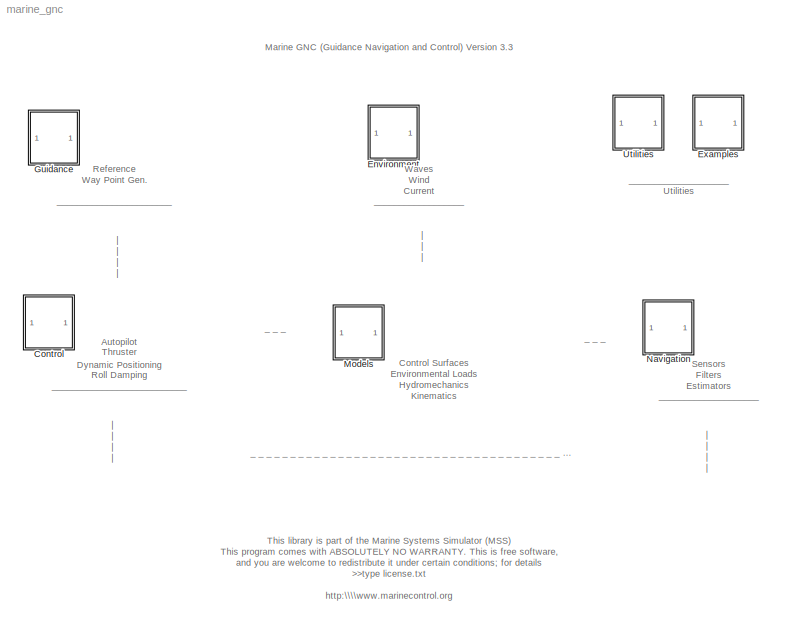
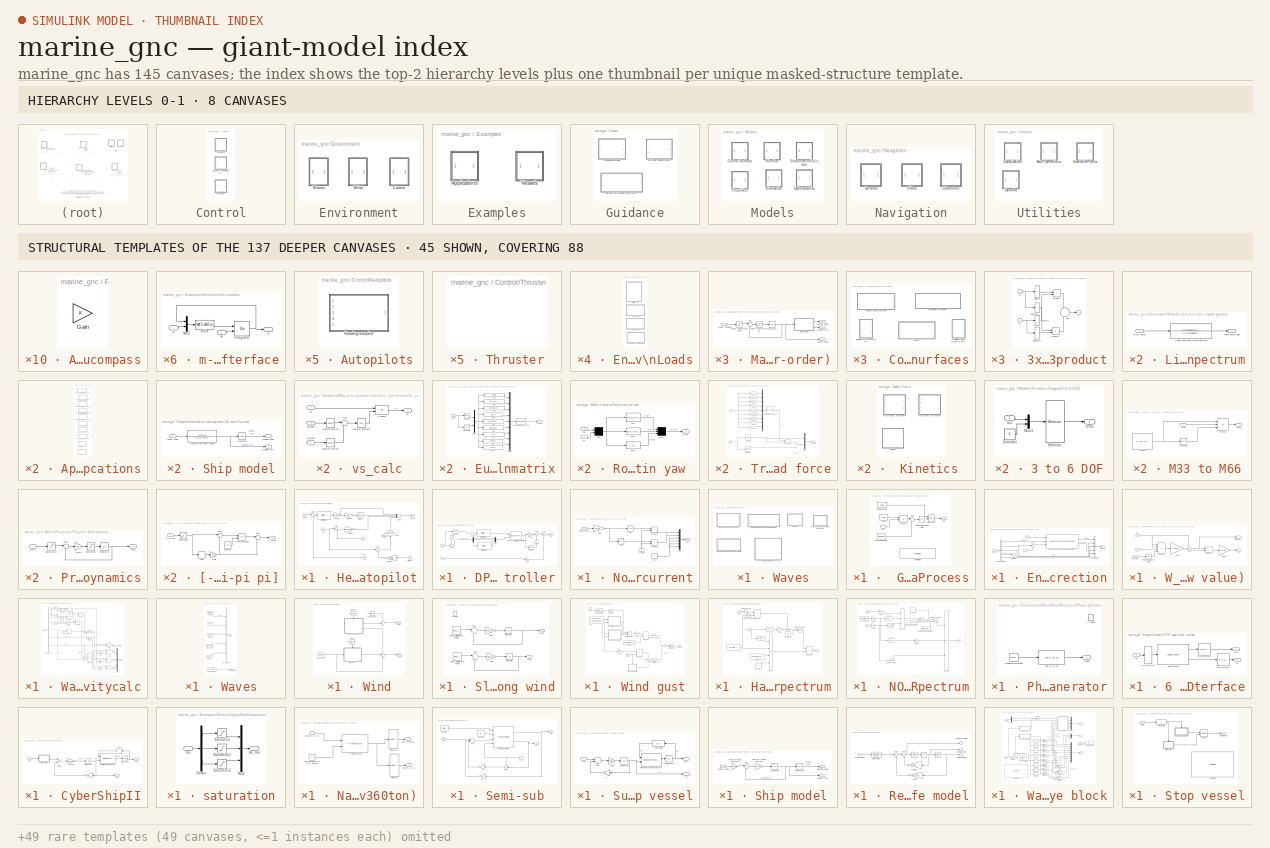
[diagram: thumbnail index - top-2 hierarchy levels (8 canvases) + 45 structural-template representatives of the remaining 137 canvases]
MODEL marine_gnc
KIND library
BLOCK [SubSystem] Control
  FunctionWithSeparateData = off
  MaskHideContents = off
  MinAlgLoopOccurrences = off
  Opaque = off
  Ports = []
  PropExecContextOutsideSubsystem = off
  RTWSystemCode = Auto
  RequestExecContextInheritance = off
  SID = 1
BLOCK [SubSystem] Control/Autopilots
  FunctionWithSeparateData = off
  MaskHideContents = off
  MinAlgLoopOccurrences = off
  Opaque = off
  Ports = []
  PropExecContextOutsideSubsystem = off
  RTWSystemCode = Auto
  RequestExecContextInheritance = off
  SID = 2
BLOCK [SubSystem] Control/Autopilots/Heading autopilot
  FunctionWithSeparateData = off
  MaskCallbackString = ||||
  MaskDescription = PID Autopilot with reference feedforward.
  MaskDisplay = disp('PID\\n tracking\\n controller')\n
  MaskEnableString = on,on,on,on,on
  MaskHelp = INPUTS: (1)  desired position, (2) desired velocity, (3) desired acceleration, (4) heading angle, (5) heading rate: OUTPUTS: (1) rudder angle
  MaskHideContents = off
  MaskIconFrame = on
  MaskIconOpaque = off
  MaskIconRotate = none
  MaskIconUnits = autoscale
  MaskPortRotate = default
  MaskPromptString = Nomoto Time Constant: T|Nomoto gain: K|Proportional Gain: Kp|Derivative Time: Td|Integral Time: Ti
  MaskStyleString = edit,edit,edit,edit,edit
  MaskToolTipString = on,on,on,on,on
  MaskTunableValueString = on,on,on,on,on
  MaskType = Course Autopilot
  MaskValueString = 1|1|1|0|0
  MaskVariables = T_nomoto=@1;K_nomoto=@2;Kp=@3;Td=@4;Ti=@5;
  MaskVisibilityString = on,on,on,on,on
  MinAlgLoopOccurrences = off
  Opaque = off
  Ports = [5, 1]
  PropExecContextOutsideSubsystem = off
  RTWSystemCode = Auto
  RequestExecContextInheritance = off
  SID = 3
BLOCK [Gain] Control/Autopilots/Heading autopilot/D-action
  Gain = Kp*Td
  OutDataType = sfix(16)
  OutScaling = 2^0
  ParameterDataType = sfix(16)
  ParameterScaling = 2^0
  SID = 9
BLOCK [Gain] Control/Autopilots/Heading autopilot/D-action1
  Gain = T_nomoto
  OutDataType = sfix(16)
  OutScaling = 2^0
  ParameterDataType = sfix(16)
  ParameterScaling = 2^0
  SID = 10
BLOCK [Gain] Control/Autopilots/Heading autopilot/D-action2
  Gain = 1/K_nomoto
  OutDataType = sfix(16)
  OutScaling = 2^0
  ParameterDataType = sfix(16)
  ParameterScaling = 2^0
  SID = 11
BLOCK [Gain] Control/Autopilots/Heading autopilot/I-action  \n
  Gain = 1/Ti
  OutDataType = sfix(16)
  OutScaling = 2^0
  ParameterDataType = sfix(16)
  ParameterScaling = 2^0
  SID = 12
BLOCK [TransferFcn] Control/Autopilots/Heading autopilot/Integral
  Denominator = [1 0]
  SID = 13
BLOCK [Gain] Control/Autopilots/Heading autopilot/P-action
  Gain = Kp
  OutDataType = sfix(16)
  OutScaling = 2^0
  ParameterDataType = sfix(16)
  ParameterScaling = 2^0
  SID = 14
BLOCK [Sum] Control/Autopilots/Heading autopilot/Sum1
  Inputs = ++++
  OutDataType = sfix(16)
  OutScaling = 2^0
  Ports = [4, 1]
  SID = 15
BLOCK [Sum] Control/Autopilots/Heading autopilot/Sum2
  IconShape = round
  Inputs = |+-
  OutDataType = sfix(16)
  OutScaling = 2^0
  Ports = [2, 1]
  SID = 16
BLOCK [Sum] Control/Autopilots/Heading autopilot/Sum3
  IconShape = round
  Inputs = |+-
  OutDataType = sfix(16)
  OutScaling = 2^0
  Ports = [2, 1]
  SID = 17
BLOCK [Sum] Control/Autopilots/Heading autopilot/Sum4
  IconShape = round
  Inputs = |++
  OutDataType = sfix(16)
  OutScaling = 2^0
  Ports = [2, 1]
  SID = 18
BLOCK [Reference] Control/Autopilots/Heading autopilot/[-inf inf] to [-pi pi]  REF=marine_gnc/Utilities/Math Operations/[-inf inf] to [-pi pi]  (lib defined in mdl_10d96c221ba8, mdl_45f1105420c6)
  Ports = [1, 1]
  SID = 19
  ShowPortLabels = on
  SourceBlock = marine_gnc/Utilities/Math Operations/[-inf inf] to [-pi pi]
  SourceType = [-inf inf] to [-pi pi]
BLOCK [Inport] Control/Autopilots/Heading autopilot/d//dt(r_d)
  IconDisplay = Port number
  OutDataType = sfix(16)
  OutScaling = 2^0
  Port = 3
  SID = 6
BLOCK [Inport] Control/Autopilots/Heading autopilot/psi
  IconDisplay = Port number
  OutDataType = sfix(16)
  OutScaling = 2^0
  Port = 4
  SID = 7
BLOCK [Inport] Control/Autopilots/Heading autopilot/psi_d
  IconDisplay = Port number
  OutDataType = sfix(16)
  OutScaling = 2^0
  SID = 4
BLOCK [Inport] Control/Autopilots/Heading autopilot/r
  IconDisplay = Port number
  OutDataType = sfix(16)
  OutScaling = 2^0
  Port = 5
  SID = 8
BLOCK [Inport] Control/Autopilots/Heading autopilot/r_d
  IconDisplay = Port number
  OutDataType = sfix(16)
  OutScaling = 2^0
  Port = 2
  SID = 5
BLOCK [Outport] Control/Autopilots/Heading autopilot/tau_N
  IconDisplay = Port number
  InitialOutput = 0
  OutDataType = sfix(16)
  OutScaling = 2^0
  SID = 20
BLOCK [SubSystem] Control/Dynamic \nPositioning 
  FunctionWithSeparateData = off
  MaskHideContents = off
  MinAlgLoopOccurrences = off
  Opaque = off
  Ports = []
  PropExecContextOutsideSubsystem = off
  RTWSystemCode = Auto
  RequestExecContextInheritance = off
  SID = 21
BLOCK [SubSystem] Control/Dynamic \nPositioning /DP controller
  FunctionWithSeparateData = off
  MaskCallbackString = ||
  MaskDescription = Nonlinear PID controller for Set-Point Reulation in Surge, Sway and Yaw
  MaskDisplay = disp('Nonlinear PID\\n set-point controller')
  MaskEnableString = on,on,on
  MaskHelp = The nonlinear  PID controller uses the rotation matrix in yaw for proper scaling of the surge, sway and yaw gains as a function of the yaw angle. \nINPUTS: (1) eta_ref, (2) eta, (3) nu. OUPUTS: (1) tau.
  MaskHideContents = off
  MaskIconFrame = on
  MaskIconOpaque = off
  MaskIconRotate = none
  MaskIconUnits = autoscale
  MaskPortRotate = default
  MaskPromptString = Proportional Gain Matrix: Kp|Derivative Gain Matrix: Kd|Integral Gain Matrix: Ki
  MaskStyleString = edit,edit,edit
  MaskToolTipString = on,on,on
  MaskTunableValueString = on,on,on
  MaskType = Nonlinear DP Controller
  MaskValueString = diag([1 1 1])|diag([1 1 1])|diag([1 1 1])
  MaskVariables = Kp=@1;Kd=@2;Ki=@3;
  MaskVisibilityString = on,on,on
  MinAlgLoopOccurrences = off
  Opaque = off
  Ports = [3, 1]
  PropExecContextOutsideSubsystem = off
  RTWSystemCode = Auto
  RequestExecContextInheritance = off
  SID = 22
BLOCK [Demux] Control/Dynamic \nPositioning /DP controller/Demux
  DisplayOption = bar
  Outputs = 3
  Ports = [1, 3]
  SID = 26
BLOCK [Integrator] Control/Dynamic \nPositioning /DP controller/Integrator
  Ports = [1, 1]
  SID = 27
BLOCK [Gain] Control/Dynamic \nPositioning /DP controller/Kd
  Gain = Kd
  Multiplication = Matrix(K*u)
  OutDataType = sfix(16)
  OutScaling = 2^0
  ParameterDataType = sfix(16)
  ParameterScaling = 2^0
  SID = 28
BLOCK [Gain] Control/Dynamic \nPositioning /DP controller/Ki
  Gain = Ki
  Multiplication = Matrix(K*u)
  OutDataType = sfix(16)
  OutScaling = 2^0
  ParameterDataType = sfix(16)
  ParameterScaling = 2^0
  SID = 29
BLOCK [Gain] Control/Dynamic \nPositioning /DP controller/Kp
  Gain = Kp
  Multiplication = Matrix(K*u)
  OutDataType = sfix(16)
  OutScaling = 2^0
  ParameterDataType = sfix(16)
  ParameterScaling = 2^0
  SID = 30
BLOCK [Mux] Control/Dynamic \nPositioning /DP controller/Mux
  DisplayOption = bar
  Inputs = 3
  Ports = [3, 1]
  SID = 31
BLOCK [Sum] Control/Dynamic \nPositioning /DP controller/Sum1
  IconShape = round
  Inputs = |+-
  OutDataType = sfix(16)
  OutScaling = 2^0
  Ports = [2, 1]
  SID = 32
BLOCK [Sum] Control/Dynamic \nPositioning /DP controller/Sum2
  IconShape = round
  Inputs = +-|
  OutDataType = sfix(16)
  OutScaling = 2^0
  Ports = [2, 1]
  SID = 33
BLOCK [Sum] Control/Dynamic \nPositioning /DP controller/Sum3
  IconShape = round
  Inputs = |++
  OutDataType = sfix(16)
  OutScaling = 2^0
  Ports = [2, 1]
  SID = 34
BLOCK [Reference] Control/Dynamic \nPositioning /DP controller/Transposed rotation\n matrix in yaw1  REF=marine_gnc/Models/ Kinematics/Transposed rotation\n matrix in yaw  (lib defined in mdl_10d96c221ba8, mdl_45f1105420c6)
  Ports = [2, 1]
  SID = 35
  ShowPortLabels = on
  SourceBlock = marine_gnc/Models/ Kinematics/Transposed rotation\n matrix in yaw
  SourceType = Unknown
BLOCK [Reference] Control/Dynamic \nPositioning /DP controller/[-inf inf] to [-pi pi]  REF=marine_gnc/Utilities/Math Operations/[-inf inf] to [-pi pi]  (lib defined in mdl_10d96c221ba8, mdl_45f1105420c6)
  Ports = [1, 1]
  SID = 36
  ShowPortLabels = on
  SourceBlock = marine_gnc/Utilities/Math Operations/[-inf inf] to [-pi pi]
  SourceType = [-inf inf] to [-pi pi]
BLOCK [Reference] Control/Dynamic \nPositioning /DP controller/[-inf inf] to [-pi pi]1  REF=marine_gnc/Utilities/Math Operations/[-inf inf] to [-pi pi]  (lib defined in mdl_10d96c221ba8, mdl_45f1105420c6)
  Ports = [1, 1]
  SID = 37
  ShowPortLabels = on
  SourceBlock = marine_gnc/Utilities/Math Operations/[-inf inf] to [-pi pi]
  SourceType = [-inf inf] to [-pi pi]
BLOCK [Inport] Control/Dynamic \nPositioning /DP controller/eta
  IconDisplay = Port number
  OutDataType = sfix(16)
  OutScaling = 2^0
  Port = 2
  SID = 24
BLOCK [Inport] Control/Dynamic \nPositioning /DP controller/eta_ref
  IconDisplay = Port number
  OutDataType = sfix(16)
  OutScaling = 2^0
  SID = 23
BLOCK [Inport] Control/Dynamic \nPositioning /DP controller/nu
  IconDisplay = Port number
  OutDataType = sfix(16)
  OutScaling = 2^0
  Port = 3
  SID = 25
BLOCK [Outport] Control/Dynamic \nPositioning /DP controller/tau
  IconDisplay = Port number
  InitialOutput = 0
  OutDataType = sfix(16)
  OutScaling = 2^0
  SID = 39
BLOCK [Fcn] Control/Dynamic \nPositioning /DP controller/yaw angle
  Expr = u(3)
  SID = 38
BLOCK [SubSystem] Control/Thruster
  FunctionWithSeparateData = off
  MaskHideContents = off
  MinAlgLoopOccurrences = off
  Opaque = off
  Ports = []
  PropExecContextOutsideSubsystem = off
  RTWSystemCode = Auto
  RequestExecContextInheritance = off
  SID = 40
BLOCK [SubSystem] Environment
  FunctionWithSeparateData = off
  MaskHideContents = off
  MinAlgLoopOccurrences = off
  Opaque = off
  Ports = []
  PropExecContextOutsideSubsystem = off
  RTWSystemCode = Auto
  RequestExecContextInheritance = off
  SID = 41
BLOCK [SubSystem] Environment/Current
  FunctionWithSeparateData = off
  MaskHideContents = off
  MinAlgLoopOccurrences = off
  Opaque = off
  Ports = []
  PropExecContextOutsideSubsystem = off
  RTWSystemCode = Auto
  RequestExecContextInheritance = off
  SID = 42
BLOCK [SubSystem] Environment/Current/North-East current
  FunctionWithSeparateData = off
  MaskHideContents = off
  MinAlgLoopOccurrences = off
  Opaque = off
  Ports = [2, 1]
  PropExecContextOutsideSubsystem = off
  RTWSystemCode = Auto
  RequestExecContextInheritance = off
  SID = 43
BLOCK [Gain] Environment/Current/North-East current/Gain
  Gain = pi/180
  OutDataType = sfix(16)
  OutDataTypeMode = Inherit via internal rule
  OutDataTypeStr = Inherit: Inherit via internal rule
  OutScaling = 2^0
  ParamDataTypeStr = Inherit: Inherit via internal rule
  ParameterDataType = sfix(16)
  ParameterDataTypeMode = Inherit via internal rule
  ParameterScaling = 2^0
  SID = 46
  SaturateOnIntegerOverflow = off
BLOCK [Mux] Environment/Current/North-East current/Mux
  DisplayOption = bar
  Inputs = 6
  Ports = [6, 1]
  SID = 47
BLOCK [Product] Environment/Current/North-East current/Product
  InputSameDT = off
  OutDataType = sfix(16)
  OutDataTypeMode = Inherit via internal rule
  OutDataTypeStr = Inherit: Inherit via internal rule
  OutScaling = 2^0
  Ports = [2, 1]
  SID = 48
  SaturateOnIntegerOverflow = off
BLOCK [Product] Environment/Current/North-East current/Product1
  InputSameDT = off
  OutDataType = sfix(16)
  OutDataTypeMode = Inherit via internal rule
  OutDataTypeStr = Inherit: Inherit via internal rule
  OutScaling = 2^0
  Ports = [2, 1]
  SID = 49
  SaturateOnIntegerOverflow = off
BLOCK [Inport] Environment/Current/North-East current/V_c (m//s)
  IconDisplay = Port number
  OutDataType = sfix(16)
  OutScaling = 2^0
  Port = 2
  SID = 45
BLOCK [Inport] Environment/Current/North-East current/beta_c (deg)
  IconDisplay = Port number
  OutDataType = sfix(16)
  OutScaling = 2^0
  SID = 44
BLOCK [Trigonometry] Environment/Current/North-East current/cos
  Operator = cos
  Ports = [1, 1]
  SID = 50
BLOCK [Outport] Environment/Current/North-East current/nu_c
  IconDisplay = Port number
  OutDataType = sfix(16)
  OutScaling = 2^0
  SID = 53
BLOCK [Trigonometry] Environment/Current/North-East current/sin
  Ports = [1, 1]
  SID = 51
BLOCK [Constant] Environment/Current/North-East current/zero
  OutDataType = sfix(16)
  OutScaling = 2^0
  SID = 52
  Value = 0
BLOCK [SubSystem] Environment/Waves
  FunctionWithSeparateData = off
  MaskHideContents = off
  MinAlgLoopOccurrences = off
  Opaque = off
  Ports = []
  PropExecContextOutsideSubsystem = off
  RTWSystemCode = Auto
  RequestExecContextInheritance = off
  SID = 54
BLOCK [SubSystem] Environment/Waves/ Gaussian Random Process
  AncestorBlock = dcmv/Environmental\nDisturbances/Fourier representation of \na Gaussian Random Process
  FunctionWithSeparateData = off
  MaskCallbackString = ||
  MaskDescription = y = Sum_i  Ai *cos(w_i*t+ Phi_i)\nInput:\n t --Simulation time from a clock block\nOutput:\n y--Realization of the random process y(t) (time series)\nDependency: None\n\nCopyright (C), NTNU  2004 \nAuthor: Tristan Perez \n
  MaskDisplay = \nplot([-ones(1,17)\n	0.6333\n     -1.5315\n   -0.5146\n    0.5573\n    1.2590\n    1.8899\n    1.5451\n   -0.1055\n   -1.0617\n   -1.3645\n   -1.3826\n   -1.2742\n    0.3850\n    1.0225\n    1.1108\n    1.1270\n    0.3762\n   -0.6570\n   -1.1216\n   -0.2885\n    0.9176\n    0.7826\n   -0.3229\n   -1.2406\n   -0.9331\n   -0.2407\n    0.4134\n    0.8612\n    0.3025\n    0.2761\n    0.3856\n    0.36...<+377ch>
  MaskEnableString = on,on,on
  MaskHelp = web(['file:///' which('Help_Gaussian_Random_Process.htm')]);\n
  MaskHideContents = off
  MaskIconFrame = on
  MaskIconOpaque = on
  MaskIconRotate = none
  MaskIconUnits = autoscale
  MaskPortRotate = default
  MaskPromptString = Vector of Amplitudes [A1;A2;...]:|Vector of frequencies [W1;W2;...]  [rad/sec]:|Vector of random phases [P1;P2;...]  [rad]:
  MaskStyleString = edit,edit,edit
  MaskToolTipString = on,on,on
  MaskTunableValueString = on,on,on
  MaskType = Gaussian Random Process as a Sum of Sinusoids
  MaskValueString = ||
  MaskVariables = areg=@1;freq=@2;phases=@3;
  MaskVisibilityString = on,on,on
  MinAlgLoopOccurrences = off
  Opaque = off
  Ports = [1, 1]
  PropExecContextOutsideSubsystem = off
  RTWSystemCode = Auto
  RequestExecContextInheritance = off
  SID = 55
BLOCK [Constant] Environment/Waves/ Gaussian Random Process/Amp Reg Comp. 
  OutDataType = sfix(16)
  OutScaling = 2^0
  SID = 2
  Value = areg
  VectorParams1D = off
BLOCK [Reference] Environment/Waves/ Gaussian Random Process/Dot Product  REF=simulink/Math\nOperations/Dot Product
  DoSatur = off
  InputSameDT = on
  LockScale = off
  OutDataType = sfix(16)
  OutScaling = 2^-10
  OutputDataTypeScalingMode = Inherit via internal rule
  Ports = [2, 1]
  RndMeth = Floor
  SID = 3
  SourceBlock = simulink/Math\nOperations/Dot Product
  SourceType = Dot Product
BLOCK [Constant] Environment/Waves/ Gaussian Random Process/Freq1
  OutDataType = sfix(16)
  OutScaling = 2^0
  SID = 4
  Value = freq
  VectorParams1D = off
BLOCK [Inport] Environment/Waves/ Gaussian Random Process/In1
  IconDisplay = Port number
  OutDataType = sfix(16)
  OutScaling = 2^0
  SID = 1
BLOCK [Reference] Environment/Waves/ Gaussian Random Process/Model Info1  REF=simulink/Model-Wide\nUtilities/Model Info
  BlockCM = none
  DisplayStringWithTags = Fourier Representation of a Gaussian Random Process\n(C) <copyright redacted>\n
  Frame = on
  HorizontalTextAlignment = Center
  InitialBlockCM = None
  LeftAlignmentValue = 0.5
  MaskDisplayString = Fourier Representation of a Gaussian Random Process\\n(C) <copyright redacted>\n
  Ports = []
  SID = 5
  ShowPortLabels = on
  SourceBlock = simulink/Model-Wide\nUtilities/Model Info
  SourceBlockDiagram = marine_gnc
  SourceType = CMBlock
  TagMaxNumber = 20
BLOCK [Outport] Environment/Waves/ Gaussian Random Process/Out
  IconDisplay = Port number
  OutDataType = sfix(16)
  OutScaling = 2^0
  SID = 10
BLOCK [Product] Environment/Waves/ Gaussian Random Process/Product
  InputSameDT = off
  OutDataType = sfix(16)
  OutScaling = 2^0
  Ports = [2, 1]
  RndMeth = Floor
  SID = 6
BLOCK [Constant] Environment/Waves/ Gaussian Random Process/Random Phases1
  OutDataType = sfix(16)
  OutScaling = 2^0
  SID = 7
  Value = phases
  VectorParams1D = off
BLOCK [Sum] Environment/Waves/ Gaussian Random Process/Sum
  IconShape = round
  InputSameDT = off
  Inputs = |++
  OutDataType = sfix(16)
  OutDataTypeMode = Inherit via internal rule
  OutDataTypeStr = Inherit: Inherit via internal rule
  OutScaling = 2^0
  Ports = [2, 1]
  SID = 8
BLOCK [Trigonometry] Environment/Waves/ Gaussian Random Process/Trigonometric\nFunction
  Operator = cos
  Ports = [1, 1]
  SID = 9
BLOCK [SubSystem] Environment/Waves/Encounter frequency\ncorrection
  FunctionWithSeparateData = off
  MaskDescription = This block transforms the frequencies and wave numbers in the Waves bus generated by the MSS Waves block to encounter frequencies and encounter wave numbers using the transformation:\n\nOmega_e = Omega - U*Omega^2*cos(Psi_r)/g \n\nwhere U is the vessel forward speed, Psi_r is the angle of the waves relative to the vessel.\n\nInputs:\nWaves - Bus of harmonic wave components generated by the MSS Wav...<+423ch>
  MaskHideContents = off
  MaskIconFrame = on
  MaskIconOpaque = on
  MaskIconRotate = none
  MaskIconUnits = autoscale
  MaskPortRotate = default
  MaskType = Encounter frequency correction
  MinAlgLoopOccurrences = off
  Opaque = off
  Ports = [3, 1]
  PropExecContextOutsideSubsystem = off
  RTWSystemCode = Auto
  RequestExecContextInheritance = off
  SID = 56
BLOCK [BusCreator] Environment/Waves/Encounter frequency\ncorrection/Bus\nCreator
  DisplayOption = bar
  Inputs = 5
  Ports = [5, 1]
  SID = 60
BLOCK [BusSelector] Environment/Waves/Encounter frequency\ncorrection/Bus\nSelector
  OutputSignals = Omega,Psi,Zeta_a,Wavenum,Phase
  Ports = [1, 5]
  SID = 61
BLOCK [Inport] Environment/Waves/Encounter frequency\ncorrection/Psi
  IconDisplay = Port number
  OutDataType = sfix(16)
  OutScaling = 2^0
  Port = 3
  SID = 59
BLOCK [Sum] Environment/Waves/Encounter frequency\ncorrection/Sum
  IconShape = round
  InputSameDT = off
  Inputs = |+-
  OutDataType = sfix(16)
  OutDataTypeMode = Inherit via internal rule
  OutDataTypeStr = Inherit: Inherit via internal rule
  OutScaling = 2^0
  Ports = [2, 1]
  SID = 62
  SaturateOnIntegerOverflow = off
BLOCK [Terminator] Environment/Waves/Encounter frequency\ncorrection/Terminator
  SID = 63
BLOCK [Inport] Environment/Waves/Encounter frequency\ncorrection/U
  IconDisplay = Port number
  OutDataType = sfix(16)
  OutScaling = 2^0
  Port = 2
  SID = 58
BLOCK [Reference] Environment/Waves/Encounter frequency\ncorrection/W_wave 2 W_enc\n(no absolute value)  REF=marine_gnc/Environment/Waves/W_wave 2 W_enc\n(no absolute value)  (lib defined in mdl_10d96c221ba8, mdl_45f1105420c6)
  Ports = [3, 2]
  SID = 64
  ShowPortLabels = on
  SourceBlock = marine_gnc/Environment/Waves/W_wave 2 W_enc\n(no absolute value)
  SourceType = Wave frequency to Encounter Frequency
BLOCK [Inport] Environment/Waves/Encounter frequency\ncorrection/Waves
  IconDisplay = Port number
  OutDataType = sfix(16)
  OutScaling = 2^0
  SID = 57
BLOCK [Outport] Environment/Waves/Encounter frequency\ncorrection/Waves 
  IconDisplay = Port number
  OutDataType = sfix(16)
  OutScaling = 2^0
  SID = 65
BLOCK [SubSystem] Environment/Waves/Linear 2nd-order \nwave spectrum
  FunctionWithSeparateData = off
  MaskCallbackString = ||
  MaskDisplay = plot(w,4*w_0*sigma^2.*w.^2./((w_0^2-w.^2).^2+4*(lambda*w_0.*w).^2))\nport_label('input', 1, 'w')\nport_label('output', 1, 'y')\n
  MaskEnableString = on,on,on
  MaskHideContents = off
  MaskIconFrame = on
  MaskIconOpaque = on
  MaskIconRotate = none
  MaskIconUnits = autoscale
  MaskInitialization = w = 0.01:0.1:3*w_0;
  MaskPortRotate = default
  MaskPromptString = Wave spectrum gain: sigma  (m)|Wave spectrum peak frequency: w_0  (rad/s)|Rrelative damping ratio: lambda
  MaskStyleString = edit,edit,edit
  MaskToolTipString = on,on,on
  MaskTunableValueString = on,on,on
  MaskValueString = 1|1|0.1
  MaskVariables = sigma=@1;w_0=@2;lambda=@3;
  MaskVisibilityString = on,on,on
  MinAlgLoopOccurrences = off
  Opaque = off
  Ports = [1, 1]
  PropExecContextOutsideSubsystem = off
  RTWSystemCode = Auto
  RequestExecContextInheritance = off
  SID = 66
BLOCK [TransferFcn] Environment/Waves/Linear 2nd-order \nwave spectrum/Linear 2nd-order wave spectrum
  Denominator = [1 2*lambda*w_0  w_0^2]
  Numerator = [2*lambda*w_0*sigma 0]
  SID = 68
BLOCK [Outport] Environment/Waves/Linear 2nd-order \nwave spectrum/wave amplitude
  IconDisplay = Port number
  OutDataType = sfix(16)
  OutScaling = 2^0
  SID = 69
BLOCK [Inport] Environment/Waves/Linear 2nd-order \nwave spectrum/white noise
  IconDisplay = Port number
  OutDataType = sfix(16)
  OutScaling = 2^0
  SID = 67
BLOCK [SubSystem] Environment/Waves/W_wave 2 W_enc\n(no absolute value)
  FunctionWithSeparateData = off
  MaskDescription = This block implements the transformation:   \n\nWe = W -U W^2 cos(Enc Aang) /g \n\nInputs:\nU---forward speed of the reference frame (m/sec) (sually the speed of the vessel)\nW--vector of wave frequencies (rad/sec)\nEnc. Angle-- (rad) convention: 0-following seas; pi/2-port beam seas; pi-head seas\n\nOutputs:\nWe--vector of encounter frequencies (rad/sec).\nKe-- vector of encounter wave numbers (K...<+89ch>
  MaskHelp = \n<p>This block implements the transformation: <br>\n<br>\nWe = W -U W^2 cos(Enc Ang) /g <br>\n<br>\nInputs:<br>\nU---forward speed of the reference frame (m/sec) (Usually the speed of the \nvessel)<br>\nW--vector of wave frequencies (rad/sec)<br>\nEnc. Angle-- (rad) convention: 0-following seas; pi/2-port beam seas; pi-head \nseas<br>\n<br>\nOutputs:<br>\nWe--vector of encounter frequencies (rad/...<+150ch>
  MaskHideContents = off
  MaskIconFrame = on
  MaskIconOpaque = on
  MaskIconRotate = none
  MaskIconUnits = autoscale
  MaskPortRotate = default
  MaskType = Wave frequency to Encounter Frequency
  MinAlgLoopOccurrences = off
  Opaque = off
  Ports = [3, 2]
  PropExecContextOutsideSubsystem = off
  RTWSystemCode = Auto
  RequestExecContextInheritance = off
  SID = 70
BLOCK [Inport] Environment/Waves/W_wave 2 W_enc\n(no absolute value)/Enc. Angle 
  IconDisplay = Port number
  OutDataType = sfix(16)
  OutScaling = 2^0
  Port = 3
  SID = 73
BLOCK [Gain] Environment/Waves/W_wave 2 W_enc\n(no absolute value)/Gain1
  Gain = 1/9.81
  OutDataType = sfix(16)
  OutDataTypeMode = Inherit via internal rule
  OutDataTypeStr = Inherit: Inherit via internal rule
  OutScaling = 2^0
  ParamDataTypeStr = Inherit: Inherit via internal rule
  ParameterDataType = sfix(16)
  ParameterDataTypeMode = Inherit via internal rule
  ParameterScaling = 2^0
  SID = 74
  SaturateOnIntegerOverflow = off
BLOCK [Gain] Environment/Waves/W_wave 2 W_enc\n(no absolute value)/Gain2
  Gain = 1/9.81
  OutDataType = sfix(16)
  OutDataTypeMode = Inherit via internal rule
  OutDataTypeStr = Inherit: Inherit via internal rule
  OutScaling = 2^0
  ParamDataTypeStr = Inherit: Inherit via internal rule
  ParameterDataType = sfix(16)
  ParameterDataTypeMode = Inherit via internal rule
  ParameterScaling = 2^0
  SID = 75
  SaturateOnIntegerOverflow = off
BLOCK [Outport] Environment/Waves/W_wave 2 W_enc\n(no absolute value)/Ke
  IconDisplay = Port number
  OutDataType = sfix(16)
  OutScaling = 2^0
  Port = 2
  SID = 81
BLOCK [Product] Environment/Waves/W_wave 2 W_enc\n(no absolute value)/Product4
  InputSameDT = off
  Inputs = 4
  OutDataType = sfix(16)
  OutScaling = 2^0
  Ports = [4, 1]
  RndMeth = Floor
  SID = 76
BLOCK [Product] Environment/Waves/W_wave 2 W_enc\n(no absolute value)/Product5
  InputSameDT = off
  OutDataType = sfix(16)
  OutScaling = 2^0
  Ports = [2, 1]
  RndMeth = Floor
  SID = 77
BLOCK [Sum] Environment/Waves/W_wave 2 W_enc\n(no absolute value)/Sum3
  IconShape = round
  InputSameDT = off
  Inputs = +-|
  OutDataType = sfix(16)
  OutDataTypeMode = Inherit via internal rule
  OutDataTypeStr = Inherit: Inherit via internal rule
  OutScaling = 2^0
  Ports = [2, 1]
  SID = 78
BLOCK [Trigonometry] Environment/Waves/W_wave 2 W_enc\n(no absolute value)/Trigonometric\nFunction
  Operator = cos
  Ports = [1, 1]
  SID = 79
BLOCK [Inport] Environment/Waves/W_wave 2 W_enc\n(no absolute value)/U
  IconDisplay = Port number
  OutDataType = sfix(16)
  OutScaling = 2^0
  SID = 71
BLOCK [Inport] Environment/Waves/W_wave 2 W_enc\n(no absolute value)/W 
  IconDisplay = Port number
  OutDataType = sfix(16)
  OutScaling = 2^0
  Port = 2
  SID = 72
BLOCK [Outport] Environment/Waves/W_wave 2 W_enc\n(no absolute value)/We (rad//sec)
  IconDisplay = Port number
  OutDataType = sfix(16)
  OutScaling = 2^0
  SID = 80
BLOCK [SubSystem] Environment/Waves/Wave velocitycalc
  FunctionWithSeparateData = off
  MaskDescription = Caclulates the wave-induced water velocity in NED coordinates and surface elevation Zeta at the point [x y z] in NED. The Waves bus generated by the Waves module is needed as input.
  MaskHideContents = off
  MaskIconFrame = on
  MaskIconOpaque = on
  MaskIconRotate = none
  MaskIconUnits = autoscale
  MaskPortRotate = default
  MaskType = Wave velocitycalc
  MinAlgLoopOccurrences = off
  Opaque = off
  Ports = [2, 2]
  PropExecContextOutsideSubsystem = off
  RTWSystemCode = Auto
  RequestExecContextInheritance = off
  SID = 82
BLOCK [BusSelector] Environment/Waves/Wave velocitycalc/Bus\nSelector
  OutputSignals = Psi,Wavenum,Omega,Phase,Zeta_a
  Ports = [1, 5]
  SID = 85
BLOCK [Clock] Environment/Waves/Wave velocitycalc/Clock
  Decimation = 10
  SID = 86
BLOCK [Gain] Environment/Waves/Wave velocitycalc/Gain
  Gain = -1
  OutDataType = sfix(16)
  OutScaling = 2^0
  ParameterDataType = sfix(16)
  ParameterScaling = 2^0
  SID = 87
BLOCK [Gain] Environment/Waves/Wave velocitycalc/Gain1
  Gain = -1
  OutDataType = sfix(16)
  OutScaling = 2^0
  ParameterDataType = sfix(16)
  ParameterScaling = 2^0
  SID = 88
BLOCK [Mux] Environment/Waves/Wave velocitycalc/Mux
  DisplayOption = bar
  Inputs = 3
  Ports = [3, 1]
  SID = 89
BLOCK [Product] Environment/Waves/Wave velocitycalc/Product1
  InputSameDT = off
  Inputs = **
  OutDataType = sfix(16)
  OutScaling = 2^0
  Ports = [2, 1]
  RndMeth = Floor
  SID = 90
BLOCK [Product] Environment/Waves/Wave velocitycalc/Product2
  InputSameDT = off
  Inputs = **
  OutDataType = sfix(16)
  OutScaling = 2^0
  Ports = [2, 1]
  RndMeth = Floor
  SID = 91
BLOCK [Product] Environment/Waves/Wave velocitycalc/Product3
  InputSameDT = off
  Inputs = **
  OutDataType = sfix(16)
  OutScaling = 2^0
  Ports = [2, 1]
  RndMeth = Floor
  SID = 92
BLOCK [Product] Environment/Waves/Wave velocitycalc/Product4
  InputSameDT = off
  Inputs = 3
  OutDataType = sfix(16)
  OutScaling = 2^0
  Ports = [3, 1]
  RndMeth = Floor
  SID = 93
BLOCK [Product] Environment/Waves/Wave velocitycalc/Product6
  InputSameDT = off
  Inputs = **
  OutDataType = sfix(16)
  OutScaling = 2^0
  Ports = [2, 1]
  RndMeth = Floor
  SID = 94
BLOCK [Product] Environment/Waves/Wave velocitycalc/Product7
  InputSameDT = off
  Inputs = **
  OutDataType = sfix(16)
  OutScaling = 2^0
  Ports = [2, 1]
  RndMeth = Floor
  SID = 95
BLOCK [Selector] Environment/Waves/Wave velocitycalc/Selector
  IndexOptions = Index vector (dialog)
  Indices = 1
  InputPortWidth = 3
  OutputSizes = 1
  Ports = [1, 1]
  SID = 96
BLOCK [Selector] Environment/Waves/Wave velocitycalc/Selector1
  IndexOptions = Index vector (dialog)
  Indices = 2
  InputPortWidth = 3
  OutputSizes = 1
  Ports = [1, 1]
  SID = 97
BLOCK [Selector] Environment/Waves/Wave velocitycalc/Selector2
  IndexOptions = Index vector (dialog)
  Indices = 3
  InputPortWidth = 3
  OutputSizes = 1
  Ports = [1, 1]
  SID = 98
BLOCK [Sum] Environment/Waves/Wave velocitycalc/Sum
  IconShape = round
  InputSameDT = off
  Inputs = -++
  OutDataType = sfix(16)
  OutDataTypeMode = Inherit via internal rule
  OutDataTypeStr = Inherit: Inherit via internal rule
  OutScaling = 2^0
  Ports = [3, 1]
  SID = 99
BLOCK [Sum] Environment/Waves/Wave velocitycalc/Sum1
  IconShape = round
  InputSameDT = off
  Inputs = 1
  OutDataType = sfix(16)
  OutDataTypeMode = Inherit via internal rule
  OutDataTypeStr = Inherit: Inherit via internal rule
  OutScaling = 2^0
  Ports = [1, 1]
  SID = 100
BLOCK [Sum] Environment/Waves/Wave velocitycalc/Sum2
  IconShape = round
  InputSameDT = off
  Inputs = 1
  OutDataType = sfix(16)
  OutDataTypeMode = Inherit via internal rule
  OutDataTypeStr = Inherit: Inherit via internal rule
  OutScaling = 2^0
  Ports = [1, 1]
  SID = 101
BLOCK [Sum] Environment/Waves/Wave velocitycalc/Sum3
  IconShape = round
  InputSameDT = off
  Inputs = 1
  OutDataType = sfix(16)
  OutDataTypeMode = Inherit via internal rule
  OutDataTypeStr = Inherit: Inherit via internal rule
  OutScaling = 2^0
  Ports = [1, 1]
  SID = 102
BLOCK [Sum] Environment/Waves/Wave velocitycalc/Sum4
  IconShape = round
  InputSameDT = off
  Inputs = 1
  OutDataType = sfix(16)
  OutDataTypeMode = Inherit via internal rule
  OutDataTypeStr = Inherit: Inherit via internal rule
  OutScaling = 2^0
  Ports = [1, 1]
  SID = 103
BLOCK [Sum] Environment/Waves/Wave velocitycalc/Sum5
  IconShape = round
  InputSameDT = off
  OutDataType = sfix(16)
  OutDataTypeMode = Inherit via internal rule
  OutDataTypeStr = Inherit: Inherit via internal rule
  OutScaling = 2^0
  Ports = [2, 1]
  SID = 104
BLOCK [Outport] Environment/Waves/Wave velocitycalc/V_w NED
  IconDisplay = Port number
  OutDataType = sfix(16)
  OutScaling = 2^0
  Port = 2
  SID = 117
BLOCK [Inport] Environment/Waves/Wave velocitycalc/Waves
  IconDisplay = Port number
  OutDataType = sfix(16)
  OutScaling = 2^0
  Port = 2
  SID = 84
BLOCK [Outport] Environment/Waves/Wave velocitycalc/Zeta
  IconDisplay = Port number
  OutDataType = sfix(16)
  OutScaling = 2^0
  SID = 116
BLOCK [Inport] Environment/Waves/Wave velocitycalc/[x y z] NED
  IconDisplay = Port number
  OutDataType = sfix(16)
  OutScaling = 2^0
  SID = 83
BLOCK [Trigonometry] Environment/Waves/Wave velocitycalc/cos
  Operator = cos
  Ports = [1, 1]
  SID = 105
BLOCK [Trigonometry] Environment/Waves/Wave velocitycalc/cos 
  Operator = cos
  Ports = [1, 1]
  SID = 106
BLOCK [Trigonometry] Environment/Waves/Wave velocitycalc/cos(wt-kx+phase)
  Operator = cos
  Ports = [1, 1]
  SID = 107
BLOCK [Math] Environment/Waves/Wave velocitycalc/e^(kz)
  OutDataType = sfix(16)
  OutScaling = 2^0
  Ports = [1, 1]
  SID = 108
BLOCK [Trigonometry] Environment/Waves/Wave velocitycalc/sin
  Ports = [1, 1]
  SID = 109
BLOCK [Trigonometry] Environment/Waves/Wave velocitycalc/sin 
  Ports = [1, 1]
  SID = 110
BLOCK [Trigonometry] Environment/Waves/Wave velocitycalc/sin(wt-kx+phase)
  Ports = [1, 1]
  SID = 111
BLOCK [Product] Environment/Waves/Wave velocitycalc/u
  InputSameDT = off
  Inputs = ***
  OutDataType = sfix(16)
  OutScaling = 2^0
  Ports = [3, 1]
  RndMeth = Floor
  SID = 112
BLOCK [Product] Environment/Waves/Wave velocitycalc/v
  InputSameDT = off
  Inputs = ***
  OutDataType = sfix(16)
  OutScaling = 2^0
  Ports = [3, 1]
  RndMeth = Floor
  SID = 113
BLOCK [Product] Environment/Waves/Wave velocitycalc/w
  InputSameDT = off
  Inputs = **
  OutDataType = sfix(16)
  OutScaling = 2^0
  Ports = [2, 1]
  RndMeth = Floor
  SID = 114
BLOCK [Product] Environment/Waves/Wave velocitycalc/zeta
  InputSameDT = off
  Inputs = **
  OutDataType = sfix(16)
  OutScaling = 2^0
  Ports = [2, 1]
  RndMeth = Floor
  SID = 115
BLOCK [SubSystem] Environment/Waves/Waves
  FunctionWithSeparateData = off
  MaskCallbackString = Wave_callback;||||||||||||||||||||||
  MaskDescription = Calculate harmonic wave component parameters from a wave spectrum.\n- Input one wave direction in the mask to get long-crested waves.\n- Input zero peak frequency to get an expectation value from north sea statistical data. \n- Input an integer > 1 for energylim to set the number of wave components fixed to nwaves = energylim.\n\nCopyright (C) 2004 NTNU\nAuthor: Oyvind Notland Smogeli
  MaskEnableString = on,on,on,on,on,on,on,on,on,on,on,on,on,on,on,on,on,on,on,on,on,on,on
  MaskHelp = <font face=\"Arial\">\n<b>Project:</b> Marine Systems Simulator: MSS<br>\n<br>\nDefine harmonic wave components describing the sea state by extracting \ncomponents from a given frequency and direction spectrum. The output from the \nblock is a bus containing the following wave parameter vectors:</font></p>\n<p><font face=\"Arial\"><b>Zeta_a</b>: Vector of harmonic wave amplitudes [m]<br>\n<b>Omega...<+2358ch>
  MaskHideContents = off
  MaskIconFrame = on
  MaskIconOpaque = on
  MaskIconRotate = none
  MaskIconUnits = autoscale
  MaskInitialization = if spectrum_type < 4\n	[Zeta_a, Omega, Phase, Wavenum, Psi] = Wave_init(spectrum_type, hs, omega_peak, psi_mean,...\n	gamma, spread, depth, nfreq, ndir, energylim, freq_cutoff, dir_cutoff, rand_freq, rand_dir,...\n	rand_seed, plot_spectrum, plot_realization, disp_flag);\nend\n
  MaskPortRotate = default
  MaskPromptString = Spectrum type|Display initialization info in workspace window|Plot spectrum|Plot sea state realization (time-consuming)|Significant wave height Hs (m)|Peak frequency omega_0 (rad/s)|Mean wave direction (rad)|Spectrum peakedness factor [1,7], 3.3 default, 0 for using DNV value|Wave spreading factor (1,2,3,4,5)|Average water depth (m), use inf for deep water|Number of frequencies in grid (recommende...<+411ch>
  MaskStyleString = popup(ITTC|Jonswap|Torsethaugen|Predefined waves),checkbox,checkbox,checkbox,edit,edit,edit,edit,edit,edit,edit,edit,edit,edit,edit,edit,checkbox,checkbox,edit,edit,edit,edit,edit
  MaskToolTipString = on,on,on,on,on,on,on,on,on,on,on,on,on,on,on,on,on,on,on,on,on,on,on
  MaskTunableValueString = on,on,on,on,on,on,on,on,on,on,on,on,on,on,on,on,on,on,on,on,on,on,on
  MaskType = Waves
  MaskValueString = ITTC|on|off|off|0.8|0|0|-1|2|inf|20|10|0.005|3|0|123|on|on|0|0|0|0|0
  MaskVariables = spectrum_type=@1;disp_flag=@2;plot_spectrum=@3;plot_realization=@4;hs=@5;omega_peak=@6;psi_mean=@7;gamma=@8;spread=@9;depth=@10;nfreq=@11;ndir=@12;energylim=@13;freq_cutoff=@14;dir_cutoff=@15;rand_seed=@16;rand_freq=@17;rand_dir=@18;Zeta_a=@19;Omega=@20;Phase=@21;Wavenum=@22;Psi=@23;
  MaskVisibilityString = on,on,on,on,on,on,on,off,on,on,on,on,on,on,on,on,on,on,off,off,off,off,off
  MinAlgLoopOccurrences = off
  Opaque = off
  Ports = [0, 2]
  PropExecContextOutsideSubsystem = off
  RTWSystemCode = Auto
  RequestExecContextInheritance = off
  SID = 118
BLOCK [BusCreator] Environment/Waves/Waves/Bus\nCreator
  DisplayOption = bar
  Inputs = 5
  Ports = [5, 1]
  SID = 119
BLOCK [Constant] Environment/Waves/Waves/Omega
  OutDataType = sfix(16)
  OutScaling = 2^0
  SID = 120
  Value = Omega
BLOCK [Constant] Environment/Waves/Waves/Phase
  OutDataType = sfix(16)
  OutScaling = 2^0
  SID = 121
  Value = Phase
BLOCK [Constant] Environment/Waves/Waves/Psi
  OutDataType = sfix(16)
  OutScaling = 2^0
  SID = 122
  Value = Psi
BLOCK [Constant] Environment/Waves/Waves/Wavenum
  OutDataType = sfix(16)
  OutScaling = 2^0
  SID = 123
  Value = Wavenum
BLOCK [Outport] Environment/Waves/Waves/Waves
  IconDisplay = Port number
  OutDataType = sfix(16)
  OutScaling = 2^0
  SID = 126
BLOCK [Constant] Environment/Waves/Waves/Zeta_a
  OutDataType = sfix(16)
  OutScaling = 2^0
  SID = 124
  Value = Zeta_a
BLOCK [Outport] Environment/Waves/Waves/wave direction
  IconDisplay = Port number
  OutDataType = sfix(16)
  OutScaling = 2^0
  Port = 2
  SID = 127
BLOCK [Constant] Environment/Waves/Waves/wave direction 
  OutDataType = sfix(16)
  OutScaling = 2^0
  SID = 125
  Value = psi_mean
BLOCK [SubSystem] Environment/Wind
  FunctionWithSeparateData = off
  MaskHideContents = off
  MinAlgLoopOccurrences = off
  Opaque = off
  Ports = []
  PropExecContextOutsideSubsystem = off
  RTWSystemCode = Auto
  RequestExecContextInheritance = off
  SID = 128
BLOCK [SubSystem] Environment/Wind/Wind
  FunctionWithSeparateData = off
  MaskCallbackString = MSS_mask_page(12);|||||||||||||||||||||
  MaskDescription = Generates wind speed and direction based on the mean angle and mean wind speed at 10 meters height. The total velocity is composed of a slowly-varying mean superposed with gusts based on a chosen wind spectrum. The direction is slowly-varying based on a random process.\n\nThe wind spectrum types are:\n\n1) Harris         (based on measurements over land)\n2) NORSOK   (based on measurements from th...<+12ch>
  MaskEnableString = on,on,on,on,on,on,on,on,on,on,on,on,on,on,on,on,on,on,on,on,on,on
  MaskHelp = \n<b>Part of the Marine Systems Simulator: MSS</b><p>Generate wind speed and direction based on the mean angle and mean wind \nspeed at 10 meters height. The total velocity is composed of a slowly-varying \nmean superposed with gusts based on a chosen wind spectrum. The direction is \nslowly-varying based on a random process.<br>\n<br>\nThe wind spectrum types are:<br>\n<br>\n1) Harris (based on m...<+603ch>
  MaskHideContents = off
  MaskIconFrame = on
  MaskIconOpaque = on
  MaskIconRotate = none
  MaskIconUnits = autoscale
  MaskPortRotate = default
  MaskPromptString = Page|Include slowly-varing wind velocity and direction|Include wind gust|Mean wind velocity [m/s]|Mean wind angle [rad]|Wind gust spectrum type|Height over water surface [m (for NORSOK wind spectrum)]|Wind sample time [s]|Wind speed time constant [s]|Wind angle time constant [s]|Wind speed noise power|Wind angle noise power|Wind speed saturation [m/s] (max random variation about mean)|Wind angle s...<+332ch>
  MaskStyleString = popup(1|2),checkbox,checkbox,edit,edit,popup(1|2),edit,edit,edit,edit,edit,edit,edit,edit,edit,edit,edit,edit,edit,edit,edit,edit
  MaskToolTipString = on,on,on,on,on,on,on,on,on,on,on,on,on,on,on,on,on,on,on,on,on,on
  MaskTunableValueString = on,on,on,on,on,on,on,on,on,on,on,on,on,on,on,on,on,on,on,on,on,on
  MaskType = Wind
  MaskValueString = 1|off|off|10|0|1|10|0.1|10|10|1|0.01|1|pi/4|123|321|1532|0.0026|1800|1E-4|0.1|100
  MaskVariables = page=@1;Par_Wind_slowlyvar=@2;Par_Wind_gust=@3;Par_Wind_V=@4;Par_Wind_angle=@5;Par_Wind_spectrum_type=@6;Par_Wind_z=@7;Par_Wind_sample_time=@8;Par_Wind_speed_T=@9;Par_Wind_angle_T=@10;Par_Wind_speed_noise_pow=@11;Par_Wind_angle_noise_pow=@12;Par_Wind_speed_rand_max=@13;Par_Wind_angle_rand_max=@14;Par_Wind_speed_seed=@15;Par_Wind_angle_seed=@16;Par_Wind_phase_seed=@17;Par_Wind_kappa_H=@18;Par_Wind_...<+67ch>
  MaskVisibilityString = on,on,on,on,on,on,on,on,on,on,on,on,off,off,off,off,off,off,off,off,off,off
  MinAlgLoopOccurrences = off
  Opaque = off
  Ports = [0, 2]
  PropExecContextOutsideSubsystem = off
  RTWSystemCode = Auto
  RequestExecContextInheritance = off
  SID = 129
BLOCK [Constant] Environment/Wind/Wind/Gust
  OutDataType = sfix(16)
  OutScaling = 2^0
  SID = 130
  Value = Par_Wind_gust
BLOCK [Constant] Environment/Wind/Wind/Mean angle
  OutDataType = sfix(16)
  OutScaling = 2^0
  SID = 131
  Value = Par_Wind_angle
BLOCK [Constant] Environment/Wind/Wind/Mean velocity
  OutDataType = sfix(16)
  OutScaling = 2^0
  SID = 132
  Value = Par_Wind_V
BLOCK [SubSystem] Environment/Wind/Wind/Slowly-varying wind
  FunctionWithSeparateData = off
  MaskCallbackString = ||||||||
  MaskDescription = Generate slowly varying wind speed and direction based on random processes.\n\nstochastic = 0  gives constant mean wind speed and direction\nstochastic = 1  gives stochastic mean wind speed and direction
  MaskEnableString = on,on,on,on,on,on,on,on,on
  MaskHelp = Generate slowly varying wind speed and direction based on random processes.<br>\n<br>\nstochastic = 0 gives constant mean wind direction and speed,<br>\nstochastic = 1 gives stochastic mean wind direction and speed<br>\n<br>\n<p>The randomness of the mean speed and angle can be limited by two saturation \nparameters, which define the maximum random deviation from the mean value.<br>\n
  MaskHideContents = off
  MaskIconFrame = on
  MaskIconOpaque = on
  MaskIconRotate = none
  MaskIconUnits = autoscale
  MaskPortRotate = default
  MaskPromptString = Wind sample time [s]|Wind speed time constant [s]|Wind angle time constant [s]|Wind speed noise power|Wind angle noise power|Wind speed saturation [m/s] (max random variation about mean)|Wind angle saturation [rad] (max random variation about mean)|Wind speed random seed|Wind angle random seed
  MaskStyleString = edit,edit,edit,edit,edit,edit,edit,edit,edit
  MaskToolTipString = on,on,on,on,on,on,on,on,on
  MaskTunableValueString = on,on,on,on,on,on,on,on,on
  MaskType = Slowly-varying wind
  MaskValueString = Par_Wind_sample_time|Par_Wind_speed_T|Par_Wind_angle_T|Par_Wind_speed_noise_pow|Par_Wind_angle_noise_pow|Par_Wind_speed_rand_max|Par_Wind_angle_rand_max|Par_Wind_speed_seed|Par_Wind_angle_seed
  MaskVariables = Par_Wind_sample_time=@1;Par_Wind_speed_T=@2;Par_Wind_angle_T=@3;Par_Wind_speed_noise_pow=@4;Par_Wind_angle_noise_pow=@5;Par_Wind_speed_rand_max=@6;Par_Wind_angle_rand_max=@7;Par_Wind_speed_seed=@8;Par_Wind_angle_seed=@9;
  MaskVisibilityString = on,on,on,on,on,on,on,on,on
  MinAlgLoopOccurrences = off
  Opaque = off
  Ports = [0, 2, 1]
  PropExecContextOutsideSubsystem = off
  RTWSystemCode = Auto
  RequestExecContextInheritance = off
  SID = 133
BLOCK [Reference] Environment/Wind/Wind/Slowly-varying wind/Band-Limited\nWhite Noise  REF=simulink/Sources/Band-Limited\nWhite Noise
  Cov = Par_Wind_speed_noise_pow
  Ports = [0, 1]
  SID = 135
  ShowPortLabels = on
  SourceBlock = simulink/Sources/Band-Limited\nWhite Noise
  SourceType = Band-Limited White Noise.
  Ts = Par_Wind_sample_time
  VectorParams1D = on
  seed = Par_Wind_speed_seed
BLOCK [Reference] Environment/Wind/Wind/Slowly-varying wind/Band-Limited\nWhite Noise   REF=simulink/Sources/Band-Limited\nWhite Noise
  Cov = Par_Wind_angle_noise_pow
  Ports = [0, 1]
  SID = 136
  ShowPortLabels = on
  SourceBlock = simulink/Sources/Band-Limited\nWhite Noise
  SourceType = Band-Limited White Noise.
  Ts = Par_Wind_sample_time
  VectorParams1D = on
  seed = Par_Wind_angle_seed
BLOCK [EnablePort] Environment/Wind/Wind/Slowly-varying wind/Enable
  Ports = []
  SID = 134
BLOCK [Gain] Environment/Wind/Wind/Slowly-varying wind/Gain
  Gain = 1/Par_Wind_speed_T
  OutDataType = sfix(16)
  OutScaling = 2^0
  ParameterDataType = sfix(16)
  ParameterScaling = 2^0
  SID = 137
BLOCK [Gain] Environment/Wind/Wind/Slowly-varying wind/Gain 
  Gain = 1/Par_Wind_angle_T
  OutDataType = sfix(16)
  OutScaling = 2^0
  ParameterDataType = sfix(16)
  ParameterScaling = 2^0
  SID = 138
BLOCK [Integrator] Environment/Wind/Wind/Slowly-varying wind/Integrator
  LimitOutput = on
  LowerSaturationLimit = -Par_Wind_speed_rand_max
  Ports = [1, 1]
  SID = 139
  UpperSaturationLimit = Par_Wind_speed_rand_max
BLOCK [Integrator] Environment/Wind/Wind/Slowly-varying wind/Integrator 
  LimitOutput = on
  LowerSaturationLimit = -Par_Wind_angle_rand_max
  Ports = [1, 1]
  SID = 140
  UpperSaturationLimit = Par_Wind_angle_rand_max
BLOCK [Sum] Environment/Wind/Wind/Slowly-varying wind/Sum
  IconShape = round
  Inputs = |+-
  OutDataType = sfix(16)
  OutScaling = 2^0
  Ports = [2, 1]
  SID = 141
BLOCK [Sum] Environment/Wind/Wind/Slowly-varying wind/Sum       
  IconShape = round
  Inputs = |+-
  OutDataType = sfix(16)
  OutScaling = 2^0
  Ports = [2, 1]
  SID = 142
BLOCK [Outport] Environment/Wind/Wind/Slowly-varying wind/angle
  IconDisplay = Port number
  InitialOutput = 0
  OutDataType = sfix(16)
  OutScaling = 2^0
  SID = 143
BLOCK [Outport] Environment/Wind/Wind/Slowly-varying wind/speed
  IconDisplay = Port number
  InitialOutput = 0
  OutDataType = sfix(16)
  OutScaling = 2^0
  Port = 2
  SID = 144
BLOCK [Constant] Environment/Wind/Wind/Slowlyvar
  OutDataType = sfix(16)
  OutScaling = 2^0
  SID = 145
  Value = Par_Wind_slowlyvar
BLOCK [Sum] Environment/Wind/Wind/Sum
  IconShape = round
  InputSameDT = off
  Inputs = ++|
  OutDataType = sfix(16)
  OutDataTypeMode = Inherit via internal rule
  OutDataTypeStr = Inherit: Inherit via internal rule
  OutScaling = 2^0
  Ports = [2, 1]
  SID = 146
BLOCK [Sum] Environment/Wind/Wind/Sum1
  IconShape = round
  InputSameDT = off
  Inputs = +++
  OutDataType = sfix(16)
  OutDataTypeMode = Inherit via internal rule
  OutDataTypeStr = Inherit: Inherit via internal rule
  OutScaling = 2^0
  Ports = [3, 1]
  SID = 147
BLOCK [SubSystem] Environment/Wind/Wind/Wind gust
  FunctionWithSeparateData = off
  MaskCallbackString = |||||||
  MaskDescription = Calculate the wind gust according to one of two gust spectra:\n\n1) Harris (based on measurements over land)\n2) NORSOK (based on measurements from the North Sea)\n\nThe gust from the Harris spectrum is not influenced by the heigth over the sea surface, whereas the gust from the NORSOK spectrum is.
  MaskEnableString = on,on,on,on,on,on,on,on
  MaskHideContents = off
  MaskIconFrame = on
  MaskIconOpaque = on
  MaskIconRotate = none
  MaskIconUnits = autoscale
  MaskPortRotate = default
  MaskPromptString = Spectrum type|Wind gust phase seed|Sea surface drag coefficient for Harris wind spectrum (0.0026)|Scaling length for Harris wind spectrum (1800)|Height over water surface, for NORSOK spectrum|Minimum frequency in gust [Hz] (1E-4)|Maximum frequency in gust [Hz] (0.1)|Number of frequency components
  MaskStyleString = edit,edit,edit,edit,edit,edit,edit,edit
  MaskToolTipString = on,on,on,on,on,on,on,on
  MaskTunableValueString = on,on,on,on,on,on,on,on
  MaskType = Wind gust
  MaskValueString = Par_Wind_spectrum_type|Par_Wind_phase_seed|Par_Wind_kappa_H|Par_Wind_L|Par_Wind_z|Par_Wind_minfreq|Par_Wind_maxfreq|Par_Wind_nfreq
  MaskVariables = Par_Wind_spectrum_type=@1;Par_Wind_phase_seed=@2;Par_Wind_kappa_H=@3;Par_Wind_L=@4;Par_Wind_z=@5;Par_Wind_minfreq=@6;Par_Wind_maxfreq=@7;Par_Wind_nfreq=@8;
  MaskVisibilityString = on,on,on,on,on,on,on,on
  MinAlgLoopOccurrences = off
  Opaque = off
  Ports = [1, 1, 1]
  PropExecContextOutsideSubsystem = off
  RTWSystemCode = Auto
  RequestExecContextInheritance = off
  SID = 148
BLOCK [Clock] Environment/Wind/Wind/Wind gust/Clock
  Decimation = 10
  SID = 151
BLOCK [Reference] Environment/Wind/Wind/Wind gust/Dot Product  REF=simulink/Math\nOperations/Dot Product
  DoSatur = off
  InputSameDT = on
  LockScale = off
  OutDataType = sfix(16)
  OutScaling = 2^-10
  OutputDataTypeScalingMode = Inherit via internal rule
  Ports = [2, 1]
  RndMeth = Floor
  SID = 152
  SourceBlock = simulink/Math\nOperations/Dot Product
  SourceType = Dot Product
BLOCK [EnablePort] Environment/Wind/Wind/Wind gust/Enable
  Ports = []
  SID = 150
BLOCK [Constant] Environment/Wind/Wind/Wind gust/Frequencies
  OutDataType = sfix(16)
  OutScaling = 2^0
  SID = 153
  Value = Par_Wind_minfreq:(Par_Wind_maxfreq - Par_Wind_minfreq)/(Par_Wind_nfreq-1):Par_Wind_maxfreq
BLOCK [Gain] Environment/Wind/Wind/Wind gust/Gain
  Gain = 2
  OutDataType = sfix(16)
  OutScaling = 2^0
  ParameterDataType = sfix(16)
  ParameterScaling = 2^0
  SID = 154
BLOCK [Gain] Environment/Wind/Wind/Wind gust/Gain1
  Gain = 2*pi
  OutDataType = sfix(16)
  OutScaling = 2^0
  ParameterDataType = sfix(16)
  ParameterScaling = 2^0
  SID = 155
BLOCK [Outport] Environment/Wind/Wind/Wind gust/Gust
  IconDisplay = Port number
  InitialOutput = 0
  OutDataType = sfix(16)
  OutScaling = 2^0
  SID = 209
BLOCK [SubSystem] Environment/Wind/Wind/Wind gust/Harris spectrum
  FunctionWithSeparateData = off
  MaskHideContents = off
  MinAlgLoopOccurrences = off
  Opaque = off
  Ports = [2, 1]
  PropExecContextOutsideSubsystem = off
  RTWSystemCode = Auto
  RequestExecContextInheritance = off
  SID = 156
BLOCK [Constant] Environment/Wind/Wind/Wind gust/Harris spectrum/Constant
  OutDataType = sfix(16)
  OutScaling = 2^0
  SID = 159
  Value = 4
BLOCK [Constant] Environment/Wind/Wind/Wind gust/Harris spectrum/Constant1
  OutDataType = sfix(16)
  OutScaling = 2^0
  SID = 160
  Value = 5/6
BLOCK [Fcn] Environment/Wind/Wind/Wind gust/Harris spectrum/Fcn
  Expr = u^(8/3)
  SID = 161
BLOCK [Fcn] Environment/Wind/Wind/Wind gust/Harris spectrum/Fcn1
  Expr = u^2
  SID = 162
BLOCK [Inport] Environment/Wind/Wind/Wind gust/Harris spectrum/Freqs
  IconDisplay = Port number
  OutDataType = sfix(16)
  OutScaling = 2^0
  SID = 157
BLOCK [Gain] Environment/Wind/Wind/Wind gust/Harris spectrum/Gain
  Gain = 2
  OutDataType = sfix(16)
  OutScaling = 2^0
  ParameterDataType = sfix(16)
  ParameterScaling = 2^0
  SID = 163
BLOCK [Constant] Environment/Wind/Wind/Wind gust/Harris spectrum/L
  OutDataType = sfix(16)
  OutScaling = 2^0
  SID = 164
  Value = Par_Wind_L
BLOCK [Math] Environment/Wind/Wind/Wind gust/Harris spectrum/Math\nFunction
  Operator = magnitude^2
  OutDataType = sfix(16)
  OutScaling = 2^0
  Ports = [1, 1]
  SID = 165
BLOCK [Math] Environment/Wind/Wind/Wind gust/Harris spectrum/Math\nFunction1
  Operator = magnitude^2
  OutDataType = sfix(16)
  OutScaling = 2^0
  Ports = [1, 1]
  SID = 166
BLOCK [Math] Environment/Wind/Wind/Wind gust/Harris spectrum/Math\nFunction2
  Operator = pow
  OutDataType = sfix(16)
  OutScaling = 2^0
  Ports = [2, 1]
  SID = 167
BLOCK [Product] Environment/Wind/Wind/Wind gust/Harris spectrum/Product
  InputSameDT = off
  Inputs = 4
  OutDataType = sfix(16)
  OutScaling = 2^0
  Ports = [4, 1]
  RndMeth = Floor
  SID = 168
BLOCK [Product] Environment/Wind/Wind/Wind gust/Harris spectrum/Product1
  InputSameDT = off
  OutDataType = sfix(16)
  OutScaling = 2^0
  Ports = [2, 1]
  RndMeth = Floor
  SID = 169
BLOCK [Product] Environment/Wind/Wind/Wind gust/Harris spectrum/Product2
  InputSameDT = off
  Inputs = /*
  OutDataType = sfix(16)
  OutScaling = 2^0
  Ports = [2, 1]
  RndMeth = Floor
  SID = 170
BLOCK [Outport] Environment/Wind/Wind/Wind gust/Harris spectrum/S
  IconDisplay = Port number
  OutDataType = sfix(16)
  OutScaling = 2^0
  SID = 173
BLOCK [Sum] Environment/Wind/Wind/Wind gust/Harris spectrum/Sum
  IconShape = round
  InputSameDT = off
  Inputs = ++|
  OutDataType = sfix(16)
  OutDataTypeMode = Inherit via internal rule
  OutDataTypeStr = Inherit: Inherit via internal rule
  OutScaling = 2^0
  Ports = [2, 1]
  SID = 171
BLOCK [Constant] Environment/Wind/Wind/Wind gust/Harris spectrum/kappa_H
  OutDataType = sfix(16)
  OutScaling = 2^0
  SID = 172
  Value = Par_Wind_kappa_H
BLOCK [Inport] Environment/Wind/Wind/Wind gust/Harris spectrum/u10
  IconDisplay = Port number
  OutDataType = sfix(16)
  OutScaling = 2^0
  Port = 2
  SID = 158
BLOCK [Math] Environment/Wind/Wind/Wind gust/Math\nFunction1
  Operator = sqrt
  OutDataType = sfix(16)
  OutScaling = 2^0
  Ports = [1, 1]
  SID = 174
BLOCK [MultiPortSwitch] Environment/Wind/Wind/Wind gust/Multiport\nSwitch
  InputSameDT = off
  Inputs = 2
  Ports = [3, 1]
  RndMeth = Nearest
  SID = 175
BLOCK [SubSystem] Environment/Wind/Wind/Wind gust/NORSOK spectrum
  FunctionWithSeparateData = off
  MaskHideContents = off
  MinAlgLoopOccurrences = off
  Opaque = off
  Ports = [2, 1]
  PropExecContextOutsideSubsystem = off
  RTWSystemCode = Auto
  RequestExecContextInheritance = off
  SID = 176
BLOCK [Constant] Environment/Wind/Wind/Wind gust/NORSOK spectrum/5//(3n) (NORSOK parameter)
  OutDataType = sfix(16)
  OutScaling = 2^0
  SID = 179
  Value = 5/(3*0.468)
BLOCK [Constant] Environment/Wind/Wind/Wind gust/NORSOK spectrum/Constant2
  OutDataType = sfix(16)
  OutScaling = 2^0
  SID = 180
BLOCK [Fcn] Environment/Wind/Wind/Wind gust/NORSOK spectrum/Fcn2
  Expr = u^(2/3)
  SID = 181
BLOCK [Fcn] Environment/Wind/Wind/Wind gust/NORSOK spectrum/Fcn3
  Expr = (u+1E-4)^(-3/4)
  SID = 182
BLOCK [Fcn] Environment/Wind/Wind/Wind gust/NORSOK spectrum/Fcn4
  Expr = u^0.45
  SID = 183
BLOCK [Inport] Environment/Wind/Wind/Wind gust/NORSOK spectrum/Freqs
  IconDisplay = Port number
  OutDataType = sfix(16)
  OutScaling = 2^0
  SID = 177
BLOCK [Gain] Environment/Wind/Wind/Wind gust/NORSOK spectrum/Gain1
  Gain = 172
  OutDataType = sfix(16)
  OutScaling = 2^0
  ParameterDataType = sfix(16)
  ParameterScaling = 2^0
  SID = 184
BLOCK [Gain] Environment/Wind/Wind/Wind gust/NORSOK spectrum/Gain2
  Gain = 1/10
  OutDataType = sfix(16)
  OutScaling = 2^0
  ParameterDataType = sfix(16)
  ParameterScaling = 2^0
  SID = 185
BLOCK [Gain] Environment/Wind/Wind/Wind gust/NORSOK spectrum/Gain3
  Gain = 1/10
  OutDataType = sfix(16)
  OutScaling = 2^0
  ParameterDataType = sfix(16)
  ParameterScaling = 2^0
  SID = 186
BLOCK [Gain] Environment/Wind/Wind/Wind gust/NORSOK spectrum/Gain4
  Gain = 320
  OutDataType = sfix(16)
  OutScaling = 2^0
  ParameterDataType = sfix(16)
  ParameterScaling = 2^0
  SID = 187
BLOCK [Math] Environment/Wind/Wind/Wind gust/NORSOK spectrum/Math\nFunction3
  Operator = magnitude^2
  OutDataType = sfix(16)
  OutScaling = 2^0
  Ports = [1, 1]
  SID = 188
BLOCK [Math] Environment/Wind/Wind/Wind gust/NORSOK spectrum/Math\nFunction4
  Operator = pow
  OutDataType = sfix(16)
  OutScaling = 2^0
  Ports = [2, 1]
  SID = 189
BLOCK [Math] Environment/Wind/Wind/Wind gust/NORSOK spectrum/Math\nFunction5
  Operator = pow
  OutDataType = sfix(16)
  OutScaling = 2^0
  Ports = [2, 1]
  SID = 190
BLOCK [Product] Environment/Wind/Wind/Wind gust/NORSOK spectrum/Product3
  InputSameDT = off
  Inputs = 3
  OutDataType = sfix(16)
  OutScaling = 2^0
  Ports = [3, 1]
  RndMeth = Floor
  SID = 191
BLOCK [Product] Environment/Wind/Wind/Wind gust/NORSOK spectrum/Product4
  InputSameDT = off
  Inputs = /**
  OutDataType = sfix(16)
  OutScaling = 2^0
  Ports = [3, 1]
  RndMeth = Floor
  SID = 192
BLOCK [Outport] Environment/Wind/Wind/Wind gust/NORSOK spectrum/S
  IconDisplay = Port number
  OutDataType = sfix(16)
  OutScaling = 2^0
  SID = 196
BLOCK [Sum] Environment/Wind/Wind/Wind gust/NORSOK spectrum/Sum1
  IconShape = round
  InputSameDT = off
  Inputs = ++|
  OutDataType = sfix(16)
  OutDataTypeMode = Inherit via internal rule
  OutDataTypeStr = Inherit: Inherit via internal rule
  OutScaling = 2^0
  Ports = [2, 1]
  SID = 193
BLOCK [Constant] Environment/Wind/Wind/Wind gust/NORSOK spectrum/n (NORSOK parameter)
  OutDataType = sfix(16)
  OutScaling = 2^0
  SID = 194
  Value = 0.468
BLOCK [Inport] Environment/Wind/Wind/Wind gust/NORSOK spectrum/u10
  IconDisplay = Port number
  OutDataType = sfix(16)
  OutScaling = 2^0
  Port = 2
  SID = 178
BLOCK [Constant] Environment/Wind/Wind/Wind gust/NORSOK spectrum/z (height)
  OutDataType = sfix(16)
  OutScaling = 2^0
  SID = 195
  Value = Par_Wind_z
BLOCK [SubSystem] Environment/Wind/Wind/Wind gust/Phase generator
  FunctionWithSeparateData = off
  MaskHideContents = off
  MinAlgLoopOccurrences = off
  Opaque = off
  Ports = [0, 1, 0, 1]
  PropExecContextOutsideSubsystem = off
  RTWSystemCode = Auto
  RequestExecContextInheritance = off
  SID = 197
BLOCK [Outport] Environment/Wind/Wind/Wind gust/Phase generator/Phase
  IconDisplay = Port number
  OutDataType = sfix(16)
  OutScaling = 2^0
  SID = 201
BLOCK [RandomNumber] Environment/Wind/Wind/Wind gust/Phase generator/Random\nNumber
  SID = 199
  Seed = Par_Wind_phase_seed*[1:Par_Wind_nfreq]
  Variance = 3
BLOCK [TriggerPort] Environment/Wind/Wind/Wind gust/Phase generator/Trigger
  Ports = []
  SID = 198
  StatesWhenEnabling = held
BLOCK [Reference] Environment/Wind/Wind/Wind gust/Phase generator/rad 2 [-pi pi]  REF=cybersealib/Utilities/Math operations/rad 2 [-pi pi]
  Description = % Routine that maps an angle in radians into [-pi, pi).\n% Roger Skjetne - 05.09.2003
  Ports = [1, 1]
  SID = 200
  ShowPortLabels = on
  SourceBlock = cybersealib/Utilities/Math operations/rad 2 [-pi pi]
  SourceType = Unknown
BLOCK [Product] Environment/Wind/Wind/Wind gust/Product1
  InputSameDT = off
  OutDataType = sfix(16)
  OutScaling = 2^0
  Ports = [2, 1]
  RndMeth = Floor
  SID = 202
BLOCK [Product] Environment/Wind/Wind/Wind gust/Product2
  InputSameDT = off
  OutDataType = sfix(16)
  OutScaling = 2^0
  Ports = [2, 1]
  RndMeth = Floor
  SID = 203
BLOCK [Saturate] Environment/Wind/Wind/Wind gust/Saturation
  LowerLimit = 1
  SID = 204
  UpperLimit = 2
BLOCK [Constant] Environment/Wind/Wind/Wind gust/Spectrum type
  OutDataType = sfix(16)
  OutScaling = 2^0
  SID = 205
  Value = Par_Wind_spectrum_type
BLOCK [Sum] Environment/Wind/Wind/Wind gust/Sum
  IconShape = round
  InputSameDT = off
  OutDataType = sfix(16)
  OutDataTypeMode = Inherit via internal rule
  OutDataTypeStr = Inherit: Inherit via internal rule
  OutScaling = 2^0
  Ports = [2, 1]
  SID = 206
BLOCK [Trigonometry] Environment/Wind/Wind/Wind gust/Trigonometric\nFunction
  Ports = [1, 1]
  SID = 207
BLOCK [Constant] Environment/Wind/Wind/Wind gust/dfreq
  OutDataType = sfix(16)
  OutScaling = 2^0
  SID = 208
  Value = (Par_Wind_maxfreq - Par_Wind_minfreq)/(Par_Wind_nfreq -1)
BLOCK [Inport] Environment/Wind/Wind/Wind gust/u10
  IconDisplay = Port number
  OutDataType = sfix(16)
  OutScaling = 2^0
  SID = 149
BLOCK [Outport] Environment/Wind/Wind/angle
  IconDisplay = Port number
  OutDataType = sfix(16)
  OutScaling = 2^0
  SID = 210
BLOCK [Outport] Environment/Wind/Wind/speed
  IconDisplay = Port number
  OutDataType = sfix(16)
  OutScaling = 2^0
  Port = 2
  SID = 211
BLOCK [SubSystem] Examples
  AncestorBlock = Marine_GNC/Support and Examples
  FunctionWithSeparateData = off
  MaskHideContents = off
  MinAlgLoopOccurrences = off
  Opaque = off
  Ports = []
  PropExecContextOutsideSubsystem = off
  RTWSystemCode = Auto
  RequestExecContextInheritance = off
  SID = 212
BLOCK [SubSystem] Examples/Applications
  FunctionWithSeparateData = off
  MaskHideContents = off
  MinAlgLoopOccurrences = off
  Opaque = off
  Ports = []
  PropExecContextOutsideSubsystem = off
  RTWSystemCode = Auto
  RequestExecContextInheritance = off
  SID = 1
BLOCK [SubSystem] Examples/Applications/Autopilot - Kalman filter based wave filter using only compass
  AncestorBlock = marine/Examples/Autopilot - Kalman filter based wave filter using only compass
  FunctionWithSeparateData = off
  MaskDisplay = disp('Autopilot - \\n Kalman filter based\\n wave filter using\\n only compass');
  MaskEnableString = on
  MaskHideContents = off
  MaskIconFrame = on
  MaskIconOpaque = on
  MaskIconRotate = none
  MaskIconUnits = autoscale
  MaskPortRotate = default
  MaskPromptString = Needed to invoke OpenFcn from the browser:
  MaskStyleString = edit
  MaskToolTipString = on
  MaskTunableValueString = on
  MaskVariables = A=@1;
  MaskVisibilityString = on
  MinAlgLoopOccurrences = off
  Opaque = off
  OpenFcn = sfundemo_open('demowf3')
  Ports = []
  PropExecContextOutsideSubsystem = off
  RTWSystemCode = Auto
  RequestExecContextInheritance = off
  SID = 2
BLOCK [Gain] Examples/Applications/Autopilot - Kalman filter based wave filter using only compass/Gain
  OutDataType = sfix(16)
  OutScaling = 2^0
  ParameterDataType = sfix(16)
  ParameterScaling = 2^0
  SID = 1
BLOCK [SubSystem] Examples/Applications/Autopilot - passive wave filter using compass//gyro
  FunctionWithSeparateData = off
  MaskDisplay = disp('Autopilot - \\n passive wave filter\\n\nusing compass/gyro');
  MaskEnableString = on
  MaskHideContents = off
  MaskIconFrame = on
  MaskIconOpaque = on
  MaskIconRotate = none
  MaskIconUnits = autoscale
  MaskPortRotate = default
  MaskPromptString = Needed to invoke OpenFcn from the browser:
  MaskStyleString = edit
  MaskToolTipString = on
  MaskTunableValueString = on
  MaskVariables = A=@1;
  MaskVisibilityString = on
  MinAlgLoopOccurrences = off
  Opaque = off
  OpenFcn = sfundemo_open('demowf2')
  Ports = []
  PropExecContextOutsideSubsystem = off
  RTWSystemCode = Auto
  RequestExecContextInheritance = off
  SID = 3
BLOCK [Gain] Examples/Applications/Autopilot - passive wave filter using compass//gyro/Gain
  OutDataType = sfix(16)
  OutScaling = 2^0
  ParameterDataType = sfix(16)
  ParameterScaling = 2^0
  SID = 4
BLOCK [SubSystem] Examples/Applications/Autopilot - passive wave filter using only compass
  FunctionWithSeparateData = off
  MaskDisplay = disp('Autopilot - \\n passive wave filter \\n\nusing only compass');
  MaskEnableString = on
  MaskHideContents = off
  MaskIconFrame = on
  MaskIconOpaque = on
  MaskIconRotate = none
  MaskIconUnits = autoscale
  MaskPortRotate = default
  MaskPromptString = Needed to invoke OpenFcn from the browser:
  MaskStyleString = edit
  MaskToolTipString = on
  MaskTunableValueString = on
  MaskVariables = A=@1;
  MaskVisibilityString = on
  MinAlgLoopOccurrences = off
  Opaque = off
  OpenFcn = sfundemo_open('demowf1')
  Ports = []
  PropExecContextOutsideSubsystem = off
  RTWSystemCode = Auto
  RequestExecContextInheritance = off
  SID = 5
BLOCK [Gain] Examples/Applications/Autopilot - passive wave filter using only compass/Gain
  OutDataType = sfix(16)
  OutScaling = 2^0
  ParameterDataType = sfix(16)
  ParameterScaling = 2^0
  SID = 6
BLOCK [SubSystem] Examples/Applications/DP system for CyberShipII
  FunctionWithSeparateData = off
  MaskDisplay = disp('DP system for \\n CyberShipII');
  MaskEnableString = on
  MaskHideContents = off
  MaskIconFrame = on
  MaskIconOpaque = on
  MaskIconRotate = none
  MaskIconUnits = autoscale
  MaskPortRotate = default
  MaskPromptString = Needed to invoke OpenFcn from the browser:
  MaskStyleString = edit
  MaskToolTipString = on
  MaskTunableValueString = on
  MaskVariables = A=@1;
  MaskVisibilityString = on
  MinAlgLoopOccurrences = off
  Opaque = off
  OpenFcn = sfundemo_open('demoCS2')
  Ports = []
  PropExecContextOutsideSubsystem = off
  RTWSystemCode = Auto
  RequestExecContextInheritance = off
  SID = 7
BLOCK [Gain] Examples/Applications/DP system for CyberShipII/Gain
  OutDataType = sfix(16)
  OutScaling = 2^0
  ParameterDataType = sfix(16)
  ParameterScaling = 2^0
  SID = 8
BLOCK [SubSystem] Examples/Applications/DP system for semi-submersible
  FunctionWithSeparateData = off
  MaskDisplay = disp('DP system for\\n semi-submersible');
  MaskEnableString = on
  MaskHideContents = off
  MaskIconFrame = on
  MaskIconOpaque = on
  MaskIconRotate = none
  MaskIconUnits = autoscale
  MaskPortRotate = default
  MaskPromptString = Needed to invoke OpenFcn from the browser:
  MaskStyleString = edit
  MaskToolTipString = on
  MaskTunableValueString = on
  MaskVariables = A=@1;
  MaskVisibilityString = on
  MinAlgLoopOccurrences = off
  Opaque = off
  OpenFcn = sfundemo_open('demorig')
  Ports = []
  PropExecContextOutsideSubsystem = off
  RTWSystemCode = Auto
  RequestExecContextInheritance = off
  SID = 9
BLOCK [Gain] Examples/Applications/DP system for semi-submersible/Gain
  OutDataType = sfix(16)
  OutScaling = 2^0
  ParameterDataType = sfix(16)
  ParameterScaling = 2^0
  SID = 10
BLOCK [SubSystem] Examples/Applications/Simulink interface for m-file vessel models
  FunctionWithSeparateData = off
  MaskDisplay = disp('Simulink interface for\\n \nm-file vessel models');
  MaskEnableString = on
  MaskHideContents = off
  MaskIconFrame = on
  MaskIconOpaque = on
  MaskIconRotate = none
  MaskIconUnits = autoscale
  MaskPortRotate = default
  MaskPromptString = Needed to invoke OpenFcn from the browser:
  MaskStyleString = edit
  MaskToolTipString = on
  MaskTunableValueString = on
  MaskVariables = A=@1;
  MaskVisibilityString = on
  MinAlgLoopOccurrences = off
  Opaque = off
  OpenFcn = sfundemo_open('demomf')
  Ports = []
  PropExecContextOutsideSubsystem = off
  RTWSystemCode = Auto
  RequestExecContextInheritance = off
  SID = 11
BLOCK [Gain] Examples/Applications/Simulink interface for m-file vessel models/Gain
  OutDataType = sfix(16)
  OutScaling = 2^0
  ParameterDataType = sfix(16)
  ParameterScaling = 2^0
  SID = 12
BLOCK [SubSystem] Examples/Applications/Thruster configuration demo for a supply vessel
  FunctionWithSeparateData = off
  MaskDisplay = disp('Thruster configuration\\n for a supply vessel');
  MaskEnableString = on
  MaskHideContents = off
  MaskIconFrame = on
  MaskIconOpaque = on
  MaskIconRotate = none
  MaskIconUnits = autoscale
  MaskPortRotate = default
  MaskPromptString = Needed to invoke OpenFcn from the browser:
  MaskStyleString = edit
  MaskToolTipString = on
  MaskTunableValueString = on
  MaskVariables = A=@1;
  MaskVisibilityString = on
  MinAlgLoopOccurrences = off
  Opaque = off
  OpenFcn = sfundemo_open('demothr')
  Ports = []
  PropExecContextOutsideSubsystem = off
  RTWSystemCode = Auto
  RequestExecContextInheritance = off
  SID = 13
BLOCK [Gain] Examples/Applications/Thruster configuration demo for a supply vessel/Gain
  OutDataType = sfix(16)
  OutScaling = 2^0
  ParameterDataType = sfix(16)
  ParameterScaling = 2^0
  SID = 14
BLOCK [SubSystem] Examples/Applications/Waves
  FunctionWithSeparateData = off
  MaskDisplay = disp('Waves');
  MaskEnableString = on
  MaskHideContents = off
  MaskIconFrame = on
  MaskIconOpaque = on
  MaskIconRotate = none
  MaskIconUnits = autoscale
  MaskPortRotate = default
  MaskPromptString = Needed to invoke OpenFcn from the browser:
  MaskStyleString = edit
  MaskToolTipString = on
  MaskTunableValueString = on
  MaskVariables = A=@1;
  MaskVisibilityString = on
  MinAlgLoopOccurrences = off
  Opaque = off
  OpenFcn = sfundemo_open('demo_waves')
  Ports = []
  PropExecContextOutsideSubsystem = off
  RTWSystemCode = Auto
  RequestExecContextInheritance = off
  SID = 15
BLOCK [Gain] Examples/Applications/Waves/Gain
  OutDataType = sfix(16)
  OutScaling = 2^0
  ParameterDataType = sfix(16)
  ParameterScaling = 2^0
  SID = 16
BLOCK [SubSystem] Examples/Applications/Way-point guidance system
  FunctionWithSeparateData = off
  MaskDisplay = disp('Way-point guidance\\n system');
  MaskEnableString = on
  MaskHideContents = off
  MaskIconFrame = on
  MaskIconOpaque = on
  MaskIconRotate = none
  MaskIconUnits = autoscale
  MaskPortRotate = default
  MaskPromptString = Needed to invoke OpenFcn from the browser:
  MaskStyleString = edit
  MaskToolTipString = on
  MaskTunableValueString = on
  MaskVariables = A=@1;
  MaskVisibilityString = on
  MinAlgLoopOccurrences = off
  Opaque = off
  OpenFcn = sfundemo_open('demowpt')
  Ports = []
  PropExecContextOutsideSubsystem = off
  RTWSystemCode = Auto
  RequestExecContextInheritance = off
  SID = 17
BLOCK [Gain] Examples/Applications/Way-point guidance system/Gain
  OutDataType = sfix(16)
  OutScaling = 2^0
  ParameterDataType = sfix(16)
  ParameterScaling = 2^0
  SID = 18
BLOCK [SubSystem] Examples/Applications/Zig-zag Test
  AncestorBlock = marine_gnc/Examples/Applications/Autopilot - passive wave filter using only compass
  FunctionWithSeparateData = off
  MaskDisplay = disp('Naval Vessel  \\n Manoeuvring');
  MaskEnableString = on
  MaskHideContents = off
  MaskIconFrame = on
  MaskIconOpaque = on
  MaskIconRotate = none
  MaskIconUnits = autoscale
  MaskPortRotate = default
  MaskPromptString = Needed to invoke OpenFcn from the browser:
  MaskStyleString = edit
  MaskToolTipString = on
  MaskTunableValueString = on
  MaskVariables = A=@1;
  MaskVisibilityString = on
  MinAlgLoopOccurrences = off
  Opaque = off
  OpenFcn = sfundemo_open('demo_nv_mano')
  Ports = []
  PropExecContextOutsideSubsystem = off
  RTWSystemCode = Auto
  RequestExecContextInheritance = off
  SID = 19
BLOCK [Gain] Examples/Applications/Zig-zag Test/Gain
  OutDataType = sfix(16)
  OutScaling = 2^0
  ParameterDataType = sfix(16)
  ParameterScaling = 2^0
  SID = 1
BLOCK [SubSystem] Examples/Vessels
  FunctionWithSeparateData = off
  MaskHideContents = off
  MinAlgLoopOccurrences = off
  Opaque = off
  Ports = []
  PropExecContextOutsideSubsystem = off
  RTWSystemCode = Auto
  RequestExecContextInheritance = off
  SID = 20
BLOCK [SubSystem] Examples/Vessels/6 DOF supply vessel interface
  AncestorBlock = marine/Models/Vessels/6 DOF supply vessel interface
  FunctionWithSeparateData = off
  MaskDisplay = disp('6 DOF interface\\n to 3 DOF vessel\\n models')
  MaskHideContents = off
  MaskIconFrame = on
  MaskIconOpaque = on
  MaskIconRotate = none
  MaskIconUnits = autoscale
  MaskPortRotate = default
  MinAlgLoopOccurrences = off
  Opaque = off
  Ports = [1, 2]
  PropExecContextOutsideSubsystem = off
  RTWSystemCode = Auto
  RequestExecContextInheritance = off
  SID = 21
BLOCK [Reference] Examples/Vessels/6 DOF supply vessel interface/3 to 6 DOF  REF=marine_gnc/Models/ Kinetics /Support/3 to 6 DOF  (lib defined in mdl_10d96c221ba8, mdl_45f1105420c6)
  FunctionWithSeparateData = off
  Ports = [1, 1]
  RTWMemSecDataConstants = Inherit from model
  RTWMemSecDataInternal = Inherit from model
  RTWMemSecDataParameters = Inherit from model
  RTWMemSecFuncExecute = Inherit from model
  RTWMemSecFuncInitTerm = Inherit from model
  SID = 2
  ShowPortLabels = on
  SourceBlock = marine_gnc/Models/ Kinetics /Support/3 to 6 DOF
  SourceType = Unknown
  SystemSampleTime = -1
BLOCK [Reference] Examples/Vessels/6 DOF supply vessel interface/3 to 6 DOF1  REF=marine_gnc/Models/ Kinetics /Support/3 to 6 DOF  (lib defined in mdl_10d96c221ba8, mdl_45f1105420c6)
  FunctionWithSeparateData = off
  Ports = [1, 1]
  RTWMemSecDataConstants = Inherit from model
  RTWMemSecDataInternal = Inherit from model
  RTWMemSecDataParameters = Inherit from model
  RTWMemSecFuncExecute = Inherit from model
  RTWMemSecFuncInitTerm = Inherit from model
  SID = 3
  ShowPortLabels = on
  SourceBlock = marine_gnc/Models/ Kinetics /Support/3 to 6 DOF
  SourceType = Unknown
  SystemSampleTime = -1
BLOCK [Selector] Examples/Vessels/6 DOF supply vessel interface/6 to 3 DOF1
  IndexOptions = Index vector (dialog)
  Indices = [1 2 6]
  InputPortWidth = 6
  OutputSizes = 1
  Ports = [1, 1]
  SID = 4
BLOCK [Reference] Examples/Vessels/6 DOF supply vessel interface/Supply vessel  REF=marine_gnc/Examples/Vessels/Supply vessel  (lib defined in mdl_10d96c221ba8, mdl_45f1105420c6)
  D = [5.0242e4 0 0; 0 2.7229e5 -4.3933e6; 0 -4.3933e6 4.1894e8]
  FunctionWithSeparateData = off
  Minv = inv( [5.3122e6 0 0; 0 8.2831e6 0; 0 0 3.7454e9] )
  Ports = [1, 2]
  RTWMemSecDataConstants = Inherit from model
  RTWMemSecDataInternal = Inherit from model
  RTWMemSecDataParameters = Inherit from model
  RTWMemSecFuncExecute = Inherit from model
  RTWMemSecFuncInitTerm = Inherit from model
  SID = 5
  ShowPortLabels = on
  SourceBlock = marine_gnc/Examples/Vessels/Supply vessel
  SourceType = Supply Vessel (surge, sway and yaw)
  SystemSampleTime = -1
BLOCK [Outport] Examples/Vessels/6 DOF supply vessel interface/eta
  IconDisplay = Port number
  OutDataType = sfix(16)
  OutScaling = 2^0
  SID = 6
BLOCK [Outport] Examples/Vessels/6 DOF supply vessel interface/nu
  IconDisplay = Port number
  OutDataType = sfix(16)
  OutScaling = 2^0
  Port = 2
  SID = 7
BLOCK [Inport] Examples/Vessels/6 DOF supply vessel interface/tau
  IconDisplay = Port number
  OutDataType = sfix(16)
  OutScaling = 2^0
  SID = 1
BLOCK [SubSystem] Examples/Vessels/CyberShipII
  AncestorBlock = marine/Models/Vessels/CyberShipII
  FunctionWithSeparateData = off
  LoadFcn = initCS2
  MaskDisplay = image(imread('figs/cs.jpg'))\ncolor('white'); port_label('output', 1, 'eta')\ncolor('white');port_label('output', 2, 'nu')\ncolor('white'); port_label('input', 1, 'tau')
  MaskHideContents = off
  MaskIconFrame = on
  MaskIconOpaque = on
  MaskIconRotate = none
  MaskIconUnits = autoscale
  MaskPortRotate = default
  MinAlgLoopOccurrences = off
  Opaque = off
  Ports = [1, 2]
  PropExecContextOutsideSubsystem = off
  RTWSystemCode = Auto
  RequestExecContextInheritance = off
  SID = 22
BLOCK [Gain] Examples/Vessels/CyberShipII/D
  Gain = D
  Multiplication = Matrix(K*u)
  OutDataType = sfix(16)
  OutScaling = 2^0
  ParameterDataType = sfix(16)
  ParameterScaling = 2^0
  SID = 2
BLOCK [Integrator] Examples/Vessels/CyberShipII/Integrator1
  Ports = [1, 1]
  SID = 3
BLOCK [Integrator] Examples/Vessels/CyberShipII/Integrator2
  Ports = [1, 1]
  SID = 4
BLOCK [Reference] Examples/Vessels/CyberShipII/Rotation matrix\nin yaw 1  REF=marine_gnc/Models/ Kinematics/Rotation matrix\nin yaw   (lib defined in mdl_10d96c221ba8, mdl_45f1105420c6)
  FunctionWithSeparateData = off
  Ports = [2, 1]
  RTWMemSecDataConstants = Inherit from model
  RTWMemSecDataInternal = Inherit from model
  RTWMemSecDataParameters = Inherit from model
  RTWMemSecFuncExecute = Inherit from model
  RTWMemSecFuncInitTerm = Inherit from model
  SID = 5
  ShowPortLabels = on
  SourceBlock = marine_gnc/Models/ Kinematics/Rotation matrix\nin yaw
  SourceType = Unknown
  SystemSampleTime = -1
BLOCK [Sum] Examples/Vessels/CyberShipII/Sum3
  Inputs = +-
  OutDataType = sfix(16)
  OutScaling = 2^0
  Ports = [2, 1]
  SID = 6
BLOCK [Outport] Examples/Vessels/CyberShipII/eta
  IconDisplay = Port number
  OutDataType = sfix(16)
  OutScaling = 2^0
  SID = 17
BLOCK [Gain] Examples/Vessels/CyberShipII/inv(M)
  Gain = inv(M)
  Multiplication = Matrix(K*u)
  OutDataType = sfix(16)
  OutScaling = 2^0
  ParameterDataType = sfix(16)
  ParameterScaling = 2^0
  SID = 7
BLOCK [Outport] Examples/Vessels/CyberShipII/nu
  IconDisplay = Port number
  OutDataType = sfix(16)
  OutScaling = 2^0
  Port = 2
  SID = 18
BLOCK [Selector] Examples/Vessels/CyberShipII/psi
  IndexOptions = Index vector (dialog)
  Indices = [3]
  InputPortWidth = 3
  OutputSizes = 1
  Ports = [1, 1]
  SID = 8
BLOCK [SubSystem] Examples/Vessels/CyberShipII/saturation
  FunctionWithSeparateData = off
  MaskHideContents = off
  MinAlgLoopOccurrences = off
  Opaque = off
  Ports = [1, 1]
  PropExecContextOutsideSubsystem = off
  RTWSystemCode = Auto
  RequestExecContextInheritance = off
  SID = 9
BLOCK [Demux] Examples/Vessels/CyberShipII/saturation/Demux
  Outputs = 3
  Ports = [1, 3]
  SID = 11
BLOCK [Mux] Examples/Vessels/CyberShipII/saturation/Mux1
  DisplayOption = bar
  Inputs = 3
  Ports = [3, 1]
  SID = 12
BLOCK [Saturate] Examples/Vessels/CyberShipII/saturation/Saturation
  LowerLimit = -2
  SID = 13
  UpperLimit = 2
BLOCK [Saturate] Examples/Vessels/CyberShipII/saturation/Saturation1
  LowerLimit = -1.5
  SID = 14
  UpperLimit = 1.5
BLOCK [Saturate] Examples/Vessels/CyberShipII/saturation/Saturation2
  LowerLimit = -1.5
  SID = 15
  UpperLimit = 1.5
BLOCK [Outport] Examples/Vessels/CyberShipII/saturation/sat_tau
  IconDisplay = Port number
  OutDataType = sfix(16)
  OutScaling = 2^0
  SID = 16
BLOCK [Inport] Examples/Vessels/CyberShipII/saturation/tau
  IconDisplay = Port number
  OutDataType = sfix(16)
  OutScaling = 2^0
  SID = 10
BLOCK [Inport] Examples/Vessels/CyberShipII/tau
  IconDisplay = Port number
  OutDataType = sfix(16)
  OutScaling = 2^0
  SID = 1
BLOCK [SubSystem] Examples/Vessels/Mariner class cargo ship\n (2nd -order)
  AncestorBlock = marine/Models/Vessels/Mariner class cargo ship\n (2nd -order)
  FunctionWithSeparateData = off
  MaskCallbackString = |||||
  MaskDisplay = image(imread('figs/container.jpg'))\ncolor('white'); port_label('output', 1, 'psi')\ncolor('white'); port_label('output', 2, 'r')\ncolor('white'); port_label('output', 3, 'delta')\ncolor('white'); port_label('input', 1, 'delta_c')
  MaskEnableString = on,on,on,on,on,on
  MaskHideContents = off
  MaskIconFrame = on
  MaskIconOpaque = on
  MaskIconRotate = none
  MaskIconUnits = autoscale
  MaskInitialization = \n
  MaskPortRotate = default
  MaskPromptString = Max rudder rate: rate_max (rad/s)|Max rudder angle: delta_max (rad)|Gain constant: K (1/s) |Time constant: T1 (s)|Time constant: T2 (s)|Time constant: T3 (s)
  MaskStyleString = edit,edit,edit,edit,edit,edit
  MaskToolTipString = on,on,on,on,on,on
  MaskTunableValueString = on,on,on,on,on,on
  MaskType = Container ship (2nd-order model)
  MaskValueString = 5*(pi/180)|20*(pi/180)|0.185|118|7.8|18.5
  MaskVariables = rate_max=@1;delta_max=@2;K=@3;T1=@4;T2=@5;T3=@6;
  MaskVisibilityString = on,on,on,on,on,on
  MinAlgLoopOccurrences = off
  Opaque = off
  Ports = [1, 3]
  PropExecContextOutsideSubsystem = off
  RTWSystemCode = Auto
  RequestExecContextInheritance = off
  SID = 23
BLOCK [Integrator] Examples/Vessels/Mariner class cargo ship\n (2nd -order)/Integrator
  Ports = [1, 1]
  SID = 2
BLOCK [SubSystem] Examples/Vessels/Mariner class cargo ship\n (2nd -order)/Ship model
  FunctionWithSeparateData = off
  MaskHideContents = off
  MaskIconFrame = on
  MaskIconOpaque = on
  MaskIconRotate = none
  MaskIconUnits = autoscale
  MaskPortRotate = default
  MinAlgLoopOccurrences = off
  Opaque = off
  Ports = [1, 2]
  PropExecContextOutsideSubsystem = off
  RTWSystemCode = Auto
  RequestExecContextInheritance = off
  SID = 3
BLOCK [Integrator] Examples/Vessels/Mariner class cargo ship\n (2nd -order)/Ship model/Integrator
  Ports = [1, 1]
  SID = 5
BLOCK [TransferFcn] Examples/Vessels/Mariner class cargo ship\n (2nd -order)/Ship model/Nomoto 2nd-order model
  Denominator = [T1*T2 (T1+T2) 1]
  Numerator = [K*T3 K]
  SID = 6
BLOCK [Outport] Examples/Vessels/Mariner class cargo ship\n (2nd -order)/Ship model/heading angle
  IconDisplay = Port number
  OutDataType = sfix(16)
  OutScaling = 2^0
  SID = 7
BLOCK [Outport] Examples/Vessels/Mariner class cargo ship\n (2nd -order)/Ship model/heading rate
  IconDisplay = Port number
  OutDataType = sfix(16)
  OutScaling = 2^0
  Port = 2
  SID = 8
BLOCK [Inport] Examples/Vessels/Mariner class cargo ship\n (2nd -order)/Ship model/rudder angle
  IconDisplay = Port number
  OutDataType = sfix(16)
  OutScaling = 2^0
  SID = 4
BLOCK [Sum] Examples/Vessels/Mariner class cargo ship\n (2nd -order)/Sum
  IconShape = round
  Inputs = |+-
  OutDataType = sfix(16)
  OutScaling = 2^0
  Ports = [2, 1]
  SID = 9
BLOCK [Outport] Examples/Vessels/Mariner class cargo ship\n (2nd -order)/heading angle
  IconDisplay = Port number
  OutDataType = sfix(16)
  OutScaling = 2^0
  SID = 12
BLOCK [Outport] Examples/Vessels/Mariner class cargo ship\n (2nd -order)/heading rate
  IconDisplay = Port number
  OutDataType = sfix(16)
  OutScaling = 2^0
  Port = 2
  SID = 13
BLOCK [Outport] Examples/Vessels/Mariner class cargo ship\n (2nd -order)/rudder angle
  IconDisplay = Port number
  OutDataType = sfix(16)
  OutScaling = 2^0
  Port = 3
  SID = 14
BLOCK [Saturate] Examples/Vessels/Mariner class cargo ship\n (2nd -order)/rudder angle\nsaturation
  LowerLimit = -delta_max
  SID = 10
  UpperLimit = delta_max
BLOCK [Inport] Examples/Vessels/Mariner class cargo ship\n (2nd -order)/rudder command
  IconDisplay = Port number
  OutDataType = sfix(16)
  OutScaling = 2^0
  SID = 1
BLOCK [Saturate] Examples/Vessels/Mariner class cargo ship\n (2nd -order)/rudder rate\nsaturation
  LowerLimit = -rate_max
  SID = 11
  UpperLimit = rate_max
BLOCK [SubSystem] Examples/Vessels/Naval Vessel 4DOF (360ton)
  FunctionWithSeparateData = off
  MaskDescription = Naval Vessel Model in 4DOF (surge,sway, roll, and yaw)\nInput:  \nTau -- vector of forces [X,Y,K,N]' in Newtons\n\nOutput:\nEta --  [phi,psi]'  Euler angles [rad]\nNu  --  [u,v,p,r]   Linear and angular velocities in the body-fixed frame.\n\nCopyright 2005 NTNU\nAuthor: Tristan Perez
  MaskDisplay = image(imread('nvessel.jpg'))\ncolor('white'); port_label('output', 1, 'Eta')\ncolor('white');port_label('output', 2, 'Nu')\ncolor('white'); port_label('input', 1, 'Tau')
  MaskEnableString = on
  MaskHelp = <p><font face=\"Arial\">This is nonlinear manoeuvring model un 4DOF. This model \nhas been implemented usign the GNC vessel model block, and the </font>\n<font face=\"Courier\">m</font><font face=\"Arial\"> file associated with the model \nis </font></p>\n<p><font face=\"Courier\">mss\\vessel_models\\nv_nl_model.m</font></p>\n<p><font face=\"Arial\">All the hydrodynamic data is in the above file.&...<+151ch>
  MaskHideContents = off
  MaskIconFrame = on
  MaskIconOpaque = on
  MaskIconRotate = none
  MaskIconUnits = autoscale
  MaskPortRotate = default
  MaskPromptString = Initial Condition x=[u,v,p,r,phi,psi]
  MaskStyleString = edit
  MaskToolTipString = on
  MaskTunableValueString = on
  MaskType = Naval Vessel Nonlinear Manoeuvring Model
  MaskValueString = [kt2ms(15),0,0,0,0,0]'
  MaskVariables = ic=@1;
  MaskVisibilityString = on
  MinAlgLoopOccurrences = off
  Opaque = off
  Ports = [1, 2]
  PropExecContextOutsideSubsystem = off
  RTWSystemCode = Auto
  RequestExecContextInheritance = off
  SID = 24
BLOCK [Outport] Examples/Vessels/Naval Vessel 4DOF (360ton)/Eta \n(phi,psi)
  IconDisplay = Port number
  OutDataType = sfix(16)
  OutScaling = 2^0
  SID = 30
BLOCK [Constant] Examples/Vessels/Naval Vessel 4DOF (360ton)/Initial Condition\n(u,v,p,r,phi,psi)
  OutDataType = sfix(16)
  OutScaling = 2^0
  SID = 26
  Value = ic
BLOCK [Outport] Examples/Vessels/Naval Vessel 4DOF (360ton)/Nu\n(u,v,p,r)
  IconDisplay = Port number
  OutDataType = sfix(16)
  OutScaling = 2^0
  Port = 2
  SID = 31
BLOCK [Selector] Examples/Vessels/Naval Vessel 4DOF (360ton)/Selector
  IndexOptions = Index vector (dialog)
  Indices = [1 2 3 4]
  InputPortWidth = 6
  OutputSizes = 1
  Ports = [1, 1]
  SID = 27
BLOCK [Selector] Examples/Vessels/Naval Vessel 4DOF (360ton)/Selector1
  IndexOptions = Index vector (dialog)
  Indices = [5 6]
  InputPortWidth = 6
  OutputSizes = 1
  Ports = [1, 1]
  SID = 28
BLOCK [Inport] Examples/Vessels/Naval Vessel 4DOF (360ton)/Tau\n(X,Y,K,N)
  IconDisplay = Port number
  OutDataType = sfix(16)
  OutScaling = 2^0
  SID = 25
BLOCK [Reference] Examples/Vessels/Naval Vessel 4DOF (360ton)/m-file interface  REF=marine_gnc/Examples/Vessels/m-file interface  (lib defined in mdl_10d96c221ba8, mdl_45f1105420c6)
  Ports = [2, 1]
  SID = 29
  ShowPortLabels = on
  SourceBlock = marine_gnc/Examples/Vessels/m-file interface
  SourceType = m-file vessel model interface
  dimx_model = 6
  vessmodel = nv_nl_model
BLOCK [SubSystem] Examples/Vessels/Semi-sub
  AncestorBlock = marine/Models/Vessels/Semi-sub
  FunctionWithSeparateData = off
  InitFcn = load MDGmodels/rig
  MaskCallbackString = |||
  MaskDescription = Semi-submersible low-speed model for DP.\n\nInputs:\n\n   tau = 6 DOF control input vector (generalized force)\n\nOutputs:\n\n   eta = [x, y, z, phi, theta, psi]' \n   nu  = [u, v, w, p, q, r]'
  MaskDisplay = image(imread('figs/semisub.jpg'))\ncolor('black'); port_label('output', 1, 'eta')\ncolor('black'); port_label('output', 2, 'nu')\ncolor('black'); port_label('input', 1, 'tau')\ncolor('black'); port_label('input', 2, 'nu_c')
  MaskEnableString = on,on,on,on
  MaskHideContents = off
  MaskIconFrame = on
  MaskIconOpaque = on
  MaskIconRotate = none
  MaskIconUnits = autoscale
  MaskPortRotate = default
  MaskPromptString = Linear damping matrix: D|Spring matrix G:|System inertia added mass matrix: M|System inertia rigid-body matrix
  MaskStyleString = edit,edit,edit,edit
  MaskToolTipString = on,on,on,on
  MaskTunableValueString = on,on,on,on
  MaskType = Semi-submersiblel (6 DOF)
  MaskValueString = D|G|MA|MRB
  MaskVariables = D=@1;G=@2;MA=@3;MRB=@4;
  MaskVisibilityString = on,on,on,on
  MinAlgLoopOccurrences = off
  Opaque = off
  Ports = [2, 2]
  PropExecContextOutsideSubsystem = off
  RTWSystemCode = Auto
  RequestExecContextInheritance = off
  SID = 32
BLOCK [Reference] Examples/Vessels/Semi-sub/6 DOF Eqs. of motion  REF=marine_gnc/Models/ Kinetics /6 DOF Eqs. of motion  (lib defined in mdl_10d96c221ba8, mdl_45f1105420c6)
  CoriolisOnOff = on
  Ports = [4, 2]
  SID = 3
  ShowPortLabels = on
  SourceBlock = marine_gnc/Models/ Kinetics /6 DOF Eqs. of motion
  SourceType = Equations of motion
  eta0 = [0 0 0 0 0 0]
  nu0 = [0 0 0 0 0 0]
BLOCK [Constant] Examples/Vessels/Semi-sub/Constant
  OutDataType = sfix(16)
  OutScaling = 2^0
  SID = 4
  Value = MRB
BLOCK [Constant] Examples/Vessels/Semi-sub/Constant 
  OutDataType = sfix(16)
  OutScaling = 2^0
  SID = 5
  Value = MA
BLOCK [Gain] Examples/Vessels/Semi-sub/D
  Gain = D
  Multiplication = Matrix(K*u)
  OutDataType = sfix(16)
  OutScaling = 2^0
  ParameterDataType = sfix(16)
  ParameterScaling = 2^0
  SID = 6
BLOCK [Gain] Examples/Vessels/Semi-sub/G
  Gain = G
  Multiplication = Matrix(K*u)
  OutDataType = sfix(16)
  OutScaling = 2^0
  ParameterDataType = sfix(16)
  ParameterScaling = 2^0
  SID = 7
BLOCK [Sum] Examples/Vessels/Semi-sub/Sum
  Inputs = +--
  OutDataType = sfix(16)
  OutScaling = 2^0
  Ports = [3, 1]
  SID = 8
BLOCK [Sum] Examples/Vessels/Semi-sub/Sum1
  IconShape = round
  InputSameDT = off
  Inputs = -+|
  OutDataType = sfix(16)
  OutDataTypeMode = Inherit via internal rule
  OutDataTypeStr = Inherit: Inherit via internal rule
  OutScaling = 2^0
  Ports = [2, 1]
  SID = 9
BLOCK [Outport] Examples/Vessels/Semi-sub/eta
  IconDisplay = Port number
  InitialOutput = 0
  OutDataType = sfix(16)
  OutScaling = 2^0
  SID = 10
BLOCK [Outport] Examples/Vessels/Semi-sub/nu
  IconDisplay = Port number
  InitialOutput = 0
  OutDataType = sfix(16)
  OutScaling = 2^0
  Port = 2
  SID = 11
BLOCK [Inport] Examples/Vessels/Semi-sub/nu_c
  IconDisplay = Port number
  OutDataType = sfix(16)
  OutScaling = 2^0
  Port = 2
  SID = 2
BLOCK [Inport] Examples/Vessels/Semi-sub/tau
  IconDisplay = Port number
  OutDataType = sfix(16)
  OutScaling = 2^0
  SID = 1
BLOCK [SubSystem] Examples/Vessels/Supply vessel
  AncestorBlock = marine/Models/Vessels/Supply vessel
  FunctionWithSeparateData = off
  MaskCallbackString = |
  MaskDescription = DP model\n\nInputs:\n\n   tau = 3 DOF control input vector (generalized force)\n\nOutputs:\n\n   eta = [x, y, psi]' \n   nu  = [u, v, r]'
  MaskDisplay = image(imread('figs/supply.jpg'))\ncolor('black'); port_label('output', 1, 'eta')\ncolor('black'); port_label('output', 2, 'nu')\ncolor('black'); port_label('input', 1, 'tau')
  MaskEnableString = on,on
  MaskHideContents = off
  MaskIconFrame = on
  MaskIconOpaque = on
  MaskIconRotate = none
  MaskIconUnits = autoscale
  MaskPortRotate = default
  MaskPromptString = Linear damping matrix: D|Inverse inertia matrix: Minv
  MaskStyleString = edit,edit
  MaskToolTipString = on,on
  MaskTunableValueString = on,on
  MaskType = Supply Vessel (surge, sway and yaw)
  MaskValueString = [5.0242e4 0 0; 0 2.7229e5 -4.3933e6; 0 -4.3933e6 4.1894e8]|inv( [5.3122e6 0 0; 0 8.2831e6 0; 0 0 3.7454e9] )
  MaskVariables = D=@1;Minv=@2;
  MaskVisibilityString = on,on
  MinAlgLoopOccurrences = off
  Opaque = off
  Ports = [1, 2]
  PropExecContextOutsideSubsystem = off
  RTWSystemCode = Auto
  RequestExecContextInheritance = off
  SID = 33
BLOCK [Gain] Examples/Vessels/Supply vessel/D
  Gain = D
  Multiplication = Matrix(K*u)
  OutDataType = sfix(16)
  OutScaling = 2^0
  ParameterDataType = sfix(16)
  ParameterScaling = 2^0
  SID = 2
BLOCK [Integrator] Examples/Vessels/Supply vessel/Integrator
  Ports = [1, 1]
  SID = 3
BLOCK [Integrator] Examples/Vessels/Supply vessel/Integrator1
  Ports = [1, 1]
  SID = 4
BLOCK [Gain] Examples/Vessels/Supply vessel/Minv
  Gain = Minv
  Multiplication = Matrix(K*u)
  OutDataType = sfix(16)
  OutScaling = 2^0
  ParameterDataType = sfix(16)
  ParameterScaling = 2^0
  SID = 5
BLOCK [Reference] Examples/Vessels/Supply vessel/Rotation matrix\nin yaw   REF=marine_gnc/Models/ Kinematics/Rotation matrix\nin yaw   (lib defined in mdl_10d96c221ba8, mdl_45f1105420c6)
  Ports = [2, 1]
  SID = 6
  ShowPortLabels = on
  SourceBlock = marine_gnc/Models/ Kinematics/Rotation matrix\nin yaw
  SourceType = Unknown
BLOCK [Sum] Examples/Vessels/Supply vessel/Sum
  Inputs = +-
  OutDataType = sfix(16)
  OutScaling = 2^0
  Ports = [2, 1]
  SID = 7
BLOCK [Outport] Examples/Vessels/Supply vessel/eta
  IconDisplay = Port number
  InitialOutput = 0
  OutDataType = sfix(16)
  OutScaling = 2^0
  SID = 9
BLOCK [Outport] Examples/Vessels/Supply vessel/nu
  IconDisplay = Port number
  InitialOutput = 0
  OutDataType = sfix(16)
  OutScaling = 2^0
  Port = 2
  SID = 10
BLOCK [Inport] Examples/Vessels/Supply vessel/tau
  IconDisplay = Port number
  OutDataType = sfix(16)
  OutScaling = 2^0
  SID = 1
BLOCK [Fcn] Examples/Vessels/Supply vessel/yaw angle
  Expr = u(3)
  SID = 8
BLOCK [SubSystem] Examples/Vessels/Tanker (1st-order)
  FunctionWithSeparateData = off
  MaskCallbackString = |||
  MaskDescription = Tanker: Nomoto 1st-order model \n\nInput:\n\n  delta_c = rudder angle command (rad)\n\nOutputs:\n\n   psi    = yaw angle (rad)\n   r        = yaw rate (rad)\n   delta = rudder angle from steering machine (rad)
  MaskDisplay = image(imread('figs/tanker.jpg'))\ncolor('white'); port_label('output', 1, 'psi')\ncolor('white'); port_label('output', 2, 'r')\ncolor('white'); port_label('output', 3, 'delta')\ncolor('white'); port_label('input', 1, 'delta_c')\n
  MaskEnableString = on,on,on,on
  MaskHideContents = off
  MaskIconFrame = on
  MaskIconOpaque = on
  MaskIconRotate = none
  MaskIconUnits = autoscale
  MaskInitialization = \n
  MaskPortRotate = default
  MaskPromptString = Max rudder rate: rate_max (rad/s):|Max rudder angle: delta_max  (rad)|Gain constant: K (1/s) |Time constant: T (s)
  MaskStyleString = edit,edit,edit,edit
  MaskToolTipString = on,on,on,on
  MaskTunableValueString = on,on,on,on
  MaskType = Tanker (Nomoto 1st.-order)
  MaskValueString = 5*(pi/180)|20*(pi/180)|-0.019|-153.7
  MaskVariables = rate_max=@1;delta_max=@2;K=@3;T=@4;
  MaskVisibilityString = on,on,on,on
  MinAlgLoopOccurrences = off
  Opaque = off
  Ports = [1, 3]
  PropExecContextOutsideSubsystem = off
  RTWSystemCode = Auto
  RequestExecContextInheritance = off
  SID = 34
BLOCK [Integrator] Examples/Vessels/Tanker (1st-order)/Integrator
  Ports = [1, 1]
  SID = 36
BLOCK [SubSystem] Examples/Vessels/Tanker (1st-order)/Ship model
  FunctionWithSeparateData = off
  MaskHideContents = off
  MaskIconFrame = on
  MaskIconOpaque = on
  MaskIconRotate = none
  MaskIconUnits = autoscale
  MaskPortRotate = default
  MinAlgLoopOccurrences = off
  Opaque = off
  Ports = [1, 2]
  PropExecContextOutsideSubsystem = off
  RTWSystemCode = Auto
  RequestExecContextInheritance = off
  SID = 37
BLOCK [Gain] Examples/Vessels/Tanker (1st-order)/Ship model/ Nomoto \ntime constant
  Gain = 1/T_supply
  OutDataType = sfix(16)
  OutScaling = 2^0
  ParameterDataType = sfix(16)
  ParameterScaling = 2^0
  SID = 39
BLOCK [Integrator] Examples/Vessels/Tanker (1st-order)/Ship model/Integrator
  Ports = [1, 1]
  SID = 40
BLOCK [Integrator] Examples/Vessels/Tanker (1st-order)/Ship model/Integrator1
  Ports = [1, 1]
  SID = 41
BLOCK [Gain] Examples/Vessels/Tanker (1st-order)/Ship model/Nomoto\ngain constant
  Gain = K_supply
  OutDataType = sfix(16)
  OutScaling = 2^0
  ParameterDataType = sfix(16)
  ParameterScaling = 2^0
  SID = 42
BLOCK [Sum] Examples/Vessels/Tanker (1st-order)/Ship model/Sum
  IconShape = round
  Inputs = |+-
  OutDataType = sfix(16)
  OutScaling = 2^0
  Ports = [2, 1]
  SID = 43
BLOCK [Outport] Examples/Vessels/Tanker (1st-order)/Ship model/heading angle
  IconDisplay = Port number
  OutDataType = sfix(16)
  OutScaling = 2^0
  SID = 44
BLOCK [Outport] Examples/Vessels/Tanker (1st-order)/Ship model/heading rate
  IconDisplay = Port number
  OutDataType = sfix(16)
  OutScaling = 2^0
  Port = 2
  SID = 45
BLOCK [Inport] Examples/Vessels/Tanker (1st-order)/Ship model/rudder angle
  IconDisplay = Port number
  OutDataType = sfix(16)
  OutScaling = 2^0
  SID = 38
BLOCK [Sum] Examples/Vessels/Tanker (1st-order)/Sum
  IconShape = round
  Inputs = |+-
  OutDataType = sfix(16)
  OutScaling = 2^0
  Ports = [2, 1]
  SID = 46
BLOCK [Outport] Examples/Vessels/Tanker (1st-order)/heading angle
  IconDisplay = Port number
  OutDataType = sfix(16)
  OutScaling = 2^0
  SID = 49
BLOCK [Outport] Examples/Vessels/Tanker (1st-order)/heading rate
  IconDisplay = Port number
  OutDataType = sfix(16)
  OutScaling = 2^0
  Port = 2
  SID = 50
BLOCK [Outport] Examples/Vessels/Tanker (1st-order)/rudder angle
  IconDisplay = Port number
  OutDataType = sfix(16)
  OutScaling = 2^0
  Port = 3
  SID = 51
BLOCK [Saturate] Examples/Vessels/Tanker (1st-order)/rudder angle\nsaturation
  LowerLimit = -delta_max
  SID = 47
  UpperLimit = delta_max
BLOCK [Inport] Examples/Vessels/Tanker (1st-order)/rudder command
  IconDisplay = Port number
  OutDataType = sfix(16)
  OutScaling = 2^0
  SID = 35
BLOCK [Saturate] Examples/Vessels/Tanker (1st-order)/rudder rate\nsaturation
  LowerLimit = -rate_max
  SID = 48
  UpperLimit = rate_max
BLOCK [SubSystem] Examples/Vessels/Tanker (2nd-order)
  AncestorBlock = marine/Models/Vessels/Tanker (2nd-order)
  FunctionWithSeparateData = off
  MaskCallbackString = |||||
  MaskDescription = Tanker: Nomoto 2nd-order model \n\nInput:\n\n  delta_c = rudder angle command (rad)\n\nOutputs:\n\n   psi    = yaw angle (rad)\n   r        = yaw rate (rad)\n   delta = rudder angle from steering machine (rad)
  MaskDisplay = image(imread('figs/tanker.jpg'))\ncolor('white'); port_label('output', 1, 'psi')\ncolor('white'); port_label('output', 2, 'r')\ncolor('white'); port_label('output', 3, 'delta')\ncolor('white'); port_label('input', 1, 'delta_c')\n
  MaskEnableString = on,on,on,on,on,on
  MaskHideContents = off
  MaskIconFrame = on
  MaskIconOpaque = on
  MaskIconRotate = none
  MaskIconUnits = autoscale
  MaskPortRotate = default
  MaskPromptString = Max rudder rate: rate_max (rad/s)|Max rudder angle: delta_max (rad)|Gain constant: K (1/s)|Time constant: T1 (s)|Time constant: T2 (s)|Time constant: T3 (s)
  MaskStyleString = edit,edit,edit,edit,edit,edit
  MaskToolTipString = on,on,on,on,on,on
  MaskTunableValueString = on,on,on,on,on,on
  MaskType = Tanker (Nomoto 2nd-order model)
  MaskValueString = 5*(pi/180)|20*(pi/180)|-0.019|-124.1| 16.4|46
  MaskVariables = rate_max=@1;delta_max=@2;K=@3;T1=@4;T2=@5;T3=@6;
  MaskVisibilityString = on,on,on,on,on,on
  MinAlgLoopOccurrences = off
  Opaque = off
  Ports = [1, 3]
  PropExecContextOutsideSubsystem = off
  RTWSystemCode = Auto
  RequestExecContextInheritance = off
  SID = 52
BLOCK [Integrator] Examples/Vessels/Tanker (2nd-order)/Integrator
  Ports = [1, 1]
  SID = 2
BLOCK [SubSystem] Examples/Vessels/Tanker (2nd-order)/Ship model
  FunctionWithSeparateData = off
  MaskHideContents = off
  MaskIconFrame = on
  MaskIconOpaque = on
  MaskIconRotate = none
  MaskIconUnits = autoscale
  MaskPortRotate = default
  MinAlgLoopOccurrences = off
  Opaque = off
  Ports = [1, 2]
  PropExecContextOutsideSubsystem = off
  RTWSystemCode = Auto
  RequestExecContextInheritance = off
  SID = 3
BLOCK [Integrator] Examples/Vessels/Tanker (2nd-order)/Ship model/Integrator
  Ports = [1, 1]
  SID = 5
BLOCK [TransferFcn] Examples/Vessels/Tanker (2nd-order)/Ship model/Nomoto 2nd-order model
  Denominator = [T1*T2 (T1+T2) 1]
  Numerator = [K*T3 K]
  SID = 6
BLOCK [Outport] Examples/Vessels/Tanker (2nd-order)/Ship model/heading angle
  IconDisplay = Port number
  OutDataType = sfix(16)
  OutScaling = 2^0
  SID = 7
BLOCK [Outport] Examples/Vessels/Tanker (2nd-order)/Ship model/heading rate
  IconDisplay = Port number
  OutDataType = sfix(16)
  OutScaling = 2^0
  Port = 2
  SID = 8
BLOCK [Inport] Examples/Vessels/Tanker (2nd-order)/Ship model/rudder angle
  IconDisplay = Port number
  OutDataType = sfix(16)
  OutScaling = 2^0
  SID = 4
BLOCK [Sum] Examples/Vessels/Tanker (2nd-order)/Sum
  IconShape = round
  Inputs = |+-
  OutDataType = sfix(16)
  OutScaling = 2^0
  Ports = [2, 1]
  SID = 9
BLOCK [Outport] Examples/Vessels/Tanker (2nd-order)/heading angle
  IconDisplay = Port number
  OutDataType = sfix(16)
  OutScaling = 2^0
  SID = 12
BLOCK [Outport] Examples/Vessels/Tanker (2nd-order)/heading rate
  IconDisplay = Port number
  OutDataType = sfix(16)
  OutScaling = 2^0
  Port = 2
  SID = 13
BLOCK [Outport] Examples/Vessels/Tanker (2nd-order)/rudder angle
  IconDisplay = Port number
  OutDataType = sfix(16)
  OutScaling = 2^0
  Port = 3
  SID = 14
BLOCK [Saturate] Examples/Vessels/Tanker (2nd-order)/rudder angle\nsaturation
  LowerLimit = -delta_max
  SID = 10
  UpperLimit = delta_max
BLOCK [Inport] Examples/Vessels/Tanker (2nd-order)/rudder command
  IconDisplay = Port number
  OutDataType = sfix(16)
  OutScaling = 2^0
  SID = 1
BLOCK [Saturate] Examples/Vessels/Tanker (2nd-order)/rudder rate\nsaturation
  LowerLimit = -rate_max
  SID = 11
  UpperLimit = rate_max
BLOCK [SubSystem] Examples/Vessels/m-file examples
  AncestorBlock = marine/Models/Vessels/m-file examples
  FunctionWithSeparateData = off
  MaskHideContents = off
  MaskIconFrame = on
  MaskIconOpaque = on
  MaskIconRotate = none
  MaskIconUnits = autoscale
  MaskPortRotate = default
  MaskType = propeller
  MinAlgLoopOccurrences = off
  Opaque = off
  Ports = []
  PropExecContextOutsideSubsystem = off
  RTWSystemCode = Auto
  RequestExecContextInheritance = off
  SID = 53
BLOCK [SubSystem] Examples/Vessels/m-file examples/Container ship: L = 175 m
  FunctionWithSeparateData = off
  MaskCallbackString = ||
  MaskDescription = Simulink interface to the GNC toolbox m-file vessel models, type:\n\n   >help vesselmodels \n\nin the Matlab command window. A Simulink demo file is found under examples (demomf.mdl).\n\nInputs/outputs:\n\n   u   = control input vector of dimension dimu\n   xo = initial state vector of dimension dimx\n   x   = state vector of dimension dimx  <repeated x5 — deduplicated; at blocks: Container ship: L = 175 m, Deep submergence rescue vehicle, Large tanker: L = 304 m, Mariner class vessel: L = 160 m, Naval Postgraduate School AUV>
  MaskDisplay = disp('Integration of\\n container.m<path> = [u v r x y psi p phi delta n]\\n\nu = [delta_c n_c]')
  MaskEnableString = on,on,on
  MaskHelp = Simulink interface to the GNC toolbox m-file vessel models. \nType >help vesselmodels in the Matlab command window to see a list of the m-file vessel models. The dimension of the state and input vectors are found  by typing >help \"m-file\"\n\n  <repeated x5 — deduplicated; at blocks: Container ship: L = 175 m, Deep submergence rescue vehicle, Large tanker: L = 304 m, Mariner class vessel: L = 160 m, Naval Postgraduate School AUV>
  MaskHideContents = off
  MaskIconFrame = on
  MaskIconOpaque = off
  MaskIconRotate = port
  MaskIconUnits = autoscale
  MaskPortRotate = default
  MaskPromptString = m-file vessel model|dim u|dim x
  MaskStyleString = edit,edit,edit
  MaskToolTipString = on,on,on
  MaskTunableValueString = on,on,on
  MaskType = m-file vessel model interface
  MaskValueString = 'container'|2|10
  MaskVariables = vessmodel=@1;dimu_model=@2;dimx_model=@3;
  MaskVisibilityString = on,on,on
  MinAlgLoopOccurrences = off
  Opaque = off
  Ports = [2, 1]
  PropExecContextOutsideSubsystem = off
  RTWSystemCode = Auto
  RequestExecContextInheritance = off
  SID = 1
BLOCK [Integrator] Examples/Vessels/m-file examples/Container ship: L = 175 m/Integrator
  InitialCondition = [1 1]
  InitialConditionSource = external
  LowerSaturationLimit = -10
  Ports = [2, 1]
  SID = 4
  UpperSaturationLimit = 10
BLOCK [Mux] Examples/Vessels/m-file examples/Container ship: L = 175 m/Mux1
  DisplayOption = bar
  Inputs = 2
  Ports = [2, 1]
  SID = 5
BLOCK [MATLABFcn] Examples/Vessels/m-file examples/Container ship: L = 175 m/m-file
  MATLABFcn = feval(vessmodel,u(1:dimx_model),u(dimx_model+1:length(u)))
  Output1D = off
  Ports = [1, 1]
  SID = 6
BLOCK [Inport] Examples/Vessels/m-file examples/Container ship: L = 175 m/u
  IconDisplay = Port number
  OutDataType = sfix(16)
  OutScaling = 2^0
  SID = 2
BLOCK [Outport] Examples/Vessels/m-file examples/Container ship: L = 175 m/x
  IconDisplay = Port number
  OutDataType = sfix(16)
  OutScaling = 2^0
  SID = 7
BLOCK [Inport] Examples/Vessels/m-file examples/Container ship: L = 175 m/xo
  IconDisplay = Port number
  OutDataType = sfix(16)
  OutScaling = 2^0
  Port = 2
  SID = 3
BLOCK [SubSystem] Examples/Vessels/m-file examples/Deep submergence rescue vehicle
  FunctionWithSeparateData = off
  MaskCallbackString = ||
  MaskDisplay = disp('Integration of\\n DSRV.m<path> = [ w q x z theta ]\\n\nu = delta_s')
  MaskEnableString = on,on,on
  MaskHideContents = off
  MaskIconFrame = on
  MaskIconOpaque = off
  MaskIconRotate = port
  MaskIconUnits = autoscale
  MaskPortRotate = default
  MaskPromptString = m-file vessel model|dim u|dim x
  MaskStyleString = edit,edit,edit
  MaskToolTipString = on,on,on
  MaskTunableValueString = on,on,on
  MaskType = m-file vessel model interface
  MaskValueString = 'DSRV'|1|5
  MaskVariables = vessmodel=@1;dimu_model=@2;dimx_model=@3;
  MaskVisibilityString = on,on,on
  MinAlgLoopOccurrences = off
  Opaque = off
  Ports = [2, 1]
  PropExecContextOutsideSubsystem = off
  RTWSystemCode = Auto
  RequestExecContextInheritance = off
  SID = 8
BLOCK [Integrator] Examples/Vessels/m-file examples/Deep submergence rescue vehicle/Integrator
  InitialCondition = [1 1]
  InitialConditionSource = external
  LowerSaturationLimit = -10
  Ports = [2, 1]
  SID = 11
  UpperSaturationLimit = 10
BLOCK [Mux] Examples/Vessels/m-file examples/Deep submergence rescue vehicle/Mux1
  DisplayOption = bar
  Inputs = 2
  Ports = [2, 1]
  SID = 12
BLOCK [MATLABFcn] Examples/Vessels/m-file examples/Deep submergence rescue vehicle/m-file
  MATLABFcn = feval(vessmodel,u(1:dimx_model),u(dimx_model+1:length(u)))
  Output1D = off
  Ports = [1, 1]
  SID = 13
BLOCK [Inport] Examples/Vessels/m-file examples/Deep submergence rescue vehicle/u
  IconDisplay = Port number
  OutDataType = sfix(16)
  OutScaling = 2^0
  SID = 9
BLOCK [Outport] Examples/Vessels/m-file examples/Deep submergence rescue vehicle/x
  IconDisplay = Port number
  OutDataType = sfix(16)
  OutScaling = 2^0
  SID = 14
BLOCK [Inport] Examples/Vessels/m-file examples/Deep submergence rescue vehicle/xo
  IconDisplay = Port number
  OutDataType = sfix(16)
  OutScaling = 2^0
  Port = 2
  SID = 10
BLOCK [SubSystem] Examples/Vessels/m-file examples/Large tanker: L = 304 m
  FunctionWithSeparateData = off
  MaskCallbackString = ||
  MaskDisplay = disp('Integration of\\n tanker.m<path> = [u v r x y psi delta n]\\n\nu = [delta_c n_c h]')
  MaskEnableString = on,on,on
  MaskHideContents = off
  MaskIconFrame = on
  MaskIconOpaque = off
  MaskIconRotate = port
  MaskIconUnits = autoscale
  MaskPortRotate = default
  MaskPromptString = m-file vessel model|dim u|dim x
  MaskStyleString = edit,edit,edit
  MaskToolTipString = on,on,on
  MaskTunableValueString = on,on,on
  MaskType = m-file vessel model interface
  MaskValueString = 'tanker'|3|8
  MaskVariables = vessmodel=@1;dimu_model=@2;dimx_model=@3;
  MaskVisibilityString = on,on,on
  MinAlgLoopOccurrences = off
  Opaque = off
  Ports = [2, 1]
  PropExecContextOutsideSubsystem = off
  RTWSystemCode = Auto
  RequestExecContextInheritance = off
  SID = 15
BLOCK [Integrator] Examples/Vessels/m-file examples/Large tanker: L = 304 m/Integrator
  InitialCondition = [1 1]
  InitialConditionSource = external
  LowerSaturationLimit = -10
  Ports = [2, 1]
  SID = 18
  UpperSaturationLimit = 10
BLOCK [Mux] Examples/Vessels/m-file examples/Large tanker: L = 304 m/Mux1
  DisplayOption = bar
  Inputs = 2
  Ports = [2, 1]
  SID = 19
BLOCK [MATLABFcn] Examples/Vessels/m-file examples/Large tanker: L = 304 m/m-file
  MATLABFcn = feval(vessmodel,u(1:dimx_model),u(dimx_model+1:length(u)))
  Output1D = off
  Ports = [1, 1]
  SID = 20
BLOCK [Inport] Examples/Vessels/m-file examples/Large tanker: L = 304 m/u
  IconDisplay = Port number
  OutDataType = sfix(16)
  OutScaling = 2^0
  SID = 16
BLOCK [Outport] Examples/Vessels/m-file examples/Large tanker: L = 304 m/x
  IconDisplay = Port number
  OutDataType = sfix(16)
  OutScaling = 2^0
  SID = 21
BLOCK [Inport] Examples/Vessels/m-file examples/Large tanker: L = 304 m/xo
  IconDisplay = Port number
  OutDataType = sfix(16)
  OutScaling = 2^0
  Port = 2
  SID = 17
BLOCK [SubSystem] Examples/Vessels/m-file examples/Mariner class vessel: L = 160 m
  FunctionWithSeparateData = off
  MaskCallbackString = ||
  MaskDisplay = disp('Integration of\\n mariner.m\\n \\n...\nx = [ u v r x y psi delta] n\\n...\nu = delta_c')
  MaskEnableString = on,on,on
  MaskHideContents = off
  MaskIconFrame = on
  MaskIconOpaque = off
  MaskIconRotate = port
  MaskIconUnits = autoscale
  MaskPortRotate = default
  MaskPromptString = m-file vessel model|dim u|dim x
  MaskStyleString = edit,edit,edit
  MaskToolTipString = on,on,on
  MaskTunableValueString = on,on,on
  MaskType = m-file vessel model interface
  MaskValueString = 'mariner'|1|7
  MaskVariables = vessmodel=@1;dimu_model=@2;dimx_model=@3;
  MaskVisibilityString = on,on,on
  MinAlgLoopOccurrences = off
  Opaque = off
  Ports = [2, 1]
  PropExecContextOutsideSubsystem = off
  RTWSystemCode = Auto
  RequestExecContextInheritance = off
  SID = 22
BLOCK [Integrator] Examples/Vessels/m-file examples/Mariner class vessel: L = 160 m/Integrator
  InitialCondition = [1 1]
  InitialConditionSource = external
  LowerSaturationLimit = -10
  Ports = [2, 1]
  SID = 25
  UpperSaturationLimit = 10
BLOCK [Mux] Examples/Vessels/m-file examples/Mariner class vessel: L = 160 m/Mux1
  DisplayOption = bar
  Inputs = 2
  Ports = [2, 1]
  SID = 26
BLOCK [MATLABFcn] Examples/Vessels/m-file examples/Mariner class vessel: L = 160 m/m-file
  MATLABFcn = feval(vessmodel,u(1:dimx_model),u(dimx_model+1:length(u)))
  Output1D = off
  Ports = [1, 1]
  SID = 27
BLOCK [Inport] Examples/Vessels/m-file examples/Mariner class vessel: L = 160 m/u
  IconDisplay = Port number
  OutDataType = sfix(16)
  OutScaling = 2^0
  SID = 23
BLOCK [Outport] Examples/Vessels/m-file examples/Mariner class vessel: L = 160 m/x
  IconDisplay = Port number
  OutDataType = sfix(16)
  OutScaling = 2^0
  SID = 28
BLOCK [Inport] Examples/Vessels/m-file examples/Mariner class vessel: L = 160 m/xo
  IconDisplay = Port number
  OutDataType = sfix(16)
  OutScaling = 2^0
  Port = 2
  SID = 24
BLOCK [SubSystem] Examples/Vessels/m-file examples/Naval Postgraduate School AUV
  FunctionWithSeparateData = off
  MaskCallbackString = ||
  MaskDisplay = disp('Integration of\\n npsauv.m<path> = [u v w p q r x y z phi theta psi]\\n...\nu = [d_r d_s d_b d_bp d_bs n]')
  MaskEnableString = on,on,on
  MaskHideContents = off
  MaskIconFrame = on
  MaskIconOpaque = off
  MaskIconRotate = port
  MaskIconUnits = autoscale
  MaskPortRotate = default
  MaskPromptString = m-file vessel model|dim u|dim x
  MaskStyleString = edit,edit,edit
  MaskToolTipString = on,on,on
  MaskTunableValueString = on,on,on
  MaskType = m-file vessel model interface
  MaskValueString = 'npsauv'|6|12
  MaskVariables = vessmodel=@1;dimu_model=@2;dimx_model=@3;
  MaskVisibilityString = on,on,on
  MinAlgLoopOccurrences = off
  Opaque = off
  Ports = [2, 1]
  PropExecContextOutsideSubsystem = off
  RTWSystemCode = Auto
  RequestExecContextInheritance = off
  SID = 29
BLOCK [Integrator] Examples/Vessels/m-file examples/Naval Postgraduate School AUV/Integrator
  InitialCondition = [1 1]
  InitialConditionSource = external
  LowerSaturationLimit = -10
  Ports = [2, 1]
  SID = 32
  UpperSaturationLimit = 10
BLOCK [Mux] Examples/Vessels/m-file examples/Naval Postgraduate School AUV/Mux1
  DisplayOption = bar
  Inputs = 2
  Ports = [2, 1]
  SID = 33
BLOCK [MATLABFcn] Examples/Vessels/m-file examples/Naval Postgraduate School AUV/m-file
  MATLABFcn = feval(vessmodel,u(1:dimx_model),u(dimx_model+1:length(u)))
  Output1D = off
  Ports = [1, 1]
  SID = 34
BLOCK [Inport] Examples/Vessels/m-file examples/Naval Postgraduate School AUV/u
  IconDisplay = Port number
  OutDataType = sfix(16)
  OutScaling = 2^0
  SID = 30
BLOCK [Outport] Examples/Vessels/m-file examples/Naval Postgraduate School AUV/x
  IconDisplay = Port number
  OutDataType = sfix(16)
  OutScaling = 2^0
  SID = 35
BLOCK [Inport] Examples/Vessels/m-file examples/Naval Postgraduate School AUV/xo
  IconDisplay = Port number
  OutDataType = sfix(16)
  OutScaling = 2^0
  Port = 2
  SID = 31
BLOCK [SubSystem] Examples/Vessels/m-file interface
  FunctionWithSeparateData = off
  MaskCallbackString = |
  MaskDescription = Inputs/outputs:\n\n   u   = control input vector \n   xo = initial state vector \n   x   = state vector of dimension dimx\n\nSee help for details\n\nCopyright NTNU 2005\nAuthor: T.I. Fossen\nModified: by T. Perez 2005-05-04
  MaskDisplay = disp('GNC toolbox\\n vessel model')
  MaskEnableString = on,on
  MaskHelp = <p><font face=\"Arial\">Simulink interface to the GNC toolbox m-file vessel models. \nThe model of the vessel is specified in a matlab finction that takes a vector of \ninputs (these could be forces, rudder angle, thruster demand, etc), and returns \nthe derivative of the state. </font></p>\n<p><font face=\"Arial\">In the mask just enter the name of the m-file without ' ', \nand without the extens...<+1651ch>
  MaskHideContents = off
  MaskIconFrame = on
  MaskIconOpaque = off
  MaskIconRotate = port
  MaskIconUnits = autoscale
  MaskPortRotate = default
  MaskPromptString = m-file vessel model |dim x
  MaskStyleString = edit,edit
  MaskToolTipString = on,on
  MaskTunableValueString = on,on
  MaskType = m-file vessel model interface
  MaskValueString = |
  MaskVariables = vessmodel=&1;dimx_model=@2;
  MaskVisibilityString = on,on
  MinAlgLoopOccurrences = off
  Opaque = off
  Ports = [2, 1]
  PropExecContextOutsideSubsystem = off
  RTWSystemCode = Auto
  RequestExecContextInheritance = off
  SID = 54
BLOCK [Integrator] Examples/Vessels/m-file interface/Integrator
  InitialCondition = [1 1]
  InitialConditionSource = external
  LowerSaturationLimit = -10
  Ports = [2, 1]
  SID = 57
  UpperSaturationLimit = 10
BLOCK [Mux] Examples/Vessels/m-file interface/Mux1
  DisplayOption = bar
  Inputs = 2
  Ports = [2, 1]
  SID = 58
BLOCK [MATLABFcn] Examples/Vessels/m-file interface/m-file
  MATLABFcn = feval(vessmodel,u)
  Output1D = off
  OutputDimensions = dimx_model
  Ports = [1, 1]
  SID = 59
BLOCK [Inport] Examples/Vessels/m-file interface/u
  IconDisplay = Port number
  OutDataType = sfix(16)
  OutScaling = 2^0
  SID = 55
BLOCK [Outport] Examples/Vessels/m-file interface/x
  IconDisplay = Port number
  OutDataType = sfix(16)
  OutScaling = 2^0
  SID = 60
BLOCK [Inport] Examples/Vessels/m-file interface/xo
  IconDisplay = Port number
  OutDataType = sfix(16)
  OutScaling = 2^0
  Port = 2
  SID = 56
BLOCK [SubSystem] Guidance
  FunctionWithSeparateData = off
  MaskHideContents = off
  MinAlgLoopOccurrences = off
  Opaque = off
  Ports = []
  PropExecContextOutsideSubsystem = off
  RTWSystemCode = Auto
  RequestExecContextInheritance = off
  SID = 213
BLOCK [SubSystem] Guidance/Reference model
  FunctionWithSeparateData = off
  MaskCallbackString = ||
  MaskDescription = 3rd-order reference model with velocity saturation.
  MaskDisplay = disp('3rd order \\nLP-filter')\nport_label('output', 3, 'acc_d')\nport_label('output', 2, 'vel_d')\nport_label('output', 1, 'mag_d')\nport_label('input', 1, 'ref')
  MaskEnableString = on,on,on
  MaskHideContents = off
  MaskIconFrame = on
  MaskIconOpaque = on
  MaskIconRotate = none
  MaskIconUnits = autoscale
  MaskPortRotate = default
  MaskPromptString = Max. velocity:|Relative damping ratio:|Natural frequency:
  MaskStyleString = edit,edit,edit
  MaskToolTipString = on,on,on
  MaskTunableValueString = on,on,on
  MaskType = 3rd-order reference model
  MaskValueString = 1.0|1.0|0.1
  MaskVariables = v_max=@1;zeta_d=@2;w_d=@3;
  MaskVisibilityString = on,on,on
  MinAlgLoopOccurrences = off
  Opaque = off
  Ports = [1, 3]
  PropExecContextOutsideSubsystem = off
  RTWSystemCode = Auto
  RequestExecContextInheritance = off
  SID = 214
BLOCK [TransferFcn] Guidance/Reference model/    
  Denominator = [1 0]
  SID = 216
BLOCK [Saturate] Guidance/Reference model/       
  LowerLimit = -v_max
  SID = 217
  UpperLimit = v_max
BLOCK [TransferFcn] Guidance/Reference model/         
  Denominator = [1 0]
  SID = 218
BLOCK [Sum] Guidance/Reference model/Sum2
  IconShape = round
  Inputs = |+-
  OutDataType = sfix(16)
  OutScaling = 2^0
  Ports = [2, 1]
  SID = 219
BLOCK [Sum] Guidance/Reference model/Sum5
  IconShape = round
  Inputs = |+-
  OutDataType = sfix(16)
  OutScaling = 2^0
  Ports = [2, 1]
  SID = 220
BLOCK [Gain] Guidance/Reference model/damping
  Gain = 2*zeta_d*w_d
  OutDataType = sfix(16)
  OutScaling = 2^0
  ParameterDataType = sfix(16)
  ParameterScaling = 2^0
  SID = 221
BLOCK [Outport] Guidance/Reference model/desired acceleration
  IconDisplay = Port number
  InitialOutput = 0
  OutDataType = sfix(16)
  OutScaling = 2^0
  Port = 3
  SID = 226
BLOCK [Inport] Guidance/Reference model/desired position
  IconDisplay = Port number
  OutDataType = sfix(16)
  OutScaling = 2^0
  SID = 215
BLOCK [Outport] Guidance/Reference model/desired position 
  IconDisplay = Port number
  InitialOutput = 0
  OutDataType = sfix(16)
  OutScaling = 2^0
  SID = 224
BLOCK [Outport] Guidance/Reference model/desired velocity
  IconDisplay = Port number
  InitialOutput = 0
  OutDataType = sfix(16)
  OutScaling = 2^0
  Port = 2
  SID = 225
BLOCK [TransferFcn] Guidance/Reference model/low-pass filter
  Denominator = [1 w_d]
  Numerator = [w_d^3]
  SID = 222
BLOCK [Gain] Guidance/Reference model/spring
  Gain = w_d*w_d
  OutDataType = sfix(16)
  OutScaling = 2^0
  ParameterDataType = sfix(16)
  ParameterScaling = 2^0
  SID = 223
BLOCK [SubSystem] Guidance/Way-point guidance block
  FunctionWithSeparateData = off
  MaskCallbackString = ||||||||
  MaskDescription = Way-Point Guidance Block\nAuthor:  Jorgen Corneliussen\nDate:     20 November 2002\n\nCreates a three times differentiable path between the waypoints provided. The user can choose between cubic splines and polinomial interpolation.\n\nNOTE: You have to supply the actual waypoints for the path generation. \n
  MaskDisplay = image(imread('compass.jpg'))\n\ncolor('black'); port_label('output', 1, 'xy')\ncolor('black'); port_label('output', 2, 'eta_vec')\ncolor('black'); port_label('output', 3, 'vs_tot')\n\ncolor('black'); port_label('input', 1, 'ud_total')\ncolor('black'); port_label('input', 2, 'theta')
  MaskEnableString = on,on,on,on,on,on,on,on,on
  MaskHelp = <p>Way-Point Guidance Block<br>\n  Author: Jorgen Corneliussen<br>\n  Date: 20 November 2002</p>\n<ul>\n  <li> The input vectors must be of the same length, and contain the coordinates \n    of the waypoints.</li>\n  <li>If chosen, the block can draw an extra plot showing the path and the waypoints.</li>\n  <li> The field &quot;Computation method&quot; allows the user to choose between \n    a thi...<+576ch>
  MaskHideContents = off
  MaskIconFrame = on
  MaskIconOpaque = on
  MaskIconRotate = none
  MaskIconUnits = autoscale
  MaskInitialization = if method == 1\n	[table, pathlength] = order3(x_vector,y_vector, drawmode, mode, start(1), final(1), start(2), final(2));\nelseif method == 2\n	[table, pathlength] = order5(drawmode, constraint, x_vector, y_vector);\nelse\n	disp('Error in block initialization')\nend
  MaskPortRotate = default
  MaskPromptString = X value|Y value|Computation method for path generation|Draw an extra plot showing the path with waypoints|Stop simulation when last waypoint is reached|Use constraints on acceleration or velocity in the endpoints|Constraints in first waypoint [x, y]. (Only applicable for cubic splines)|Constraints in last waypoint [x, y]. (Only applicable for cubic splines)|Use constraints on the derivatives (Only...<+26ch>
  MaskStyleString = edit,edit,popup(Cubic spline|5th order polynomial),checkbox,checkbox,popup(Vel|Acc),edit,edit,checkbox
  MaskToolTipString = on,on,on,on,on,on,on,on,on
  MaskTunableValueString = on,on,on,on,on,on,on,on,on
  MaskType = Guidance
  MaskValueString = [-800 -500 -200 -50 -200 -250 200 500 500 300 0 -300 -600]|[100 1800 2000 1500 1000 100 1000 300 -250 -200 100 -600 -1000]|5th order polynomial|off|on|Acc|[100 0]|[0 100]|off
  MaskVariables = x_vector=@1;y_vector=@2;method=@3;drawmode=@4;stop=@5;mode=@6;start=@7;final=@8;constraint=@9;
  MaskVisibilityString = on,on,on,on,on,on,on,on,on
  MinAlgLoopOccurrences = off
  Opaque = off
  Ports = [2, 3]
  PropExecContextOutsideSubsystem = off
  RTWSystemCode = Auto
  RequestExecContextInheritance = off
  SID = 227
BLOCK [Demux] Guidance/Way-point guidance block/Demux2
  Outputs = 2
  Ports = [1, 2]
  SID = 230
BLOCK [Reference] Guidance/Way-point guidance block/Direct Look-Up\nTable (n-D)  REF=simulink/Lookup\nTables/Direct Lookup\nTable (n-D)
  Ports = [1, 1]
  SID = 231
  SourceBlock = simulink/Lookup\nTables/Direct Lookup\nTable (n-D)
  SourceType = LookupNDDirect
  clipFlag = None
  explicitNumDims = 1
  maskTabDims = 2
  mxTable = table
  outDims = Column
  tabIsInput = off
BLOCK [Reference] Guidance/Way-point guidance block/Dot Product  REF=simulink/Math\nOperations/Dot Product
  DoSatur = off
  InputSameDT = on
  LockScale = off
  OutDataType = sfix(16)
  OutScaling = 2^-10
  OutputDataTypeScalingMode = Inherit via internal rule
  Ports = [2, 1]
  RndMeth = Floor
  SID = 232
  SourceBlock = simulink/Math\nOperations/Dot Product
  SourceType = Dot Product
BLOCK [Reference] Guidance/Way-point guidance block/Dot Product1  REF=simulink/Math\nOperations/Dot Product
  DoSatur = off
  InputSameDT = on
  LockScale = off
  OutDataType = sfix(16)
  OutScaling = 2^-10
  OutputDataTypeScalingMode = Inherit via internal rule
  Ports = [2, 1]
  RndMeth = Floor
  SID = 233
  SourceBlock = simulink/Math\nOperations/Dot Product
  SourceType = Dot Product
BLOCK [Reference] Guidance/Way-point guidance block/Dot Product2  REF=simulink/Math\nOperations/Dot Product
  DoSatur = off
  InputSameDT = on
  LockScale = off
  OutDataType = sfix(16)
  OutScaling = 2^-10
  OutputDataTypeScalingMode = Inherit via internal rule
  Ports = [2, 1]
  RndMeth = Floor
  SID = 234
  SourceBlock = simulink/Math\nOperations/Dot Product
  SourceType = Dot Product
BLOCK [Reference] Guidance/Way-point guidance block/Dot Product3  REF=simulink/Math\nOperations/Dot Product
  DoSatur = off
  InputSameDT = on
  LockScale = off
  OutDataType = sfix(16)
  OutScaling = 2^-10
  OutputDataTypeScalingMode = Inherit via internal rule
  Ports = [2, 1]
  RndMeth = Floor
  SID = 235
  SourceBlock = simulink/Math\nOperations/Dot Product
  SourceType = Dot Product
BLOCK [Reference] Guidance/Way-point guidance block/Dot Product4  REF=simulink/Math\nOperations/Dot Product
  DoSatur = off
  InputSameDT = on
  LockScale = off
  OutDataType = sfix(16)
  OutScaling = 2^-10
  OutputDataTypeScalingMode = Inherit via internal rule
  Ports = [2, 1]
  RndMeth = Floor
  SID = 236
  SourceBlock = simulink/Math\nOperations/Dot Product
  SourceType = Dot Product
BLOCK [Reference] Guidance/Way-point guidance block/Dot Product5  REF=simulink/Math\nOperations/Dot Product
  DoSatur = off
  InputSameDT = on
  LockScale = off
  OutDataType = sfix(16)
  OutScaling = 2^-10
  OutputDataTypeScalingMode = Inherit via internal rule
  Ports = [2, 1]
  RndMeth = Floor
  SID = 237
  SourceBlock = simulink/Math\nOperations/Dot Product
  SourceType = Dot Product
BLOCK [Reference] Guidance/Way-point guidance block/Dot Product6  REF=simulink/Math\nOperations/Dot Product
  DoSatur = off
  InputSameDT = on
  LockScale = off
  OutDataType = sfix(16)
  OutScaling = 2^-10
  OutputDataTypeScalingMode = Inherit via internal rule
  Ports = [2, 1]
  RndMeth = Floor
  SID = 238
  SourceBlock = simulink/Math\nOperations/Dot Product
  SourceType = Dot Product
BLOCK [Reference] Guidance/Way-point guidance block/Dot Product7  REF=simulink/Math\nOperations/Dot Product
  DoSatur = off
  InputSameDT = on
  LockScale = off
  OutDataType = sfix(16)
  OutScaling = 2^-10
  OutputDataTypeScalingMode = Inherit via internal rule
  Ports = [2, 1]
  RndMeth = Floor
  SID = 239
  SourceBlock = simulink/Math\nOperations/Dot Product
  SourceType = Dot Product
BLOCK [Reference] Guidance/Way-point guidance block/Model Info  REF=simulink/Model-Wide\nUtilities/Model Info
  BlockCM = None
  DisplayStringWithTags = Guidance block.\nCreates a three times differentiable path \nbetween the provided waypoints. The user \ncan choose between cubic splines and a \n5th order polynomial.\nAuthor: Jorgen Corneliussen\nModified: %<ModifiedDate>\nVersion: %<ModelVersion>
  Frame = on
  HorizontalTextAlignment = Center
  InitialBlockCM = None
  LeftAlignmentValue = 0.5
  MaskDisplayString = Guidance block.\\nCreates a three times differentiable path \\nbetween the provided waypoints. The user \\ncan choose between cubic splines and a \\n5th order polynomial.\\nAuthor: Jorgen Corneliussen\\nModified: Mon Apr 11 09:52:14 2005\\nVersion: 1.72
  Ports = []
  SID = 240
  ShowPortLabels = on
  SourceBlock = simulink/Model-Wide\nUtilities/Model Info
  SourceBlockDiagram = marine_gnc
  SourceType = CMBlock
  TagMaxNumber = 20
BLOCK [Mux] Guidance/Way-point guidance block/Mux
  DisplayOption = bar
  Inputs = 9
  Ports = [9, 1]
  SID = 241
BLOCK [Mux] Guidance/Way-point guidance block/Mux1
  DisplayOption = bar
  Inputs = 2
  Ports = [2, 1]
  SID = 242
BLOCK [Mux] Guidance/Way-point guidance block/Mux10
  DisplayOption = bar
  Inputs = 3
  Ports = [3, 1]
  SID = 243
BLOCK [Constant] Guidance/Way-point guidance block/Pathlength
  OutDataType = sfix(16)
  OutScaling = 2^0
  SID = 244
  Value = pathlength
BLOCK [Product] Guidance/Way-point guidance block/Product
  InputSameDT = off
  OutDataType = sfix(16)
  OutScaling = 2^0
  Ports = [2, 1]
  RndMeth = Floor
  SID = 245
BLOCK [Rounding] Guidance/Way-point guidance block/Rounding\nFunction
  SID = 246
BLOCK [Saturate] Guidance/Way-point guidance block/Saturation
  LowerLimit = 0
  SID = 247
  UpperLimit = size(table,2) -0.001
BLOCK [Selector] Guidance/Way-point guidance block/Selector
  IndexOptions = Index vector (dialog)
  Indices = [0*(size(table,1)/8)+1 :1*(size(table,1)/8)]
  InputPortWidth = size(table,1)
  OutputSizes = 1
  Ports = [1, 1]
  SID = 248
BLOCK [Selector] Guidance/Way-point guidance block/Selector1
  IndexOptions = Index vector (dialog)
  Indices = [1*(size(table,1)/8)+1 :2*(size(table,1)/8)]
  InputPortWidth = size(table,1)
  OutputSizes = 1
  Ports = [1, 1]
  SID = 249
BLOCK [Selector] Guidance/Way-point guidance block/Selector2
  IndexOptions = Index vector (dialog)
  Indices = [2*(size(table,1)/8)+1 :3*(size(table,1)/8)]
  InputPortWidth = size(table,1)
  OutputSizes = 1
  Ports = [1, 1]
  SID = 250
BLOCK [Selector] Guidance/Way-point guidance block/Selector3
  IndexOptions = Index vector (dialog)
  Indices = [3*(size(table,1)/8)+1 :4*(size(table,1)/8)]
  InputPortWidth = size(table,1)
  OutputSizes = 1
  Ports = [1, 1]
  SID = 251
BLOCK [Selector] Guidance/Way-point guidance block/Selector4
  IndexOptions = Index vector (dialog)
  Indices = [4*(size(table,1)/8)+1 :5*(size(table,1)/8)]
  InputPortWidth = size(table,1)
  OutputSizes = 1
  Ports = [1, 1]
  SID = 252
BLOCK [Selector] Guidance/Way-point guidance block/Selector5
  IndexOptions = Index vector (dialog)
  Indices = [5*(size(table,1)/8)+1 :6*(size(table,1)/8)]
  InputPortWidth = size(table,1)
  OutputSizes = 1
  Ports = [1, 1]
  SID = 253
BLOCK [Selector] Guidance/Way-point guidance block/Selector6
  IndexOptions = Index vector (dialog)
  Indices = [6*(size(table,1)/8)+1 :7*(size(table,1)/8)]
  InputPortWidth = size(table,1)
  OutputSizes = 1
  Ports = [1, 1]
  SID = 254
BLOCK [Selector] Guidance/Way-point guidance block/Selector7
  IndexOptions = Index vector (dialog)
  Indices = [7*(size(table,1)/8)+1 :8*(size(table,1)/8)]
  InputPortWidth = size(table,1)
  OutputSizes = 1
  Ports = [1, 1]
  SID = 255
BLOCK [SubSystem] Guidance/Way-point guidance block/Stop vessel
  FunctionWithSeparateData = off
  MaskHideContents = off
  MinAlgLoopOccurrences = off
  Opaque = off
  Ports = [1, 1]
  PropExecContextOutsideSubsystem = off
  RTWSystemCode = Auto
  RequestExecContextInheritance = off
  SID = 256
BLOCK [If] Guidance/Way-point guidance block/Stop vessel/If endpoint1
  IfExpression = u1 > size(table,2)
  Ports = [1, 2]
  SID = 258
BLOCK [Merge] Guidance/Way-point guidance block/Stop vessel/Merge
  Ports = [2, 1]
  SID = 259
BLOCK [Reference] Guidance/Way-point guidance block/Stop vessel/Model Info  REF=simulink/Model-Wide\nUtilities/Model Info
  BlockCM = None
  DisplayStringWithTags = Stop vessel\nThis subsystem performs an action when\nthe vessel reaches the last waypoint. The \nsimultation is either stopped, or the desired \nspeed is set to zero.\nAuthor: Jorgen Corneliussen\nModified: %<ModifiedDate>\nVersion: %<ModelVersion>
  Frame = on
  HorizontalTextAlignment = Center
  InitialBlockCM = None
  LeftAlignmentValue = 0.5
  MaskDisplayString = Stop vessel\\nThis subsystem performs an action when\\nthe vessel reaches the last waypoint. The \\nsimultation is either stopped, or the desired \\nspeed is set to zero.\\nAuthor: Jorgen Corneliussen\\nModified: Mon Apr 11 09:52:20 2005\\nVersion: 1.72
  Ports = []
  SID = 260
  ShowPortLabels = on
  SourceBlock = simulink/Model-Wide\nUtilities/Model Info
  SourceBlockDiagram = marine_gnc
  SourceType = CMBlock
  TagMaxNumber = 20
BLOCK [SubSystem] Guidance/Way-point guidance block/Stop vessel/Reached endpoint
  FunctionWithSeparateData = off
  MaskHideContents = off
  MinAlgLoopOccurrences = off
  Opaque = off
  Ports = [0, 1, 0, 0, 0, 0, 0, 1]
  PropExecContextOutsideSubsystem = off
  RTWSystemCode = Auto
  RequestExecContextInheritance = off
  SID = 261
  TreatAsAtomicUnit = on
BLOCK [Constant] Guidance/Way-point guidance block/Stop vessel/Reached endpoint/Constant
  OutDataType = sfix(16)
  OutScaling = 2^0
  SID = 263
  Value = 0
BLOCK [ActionPort] Guidance/Way-point guidance block/Stop vessel/Reached endpoint/IfAction
  SID = 262
BLOCK [Stop] Guidance/Way-point guidance block/Stop vessel/Reached endpoint/Stop Simulation
  SID = 264
BLOCK [Constant] Guidance/Way-point guidance block/Stop vessel/Reached endpoint/stop
  OutDataType = sfix(16)
  OutScaling = 2^0
  SID = 265
  Value = stop
BLOCK [Outport] Guidance/Way-point guidance block/Stop vessel/Reached endpoint/zero
  IconDisplay = Port number
  OutDataType = sfix(16)
  OutScaling = 2^0
  SID = 266
BLOCK [SubSystem] Guidance/Way-point guidance block/Stop vessel/Still travelling
  FunctionWithSeparateData = off
  MaskHideContents = off
  MinAlgLoopOccurrences = off
  Opaque = off
  Ports = [0, 1, 0, 0, 0, 0, 0, 1]
  PropExecContextOutsideSubsystem = off
  RTWSystemCode = Auto
  RequestExecContextInheritance = off
  SID = 267
  TreatAsAtomicUnit = on
BLOCK [Constant] Guidance/Way-point guidance block/Stop vessel/Still travelling/Constant
  OutDataType = sfix(16)
  OutScaling = 2^0
  SID = 269
BLOCK [ActionPort] Guidance/Way-point guidance block/Stop vessel/Still travelling/IfAction
  SID = 268
BLOCK [Outport] Guidance/Way-point guidance block/Stop vessel/Still travelling/one
  IconDisplay = Port number
  OutDataType = sfix(16)
  OutScaling = 2^0
  SID = 270
BLOCK [Outport] Guidance/Way-point guidance block/Stop vessel/stopsignal
  IconDisplay = Port number
  OutDataType = sfix(16)
  OutScaling = 2^0
  SID = 271
BLOCK [Inport] Guidance/Way-point guidance block/Stop vessel/theta
  IconDisplay = Port number
  OutDataType = sfix(16)
  OutScaling = 2^0
  SID = 257
BLOCK [SubSystem] Guidance/Way-point guidance block/Thetacomputation
  FunctionWithSeparateData = off
  MaskHideContents = off
  MinAlgLoopOccurrences = off
  Opaque = off
  Ports = [1, 1]
  PropExecContextOutsideSubsystem = off
  RTWSystemCode = Auto
  RequestExecContextInheritance = off
  SID = 272
BLOCK [SubSystem] Guidance/Way-point guidance block/Thetacomputation/5th order algorithm
  FunctionWithSeparateData = off
  MaskHideContents = off
  MinAlgLoopOccurrences = off
  Opaque = off
  Ports = [1, 1, 0, 0, 0, 0, 0, 1]
  PropExecContextOutsideSubsystem = off
  RTWSystemCode = Auto
  RequestExecContextInheritance = off
  SID = 274
  TreatAsAtomicUnit = on
BLOCK [Constant] Guidance/Way-point guidance block/Thetacomputation/5th order algorithm/Constant1
  OutDataType = sfix(16)
  OutScaling = 2^0
  SID = 277
BLOCK [Constant] Guidance/Way-point guidance block/Thetacomputation/5th order algorithm/Constant2
  OutDataType = sfix(16)
  OutScaling = 2^0
  SID = 278
BLOCK [ActionPort] Guidance/Way-point guidance block/Thetacomputation/5th order algorithm/IfAction
  SID = 276
BLOCK [Math] Guidance/Way-point guidance block/Thetacomputation/5th order algorithm/Math\nFunction
  Operator = mod
  OutDataType = sfix(16)
  OutScaling = 2^0
  Ports = [2, 1]
  SID = 279
BLOCK [Mux] Guidance/Way-point guidance block/Thetacomputation/5th order algorithm/Mux1
  DisplayOption = bar
  Inputs = 6
  Ports = [6, 1]
  SID = 280
BLOCK [Product] Guidance/Way-point guidance block/Thetacomputation/5th order algorithm/Product
  OutDataType = sfix(16)
  OutScaling = 2^0
  Ports = [2, 1]
  RndMeth = Floor
  SID = 281
BLOCK [Product] Guidance/Way-point guidance block/Thetacomputation/5th order algorithm/Product1
  OutDataType = sfix(16)
  OutScaling = 2^0
  Ports = [2, 1]
  RndMeth = Floor
  SID = 282
BLOCK [Product] Guidance/Way-point guidance block/Thetacomputation/5th order algorithm/Product2
  OutDataType = sfix(16)
  OutScaling = 2^0
  Ports = [2, 1]
  RndMeth = Floor
  SID = 283
BLOCK [Product] Guidance/Way-point guidance block/Thetacomputation/5th order algorithm/Product3
  OutDataType = sfix(16)
  OutScaling = 2^0
  Ports = [2, 1]
  RndMeth = Floor
  SID = 284
BLOCK [Inport] Guidance/Way-point guidance block/Thetacomputation/5th order algorithm/theta
  IconDisplay = Port number
  OutDataType = sfix(16)
  OutScaling = 2^0
  SID = 275
BLOCK [Outport] Guidance/Way-point guidance block/Thetacomputation/5th order algorithm/theta_vector
  IconDisplay = Port number
  OutDataType = sfix(16)
  OutScaling = 2^0
  SID = 285
BLOCK [Constant] Guidance/Way-point guidance block/Thetacomputation/Constant1
  OutDataType = sfix(16)
  OutScaling = 2^0
  SID = 286
  Value = method
BLOCK [SubSystem] Guidance/Way-point guidance block/Thetacomputation/Cubic splines
  FunctionWithSeparateData = off
  MaskHideContents = off
  MinAlgLoopOccurrences = off
  Opaque = off
  Ports = [1, 1, 0, 0, 0, 0, 0, 1]
  PropExecContextOutsideSubsystem = off
  RTWSystemCode = Auto
  RequestExecContextInheritance = off
  SID = 287
  TreatAsAtomicUnit = on
BLOCK [Constant] Guidance/Way-point guidance block/Thetacomputation/Cubic splines/Constant1
  OutDataType = sfix(16)
  OutScaling = 2^0
  SID = 290
BLOCK [Constant] Guidance/Way-point guidance block/Thetacomputation/Cubic splines/Constant2
  OutDataType = sfix(16)
  OutScaling = 2^0
  SID = 291
  Value = 0
BLOCK [ActionPort] Guidance/Way-point guidance block/Thetacomputation/Cubic splines/IfAction
  SID = 289
BLOCK [Mux] Guidance/Way-point guidance block/Thetacomputation/Cubic splines/Mux1
  DisplayOption = bar
  Inputs = 6
  Ports = [6, 1]
  SID = 292
BLOCK [Product] Guidance/Way-point guidance block/Thetacomputation/Cubic splines/Product
  OutDataType = sfix(16)
  OutScaling = 2^0
  Ports = [2, 1]
  RndMeth = Floor
  SID = 293
BLOCK [Product] Guidance/Way-point guidance block/Thetacomputation/Cubic splines/Product1
  OutDataType = sfix(16)
  OutScaling = 2^0
  Ports = [2, 1]
  RndMeth = Floor
  SID = 294
BLOCK [Inport] Guidance/Way-point guidance block/Thetacomputation/Cubic splines/theta
  IconDisplay = Port number
  OutDataType = sfix(16)
  OutScaling = 2^0
  SID = 288
BLOCK [Outport] Guidance/Way-point guidance block/Thetacomputation/Cubic splines/theta_vector
  IconDisplay = Port number
  OutDataType = sfix(16)
  OutScaling = 2^0
  SID = 295
BLOCK [If] Guidance/Way-point guidance block/Thetacomputation/If endpoint1
  IfExpression = u1 == 1
  Ports = [1, 2]
  SID = 296
BLOCK [Reference] Guidance/Way-point guidance block/Thetacomputation/Model Info  REF=simulink/Model-Wide\nUtilities/Model Info
  BlockCM = None
  DisplayStringWithTags = Thetacomputation\nThis subsystem returns a vector containing \ndifferent orders of theta.\nIf cubic splines is used, the system returns:\n[th^3 th^2 th 1]\nIf the 5th order polynomial is used, it returns:\n[th^5 th^4 th^3 th^2 th 1]\nAuthor: Jorgen Corneliussen\nModified: %<ModifiedDate>\nVersion: %<ModelVersion>
  Frame = on
  HorizontalTextAlignment = Center
  InitialBlockCM = None
  LeftAlignmentValue = 0.5
  MaskDisplayString = Thetacomputation\\nThis subsystem returns a vector containing \\ndifferent orders of theta.\\nIf cubic splines is used, the system returns:\\n[th^3 th^2 th 1]\\nIf the 5th order polynomial is used, it returns:\\n[th^5 th^4 th^3 th^2 th 1]\\nAuthor: Jorgen Corneliussen\\nModified: Mon Apr 11 09:52:22 2005\\nVersion: 1.72
  Ports = []
  SID = 297
  ShowPortLabels = on
  SourceBlock = simulink/Model-Wide\nUtilities/Model Info
  SourceBlockDiagram = marine_gnc
  SourceType = CMBlock
  TagMaxNumber = 20
BLOCK [MultiPortSwitch] Guidance/Way-point guidance block/Thetacomputation/Multiport\nSwitch
  InputSameDT = off
  Inputs = 2
  Ports = [3, 1]
  SID = 298
BLOCK [Selector] Guidance/Way-point guidance block/Thetacomputation/Selector
  IndexOptions = Index vector (dialog)
  Indices = [1:size(table,1)/8]
  InputPortWidth = 6
  OutputSizes = 1
  Ports = [1, 1]
  SID = 299
BLOCK [Inport] Guidance/Way-point guidance block/Thetacomputation/theta
  IconDisplay = Port number
  OutDataType = sfix(16)
  OutScaling = 2^0
  SID = 273
BLOCK [Outport] Guidance/Way-point guidance block/Thetacomputation/thetavector
  IconDisplay = Port number
  OutDataType = sfix(16)
  OutScaling = 2^0
  SID = 300
BLOCK [Display] Guidance/Way-point guidance block/Total pathlength
  Decimation = 1
  Lockdown = off
  Ports = [1]
  SID = 301
BLOCK [Trigonometry] Guidance/Way-point guidance block/Trigonometric\nFunction
  Operator = atan2
  Ports = [2, 1]
  SID = 302
BLOCK [Trigonometry] Guidance/Way-point guidance block/Trigonometric\nFunction1
  Operator = atan2
  Ports = [2, 1]
  SID = 303
BLOCK [Trigonometry] Guidance/Way-point guidance block/Trigonometric\nFunction2
  Operator = atan2
  Ports = [2, 1]
  SID = 304
BLOCK [Outport] Guidance/Way-point guidance block/eta_vec
  IconDisplay = Port number
  OutDataType = sfix(16)
  OutScaling = 2^0
  Port = 2
  SID = 354
BLOCK [Inport] Guidance/Way-point guidance block/theta
  IconDisplay = Port number
  OutDataType = sfix(16)
  OutScaling = 2^0
  Port = 2
  SID = 229
BLOCK [Inport] Guidance/Way-point guidance block/ud_total
  IconDisplay = Port number
  OutDataType = sfix(16)
  OutScaling = 2^0
  PortDimensions = 2
  SID = 228
BLOCK [SubSystem] Guidance/Way-point guidance block/vs_calculations
  FunctionWithSeparateData = off
  MaskHideContents = off
  MinAlgLoopOccurrences = off
  Opaque = off
  Ports = [6, 3]
  PropExecContextOutsideSubsystem = off
  RTWSystemCode = Auto
  RequestExecContextInheritance = off
  SID = 305
BLOCK [Reference] Guidance/Way-point guidance block/vs_calculations/Model Info  REF=simulink/Model-Wide\nUtilities/Model Info
  BlockCM = None
  DisplayStringWithTags = vs_calculations\nThis subsystem returns a vector containing \nthe  speed assignment along the path.\nThe vector contains the desired speed, and \nthe derivative of the desired speed with regards\n to theta and with regards to time.\nAuthor: Jorgen Corneliussen\nModified: %<ModifiedDate>\nVersion: %<ModelVersion>
  Frame = on
  HorizontalTextAlignment = Center
  InitialBlockCM = None
  LeftAlignmentValue = 0.5
  MaskDisplayString = vs_calculations\\nThis subsystem returns a vector containing \\nthe  speed assignment along the path.\\nThe vector contains the desired speed, and \\nthe derivative of the desired speed with regards\\n to theta and with regards to time.\\nAuthor: Jorgen Corneliussen\\nModified: Mon Apr 11 09:52:24 2005\\nVersion: 1.72
  Ports = []
  SID = 312
  ShowPortLabels = on
  SourceBlock = simulink/Model-Wide\nUtilities/Model Info
  SourceBlockDiagram = marine_gnc
  SourceType = CMBlock
  TagMaxNumber = 20
BLOCK [Inport] Guidance/Way-point guidance block/vs_calculations/ud
  IconDisplay = Port number
  OutDataType = sfix(16)
  OutScaling = 2^0
  SID = 306
BLOCK [Inport] Guidance/Way-point guidance block/vs_calculations/ud_dot
  IconDisplay = Port number
  OutDataType = sfix(16)
  OutScaling = 2^0
  Port = 2
  SID = 307
BLOCK [Outport] Guidance/Way-point guidance block/vs_calculations/vs
  IconDisplay = Port number
  OutDataType = sfix(16)
  OutScaling = 2^0
  SID = 350
BLOCK [SubSystem] Guidance/Way-point guidance block/vs_calculations/vs_calc
  FunctionWithSeparateData = off
  MaskHideContents = off
  MinAlgLoopOccurrences = off
  Opaque = off
  Ports = [3, 1]
  PropExecContextOutsideSubsystem = off
  RTWSystemCode = Auto
  RequestExecContextInheritance = off
  SID = 313
BLOCK [Math] Guidance/Way-point guidance block/vs_calculations/vs_calc/Math\nFunction
  Operator = square
  OutDataType = sfix(16)
  OutScaling = 2^0
  Ports = [1, 1]
  SID = 317
BLOCK [Math] Guidance/Way-point guidance block/vs_calculations/vs_calc/Math\nFunction1
  Operator = square
  OutDataType = sfix(16)
  OutScaling = 2^0
  Ports = [1, 1]
  SID = 318
BLOCK [Math] Guidance/Way-point guidance block/vs_calculations/vs_calc/Math\nFunction2
  Operator = sqrt
  OutDataType = sfix(16)
  OutScaling = 2^0
  Ports = [1, 1]
  SID = 319
BLOCK [Product] Guidance/Way-point guidance block/vs_calculations/vs_calc/Product
  Inputs = */
  OutDataType = sfix(16)
  OutScaling = 2^0
  Ports = [2, 1]
  RndMeth = Floor
  SID = 320
BLOCK [Sum] Guidance/Way-point guidance block/vs_calculations/vs_calc/Sum
  IconShape = round
  Inputs = |++
  OutDataType = sfix(16)
  OutScaling = 2^0
  Ports = [2, 1]
  SID = 321
BLOCK [Inport] Guidance/Way-point guidance block/vs_calculations/vs_calc/ud
  IconDisplay = Port number
  OutDataType = sfix(16)
  OutScaling = 2^0
  SID = 314
BLOCK [Outport] Guidance/Way-point guidance block/vs_calculations/vs_calc/vs
  IconDisplay = Port number
  OutDataType = sfix(16)
  OutScaling = 2^0
  SID = 322
BLOCK [Inport] Guidance/Way-point guidance block/vs_calculations/vs_calc/xd_theta
  IconDisplay = Port number
  OutDataType = sfix(16)
  OutScaling = 2^0
  Port = 2
  SID = 315
BLOCK [Inport] Guidance/Way-point guidance block/vs_calculations/vs_calc/yd_theta
  IconDisplay = Port number
  OutDataType = sfix(16)
  OutScaling = 2^0
  Port = 3
  SID = 316
BLOCK [Outport] Guidance/Way-point guidance block/vs_calculations/vs_t
  IconDisplay = Port number
  OutDataType = sfix(16)
  OutScaling = 2^0
  Port = 3
  SID = 352
BLOCK [SubSystem] Guidance/Way-point guidance block/vs_calculations/vs_t_calc
  FunctionWithSeparateData = off
  MaskHideContents = off
  MinAlgLoopOccurrences = off
  Opaque = off
  Ports = [3, 1]
  PropExecContextOutsideSubsystem = off
  RTWSystemCode = Auto
  RequestExecContextInheritance = off
  SID = 323
BLOCK [Math] Guidance/Way-point guidance block/vs_calculations/vs_t_calc/Math\nFunction3
  Operator = square
  OutDataType = sfix(16)
  OutScaling = 2^0
  Ports = [1, 1]
  SID = 327
BLOCK [Math] Guidance/Way-point guidance block/vs_calculations/vs_t_calc/Math\nFunction4
  Operator = square
  OutDataType = sfix(16)
  OutScaling = 2^0
  Ports = [1, 1]
  SID = 328
BLOCK [Math] Guidance/Way-point guidance block/vs_calculations/vs_t_calc/Math\nFunction5
  Operator = sqrt
  OutDataType = sfix(16)
  OutScaling = 2^0
  Ports = [1, 1]
  SID = 329
BLOCK [Product] Guidance/Way-point guidance block/vs_calculations/vs_t_calc/Product7
  Inputs = */
  OutDataType = sfix(16)
  OutScaling = 2^0
  Ports = [2, 1]
  RndMeth = Floor
  SID = 330
BLOCK [Sum] Guidance/Way-point guidance block/vs_calculations/vs_t_calc/Sum3
  IconShape = round
  Inputs = |++
  OutDataType = sfix(16)
  OutScaling = 2^0
  Ports = [2, 1]
  SID = 331
BLOCK [Inport] Guidance/Way-point guidance block/vs_calculations/vs_t_calc/ud_dot
  IconDisplay = Port number
  OutDataType = sfix(16)
  OutScaling = 2^0
  Port = 3
  SID = 326
BLOCK [Outport] Guidance/Way-point guidance block/vs_calculations/vs_t_calc/vs_t
  IconDisplay = Port number
  OutDataType = sfix(16)
  OutScaling = 2^0
  SID = 332
BLOCK [Inport] Guidance/Way-point guidance block/vs_calculations/vs_t_calc/xd_theta
  IconDisplay = Port number
  OutDataType = sfix(16)
  OutScaling = 2^0
  SID = 324
BLOCK [Inport] Guidance/Way-point guidance block/vs_calculations/vs_t_calc/yd_theta
  IconDisplay = Port number
  OutDataType = sfix(16)
  OutScaling = 2^0
  Port = 2
  SID = 325
BLOCK [Outport] Guidance/Way-point guidance block/vs_calculations/vs_theta
  IconDisplay = Port number
  OutDataType = sfix(16)
  OutScaling = 2^0
  Port = 2
  SID = 351
BLOCK [SubSystem] Guidance/Way-point guidance block/vs_calculations/vs_theta_calc
  FunctionWithSeparateData = off
  MaskHideContents = off
  MinAlgLoopOccurrences = off
  Opaque = off
  Ports = [5, 1]
  PropExecContextOutsideSubsystem = off
  RTWSystemCode = Auto
  RequestExecContextInheritance = off
  SID = 333
BLOCK [Fcn] Guidance/Way-point guidance block/vs_calculations/vs_theta_calc/Fcn1
  Expr = u^(3/2)
  SID = 339
BLOCK [Gain] Guidance/Way-point guidance block/vs_calculations/vs_theta_calc/Gain1
  Gain = -1
  OutDataType = sfix(16)
  OutScaling = 2^0
  ParameterDataType = sfix(16)
  ParameterScaling = 2^0
  SID = 340
BLOCK [Math] Guidance/Way-point guidance block/vs_calculations/vs_theta_calc/Math\nFunction2
  Operator = square
  OutDataType = sfix(16)
  OutScaling = 2^0
  Ports = [1, 1]
  SID = 341
BLOCK [Math] Guidance/Way-point guidance block/vs_calculations/vs_theta_calc/Math\nFunction3
  Operator = square
  OutDataType = sfix(16)
  OutScaling = 2^0
  Ports = [1, 1]
  SID = 342
BLOCK [Product] Guidance/Way-point guidance block/vs_calculations/vs_theta_calc/Product4
  OutDataType = sfix(16)
  OutScaling = 2^0
  Ports = [2, 1]
  RndMeth = Floor
  SID = 343
BLOCK [Product] Guidance/Way-point guidance block/vs_calculations/vs_theta_calc/Product5
  OutDataType = sfix(16)
  OutScaling = 2^0
  Ports = [2, 1]
  RndMeth = Floor
  SID = 344
BLOCK [Product] Guidance/Way-point guidance block/vs_calculations/vs_theta_calc/Product6
  Inputs = /*
  OutDataType = sfix(16)
  OutScaling = 2^0
  Ports = [2, 1]
  RndMeth = Floor
  SID = 345
BLOCK [Product] Guidance/Way-point guidance block/vs_calculations/vs_theta_calc/Product7
  OutDataType = sfix(16)
  OutScaling = 2^0
  Ports = [2, 1]
  RndMeth = Floor
  SID = 346
BLOCK [Sum] Guidance/Way-point guidance block/vs_calculations/vs_theta_calc/Sum2
  IconShape = round
  Inputs = |++
  OutDataType = sfix(16)
  OutScaling = 2^0
  Ports = [2, 1]
  SID = 347
BLOCK [Sum] Guidance/Way-point guidance block/vs_calculations/vs_theta_calc/Sum3
  IconShape = round
  Inputs = |++
  OutDataType = sfix(16)
  OutScaling = 2^0
  Ports = [2, 1]
  SID = 348
BLOCK [Inport] Guidance/Way-point guidance block/vs_calculations/vs_theta_calc/ud
  IconDisplay = Port number
  OutDataType = sfix(16)
  OutScaling = 2^0
  Port = 5
  SID = 338
BLOCK [Outport] Guidance/Way-point guidance block/vs_calculations/vs_theta_calc/vs_theta
  IconDisplay = Port number
  OutDataType = sfix(16)
  OutScaling = 2^0
  SID = 349
BLOCK [Inport] Guidance/Way-point guidance block/vs_calculations/vs_theta_calc/xd_theta
  IconDisplay = Port number
  OutDataType = sfix(16)
  OutScaling = 2^0
  SID = 334
BLOCK [Inport] Guidance/Way-point guidance block/vs_calculations/vs_theta_calc/xd_theta_2
  IconDisplay = Port number
  OutDataType = sfix(16)
  OutScaling = 2^0
  Port = 2
  SID = 335
BLOCK [Inport] Guidance/Way-point guidance block/vs_calculations/vs_theta_calc/yd_theta
  IconDisplay = Port number
  OutDataType = sfix(16)
  OutScaling = 2^0
  Port = 3
  SID = 336
BLOCK [Inport] Guidance/Way-point guidance block/vs_calculations/vs_theta_calc/yd_theta_2
  IconDisplay = Port number
  OutDataType = sfix(16)
  OutScaling = 2^0
  Port = 4
  SID = 337
BLOCK [Inport] Guidance/Way-point guidance block/vs_calculations/xd_theta
  IconDisplay = Port number
  OutDataType = sfix(16)
  OutScaling = 2^0
  Port = 3
  SID = 308
BLOCK [Inport] Guidance/Way-point guidance block/vs_calculations/xd_theta_2
  IconDisplay = Port number
  OutDataType = sfix(16)
  OutScaling = 2^0
  Port = 5
  SID = 310
BLOCK [Inport] Guidance/Way-point guidance block/vs_calculations/yd_theta
  IconDisplay = Port number
  OutDataType = sfix(16)
  OutScaling = 2^0
  Port = 4
  SID = 309
BLOCK [Inport] Guidance/Way-point guidance block/vs_calculations/yd_theta_2
  IconDisplay = Port number
  OutDataType = sfix(16)
  OutScaling = 2^0
  Port = 6
  SID = 311
BLOCK [Outport] Guidance/Way-point guidance block/vs_tot
  IconDisplay = Port number
  OutDataType = sfix(16)
  OutScaling = 2^0
  Port = 3
  SID = 355
BLOCK [Outport] Guidance/Way-point guidance block/xy
  IconDisplay = Port number
  OutDataType = sfix(16)
  OutScaling = 2^0
  SID = 353
BLOCK [SubSystem] Guidance/Zig-Zag test\nrudder command\n
  FunctionWithSeparateData = off
  MaskDescription = This block generates the rudder command for a Z-manoeuvre test\nIMO A601, ITTC 1975, SNAME 1989.\nCopyright (C) 2005 NTNU\n Author: Tristan Perez \n
  MaskEnableString = on
  MaskHideContents = off
  MaskIconFrame = on
  MaskIconOpaque = on
  MaskIconRotate = none
  MaskIconUnits = autoscale
  MaskPortRotate = default
  MaskPromptString = Maximum rudder angle [rad]:
  MaskStyleString = edit
  MaskToolTipString = on
  MaskTunableValueString = on
  MaskType = Z- Manoeuvre test or Zig-Zag test
  MaskVariables = RL=@1;
  MaskVisibilityString = on
  MinAlgLoopOccurrences = off
  Opaque = off
  Ports = [2, 1]
  PropExecContextOutsideSubsystem = off
  RTWSystemCode = Auto
  RequestExecContextInheritance = off
  SID = 356
BLOCK [Gain] Guidance/Zig-Zag test\nrudder command\n/Matrix\nGain4
  Gain = [-1]
  Multiplication = Matrix(K*u)
  OutDataType = sfix(16)
  OutScaling = 2^0
  ParameterDataType = sfix(16)
  ParameterScaling = 2^0
  SID = 359
BLOCK [Inport] Guidance/Zig-Zag test\nrudder command\n/Rudder Ang
  IconDisplay = Port number
  OutDataType = sfix(16)
  OutScaling = 2^0
  SID = 357
BLOCK [Outport] Guidance/Zig-Zag test\nrudder command\n/Rudder\nCommand 
  IconDisplay = Port number
  OutDataType = sfix(16)
  OutScaling = 2^0
  SID = 363
BLOCK [Sum] Guidance/Zig-Zag test\nrudder command\n/Sum3
  OutDataType = sfix(16)
  OutScaling = 2^0
  Ports = [2, 1]
  SID = 360
BLOCK [Switch] Guidance/Zig-Zag test\nrudder command\n/Switch
  SID = 361
BLOCK [Inport] Guidance/Zig-Zag test\nrudder command\n/Yaw Ang  
  IconDisplay = Port number
  OutDataType = sfix(16)
  OutScaling = 2^0
  Port = 2
  SID = 358
BLOCK [Step] Guidance/Zig-Zag test\nrudder command\n/test signal4
  After = RL
  SID = 362
  SampleTime = 0
  Time = 0
BLOCK [SubSystem] Models
  FunctionWithSeparateData = off
  MaskHideContents = off
  MinAlgLoopOccurrences = off
  Opaque = off
  Ports = []
  PropExecContextOutsideSubsystem = off
  RTWSystemCode = Auto
  RequestExecContextInheritance = off
  SID = 364
BLOCK [SubSystem] Models/ Kinematics
  FunctionWithSeparateData = off
  MaskHideContents = off
  MinAlgLoopOccurrences = off
  Opaque = off
  Ports = []
  PropExecContextOutsideSubsystem = off
  RTWSystemCode = Auto
  RequestExecContextInheritance = off
  SID = 365
BLOCK [SubSystem] Models/ Kinematics/6 DOF transformation
  FunctionWithSeparateData = off
  MaskHideContents = off
  MaskIconFrame = on
  MaskIconOpaque = on
  MaskIconRotate = none
  MaskIconUnits = autoscale
  MaskPortRotate = default
  MinAlgLoopOccurrences = off
  Opaque = off
  Ports = [2, 1]
  PropExecContextOutsideSubsystem = off
  RTWSystemCode = Auto
  RequestExecContextInheritance = off
  SID = 366
BLOCK [Reference] Models/ Kinematics/6 DOF transformation/Euler angles to attitude\ntransformation matrix  REF=marine_gnc/Models/ Kinematics/Euler angles to attitude\ntransformation matrix  (lib defined in mdl_10d96c221ba8, mdl_45f1105420c6)
  FunctionWithSeparateData = off
  Ports = [1, 1]
  RTWMemSecDataConstants = Inherit from model
  RTWMemSecDataInternal = Inherit from model
  RTWMemSecDataParameters = Inherit from model
  RTWMemSecFuncExecute = Inherit from model
  RTWMemSecFuncInitTerm = Inherit from model
  SID = 370
  ShowPortLabels = off
  SourceBlock = marine_gnc/Models/ Kinematics/Euler angles to attitude\ntransformation matrix
  SourceType = Euler2T
  SystemSampleTime = -1
BLOCK [Reference] Models/ Kinematics/6 DOF transformation/Euler angles to\nrotation matrix1  REF=marine_gnc/Models/ Kinematics/Euler angles to\nrotation matrix  (lib defined in mdl_10d96c221ba8, mdl_45f1105420c6)
  FunctionWithSeparateData = off
  Ports = [1, 1]
  RTWMemSecDataConstants = Inherit from model
  RTWMemSecDataInternal = Inherit from model
  RTWMemSecDataParameters = Inherit from model
  RTWMemSecFuncExecute = Inherit from model
  RTWMemSecFuncInitTerm = Inherit from model
  SID = 369
  ShowPortLabels = off
  SourceBlock = marine_gnc/Models/ Kinematics/Euler angles to\nrotation matrix
  SourceType = Euler2R
  SystemSampleTime = -1
BLOCK [Outport] Models/ Kinematics/6 DOF transformation/J(eta)*nu
  IconDisplay = Port number
  OutDataType = sfix(16)
  OutScaling = 2^0
  SID = 377
BLOCK [Mux] Models/ Kinematics/6 DOF transformation/Mux
  DisplayOption = bar
  Inputs = 2
  Ports = [2, 1]
  SID = 371
BLOCK [Product] Models/ Kinematics/6 DOF transformation/Product
  InputSameDT = off
  Inputs = **
  Multiplication = Matrix(*)
  OutDataType = sfix(16)
  OutScaling = 2^0
  Ports = [2, 1]
  RndMeth = Floor
  SID = 372
BLOCK [Product] Models/ Kinematics/6 DOF transformation/Product1
  InputSameDT = off
  Inputs = **
  Multiplication = Matrix(*)
  OutDataType = sfix(16)
  OutScaling = 2^0
  Ports = [2, 1]
  RndMeth = Floor
  SID = 373
BLOCK [Selector] Models/ Kinematics/6 DOF transformation/Selector
  IndexOptions = Index vector (dialog)
  Indices = [4 5 6]
  InputPortWidth = 6
  OutputSizes = 1
  Ports = [1, 1]
  SID = 374
BLOCK [Selector] Models/ Kinematics/6 DOF transformation/Selector1
  IndexOptions = Index vector (dialog)
  Indices = [1 2 3]
  InputPortWidth = 6
  OutputSizes = 1
  Ports = [1, 1]
  SID = 375
BLOCK [Selector] Models/ Kinematics/6 DOF transformation/Selector2
  IndexOptions = Index vector (dialog)
  Indices = [4 5 6]
  InputPortWidth = 6
  OutputSizes = 1
  Ports = [1, 1]
  SID = 376
BLOCK [Inport] Models/ Kinematics/6 DOF transformation/eta
  IconDisplay = Port number
  OutDataType = sfix(16)
  OutScaling = 2^0
  SID = 367
BLOCK [Inport] Models/ Kinematics/6 DOF transformation/nu
  IconDisplay = Port number
  OutDataType = sfix(16)
  OutScaling = 2^0
  Port = 2
  SID = 368
BLOCK [SubSystem] Models/ Kinematics/Euler angles to attitude\ntransformation matrix
  FunctionWithSeparateData = off
  MaskDescription = Determine the 3-by-3 attitude transformation matrix  from the Euler angles (roll, pitch, yaw).
  MaskDisplay = port_label('input',1,'theta')\nport_label('output',1,'T')
  MaskHideContents = off
  MaskIconFrame = on
  MaskIconOpaque = on
  MaskIconRotate = none
  MaskIconUnits = autoscale
  MaskPortRotate = default
  MaskType = Euler2T
  MinAlgLoopOccurrences = off
  Opaque = off
  Ports = [1, 1]
  PropExecContextOutsideSubsystem = off
  RTWSystemCode = Auto
  RequestExecContextInheritance = off
  SID = 412
  ShowPortLabels = none
BLOCK [Constant] Models/ Kinematics/Euler angles to attitude\ntransformation matrix/Constant
  OutDataType = sfix(16)
  OutScaling = 2^0
  SID = 414
BLOCK [Constant] Models/ Kinematics/Euler angles to attitude\ntransformation matrix/Constant 
  OutDataType = sfix(16)
  OutScaling = 2^0
  SID = 415
  Value = 0
BLOCK [Mux] Models/ Kinematics/Euler angles to attitude\ntransformation matrix/Mux2
  DisplayOption = bar
  Inputs = 9
  Ports = [9, 1]
  SID = 416
BLOCK [Reference] Models/ Kinematics/Euler angles to attitude\ntransformation matrix/Reshape\n9x1->3x3  REF=simulink/Math\nOperations/Reshape
  OutputDimensionality = Customize
  OutputDimensions = [3,3]
  Ports = [1, 1]
  SID = 417
  SourceBlock = simulink/Math\nOperations/Reshape
  SourceType = Reshape
BLOCK [Outport] Models/ Kinematics/Euler angles to attitude\ntransformation matrix/T
  IconDisplay = Port number
  InitialOutput = 0
  OutDataType = sfix(16)
  OutScaling = 2^0
  SID = 424
BLOCK [Fcn] Models/ Kinematics/Euler angles to attitude\ntransformation matrix/T21 
  Expr = sin(u(1))*tan(u(2))
  SID = 418
BLOCK [Fcn] Models/ Kinematics/Euler angles to attitude\ntransformation matrix/T22
  Expr = cos(u(1))
  SID = 419
BLOCK [Fcn] Models/ Kinematics/Euler angles to attitude\ntransformation matrix/T23
  Expr = sin(u(1))/cos(u(2))
  SID = 420
BLOCK [Fcn] Models/ Kinematics/Euler angles to attitude\ntransformation matrix/T31 
  Expr = cos(u(1))*tan(u(2))
  SID = 421
BLOCK [Fcn] Models/ Kinematics/Euler angles to attitude\ntransformation matrix/T32
  Expr = -sin(u(1))
  SID = 422
BLOCK [Fcn] Models/ Kinematics/Euler angles to attitude\ntransformation matrix/T33
  Expr = cos(u(1))/cos(u(2))
  SID = 423
BLOCK [Inport] Models/ Kinematics/Euler angles to attitude\ntransformation matrix/theta
  IconDisplay = Port number
  OutDataType = sfix(16)
  OutScaling = 2^0
  SID = 413
BLOCK [SubSystem] Models/ Kinematics/Euler angles to\ninverse rotation\nmatrix
  FunctionWithSeparateData = off
  MaskDescription = Calculate the rotation matrix from NED coordinates to Body coordinates.\n\nInput: Theta = [phi, theta, psi]'\n\nOutput: inv(Rzyx) (3x3)
  MaskHelp = Calculate the rotation matrix from NED coordinates to Body coordinates.\n\nInput: Theta = [phi, theta, psi]'\n\nOutput: inv(Rzyx) (3x3)
  MaskHideContents = off
  MaskIconFrame = on
  MaskIconOpaque = on
  MaskIconRotate = none
  MaskIconUnits = autoscale
  MaskPortRotate = default
  MaskType = Rbn
  MinAlgLoopOccurrences = off
  Opaque = off
  Ports = [1, 1]
  PropExecContextOutsideSubsystem = off
  RTWSystemCode = Auto
  RequestExecContextInheritance = off
  SID = 378
BLOCK [Mux] Models/ Kinematics/Euler angles to\ninverse rotation\nmatrix/Mux2
  DisplayOption = bar
  Inputs = 2
  Ports = [2, 1]
  SID = 380
BLOCK [Mux] Models/ Kinematics/Euler angles to\ninverse rotation\nmatrix/Mux3
  DisplayOption = bar
  Inputs = 9
  Ports = [9, 1]
  SID = 381
BLOCK [Fcn] Models/ Kinematics/Euler angles to\ninverse rotation\nmatrix/R11
  Expr = u(5)*u(6)
  SID = 382
BLOCK [Fcn] Models/ Kinematics/Euler angles to\ninverse rotation\nmatrix/R12
  Expr = u(5)*u(3)
  SID = 383
BLOCK [Fcn] Models/ Kinematics/Euler angles to\ninverse rotation\nmatrix/R13
  Expr = -u(2)
  SID = 384
BLOCK [Fcn] Models/ Kinematics/Euler angles to\ninverse rotation\nmatrix/R21 
  Expr = -u(4)*u(3)+u(1)*u(2)*u(6)
  SID = 385
BLOCK [Fcn] Models/ Kinematics/Euler angles to\ninverse rotation\nmatrix/R22
  Expr = u(4)*u(6)+u(1)*u(2)*u(3)
  SID = 386
BLOCK [Fcn] Models/ Kinematics/Euler angles to\ninverse rotation\nmatrix/R23
  Expr = u(1)*u(5)
  SID = 387
BLOCK [Fcn] Models/ Kinematics/Euler angles to\ninverse rotation\nmatrix/R31 
  Expr = u(1)*u(3)+u(4)*u(2)*u(6)
  SID = 388
BLOCK [Fcn] Models/ Kinematics/Euler angles to\ninverse rotation\nmatrix/R32
  Expr = -u(1)*u(6)+u(4)*u(2)*u(3)
  SID = 389
BLOCK [Fcn] Models/ Kinematics/Euler angles to\ninverse rotation\nmatrix/R33
  Expr = u(4)*u(5)
  SID = 390
BLOCK [Reference] Models/ Kinematics/Euler angles to\ninverse rotation\nmatrix/Reshape\n9x1->3x3  REF=simulink/Math\nOperations/Reshape
  OutputDimensionality = Customize
  OutputDimensions = [3,3]
  Ports = [1, 1]
  SID = 391
  SourceBlock = simulink/Math\nOperations/Reshape
  SourceType = Reshape
BLOCK [Trigonometry] Models/ Kinematics/Euler angles to\ninverse rotation\nmatrix/cos(theta)
  Operator = cos
  Ports = [1, 1]
  SID = 392
BLOCK [Outport] Models/ Kinematics/Euler angles to\ninverse rotation\nmatrix/inv(R)
  IconDisplay = Port number
  InitialOutput = 0
  OutDataType = sfix(16)
  OutScaling = 2^0
  SID = 394
BLOCK [Trigonometry] Models/ Kinematics/Euler angles to\ninverse rotation\nmatrix/sin(theta)
  Ports = [1, 1]
  SID = 393
BLOCK [Inport] Models/ Kinematics/Euler angles to\ninverse rotation\nmatrix/theta
  IconDisplay = Port number
  OutDataType = sfix(16)
  OutScaling = 2^0
  SID = 379
BLOCK [SubSystem] Models/ Kinematics/Euler angles to\nrotation matrix
  FunctionWithSeparateData = off
  MaskDescription = Determine the 3-by-3 rotation matrix from the Euler angles (roll, pitch, yaw) using the zyx convention.\n
  MaskDisplay = port_label('input',1,'theta')\nport_label('output',1,'R')
  MaskHideContents = off
  MaskIconFrame = on
  MaskIconOpaque = on
  MaskIconRotate = none
  MaskIconUnits = autoscale
  MaskPortRotate = default
  MaskType = Euler2R
  MinAlgLoopOccurrences = off
  Opaque = off
  Ports = [1, 1]
  PropExecContextOutsideSubsystem = off
  RTWSystemCode = Auto
  RequestExecContextInheritance = off
  SID = 395
  ShowPortLabels = none
BLOCK [Mux] Models/ Kinematics/Euler angles to\nrotation matrix/Mux
  DisplayOption = bar
  Inputs = 2
  Ports = [2, 1]
  SID = 397
BLOCK [Mux] Models/ Kinematics/Euler angles to\nrotation matrix/Mux2
  DisplayOption = bar
  Inputs = 9
  Ports = [9, 1]
  SID = 398
BLOCK [Fcn] Models/ Kinematics/Euler angles to\nrotation matrix/R11
  Expr = u(6)*u(5)
  SID = 399
BLOCK [Fcn] Models/ Kinematics/Euler angles to\nrotation matrix/R12
  Expr = u(6)*u(2)*u(1)-u(3)*u(4)
  SID = 400
BLOCK [Fcn] Models/ Kinematics/Euler angles to\nrotation matrix/R13
  Expr = u(4)*u(2)*u(6)+u(3)*u(1)
  SID = 401
BLOCK [Fcn] Models/ Kinematics/Euler angles to\nrotation matrix/R21 
  Expr = u(3)*u(5)
  SID = 402
BLOCK [Fcn] Models/ Kinematics/Euler angles to\nrotation matrix/R22
  Expr = u(3)*u(2)*u(1)+u(6)*u(4)
  SID = 403
BLOCK [Fcn] Models/ Kinematics/Euler angles to\nrotation matrix/R23
  Expr = u(3)*u(2)*u(4)-u(6)*u(1)
  SID = 404
BLOCK [Fcn] Models/ Kinematics/Euler angles to\nrotation matrix/R31 
  Expr = -u(2)
  SID = 405
BLOCK [Fcn] Models/ Kinematics/Euler angles to\nrotation matrix/R32
  Expr = u(5)*u(1)
  SID = 406
BLOCK [Fcn] Models/ Kinematics/Euler angles to\nrotation matrix/R33
  Expr = u(5)*u(4)
  SID = 407
BLOCK [Reference] Models/ Kinematics/Euler angles to\nrotation matrix/Reshape\n9x1->3x3  REF=simulink/Math\nOperations/Reshape
  OutputDimensionality = Customize
  OutputDimensions = [3,3]
  Ports = [1, 1]
  SID = 408
  SourceBlock = simulink/Math\nOperations/Reshape
  SourceType = Reshape
BLOCK [Outport] Models/ Kinematics/Euler angles to\nrotation matrix/Rzyx
  IconDisplay = Port number
  InitialOutput = 0
  OutDataType = sfix(16)
  OutScaling = 2^0
  SID = 411
BLOCK [Trigonometry] Models/ Kinematics/Euler angles to\nrotation matrix/cos(theta)
  Operator = cos
  Ports = [1, 1]
  SID = 409
BLOCK [Trigonometry] Models/ Kinematics/Euler angles to\nrotation matrix/sin(theta)
  Ports = [1, 1]
  SID = 410
BLOCK [Inport] Models/ Kinematics/Euler angles to\nrotation matrix/theta
  IconDisplay = Port number
  OutDataType = sfix(16)
  OutScaling = 2^0
  SID = 396
BLOCK [SubSystem] Models/ Kinematics/Rotation matrix\nin yaw 
  FunctionWithSeparateData = off
  MaskDescription = b = R(psi)* a  \n\nwhere\n\ninput 1:    psi\ninput 2:    a - vector dim 3\noutput 1:  b - vector dim 3
  MaskDisplay = port_label('output', 1, 'R(psi)*v')\nport_label('input', 1, 'psi')\nport_label('input', 2, 'v')
  MaskHideContents = off
  MaskIconFrame = on
  MaskIconOpaque = on
  MaskIconRotate = none
  MaskIconUnits = autoscale
  MaskPortRotate = default
  MinAlgLoopOccurrences = off
  Opaque = off
  Ports = [2, 1]
  PropExecContextOutsideSubsystem = off
  RTWSystemCode = Auto
  RequestExecContextInheritance = off
  SID = 425
BLOCK [Fcn] Models/ Kinematics/Rotation matrix\nin yaw /Fcn
  Expr = cos(u(1))*u(2)-sin(u(1))*u(3)
  SID = 428
BLOCK [Fcn] Models/ Kinematics/Rotation matrix\nin yaw /Fcn1
  Expr = sin(u(1))*u(2)+cos(u(1))*u(3)
  SID = 429
BLOCK [Fcn] Models/ Kinematics/Rotation matrix\nin yaw /Fcn2
  Expr = u(4)
  SID = 430
BLOCK [Mux] Models/ Kinematics/Rotation matrix\nin yaw /Mux
  Inputs = 2
  Ports = [2, 1]
  SID = 431
BLOCK [Mux] Models/ Kinematics/Rotation matrix\nin yaw /Mux1
  Inputs = 3
  Ports = [3, 1]
  SID = 432
BLOCK [Outport] Models/ Kinematics/Rotation matrix\nin yaw /R*nu
  IconDisplay = Port number
  OutDataType = sfix(16)
  OutScaling = 2^0
  SID = 433
BLOCK [Inport] Models/ Kinematics/Rotation matrix\nin yaw /nu
  IconDisplay = Port number
  OutDataType = sfix(16)
  OutScaling = 2^0
  Port = 2
  SID = 427
BLOCK [Inport] Models/ Kinematics/Rotation matrix\nin yaw /psi
  IconDisplay = Port number
  OutDataType = sfix(16)
  OutScaling = 2^0
  SID = 426
BLOCK [SubSystem] Models/ Kinematics/Transformation of\ngeneralized force
  FunctionWithSeparateData = off
  MaskDescription = Transforms a generalized force vector from one coordinate to a\nnew coordinate.\n\nTakes the force vector in one point and the vector to the new point\nas input, and gives the force vector in the new point as output. \n\nUses a Simulink version of the Hmtrx (inversed and transposed) gnc\nmatlab function.
  MaskHideContents = off
  MaskIconFrame = on
  MaskIconOpaque = on
  MaskIconRotate = none
  MaskIconUnits = autoscale
  MaskPortRotate = default
  MaskType = Transformation of generalized force
  MinAlgLoopOccurrences = off
  Opaque = off
  Ports = [2, 1]
  PropExecContextOutsideSubsystem = off
  RTWSystemCode = Auto
  RequestExecContextInheritance = off
  SID = 434
BLOCK [Mux] Models/ Kinematics/Transformation of\ngeneralized force/Mux
  DisplayOption = bar
  Inputs = 9
  Ports = [9, 1]
  SID = 437
BLOCK [Mux] Models/ Kinematics/Transformation of\ngeneralized force/Mux1
  DisplayOption = bar
  Inputs = 2
  Ports = [2, 1]
  SID = 438
BLOCK [Product] Models/ Kinematics/Transformation of\ngeneralized force/Product
  InputSameDT = off
  Multiplication = Matrix(*)
  OutDataType = sfix(16)
  OutScaling = 2^0
  Ports = [2, 1]
  RndMeth = Floor
  SID = 439
BLOCK [Reference] Models/ Kinematics/Transformation of\ngeneralized force/Reshape\n9x1 => 3x3  REF=simulink/Math\nOperations/Reshape
  OutputDimensionality = Customize
  OutputDimensions = [3,3]
  Ports = [1, 1]
  SID = 440
  SourceBlock = simulink/Math\nOperations/Reshape
  SourceType = Reshape
BLOCK [Selector] Models/ Kinematics/Transformation of\ngeneralized force/Selector1
  IndexOptions = Index vector (dialog)
  Indices = [4 5 6]
  InputPortWidth = 6
  OutputSizes = 1
  Ports = [1, 1]
  SID = 441
BLOCK [Selector] Models/ Kinematics/Transformation of\ngeneralized force/Selector2
  IndexOptions = Index vector (dialog)
  Indices = [1 2 3]
  InputPortWidth = 6
  OutputSizes = 1
  Ports = [1, 1]
  SID = 442
BLOCK [Sum] Models/ Kinematics/Transformation of\ngeneralized force/Sum
  InputSameDT = off
  OutDataType = sfix(16)
  OutDataTypeMode = Inherit via internal rule
  OutDataTypeStr = Inherit: Inherit via internal rule
  OutScaling = 2^0
  Ports = [2, 1]
  SID = 443
BLOCK [Fcn] Models/ Kinematics/Transformation of\ngeneralized force/h11
  Expr = 0
  SID = 444
BLOCK [Fcn] Models/ Kinematics/Transformation of\ngeneralized force/h12
  Expr = u(3)
  SID = 445
BLOCK [Fcn] Models/ Kinematics/Transformation of\ngeneralized force/h13
  Expr = -u(2)
  SID = 446
BLOCK [Fcn] Models/ Kinematics/Transformation of\ngeneralized force/h21
  Expr = -u(3)
  SID = 447
BLOCK [Fcn] Models/ Kinematics/Transformation of\ngeneralized force/h22
  Expr = 0
  SID = 448
BLOCK [Fcn] Models/ Kinematics/Transformation of\ngeneralized force/h23
  Expr = u(1)
  SID = 449
BLOCK [Fcn] Models/ Kinematics/Transformation of\ngeneralized force/h31
  Expr = u(2)
  SID = 450
BLOCK [Fcn] Models/ Kinematics/Transformation of\ngeneralized force/h32
  Expr = -u(1)
  SID = 451
BLOCK [Fcn] Models/ Kinematics/Transformation of\ngeneralized force/h33
  Expr = 0
  SID = 452
BLOCK [Outport] Models/ Kinematics/Transformation of\ngeneralized force/inv(H'(r_p))*tau
  IconDisplay = Port number
  OutDataType = sfix(16)
  OutScaling = 2^0
  SID = 453
BLOCK [Inport] Models/ Kinematics/Transformation of\ngeneralized force/r_p
  IconDisplay = Port number
  OutDataType = sfix(16)
  OutScaling = 2^0
  Port = 2
  SID = 436
BLOCK [Inport] Models/ Kinematics/Transformation of\ngeneralized force/tau
  IconDisplay = Port number
  OutDataType = sfix(16)
  OutScaling = 2^0
  SID = 435
BLOCK [SubSystem] Models/ Kinematics/Transformation of\ngeneralized velocity
  FunctionWithSeparateData = off
  MaskDescription = Transforms a generalized velocity vector from one coordinate to a\nnew coordinate.\n\nTakes the velocity vector in one point and the vector to the new point\nas input, and gives the velocity vector in the new point as output. \n\nUses a Simulink version of the Hmtrx gnc matlab function. \n
  MaskHelp = Transforms a generalized velocity vector from one coordinate to a\nnew coordinate.\n\nTakes the velocity vector in one point and the vector to the new point\nas input, and gives the velocity vector in the new point as output. \n\nUses a Simulink version of the Hmtrx gnc matlab function. \n
  MaskHideContents = off
  MaskIconFrame = on
  MaskIconOpaque = on
  MaskIconRotate = none
  MaskIconUnits = autoscale
  MaskPortRotate = default
  MaskType = Velocity transformation
  MinAlgLoopOccurrences = off
  Opaque = off
  Ports = [2, 1]
  PropExecContextOutsideSubsystem = off
  RTWSystemCode = Auto
  RequestExecContextInheritance = off
  SID = 454
BLOCK [Outport] Models/ Kinematics/Transformation of\ngeneralized velocity/H(r_p)*nu
  IconDisplay = Port number
  OutDataType = sfix(16)
  OutScaling = 2^0
  SID = 473
BLOCK [Mux] Models/ Kinematics/Transformation of\ngeneralized velocity/Mux
  DisplayOption = bar
  Inputs = 9
  Ports = [9, 1]
  SID = 457
BLOCK [Mux] Models/ Kinematics/Transformation of\ngeneralized velocity/Mux1
  DisplayOption = bar
  Inputs = 2
  Ports = [2, 1]
  SID = 458
BLOCK [Product] Models/ Kinematics/Transformation of\ngeneralized velocity/Product
  InputSameDT = off
  Multiplication = Matrix(*)
  OutDataType = sfix(16)
  OutScaling = 2^0
  Ports = [2, 1]
  RndMeth = Floor
  SID = 459
BLOCK [Reference] Models/ Kinematics/Transformation of\ngeneralized velocity/Reshape\n9x1 => 3x3  REF=simulink/Math\nOperations/Reshape
  OutputDimensionality = Customize
  OutputDimensions = [3,3]
  Ports = [1, 1]
  SID = 460
  SourceBlock = simulink/Math\nOperations/Reshape
  SourceType = Reshape
BLOCK [Selector] Models/ Kinematics/Transformation of\ngeneralized velocity/Selector1
  IndexOptions = Index vector (dialog)
  Indices = [4 5 6]
  InputPortWidth = 6
  OutputSizes = 1
  Ports = [1, 1]
  SID = 461
BLOCK [Selector] Models/ Kinematics/Transformation of\ngeneralized velocity/Selector2
  IndexOptions = Index vector (dialog)
  Indices = [1 2 3]
  InputPortWidth = 6
  OutputSizes = 1
  Ports = [1, 1]
  SID = 462
BLOCK [Sum] Models/ Kinematics/Transformation of\ngeneralized velocity/Sum
  InputSameDT = off
  OutDataType = sfix(16)
  OutDataTypeMode = Inherit via internal rule
  OutDataTypeStr = Inherit: Inherit via internal rule
  OutScaling = 2^0
  Ports = [2, 1]
  SID = 463
BLOCK [Fcn] Models/ Kinematics/Transformation of\ngeneralized velocity/h11
  Expr = 0
  SID = 464
BLOCK [Fcn] Models/ Kinematics/Transformation of\ngeneralized velocity/h12
  Expr = u(3)
  SID = 465
BLOCK [Fcn] Models/ Kinematics/Transformation of\ngeneralized velocity/h13
  Expr = -u(2)
  SID = 466
BLOCK [Fcn] Models/ Kinematics/Transformation of\ngeneralized velocity/h21
  Expr = -u(3)
  SID = 467
BLOCK [Fcn] Models/ Kinematics/Transformation of\ngeneralized velocity/h22
  Expr = 0
  SID = 468
BLOCK [Fcn] Models/ Kinematics/Transformation of\ngeneralized velocity/h23
  Expr = u(1)
  SID = 469
BLOCK [Fcn] Models/ Kinematics/Transformation of\ngeneralized velocity/h31
  Expr = u(2)
  SID = 470
BLOCK [Fcn] Models/ Kinematics/Transformation of\ngeneralized velocity/h32
  Expr = -u(1)
  SID = 471
BLOCK [Fcn] Models/ Kinematics/Transformation of\ngeneralized velocity/h33
  Expr = 0
  SID = 472
BLOCK [Inport] Models/ Kinematics/Transformation of\ngeneralized velocity/nu
  IconDisplay = Port number
  OutDataType = sfix(16)
  OutScaling = 2^0
  SID = 455
BLOCK [Inport] Models/ Kinematics/Transformation of\ngeneralized velocity/r_p
  IconDisplay = Port number
  OutDataType = sfix(16)
  OutScaling = 2^0
  Port = 2
  SID = 456
BLOCK [SubSystem] Models/ Kinematics/Transposed rotation\n matrix in yaw
  FunctionWithSeparateData = off
  MaskDescription = b = R'(psi)* a  \n\nwhere\n\ninput 1:    psi\ninput 2:    a - vector dim 3\noutput 1:  b - vector dim 3
  MaskDisplay = port_label('output', 1, 'R''(psi)*v')\nport_label('input', 1, 'psi')\nport_label('input', 2, 'v')
  MaskHideContents = off
  MaskIconFrame = on
  MaskIconOpaque = on
  MaskIconRotate = none
  MaskIconUnits = autoscale
  MaskPortRotate = default
  MinAlgLoopOccurrences = off
  Opaque = off
  Ports = [2, 1]
  PropExecContextOutsideSubsystem = off
  RTWSystemCode = Auto
  RequestExecContextInheritance = off
  SID = 474
BLOCK [Mux] Models/ Kinematics/Transposed rotation\n matrix in yaw/Mux
  Inputs = 2
  Ports = [2, 1]
  SID = 477
BLOCK [Mux] Models/ Kinematics/Transposed rotation\n matrix in yaw/Mux1
  Inputs = 3
  Ports = [3, 1]
  SID = 478
BLOCK [Outport] Models/ Kinematics/Transposed rotation\n matrix in yaw/Out1
  IconDisplay = Port number
  OutDataType = sfix(16)
  OutScaling = 2^0
  SID = 482
BLOCK [Fcn] Models/ Kinematics/Transposed rotation\n matrix in yaw/Row1
  Expr = cos(u(1))*u(2)+sin(u(1))*u(3)
  SID = 479
BLOCK [Fcn] Models/ Kinematics/Transposed rotation\n matrix in yaw/Row2
  Expr = -sin(u(1))*u(2)+cos(u(1))*u(3)
  SID = 480
BLOCK [Fcn] Models/ Kinematics/Transposed rotation\n matrix in yaw/Row3
  Expr = u(4)
  SID = 481
BLOCK [Inport] Models/ Kinematics/Transposed rotation\n matrix in yaw/nu
  IconDisplay = Port number
  OutDataType = sfix(16)
  OutScaling = 2^0
  Port = 2
  SID = 476
BLOCK [Inport] Models/ Kinematics/Transposed rotation\n matrix in yaw/psi
  IconDisplay = Port number
  OutDataType = sfix(16)
  OutScaling = 2^0
  SID = 475
BLOCK [SubSystem] Models/ Kinetics 
  FunctionWithSeparateData = off
  MaskHideContents = off
  MinAlgLoopOccurrences = off
  Opaque = off
  Ports = []
  PropExecContextOutsideSubsystem = off
  RTWSystemCode = Auto
  RequestExecContextInheritance = off
  SID = 483
BLOCK [SubSystem] Models/ Kinetics /3 DOF Eqs. of motion
  FunctionWithSeparateData = off
  MaskCallbackString = ||
  MaskDescription = 3 DOF equations of motion (surge, sway, roll and pitch)\n\n   eta_dot = J(eta)*nu\n   (M_RB+M_A)*nu_dot + C_RB(nu)nu+C_A(nu_r)nu_r  =  tau\n\n   nu_r = nu-nu_c    (relative velocity)\n   nu_c = [u_c, v_c, 0]  slowly-varying current velocity\n\nwhere nu = [u,v,r]' and eta = [x,y,psi]'\n\nThe Coriolis and centripetal matrix C(nu) is computed automatically using the system inertia matrix M and nu,  s...<+205ch>
  MaskEnableString = on,on,on
  MaskHideContents = off
  MaskIconFrame = on
  MaskIconOpaque = on
  MaskIconRotate = none
  MaskIconUnits = autoscale
  MaskPortRotate = default
  MaskPromptString = Coriolis and centripetal forces (check box to turn on)|Initial velocities (u,v,r)|Initial position/attitude (x,y,psi)
  MaskStyleString = checkbox,edit,edit
  MaskToolTipString = on,on,on
  MaskTunableValueString = on,on,on
  MaskType = Equations of motion
  MaskValueString = on|[0 0 0]|[0 0 0]
  MaskVariables = CoriolisOnOff=@1;nu0=@2;eta0=@3;
  MaskVisibilityString = on,on,on
  MinAlgLoopOccurrences = off
  Opaque = off
  Ports = [4, 2]
  PropExecContextOutsideSubsystem = off
  RTWSystemCode = Auto
  RequestExecContextInheritance = off
  SID = 484
BLOCK [Gain] Models/ Kinetics /3 DOF Eqs. of motion/0 or 1   
  Gain = CoriolisOnOff-1
  OutDataType = sfix(16)
  OutScaling = 2^0
  ParameterDataType = sfix(16)
  ParameterScaling = 2^0
  SID = 489
BLOCK [Gain] Models/ Kinetics /3 DOF Eqs. of motion/0-1
  Gain = CoriolisOnOff
  OutDataType = sfix(16)
  OutScaling = 2^0
  ParameterDataType = sfix(16)
  ParameterScaling = 2^0
  SID = 490
BLOCK [Reference] Models/ Kinetics /3 DOF Eqs. of motion/3 to 6 DOF  REF=marine_gnc/Models/ Kinetics /Support/3 to 6 DOF  (lib defined in mdl_10d96c221ba8, mdl_45f1105420c6)
  Ports = [1, 1]
  SID = 491
  ShowPortLabels = on
  SourceBlock = marine_gnc/Models/ Kinetics /Support/3 to 6 DOF
  SourceType = Unknown
BLOCK [Reference] Models/ Kinetics /3 DOF Eqs. of motion/3 to 6 DOF1  REF=marine_gnc/Models/ Kinetics /Support/3 to 6 DOF  (lib defined in mdl_10d96c221ba8, mdl_45f1105420c6)
  Ports = [1, 1]
  SID = 492
  ShowPortLabels = on
  SourceBlock = marine_gnc/Models/ Kinetics /Support/3 to 6 DOF
  SourceType = Unknown
BLOCK [Reference] Models/ Kinetics /3 DOF Eqs. of motion/6 DOF Coriolis forces  REF=marine_gnc/Models/ Kinetics /Support/6 DOF Coriolis forces  (lib defined in mdl_10d96c221ba8, mdl_45f1105420c6)
  Ports = [2, 1]
  SID = 493
  ShowPortLabels = on
  SourceBlock = marine_gnc/Models/ Kinetics /Support/6 DOF Coriolis forces
  SourceType = SubSystem
BLOCK [Reference] Models/ Kinetics /3 DOF Eqs. of motion/6 DOF Coriolis forces1  REF=marine_gnc/Models/ Kinetics /Support/6 DOF Coriolis forces  (lib defined in mdl_10d96c221ba8, mdl_45f1105420c6)
  Ports = [2, 1]
  SID = 494
  ShowPortLabels = on
  SourceBlock = marine_gnc/Models/ Kinetics /Support/6 DOF Coriolis forces
  SourceType = SubSystem
BLOCK [Selector] Models/ Kinetics /3 DOF Eqs. of motion/6 to 3 DOF
  IndexOptions = Index vector (dialog)
  Indices = [1 2 6]
  InputPortWidth = 6
  OutputSizes = 1
  Ports = [1, 1]
  SID = 495
BLOCK [Selector] Models/ Kinetics /3 DOF Eqs. of motion/6 to 3 DOF1
  IndexOptions = Index vector (dialog)
  Indices = [1 2 6]
  InputPortWidth = 6
  OutputSizes = 1
  Ports = [1, 1]
  SID = 496
BLOCK [Integrator] Models/ Kinetics /3 DOF Eqs. of motion/Integrator1
  InitialCondition = nu0
  Ports = [1, 1]
  SID = 497
BLOCK [Integrator] Models/ Kinetics /3 DOF Eqs. of motion/Integrator2
  InitialCondition = eta0
  Ports = [1, 1]
  SID = 498
BLOCK [Reference] Models/ Kinetics /3 DOF Eqs. of motion/M33 to M66  REF=marine_gnc/Models/ Kinetics /Support/M33 to M66  (lib defined in mdl_10d96c221ba8, mdl_45f1105420c6)
  Ports = [1, 1]
  SID = 499
  ShowPortLabels = on
  SourceBlock = marine_gnc/Models/ Kinetics /Support/M33 to M66
  SourceType = Unknown
BLOCK [Reference] Models/ Kinetics /3 DOF Eqs. of motion/M33 to M661  REF=marine_gnc/Models/ Kinetics /Support/M33 to M66  (lib defined in mdl_10d96c221ba8, mdl_45f1105420c6)
  Ports = [1, 1]
  SID = 500
  ShowPortLabels = on
  SourceBlock = marine_gnc/Models/ Kinetics /Support/M33 to M66
  SourceType = Unknown
BLOCK [Inport] Models/ Kinetics /3 DOF Eqs. of motion/M_A
  IconDisplay = Port number
  OutDataType = sfix(16)
  OutScaling = 2^0
  Port = 2
  SID = 486
BLOCK [Inport] Models/ Kinetics /3 DOF Eqs. of motion/M_RB
  IconDisplay = Port number
  OutDataType = sfix(16)
  OutScaling = 2^0
  SID = 485
BLOCK [Product] Models/ Kinetics /3 DOF Eqs. of motion/Product
  InputSameDT = off
  Inputs = /*
  Multiplication = Matrix(*)
  OutDataType = sfix(16)
  OutScaling = 2^0
  Ports = [2, 1]
  RndMeth = Floor
  SID = 501
BLOCK [Reference] Models/ Kinetics /3 DOF Eqs. of motion/Rotation matrix\nin yaw   REF=marine_gnc/Models/ Kinematics/Rotation matrix\nin yaw   (lib defined in mdl_10d96c221ba8, mdl_45f1105420c6)
  Ports = [2, 1]
  SID = 502
  ShowPortLabels = on
  SourceBlock = marine_gnc/Models/ Kinematics/Rotation matrix\nin yaw
  SourceType = Unknown
BLOCK [Selector] Models/ Kinetics /3 DOF Eqs. of motion/Selector2
  IndexOptions = Index vector (dialog)
  Indices = [3]
  InputPortWidth = 3
  OutputSizes = 1
  Ports = [1, 1]
  SID = 503
BLOCK [Sum] Models/ Kinetics /3 DOF Eqs. of motion/Sum
  IconShape = round
  InputSameDT = off
  Inputs = |+-
  OutDataType = sfix(16)
  OutDataTypeMode = Inherit via internal rule
  OutDataTypeStr = Inherit: Inherit via internal rule
  OutScaling = 2^0
  Ports = [2, 1]
  SID = 504
BLOCK [Sum] Models/ Kinetics /3 DOF Eqs. of motion/Sum1
  IconShape = round
  InputSameDT = off
  Inputs = |+-
  OutDataType = sfix(16)
  OutDataTypeMode = Inherit via internal rule
  OutDataTypeStr = Inherit: Inherit via internal rule
  OutScaling = 2^0
  Ports = [2, 1]
  SID = 505
BLOCK [Sum] Models/ Kinetics /3 DOF Eqs. of motion/Sum2
  InputSameDT = off
  OutDataType = sfix(16)
  OutDataTypeMode = Inherit via internal rule
  OutDataTypeStr = Inherit: Inherit via internal rule
  OutScaling = 2^0
  Ports = [2, 1]
  SID = 506
BLOCK [Sum] Models/ Kinetics /3 DOF Eqs. of motion/Sum3
  IconShape = round
  InputSameDT = off
  Inputs = |+-
  OutDataType = sfix(16)
  OutDataTypeMode = Inherit via internal rule
  OutDataTypeStr = Inherit: Inherit via internal rule
  OutScaling = 2^0
  Ports = [2, 1]
  SID = 507
BLOCK [Outport] Models/ Kinetics /3 DOF Eqs. of motion/eta
  IconDisplay = Port number
  OutDataType = sfix(16)
  OutScaling = 2^0
  SID = 508
BLOCK [Outport] Models/ Kinetics /3 DOF Eqs. of motion/nu
  IconDisplay = Port number
  OutDataType = sfix(16)
  OutScaling = 2^0
  Port = 2
  SID = 509
BLOCK [Inport] Models/ Kinetics /3 DOF Eqs. of motion/nu_c
  IconDisplay = Port number
  OutDataType = sfix(16)
  OutScaling = 2^0
  Port = 4
  SID = 488
BLOCK [Inport] Models/ Kinetics /3 DOF Eqs. of motion/tau
  IconDisplay = Port number
  OutDataType = sfix(16)
  OutScaling = 2^0
  Port = 3
  SID = 487
BLOCK [SubSystem] Models/ Kinetics /6 DOF Eqs. of motion
  FunctionWithSeparateData = off
  MaskCallbackString = ||
  MaskDescription = 6 DOF equations of motion (surge, sway, heave, roll, pitch and yaw)\n\n   eta_dot = J(eta)*nu\n   (M_RB+M_A)*nu_dot + C_RB(nu)nu+C_A(nu_r)nu_r  =  tau\n\n   nu_r = nu-nu_c    (relative velocity)\n   nu_c = [u_c,v_c,w_c,0,0,0]  slowly-varying current velocity\n\nwhere nu = [u,v,w,p,q,r]'  and eta = [x,y,x,phi,theta,psi]'\n\nThe Coriolis and centripetal matrix C(nu) is computed automatically using t...<+242ch>
  MaskEnableString = on,on,on
  MaskHideContents = off
  MaskIconFrame = on
  MaskIconOpaque = on
  MaskIconRotate = none
  MaskIconUnits = autoscale
  MaskPortRotate = default
  MaskPromptString = Coriolis and centripetal forces (check box to turn on)|Initial velocities (u,v,w,p,q,r)|Initial position/attitude (x,y,z,phi,theta,psi)
  MaskStyleString = checkbox,edit,edit
  MaskToolTipString = on,on,on
  MaskTunableValueString = on,on,on
  MaskType = Equations of motion
  MaskValueString = on|[0 0 0 0 0 0]|[0 0 0 0 0 0]
  MaskVariables = CoriolisOnOff=@1;nu0=@2;eta0=@3;
  MaskVisibilityString = on,on,on
  MinAlgLoopOccurrences = off
  Opaque = off
  Ports = [4, 2]
  PropExecContextOutsideSubsystem = off
  RTWSystemCode = Auto
  RequestExecContextInheritance = off
  SID = 510
BLOCK [Gain] Models/ Kinetics /6 DOF Eqs. of motion/0 or 1
  Gain = CoriolisOnOff-1
  OutDataType = sfix(16)
  OutScaling = 2^0
  ParameterDataType = sfix(16)
  ParameterScaling = 2^0
  SID = 515
BLOCK [Gain] Models/ Kinetics /6 DOF Eqs. of motion/0 or 1   
  Gain = CoriolisOnOff-1
  OutDataType = sfix(16)
  OutScaling = 2^0
  ParameterDataType = sfix(16)
  ParameterScaling = 2^0
  SID = 516
BLOCK [Reference] Models/ Kinetics /6 DOF Eqs. of motion/6 DOF Coriolis forces  REF=marine_gnc/Models/ Kinetics /Support/6 DOF Coriolis forces  (lib defined in mdl_10d96c221ba8, mdl_45f1105420c6)
  Ports = [2, 1]
  SID = 517
  ShowPortLabels = on
  SourceBlock = marine_gnc/Models/ Kinetics /Support/6 DOF Coriolis forces
  SourceType = SubSystem
BLOCK [Reference] Models/ Kinetics /6 DOF Eqs. of motion/6 DOF Coriolis forces1  REF=marine_gnc/Models/ Kinetics /Support/6 DOF Coriolis forces  (lib defined in mdl_10d96c221ba8, mdl_45f1105420c6)
  Ports = [2, 1]
  SID = 518
  ShowPortLabels = on
  SourceBlock = marine_gnc/Models/ Kinetics /Support/6 DOF Coriolis forces
  SourceType = SubSystem
BLOCK [Reference] Models/ Kinetics /6 DOF Eqs. of motion/Euler angles to attitude\ntransformation matrix  REF=marine_gnc/Models/ Kinematics/Euler angles to attitude\ntransformation matrix  (lib defined in mdl_10d96c221ba8, mdl_45f1105420c6)
  Ports = [1, 1]
  SID = 520
  ShowPortLabels = off
  SourceBlock = marine_gnc/Models/ Kinematics/Euler angles to attitude\ntransformation matrix
  SourceType = Euler2T
BLOCK [Reference] Models/ Kinetics /6 DOF Eqs. of motion/Euler angles to\nrotation matrix  REF=marine_gnc/Models/ Kinematics/Euler angles to\nrotation matrix  (lib defined in mdl_10d96c221ba8, mdl_45f1105420c6)
  Ports = [1, 1]
  SID = 519
  ShowPortLabels = off
  SourceBlock = marine_gnc/Models/ Kinematics/Euler angles to\nrotation matrix
  SourceType = Euler2R
BLOCK [Integrator] Models/ Kinetics /6 DOF Eqs. of motion/Integrator
  InitialCondition = nu0
  Ports = [1, 1]
  SID = 521
BLOCK [Integrator] Models/ Kinetics /6 DOF Eqs. of motion/Integrator1
  InitialCondition = eta0(1:3)
  Ports = [1, 1]
  SID = 522
BLOCK [Integrator] Models/ Kinetics /6 DOF Eqs. of motion/Integrator2
  InitialCondition = eta0(4:6)
  Ports = [1, 1]
  SID = 523
BLOCK [Inport] Models/ Kinetics /6 DOF Eqs. of motion/M_A
  IconDisplay = Port number
  OutDataType = sfix(16)
  OutScaling = 2^0
  Port = 2
  SID = 512
BLOCK [Inport] Models/ Kinetics /6 DOF Eqs. of motion/M_RB
  IconDisplay = Port number
  OutDataType = sfix(16)
  OutScaling = 2^0
  SID = 511
BLOCK [Mux] Models/ Kinetics /6 DOF Eqs. of motion/Mux
  DisplayOption = bar
  Inputs = 2
  Ports = [2, 1]
  SID = 524
BLOCK [Mux] Models/ Kinetics /6 DOF Eqs. of motion/Mux1
  DisplayOption = bar
  Inputs = 2
  Ports = [2, 1]
  SID = 525
BLOCK [Product] Models/ Kinetics /6 DOF Eqs. of motion/Product
  InputSameDT = off
  Inputs = /*
  Multiplication = Matrix(*)
  OutDataType = sfix(16)
  OutScaling = 2^0
  Ports = [2, 1]
  RndMeth = Floor
  SID = 526
BLOCK [Product] Models/ Kinetics /6 DOF Eqs. of motion/Product1
  InputSameDT = off
  Inputs = **
  Multiplication = Matrix(*)
  OutDataType = sfix(16)
  OutScaling = 2^0
  Ports = [2, 1]
  RndMeth = Floor
  SID = 527
BLOCK [Product] Models/ Kinetics /6 DOF Eqs. of motion/Product2
  InputSameDT = off
  Inputs = **
  Multiplication = Matrix(*)
  OutDataType = sfix(16)
  OutScaling = 2^0
  Ports = [2, 1]
  RndMeth = Floor
  SID = 528
BLOCK [Selector] Models/ Kinetics /6 DOF Eqs. of motion/Selector1
  IndexOptions = Index vector (dialog)
  Indices = [1 2 3]
  InputPortWidth = 6
  OutputSizes = 1
  Ports = [1, 1]
  SID = 529
BLOCK [Selector] Models/ Kinetics /6 DOF Eqs. of motion/Selector2
  IndexOptions = Index vector (dialog)
  Indices = [4 5 6]
  InputPortWidth = 6
  OutputSizes = 1
  Ports = [1, 1]
  SID = 530
BLOCK [Sum] Models/ Kinetics /6 DOF Eqs. of motion/Sum
  IconShape = round
  InputSameDT = off
  Inputs = |+-
  OutDataType = sfix(16)
  OutDataTypeMode = Inherit via internal rule
  OutDataTypeStr = Inherit: Inherit via internal rule
  OutScaling = 2^0
  Ports = [2, 1]
  SID = 531
BLOCK [Sum] Models/ Kinetics /6 DOF Eqs. of motion/Sum1
  IconShape = round
  InputSameDT = off
  Inputs = |+-
  OutDataType = sfix(16)
  OutDataTypeMode = Inherit via internal rule
  OutDataTypeStr = Inherit: Inherit via internal rule
  OutScaling = 2^0
  Ports = [2, 1]
  SID = 532
BLOCK [Sum] Models/ Kinetics /6 DOF Eqs. of motion/Sum2
  InputSameDT = off
  OutDataType = sfix(16)
  OutDataTypeMode = Inherit via internal rule
  OutDataTypeStr = Inherit: Inherit via internal rule
  OutScaling = 2^0
  Ports = [2, 1]
  SID = 533
BLOCK [Sum] Models/ Kinetics /6 DOF Eqs. of motion/Sum3
  IconShape = round
  InputSameDT = off
  Inputs = |+-
  OutDataType = sfix(16)
  OutDataTypeMode = Inherit via internal rule
  OutDataTypeStr = Inherit: Inherit via internal rule
  OutScaling = 2^0
  Ports = [2, 1]
  SID = 534
BLOCK [Outport] Models/ Kinetics /6 DOF Eqs. of motion/eta
  IconDisplay = Port number
  OutDataType = sfix(16)
  OutScaling = 2^0
  SID = 535
BLOCK [Outport] Models/ Kinetics /6 DOF Eqs. of motion/nu
  IconDisplay = Port number
  OutDataType = sfix(16)
  OutScaling = 2^0
  Port = 2
  SID = 536
BLOCK [Inport] Models/ Kinetics /6 DOF Eqs. of motion/nu_c
  IconDisplay = Port number
  OutDataType = sfix(16)
  OutScaling = 2^0
  Port = 4
  SID = 514
BLOCK [Inport] Models/ Kinetics /6 DOF Eqs. of motion/tau
  IconDisplay = Port number
  OutDataType = sfix(16)
  OutScaling = 2^0
  Port = 3
  SID = 513
BLOCK [SubSystem] Models/ Kinetics /Support
  FunctionWithSeparateData = off
  MaskDisplay = \n
  MaskHideContents = off
  MaskIconFrame = on
  MaskIconOpaque = on
  MaskIconRotate = none
  MaskIconUnits = autoscale
  MaskPortRotate = default
  MinAlgLoopOccurrences = off
  Opaque = off
  Ports = []
  PropExecContextOutsideSubsystem = off
  RTWSystemCode = Auto
  RequestExecContextInheritance = off
  SID = 537
BLOCK [SubSystem] Models/ Kinetics /Support/3 to 6 DOF
  FunctionWithSeparateData = off
  MaskDisplay = disp('modes,\\n 1,2,6, to\\n 6 DOF')\n
  MaskHideContents = off
  MaskIconFrame = on
  MaskIconOpaque = on
  MaskIconRotate = none
  MaskIconUnits = autoscale
  MaskPortRotate = default
  MinAlgLoopOccurrences = off
  Opaque = off
  Ports = [1, 1]
  PropExecContextOutsideSubsystem = off
  RTWSystemCode = Auto
  RequestExecContextInheritance = off
  SID = 538
BLOCK [Constant] Models/ Kinetics /Support/3 to 6 DOF/Constant
  OutDataType = sfix(16)
  OutScaling = 2^0
  SID = 540
  Value = 0
BLOCK [Inport] Models/ Kinetics /Support/3 to 6 DOF/In1
  IconDisplay = Port number
  OutDataType = sfix(16)
  OutScaling = 2^0
  SID = 539
BLOCK [Mux] Models/ Kinetics /Support/3 to 6 DOF/Mux1
  DisplayOption = bar
  Inputs = 2
  Ports = [2, 1]
  SID = 541
BLOCK [Outport] Models/ Kinetics /Support/3 to 6 DOF/Out1
  IconDisplay = Port number
  OutDataType = sfix(16)
  OutScaling = 2^0
  SID = 543
BLOCK [Selector] Models/ Kinetics /Support/3 to 6 DOF/Selector
  IndexOptions = Index vector (dialog)
  Indices = [1 2  4 4 4 3]
  InputPortWidth = 4
  OutputSizes = 1
  Ports = [1, 1]
  SID = 542
BLOCK [SubSystem] Models/ Kinetics /Support/4 to 6 DOF
  FunctionWithSeparateData = off
  MaskDisplay = disp('modes,\\n 1,2,4,6, to\\n 6 DOF')\n
  MaskHideContents = off
  MaskIconFrame = on
  MaskIconOpaque = on
  MaskIconRotate = none
  MaskIconUnits = autoscale
  MaskPortRotate = default
  MinAlgLoopOccurrences = off
  Opaque = off
  Ports = [1, 1]
  PropExecContextOutsideSubsystem = off
  RTWSystemCode = Auto
  RequestExecContextInheritance = off
  SID = 544
BLOCK [Constant] Models/ Kinetics /Support/4 to 6 DOF/Constant
  OutDataType = sfix(16)
  OutScaling = 2^0
  SID = 546
  Value = 0
BLOCK [Inport] Models/ Kinetics /Support/4 to 6 DOF/In1
  IconDisplay = Port number
  OutDataType = sfix(16)
  OutScaling = 2^0
  SID = 545
BLOCK [Mux] Models/ Kinetics /Support/4 to 6 DOF/Mux1
  DisplayOption = bar
  Inputs = 2
  Ports = [2, 1]
  SID = 547
BLOCK [Outport] Models/ Kinetics /Support/4 to 6 DOF/Out1
  IconDisplay = Port number
  OutDataType = sfix(16)
  OutScaling = 2^0
  SID = 549
BLOCK [Selector] Models/ Kinetics /Support/4 to 6 DOF/Selector
  IndexOptions = Index vector (dialog)
  Indices = [1 2  5 3 5 4]
  InputPortWidth = 5
  OutputSizes = 1
  Ports = [1, 1]
  SID = 548
BLOCK [SubSystem] Models/ Kinetics /Support/6 DOF Coriolis forces
  FunctionWithSeparateData = off
  MaskHideContents = off
  MinAlgLoopOccurrences = off
  Opaque = off
  Ports = [2, 1]
  PropExecContextOutsideSubsystem = off
  RTWSystemCode = Auto
  RequestExecContextInheritance = off
  SID = 550
BLOCK [SubSystem] Models/ Kinetics /Support/6 DOF Coriolis forces/3x3 cross product
  FunctionWithSeparateData = off
  MaskDescription = Calculate the cross product of two 3-by-1 vectors.
  MaskDisplay = text(.5,.5,'Cross\\nProduct\\nc = axb', ...\n	'HorizontalAlignment','Center',...\n	'VerticalAlignment','middle')
  MaskHideContents = off
  MaskIconFrame = on
  MaskIconOpaque = off
  MaskIconRotate = none
  MaskIconUnits = normalized
  MaskPortRotate = default
  MaskType = CrossProduct
  MinAlgLoopOccurrences = off
  Opaque = off
  Ports = [2, 1]
  PropExecContextOutsideSubsystem = off
  RTWSystemCode = Auto
  RequestExecContextInheritance = off
  SID = 553
BLOCK [Product] Models/ Kinetics /Support/6 DOF Coriolis forces/3x3 cross product/Product
  OutDataType = sfix(16)
  OutScaling = 2^0
  Ports = [2, 1]
  RndMeth = Floor
  SID = 556
BLOCK [Product] Models/ Kinetics /Support/6 DOF Coriolis forces/3x3 cross product/Product1
  OutDataType = sfix(16)
  OutScaling = 2^0
  Ports = [2, 1]
  RndMeth = Floor
  SID = 557
BLOCK [Selector] Models/ Kinetics /Support/6 DOF Coriolis forces/3x3 cross product/Selector
  IndexOptions = Index vector (dialog)
  Indices = [2 3 1]
  InputPortWidth = 3
  OutputSizes = 1
  Ports = [1, 1]
  SID = 558
BLOCK [Selector] Models/ Kinetics /Support/6 DOF Coriolis forces/3x3 cross product/Selector1
  IndexOptions = Index vector (dialog)
  Indices = [3 1 2]
  InputPortWidth = 3
  OutputSizes = 1
  Ports = [1, 1]
  SID = 559
BLOCK [Selector] Models/ Kinetics /Support/6 DOF Coriolis forces/3x3 cross product/Selector2
  IndexOptions = Index vector (dialog)
  Indices = [2 3 1]
  InputPortWidth = 3
  OutputSizes = 1
  Ports = [1, 1]
  SID = 560
BLOCK [Selector] Models/ Kinetics /Support/6 DOF Coriolis forces/3x3 cross product/Selector3
  IndexOptions = Index vector (dialog)
  Indices = [3 1 2]
  InputPortWidth = 3
  OutputSizes = 1
  Ports = [1, 1]
  SID = 561
BLOCK [Sum] Models/ Kinetics /Support/6 DOF Coriolis forces/3x3 cross product/Sum
  IconShape = round
  Inputs = +|-
  OutDataType = sfix(16)
  OutScaling = 2^0
  Ports = [2, 1]
  SID = 562
BLOCK [Inport] Models/ Kinetics /Support/6 DOF Coriolis forces/3x3 cross product/a
  IconDisplay = Port number
  OutDataType = sfix(16)
  OutScaling = 2^0
  SID = 554
BLOCK [Inport] Models/ Kinetics /Support/6 DOF Coriolis forces/3x3 cross product/b
  IconDisplay = Port number
  OutDataType = sfix(16)
  OutScaling = 2^0
  Port = 2
  SID = 555
BLOCK [Outport] Models/ Kinetics /Support/6 DOF Coriolis forces/3x3 cross product/c
  IconDisplay = Port number
  InitialOutput = 0
  OutDataType = sfix(16)
  OutScaling = 2^0
  SID = 563
BLOCK [SubSystem] Models/ Kinetics /Support/6 DOF Coriolis forces/3x3 cross product1
  FunctionWithSeparateData = off
  MaskDescription = Calculate the cross product of two 3-by-1 vectors.
  MaskDisplay = text(.5,.5,'Cross\\nProduct\\nc = axb', ...\n	'HorizontalAlignment','Center',...\n	'VerticalAlignment','middle')
  MaskHideContents = off
  MaskIconFrame = on
  MaskIconOpaque = off
  MaskIconRotate = none
  MaskIconUnits = normalized
  MaskPortRotate = default
  MaskType = CrossProduct
  MinAlgLoopOccurrences = off
  Opaque = off
  Ports = [2, 1]
  PropExecContextOutsideSubsystem = off
  RTWSystemCode = Auto
  RequestExecContextInheritance = off
  SID = 564
BLOCK [Product] Models/ Kinetics /Support/6 DOF Coriolis forces/3x3 cross product1/Product
  OutDataType = sfix(16)
  OutScaling = 2^0
  Ports = [2, 1]
  RndMeth = Floor
  SID = 567
BLOCK [Product] Models/ Kinetics /Support/6 DOF Coriolis forces/3x3 cross product1/Product1
  OutDataType = sfix(16)
  OutScaling = 2^0
  Ports = [2, 1]
  RndMeth = Floor
  SID = 568
BLOCK [Selector] Models/ Kinetics /Support/6 DOF Coriolis forces/3x3 cross product1/Selector
  IndexOptions = Index vector (dialog)
  Indices = [2 3 1]
  InputPortWidth = 3
  OutputSizes = 1
  Ports = [1, 1]
  SID = 569
BLOCK [Selector] Models/ Kinetics /Support/6 DOF Coriolis forces/3x3 cross product1/Selector1
  IndexOptions = Index vector (dialog)
  Indices = [3 1 2]
  InputPortWidth = 3
  OutputSizes = 1
  Ports = [1, 1]
  SID = 570
BLOCK [Selector] Models/ Kinetics /Support/6 DOF Coriolis forces/3x3 cross product1/Selector2
  IndexOptions = Index vector (dialog)
  Indices = [2 3 1]
  InputPortWidth = 3
  OutputSizes = 1
  Ports = [1, 1]
  SID = 571
BLOCK [Selector] Models/ Kinetics /Support/6 DOF Coriolis forces/3x3 cross product1/Selector3
  IndexOptions = Index vector (dialog)
  Indices = [3 1 2]
  InputPortWidth = 3
  OutputSizes = 1
  Ports = [1, 1]
  SID = 572
BLOCK [Sum] Models/ Kinetics /Support/6 DOF Coriolis forces/3x3 cross product1/Sum
  IconShape = round
  Inputs = +|-
  OutDataType = sfix(16)
  OutScaling = 2^0
  Ports = [2, 1]
  SID = 573
BLOCK [Inport] Models/ Kinetics /Support/6 DOF Coriolis forces/3x3 cross product1/a
  IconDisplay = Port number
  OutDataType = sfix(16)
  OutScaling = 2^0
  SID = 565
BLOCK [Inport] Models/ Kinetics /Support/6 DOF Coriolis forces/3x3 cross product1/b
  IconDisplay = Port number
  OutDataType = sfix(16)
  OutScaling = 2^0
  Port = 2
  SID = 566
BLOCK [Outport] Models/ Kinetics /Support/6 DOF Coriolis forces/3x3 cross product1/c
  IconDisplay = Port number
  InitialOutput = 0
  OutDataType = sfix(16)
  OutScaling = 2^0
  SID = 574
BLOCK [SubSystem] Models/ Kinetics /Support/6 DOF Coriolis forces/3x3 cross product2
  FunctionWithSeparateData = off
  MaskDescription = Calculate the cross product of two 3-by-1 vectors.
  MaskDisplay = text(.5,.5,'Cross\\nProduct\\nc = axb', ...\n	'HorizontalAlignment','Center',...\n	'VerticalAlignment','middle')
  MaskHideContents = off
  MaskIconFrame = on
  MaskIconOpaque = off
  MaskIconRotate = none
  MaskIconUnits = normalized
  MaskPortRotate = default
  MaskType = CrossProduct
  MinAlgLoopOccurrences = off
  Opaque = off
  Ports = [2, 1]
  PropExecContextOutsideSubsystem = off
  RTWSystemCode = Auto
  RequestExecContextInheritance = off
  SID = 575
BLOCK [Product] Models/ Kinetics /Support/6 DOF Coriolis forces/3x3 cross product2/Product
  OutDataType = sfix(16)
  OutScaling = 2^0
  Ports = [2, 1]
  RndMeth = Floor
  SID = 578
BLOCK [Product] Models/ Kinetics /Support/6 DOF Coriolis forces/3x3 cross product2/Product1
  OutDataType = sfix(16)
  OutScaling = 2^0
  Ports = [2, 1]
  RndMeth = Floor
  SID = 579
BLOCK [Selector] Models/ Kinetics /Support/6 DOF Coriolis forces/3x3 cross product2/Selector
  IndexOptions = Index vector (dialog)
  Indices = [2 3 1]
  InputPortWidth = 3
  OutputSizes = 1
  Ports = [1, 1]
  SID = 580
BLOCK [Selector] Models/ Kinetics /Support/6 DOF Coriolis forces/3x3 cross product2/Selector1
  IndexOptions = Index vector (dialog)
  Indices = [3 1 2]
  InputPortWidth = 3
  OutputSizes = 1
  Ports = [1, 1]
  SID = 581
BLOCK [Selector] Models/ Kinetics /Support/6 DOF Coriolis forces/3x3 cross product2/Selector2
  IndexOptions = Index vector (dialog)
  Indices = [2 3 1]
  InputPortWidth = 3
  OutputSizes = 1
  Ports = [1, 1]
  SID = 582
BLOCK [Selector] Models/ Kinetics /Support/6 DOF Coriolis forces/3x3 cross product2/Selector3
  IndexOptions = Index vector (dialog)
  Indices = [3 1 2]
  InputPortWidth = 3
  OutputSizes = 1
  Ports = [1, 1]
  SID = 583
BLOCK [Sum] Models/ Kinetics /Support/6 DOF Coriolis forces/3x3 cross product2/Sum
  IconShape = round
  Inputs = +|-
  OutDataType = sfix(16)
  OutScaling = 2^0
  Ports = [2, 1]
  SID = 584
BLOCK [Inport] Models/ Kinetics /Support/6 DOF Coriolis forces/3x3 cross product2/a
  IconDisplay = Port number
  OutDataType = sfix(16)
  OutScaling = 2^0
  SID = 576
BLOCK [Inport] Models/ Kinetics /Support/6 DOF Coriolis forces/3x3 cross product2/b
  IconDisplay = Port number
  OutDataType = sfix(16)
  OutScaling = 2^0
  Port = 2
  SID = 577
BLOCK [Outport] Models/ Kinetics /Support/6 DOF Coriolis forces/3x3 cross product2/c
  IconDisplay = Port number
  InitialOutput = 0
  OutDataType = sfix(16)
  OutScaling = 2^0
  SID = 585
BLOCK [Outport] Models/ Kinetics /Support/6 DOF Coriolis forces/C(nu)nu
  IconDisplay = Port number
  OutDataType = sfix(16)
  OutScaling = 2^0
  SID = 605
BLOCK [Gain] Models/ Kinetics /Support/6 DOF Coriolis forces/Gain
  Gain = 0.5
  OutDataType = sfix(16)
  OutScaling = 2^0
  ParameterDataType = sfix(16)
  ParameterScaling = 2^0
  SID = 586
BLOCK [Gain] Models/ Kinetics /Support/6 DOF Coriolis forces/Gain1
  Gain = -1
  OutDataType = sfix(16)
  OutScaling = 2^0
  ParameterDataType = sfix(16)
  ParameterScaling = 2^0
  SID = 587
BLOCK [Gain] Models/ Kinetics /Support/6 DOF Coriolis forces/Gain2
  Gain = -1
  OutDataType = sfix(16)
  OutScaling = 2^0
  ParameterDataType = sfix(16)
  ParameterScaling = 2^0
  SID = 588
BLOCK [Inport] Models/ Kinetics /Support/6 DOF Coriolis forces/M
  IconDisplay = Port number
  OutDataType = sfix(16)
  OutScaling = 2^0
  SID = 551
BLOCK [Selector] Models/ Kinetics /Support/6 DOF Coriolis forces/M11
  IndexOptions = Index vector (dialog),Index vector (dialog)
  Indices = [1 2 3],[1 2 3]
  InputPortWidth = 3
  NumberOfDimensions = 2
  OutputSizes = 1
  Ports = [1, 1]
  SID = 589
BLOCK [Selector] Models/ Kinetics /Support/6 DOF Coriolis forces/M12
  IndexOptions = Index vector (dialog),Index vector (dialog)
  Indices = [1 2 3],[4 5 6]
  InputPortWidth = 3
  NumberOfDimensions = 2
  OutputSizes = 1
  Ports = [1, 1]
  SID = 590
BLOCK [Selector] Models/ Kinetics /Support/6 DOF Coriolis forces/M22
  IndexOptions = Index vector (dialog),Index vector (dialog)
  Indices = [4 5 6],[4 5 6]
  InputPortWidth = 3
  NumberOfDimensions = 2
  OutputSizes = 1
  Ports = [1, 1]
  SID = 591
BLOCK [Mux] Models/ Kinetics /Support/6 DOF Coriolis forces/Mux
  DisplayOption = bar
  Inputs = 2
  Ports = [2, 1]
  SID = 592
BLOCK [Product] Models/ Kinetics /Support/6 DOF Coriolis forces/Product
  InputSameDT = off
  Multiplication = Matrix(*)
  OutDataType = sfix(16)
  OutScaling = 2^0
  Ports = [2, 1]
  RndMeth = Floor
  SID = 593
BLOCK [Product] Models/ Kinetics /Support/6 DOF Coriolis forces/Product1
  InputSameDT = off
  Multiplication = Matrix(*)
  OutDataType = sfix(16)
  OutScaling = 2^0
  Ports = [2, 1]
  RndMeth = Floor
  SID = 594
BLOCK [Product] Models/ Kinetics /Support/6 DOF Coriolis forces/Product2
  InputSameDT = off
  Multiplication = Matrix(*)
  OutDataType = sfix(16)
  OutScaling = 2^0
  Ports = [2, 1]
  RndMeth = Floor
  SID = 595
BLOCK [Product] Models/ Kinetics /Support/6 DOF Coriolis forces/Product3
  InputSameDT = off
  Multiplication = Matrix(*)
  OutDataType = sfix(16)
  OutScaling = 2^0
  Ports = [2, 1]
  RndMeth = Floor
  SID = 596
BLOCK [Selector] Models/ Kinetics /Support/6 DOF Coriolis forces/Selector
  IndexOptions = Index vector (dialog)
  Indices = [1 2 3]
  InputPortWidth = 6
  OutputSizes = 1
  Ports = [1, 1]
  SID = 597
BLOCK [Selector] Models/ Kinetics /Support/6 DOF Coriolis forces/Selector1
  IndexOptions = Index vector (dialog)
  Indices = [4 5 6]
  InputPortWidth = 6
  OutputSizes = 1
  Ports = [1, 1]
  SID = 598
BLOCK [Sum] Models/ Kinetics /Support/6 DOF Coriolis forces/Sum
  IconShape = round
  InputSameDT = off
  Inputs = |++
  OutDataType = sfix(16)
  OutDataTypeMode = Inherit via internal rule
  OutDataTypeStr = Inherit: Inherit via internal rule
  OutScaling = 2^0
  Ports = [2, 1]
  SID = 599
BLOCK [Sum] Models/ Kinetics /Support/6 DOF Coriolis forces/Sum1
  IconShape = round
  InputSameDT = off
  Inputs = |++
  OutDataType = sfix(16)
  OutDataTypeMode = Inherit via internal rule
  OutDataTypeStr = Inherit: Inherit via internal rule
  OutScaling = 2^0
  Ports = [2, 1]
  SID = 600
BLOCK [Sum] Models/ Kinetics /Support/6 DOF Coriolis forces/Sum2
  IconShape = round
  InputSameDT = off
  Inputs = |++
  OutDataType = sfix(16)
  OutDataTypeMode = Inherit via internal rule
  OutDataTypeStr = Inherit: Inherit via internal rule
  OutScaling = 2^0
  Ports = [2, 1]
  SID = 601
BLOCK [Sum] Models/ Kinetics /Support/6 DOF Coriolis forces/Sum3
  IconShape = round
  InputSameDT = off
  Inputs = |++
  OutDataType = sfix(16)
  OutDataTypeMode = Inherit via internal rule
  OutDataTypeStr = Inherit: Inherit via internal rule
  OutScaling = 2^0
  Ports = [2, 1]
  SID = 602
BLOCK [Inport] Models/ Kinetics /Support/6 DOF Coriolis forces/nu
  IconDisplay = Port number
  OutDataType = sfix(16)
  OutScaling = 2^0
  Port = 2
  SID = 552
BLOCK [Math] Models/ Kinetics /Support/6 DOF Coriolis forces/transpose
  Operator = transpose
  OutDataType = sfix(16)
  OutScaling = 2^0
  Ports = [1, 1]
  SID = 603
BLOCK [Math] Models/ Kinetics /Support/6 DOF Coriolis forces/transpose1
  Operator = transpose
  OutDataType = sfix(16)
  OutScaling = 2^0
  Ports = [1, 1]
  SID = 604
BLOCK [Selector] Models/ Kinetics /Support/6 to 3 DOF
  IndexOptions = Index vector (dialog)
  Indices = [1 2 6]
  InputPortWidth = 6
  OutputSizes = 1
  Ports = [1, 1]
  SID = 606
BLOCK [Selector] Models/ Kinetics /Support/6 to 4 DOF
  IndexOptions = Index vector (dialog)
  Indices = [1 2 4 6]
  InputPortWidth = 6
  OutputSizes = 1
  Ports = [1, 1]
  SID = 607
BLOCK [SubSystem] Models/ Kinetics /Support/M33 to M66
  FunctionWithSeparateData = off
  MaskDisplay = disp('add zeros')
  MaskHideContents = off
  MaskIconFrame = on
  MaskIconOpaque = on
  MaskIconRotate = none
  MaskIconUnits = autoscale
  MaskPortRotate = default
  MinAlgLoopOccurrences = off
  Opaque = off
  Ports = [1, 1]
  PropExecContextOutsideSubsystem = off
  RTWSystemCode = Auto
  RequestExecContextInheritance = off
  SID = 608
BLOCK [Inport] Models/ Kinetics /Support/M33 to M66/M33
  IconDisplay = Port number
  OutDataType = sfix(16)
  OutScaling = 2^0
  SID = 609
BLOCK [Outport] Models/ Kinetics /Support/M33 to M66/M66
  IconDisplay = Port number
  OutDataType = sfix(16)
  OutScaling = 2^0
  SID = 613
BLOCK [Product] Models/ Kinetics /Support/M33 to M66/Product
  InputSameDT = off
  Inputs = 3
  Multiplication = Matrix(*)
  OutDataType = sfix(16)
  OutScaling = 2^0
  Ports = [3, 1]
  RndMeth = Floor
  SID = 610
BLOCK [Constant] Models/ Kinetics /Support/M33 to M66/modes
  OutDataType = sfix(16)
  OutScaling = 2^0
  SID = 611
  Value = [1 0 0; 0 1 0; 0 0 0; 0 0 0; 0 0 0; 0 0 1]
BLOCK [Math] Models/ Kinetics /Support/M33 to M66/transpose
  Operator = transpose
  OutDataType = sfix(16)
  OutScaling = 2^0
  Ports = [1, 1]
  SID = 612
BLOCK [SubSystem] Models/ Kinetics /Support/M44 to M66
  FunctionWithSeparateData = off
  MaskDisplay = disp('add zeros')
  MaskHideContents = off
  MaskIconFrame = on
  MaskIconOpaque = on
  MaskIconRotate = none
  MaskIconUnits = autoscale
  MaskPortRotate = default
  MinAlgLoopOccurrences = off
  Opaque = off
  Ports = [1, 1]
  PropExecContextOutsideSubsystem = off
  RTWSystemCode = Auto
  RequestExecContextInheritance = off
  SID = 614
BLOCK [Inport] Models/ Kinetics /Support/M44 to M66/M44
  IconDisplay = Port number
  OutDataType = sfix(16)
  OutScaling = 2^0
  SID = 615
BLOCK [Outport] Models/ Kinetics /Support/M44 to M66/M66
  IconDisplay = Port number
  OutDataType = sfix(16)
  OutScaling = 2^0
  SID = 619
BLOCK [Product] Models/ Kinetics /Support/M44 to M66/Product
  InputSameDT = off
  Inputs = 3
  Multiplication = Matrix(*)
  OutDataType = sfix(16)
  OutScaling = 2^0
  Ports = [3, 1]
  RndMeth = Floor
  SID = 616
BLOCK [Constant] Models/ Kinetics /Support/M44 to M66/modes
  OutDataType = sfix(16)
  OutScaling = 2^0
  SID = 617
  Value = [1 0 0 0; 0 1 0 0; 0 0 0 0; 0 0 1 0; 0 0 0 0; 0 0 0 1]
BLOCK [Math] Models/ Kinetics /Support/M44 to M66/transpose
  Operator = transpose
  OutDataType = sfix(16)
  OutScaling = 2^0
  Ports = [1, 1]
  SID = 618
BLOCK [Selector] Models/ Kinetics /Support/M66 to M33
  IndexOptions = Index vector (dialog),Index vector (dialog)
  Indices = [1 2 6],[1 2 6]
  InputPortWidth = 3
  NumberOfDimensions = 2
  OutputSizes = 1
  Ports = [1, 1]
  SID = 620
BLOCK [Selector] Models/ Kinetics /Support/M66 to M44
  IndexOptions = Index vector (dialog),Index vector (dialog)
  Indices = [1 2 4 6],[1 2 4 6]
  InputPortWidth = 3
  NumberOfDimensions = 2
  OutputSizes = 1
  Ports = [1, 1]
  SID = 621
BLOCK [SubSystem] Models/Control Surfaces
  FunctionWithSeparateData = off
  MaskHideContents = off
  MinAlgLoopOccurrences = off
  Opaque = off
  Ports = []
  PropExecContextOutsideSubsystem = off
  RTWSystemCode = Auto
  RequestExecContextInheritance = off
  SID = 622
BLOCK [SubSystem] Models/Control Surfaces/Fin//Rudder Machinery
  FunctionWithSeparateData = off
  MaskCallbackString = ||
  MaskDescription = Model of van Amerongen for rudder machiery\nCopyright (C) 2005 NTNU \nAuthor: Tristan Perez \n
  MaskEnableString = on,on,on
  MaskHelp = Rudder machinery model of Van Amerongen accounting for saturation and rate limit.
  MaskHideContents = off
  MaskIconFrame = on
  MaskIconOpaque = on
  MaskIconRotate = none
  MaskIconUnits = autoscale
  MaskPortRotate = default
  MaskPromptString = Max. Rudder Angle (rad):|Max. Rudder Rate (rad/sec.):|Time constant (sec):
  MaskStyleString = edit,edit,edit
  MaskToolTipString = on,on,on
  MaskTunableValueString = on,on,on
  MaskType = Rudder Machinery
  MaskValueString = ||
  MaskVariables = Dmax=@1;Dvmax=@2;tc=@3;
  MaskVisibilityString = on,on,on
  MinAlgLoopOccurrences = off
  Opaque = off
  Ports = [1, 1]
  PropExecContextOutsideSubsystem = off
  RTWSystemCode = Auto
  RequestExecContextInheritance = off
  SID = 623
BLOCK [Outport] Models/Control Surfaces/Fin//Rudder Machinery/Actual\nAng.\n
  IconDisplay = Port number
  OutDataType = sfix(16)
  OutScaling = 2^0
  SID = 630
BLOCK [Inport] Models/Control Surfaces/Fin//Rudder Machinery/Angle\nComm
  IconDisplay = Port number
  OutDataType = sfix(16)
  OutScaling = 2^0
  SID = 624
BLOCK [Gain] Models/Control Surfaces/Fin//Rudder Machinery/Gain
  Gain = 1/tc
  OutDataType = sfix(16)
  OutScaling = 2^0
  ParameterDataType = sfix(16)
  ParameterScaling = 2^0
  SID = 625
BLOCK [Integrator] Models/Control Surfaces/Fin//Rudder Machinery/Integrator
  Ports = [1, 1]
  SID = 626
BLOCK [Saturate] Models/Control Surfaces/Fin//Rudder Machinery/Saturation
  LowerLimit = -Dvmax
  SID = 627
  UpperLimit = Dvmax
BLOCK [Saturate] Models/Control Surfaces/Fin//Rudder Machinery/Saturation1
  LowerLimit = -Dmax
  SID = 628
  UpperLimit = Dmax
BLOCK [Sum] Models/Control Surfaces/Fin//Rudder Machinery/Sum
  IconShape = round
  Inputs = |+-
  OutDataType = sfix(16)
  OutScaling = 2^0
  Ports = [2, 1]
  SID = 629
BLOCK [SubSystem] Models/Control Surfaces/Rudder
  FunctionWithSeparateData = off
  MaskCallbackString = ||||||||
  MaskDescription = Model to generate forces and moments due to rudder action as a control surface. \nCopyright (C) 2005 NTNU\nAuthor: Tristan Perez \n
  MaskEnableString = on,on,on,on,on,on,on,on,on
  MaskHelp = This block gives the forces (N) and moments (Nm) in 4-DOF\n generated by the rudder.   The inputs of the block are the  effective  angle of attack  \"alpha_eff\"and  the average speed of the fluid over the rudder \"V\".\n\"LCG \" is the longitudinal \n position of the centre of gravity  \n(distance from along the center line from the rudder stock to the CG.) \"VCG\" is the \nvertical center of gra...<+228ch>
  MaskHideContents = off
  MaskIconFrame = on
  MaskIconOpaque = on
  MaskIconRotate = none
  MaskIconUnits = autoscale
  MaskPortRotate = default
  MaskPromptString = LCG  [m]:|VCG [m]:|Span [m]:|Aspect ratio:|Area (m^2):|dCL/dalpha _e   [1/rad] (deriv of non dimm lift CL(alpha_e)):|CD0 (non-dim Drag @ zero angle of attack):|Stall angle [rad]:|Water density  [Kg/m^3]:
  MaskStyleString = edit,edit,edit,edit,edit,edit,edit,edit,edit
  MaskToolTipString = on,on,on,on,on,on,on,on,on
  MaskTunableValueString = on,on,on,on,on,on,on,on,on
  MaskType = Rudder Model
  MaskValueString = ||||||||1025
  MaskVariables = LCG=@1;VCG=@2;sp=@3;ar=@4;A=@5;dCL=@6;CD0=@7;stall=@8;rho=@9;
  MaskVisibilityString = on,on,on,on,on,on,on,on,on
  MinAlgLoopOccurrences = off
  Opaque = off
  Ports = [2, 1]
  PropExecContextOutsideSubsystem = off
  RTWSystemCode = Auto
  RequestExecContextInheritance = off
  SID = 631
BLOCK [Inport] Models/Control Surfaces/Rudder/Alpha_eff\n
  IconDisplay = Port number
  OutDataType = sfix(16)
  OutScaling = 2^0
  SID = 632
BLOCK [Constant] Models/Control Surfaces/Rudder/Constant1
  OutDataType = sfix(16)
  OutScaling = 2^0
  SID = 634
  Value = CD0
BLOCK [Math] Models/Control Surfaces/Rudder/Math\nFunction
  Operator = square
  OutDataType = sfix(16)
  OutScaling = 2^0
  Ports = [1, 1]
  SID = 635
BLOCK [Mux] Models/Control Surfaces/Rudder/Mux2
  DisplayOption = bar
  Ports = [4, 1]
  SID = 636
BLOCK [Product] Models/Control Surfaces/Rudder/Product1
  Inputs = **
  OutDataType = sfix(16)
  OutScaling = 2^0
  Ports = [2, 1]
  RndMeth = Floor
  SID = 637
BLOCK [Product] Models/Control Surfaces/Rudder/Product2
  OutDataType = sfix(16)
  OutScaling = 2^0
  Ports = [2, 1]
  RndMeth = Floor
  SID = 638
BLOCK [Product] Models/Control Surfaces/Rudder/Product4
  OutDataType = sfix(16)
  OutScaling = 2^0
  Ports = [2, 1]
  RndMeth = Floor
  SID = 639
BLOCK [Saturate] Models/Control Surfaces/Rudder/Saturation
  LowerLimit = -stall
  SID = 640
  UpperLimit = stall
BLOCK [Sum] Models/Control Surfaces/Rudder/Sum1
  IconShape = round
  Inputs = |++
  OutDataType = sfix(16)
  OutScaling = 2^0
  Ports = [2, 1]
  SID = 641
BLOCK [Inport] Models/Control Surfaces/Rudder/Vrel
  IconDisplay = Port number
  OutDataType = sfix(16)
  OutScaling = 2^0
  Port = 2
  SID = 633
BLOCK [Outport] Models/Control Surfaces/Rudder/[XYKN]'
  IconDisplay = Port number
  OutDataType = sfix(16)
  OutScaling = 2^0
  SID = 648
BLOCK [Gain] Models/Control Surfaces/Rudder/gain\n
  Gain = 1/(0.9*pi*ar)
  OutDataType = sfix(16)
  OutScaling = 2^0
  ParameterDataType = sfix(16)
  ParameterScaling = 2^0
  SID = 642
BLOCK [Gain] Models/Control Surfaces/Rudder/gain\n1
  Gain = dCL
  OutDataType = sfix(16)
  OutScaling = 2^0
  ParameterDataType = sfix(16)
  ParameterScaling = 2^0
  SID = 643
BLOCK [Gain] Models/Control Surfaces/Rudder/gain\n2
  Gain = -1
  OutDataType = sfix(16)
  OutScaling = 2^0
  ParameterDataType = sfix(16)
  ParameterScaling = 2^0
  SID = 644
BLOCK [Gain] Models/Control Surfaces/Rudder/pi//(2*stall)2
  Gain = 0.5*rho*A
  OutDataType = sfix(16)
  OutScaling = 2^0
  ParameterDataType = sfix(16)
  ParameterScaling = 2^0
  SID = 645
BLOCK [Gain] Models/Control Surfaces/Rudder/pi//(2*stall)6
  Gain = -(VCG-0.5*sp)
  OutDataType = sfix(16)
  OutScaling = 2^0
  ParameterDataType = sfix(16)
  ParameterScaling = 2^0
  SID = 646
BLOCK [Gain] Models/Control Surfaces/Rudder/pi//(2*stall)7
  Gain = -LCG
  OutDataType = sfix(16)
  OutScaling = 2^0
  ParameterDataType = sfix(16)
  ParameterScaling = 2^0
  SID = 647
BLOCK [SubSystem] Models/Control Surfaces/Rudder\n forces\n4-DOF
  FunctionWithSeparateData = off
  MaskCallbackString = |
  MaskDescription = This block calculates the forces and moments on the hull in 4-DOF \ngenerated by a rudder.\nCopyright (C) 2005 NTNU\nAuthor: Tristan Perez
  MaskEnableString = on,on
  MaskHelp = Lift and  drag are the hydrodynamic forces generated by the rudder hydrofoil.  \nPositive eff. angle of attack produces negative roll motion (roll to port) and \nnegative yaw angle (turn to port). \n Rr is the distance from the center of pressure (CP) \nof the rudder to the CG.  LCG is the lateral CG, i.e the distance from the rudder \nstock to CG (the AP (aft perpendicular) is assumed on the rudd...<+73ch>
  MaskHideContents = off
  MaskIconFrame = on
  MaskIconOpaque = on
  MaskIconRotate = none
  MaskIconUnits = autoscale
  MaskInitialization = \n
  MaskPortRotate = default
  MaskPromptString = Rr  (distance CG to CP) [m]:|LCG [m]:
  MaskStyleString = edit,edit
  MaskToolTipString = on,on
  MaskTunableValueString = on,on
  MaskType = Rudder forces
  MaskValueString = |
  MaskVariables = rr=@1;LCG=@2;
  MaskVisibilityString = on,on
  MinAlgLoopOccurrences = off
  Opaque = off
  Ports = [2, 4]
  PropExecContextOutsideSubsystem = off
  RTWSystemCode = Auto
  RequestExecContextInheritance = off
  SID = 649
BLOCK [Constant] Models/Control Surfaces/Rudder\n forces\n4-DOF/Constant
  OutDataType = sfix(16)
  OutScaling = 2^0
  SID = 652
  Value = LCG
BLOCK [Constant] Models/Control Surfaces/Rudder\n forces\n4-DOF/Constant2
  OutDataType = sfix(16)
  OutScaling = 2^0
  SID = 653
  Value = rr
BLOCK [Inport] Models/Control Surfaces/Rudder\n forces\n4-DOF/Drag
  IconDisplay = Port number
  OutDataType = sfix(16)
  OutScaling = 2^0
  Port = 2
  SID = 651
BLOCK [Gain] Models/Control Surfaces/Rudder\n forces\n4-DOF/Gain
  Gain = -1
  OutDataType = sfix(16)
  OutScaling = 2^0
  ParameterDataType = sfix(16)
  ParameterScaling = 2^0
  SID = 654
BLOCK [Gain] Models/Control Surfaces/Rudder\n forces\n4-DOF/Gain1
  Gain = -1
  OutDataType = sfix(16)
  OutScaling = 2^0
  ParameterDataType = sfix(16)
  ParameterScaling = 2^0
  SID = 655
BLOCK [Outport] Models/Control Surfaces/Rudder\n forces\n4-DOF/K
  IconDisplay = Port number
  OutDataType = sfix(16)
  OutScaling = 2^0
  Port = 3
  SID = 660
BLOCK [Inport] Models/Control Surfaces/Rudder\n forces\n4-DOF/Lift
  IconDisplay = Port number
  OutDataType = sfix(16)
  OutScaling = 2^0
  SID = 650
BLOCK [Outport] Models/Control Surfaces/Rudder\n forces\n4-DOF/N
  IconDisplay = Port number
  OutDataType = sfix(16)
  OutScaling = 2^0
  Port = 4
  SID = 661
BLOCK [Product] Models/Control Surfaces/Rudder\n forces\n4-DOF/Product1
  OutDataType = sfix(16)
  OutScaling = 2^0
  Ports = [2, 1]
  RndMeth = Floor
  SID = 656
BLOCK [Product] Models/Control Surfaces/Rudder\n forces\n4-DOF/Product2
  OutDataType = sfix(16)
  OutScaling = 2^0
  Ports = [2, 1]
  RndMeth = Floor
  SID = 657
BLOCK [Outport] Models/Control Surfaces/Rudder\n forces\n4-DOF/X
  IconDisplay = Port number
  OutDataType = sfix(16)
  OutScaling = 2^0
  SID = 658
BLOCK [Outport] Models/Control Surfaces/Rudder\n forces\n4-DOF/Y
  IconDisplay = Port number
  OutDataType = sfix(16)
  OutScaling = 2^0
  Port = 2
  SID = 659
BLOCK [SubSystem] Models/Control Surfaces/Stabilizer\nFins forces\n4-DOF
  FunctionWithSeparateData = off
  MaskCallbackString = ||
  MaskDescription = This block calculates the forces and moments on the hull in 4-DOF \ngenerated by a pair of fin stabilizers. \nCopyright (C) 2005 NTNU\n Author: Tristan Perez
  MaskEnableString = on,on,on
  MaskHelp = Nf and Tf are the hydrodynamic forces normal and tangential to the fin.\nThe tilt angle of a  fin  is considered zero if the fins are \nparallel to the waterline and pi/2 if they are in a rudder-like position. \nRF is the effective radius to calculate the moments produced by of the fins \nwith respect to the CG.\n\nPositive fin mechanical angle produces negative roll motion (roll to port).   \nThe...<+393ch>
  MaskHideContents = off
  MaskIconFrame = on
  MaskIconOpaque = on
  MaskIconRotate = none
  MaskIconUnits = autoscale
  MaskInitialization = sinB = sin(B);\n
  MaskPortRotate = default
  MaskPromptString = Tilt angle (rad):|Rf [m]:|Dist Fwrd CG (FCG) [m]:
  MaskStyleString = edit,edit,edit
  MaskToolTipString = on,on,on
  MaskTunableValueString = on,on,on
  MaskType = Stabilizer Fins
  MaskValueString = ||
  MaskVariables = B=@1;rf=@2;FCG=@3;
  MaskVisibilityString = on,on,on
  MinAlgLoopOccurrences = off
  Opaque = off
  Ports = [2, 4]
  PropExecContextOutsideSubsystem = off
  RTWSystemCode = Auto
  RequestExecContextInheritance = off
  SID = 662
BLOCK [Constant] Models/Control Surfaces/Stabilizer\nFins forces\n4-DOF/Constant
  OutDataType = sfix(16)
  OutScaling = 2^0
  SID = 665
  Value = FCG
BLOCK [Constant] Models/Control Surfaces/Stabilizer\nFins forces\n4-DOF/Constant1
  OutDataType = sfix(16)
  OutScaling = 2^0
  SID = 666
  Value = sinB
BLOCK [Constant] Models/Control Surfaces/Stabilizer\nFins forces\n4-DOF/Constant2
  OutDataType = sfix(16)
  OutScaling = 2^0
  SID = 667
  Value = rf
BLOCK [Gain] Models/Control Surfaces/Stabilizer\nFins forces\n4-DOF/Gain
  Gain = -1
  OutDataType = sfix(16)
  OutScaling = 2^0
  ParameterDataType = sfix(16)
  ParameterScaling = 2^0
  SID = 668
BLOCK [Gain] Models/Control Surfaces/Stabilizer\nFins forces\n4-DOF/Gain1
  Gain = -2
  OutDataType = sfix(16)
  OutScaling = 2^0
  ParameterDataType = sfix(16)
  ParameterScaling = 2^0
  SID = 669
BLOCK [Outport] Models/Control Surfaces/Stabilizer\nFins forces\n4-DOF/K
  IconDisplay = Port number
  OutDataType = sfix(16)
  OutScaling = 2^0
  Port = 3
  SID = 675
BLOCK [Outport] Models/Control Surfaces/Stabilizer\nFins forces\n4-DOF/N
  IconDisplay = Port number
  OutDataType = sfix(16)
  OutScaling = 2^0
  Port = 4
  SID = 676
BLOCK [Inport] Models/Control Surfaces/Stabilizer\nFins forces\n4-DOF/Nf
  IconDisplay = Port number
  OutDataType = sfix(16)
  OutScaling = 2^0
  SID = 663
BLOCK [Product] Models/Control Surfaces/Stabilizer\nFins forces\n4-DOF/Product
  Inputs = 3
  OutDataType = sfix(16)
  OutScaling = 2^0
  Ports = [3, 1]
  RndMeth = Floor
  SID = 670
BLOCK [Product] Models/Control Surfaces/Stabilizer\nFins forces\n4-DOF/Product1
  OutDataType = sfix(16)
  OutScaling = 2^0
  Ports = [2, 1]
  RndMeth = Floor
  SID = 671
BLOCK [Product] Models/Control Surfaces/Stabilizer\nFins forces\n4-DOF/Product2
  OutDataType = sfix(16)
  OutScaling = 2^0
  Ports = [2, 1]
  RndMeth = Floor
  SID = 672
BLOCK [Inport] Models/Control Surfaces/Stabilizer\nFins forces\n4-DOF/Tf
  IconDisplay = Port number
  OutDataType = sfix(16)
  OutScaling = 2^0
  Port = 2
  SID = 664
BLOCK [Outport] Models/Control Surfaces/Stabilizer\nFins forces\n4-DOF/X
  IconDisplay = Port number
  OutDataType = sfix(16)
  OutScaling = 2^0
  SID = 673
BLOCK [Outport] Models/Control Surfaces/Stabilizer\nFins forces\n4-DOF/Y
  IconDisplay = Port number
  OutDataType = sfix(16)
  OutScaling = 2^0
  Port = 2
  SID = 674
BLOCK [SubSystem] Models/Control Surfaces/Steady State Hydrofoil
  AncestorBlock = dcmv/Actuators/Hrydrofoil
  FunctionWithSeparateData = off
  MaskCallbackString = |||||
  MaskDescription = Model of a hydrofoil. \n\nInputs:\nAng --Effective Angle of Attack    (rad)\nVf -- Fluid velocity (m7sec) \n\nOutputs:\nL --Lift force normal to the fluid velocity (N)\nD -- Drag force in the direction of the fluid (N)\nN --force normal to the foil (N)\nT--Force tangential to the foil (N)\n\nParameters: See help.\nDpendencies MSS/Toolboxes: None\nModel Limitations: See Help.\n\nCopyright (C) 2005 ...<+32ch>
  MaskEnableString = on,on,on,on,on,on
  MaskHelp = web(['file:///' which('Help_Steady_State_Hydrofoil.htm')], '-helpbrowser');
  MaskHideContents = off
  MaskIconFrame = on
  MaskIconOpaque = on
  MaskIconRotate = none
  MaskIconUnits = autoscale
  MaskInitialization = AM = max(AE);
  MaskPortRotate = default
  MaskPromptString = Aspect ratio:|Area (m^2):|CL(Ang)  Vector:|Ang   Vector (rad):|CD0 (non-dim Drag @ zero angle of attack):|Water density  [Kg/m^3]:
  MaskStyleString = edit,edit,edit,edit,edit,edit
  MaskToolTipString = on,on,on,on,on,on
  MaskTunableValueString = on,on,on,on,on,on
  MaskType = Hydrofoil
  MaskValueString = |||||
  MaskVariables = ar=@1;A=@2;CLAE=&3;AE=@4;CD0=@5;rho=@6;
  MaskVisibilityString = on,on,on,on,on,on
  MinAlgLoopOccurrences = off
  Opaque = off
  Ports = [2, 4]
  PropExecContextOutsideSubsystem = off
  RTWSystemCode = Auto
  RequestExecContextInheritance = off
  SID = 677
BLOCK [Inport] Models/Control Surfaces/Steady State Hydrofoil/Ang
  IconDisplay = Port number
  OutDataType = sfix(16)
  OutScaling = 2^0
  SID = 1
BLOCK [Constant] Models/Control Surfaces/Steady State Hydrofoil/Constant1
  OutDataType = sfix(16)
  OutScaling = 2^0
  SID = 3
  Value = CD0
BLOCK [Outport] Models/Control Surfaces/Steady State Hydrofoil/Drag
  IconDisplay = Port number
  OutDataType = sfix(16)
  OutScaling = 2^0
  Port = 2
  SID = 22
BLOCK [Gain] Models/Control Surfaces/Steady State Hydrofoil/Gain
  Gain = 0.5*rho*A
  OutDataType = sfix(16)
  OutScaling = 2^0
  ParameterDataType = sfix(16)
  ParameterScaling = 2^0
  SID = 4
BLOCK [Outport] Models/Control Surfaces/Steady State Hydrofoil/Lift
  IconDisplay = Port number
  OutDataType = sfix(16)
  OutScaling = 2^0
  SID = 21
BLOCK [Lookup] Models/Control Surfaces/Steady State Hydrofoil/Lookup Table\nCL(Ang)
  InputValues = AE
  LookUpMeth = Interpolation-Use End Values
  OutDataType = sfix(16)
  OutScaling = 2^0
  SID = 5
  SaturateOnIntegerOverflow = off
  Table = CLAE
BLOCK [Math] Models/Control Surfaces/Steady State Hydrofoil/Math\nFunction
  Operator = square
  OutDataType = sfix(16)
  OutScaling = 2^0
  Ports = [1, 1]
  SID = 6
BLOCK [Outport] Models/Control Surfaces/Steady State Hydrofoil/N
  IconDisplay = Port number
  OutDataType = sfix(16)
  OutScaling = 2^0
  Port = 3
  SID = 23
BLOCK [Product] Models/Control Surfaces/Steady State Hydrofoil/Product1
  Inputs = **
  OutDataType = sfix(16)
  OutScaling = 2^0
  Ports = [2, 1]
  RndMeth = Floor
  SID = 7
BLOCK [Product] Models/Control Surfaces/Steady State Hydrofoil/Product2
  OutDataType = sfix(16)
  OutScaling = 2^0
  Ports = [2, 1]
  RndMeth = Floor
  SID = 8
BLOCK [Product] Models/Control Surfaces/Steady State Hydrofoil/Product3
  Inputs = **
  OutDataType = sfix(16)
  OutScaling = 2^0
  Ports = [2, 1]
  RndMeth = Floor
  SID = 9
BLOCK [Product] Models/Control Surfaces/Steady State Hydrofoil/Product4
  OutDataType = sfix(16)
  OutScaling = 2^0
  Ports = [2, 1]
  RndMeth = Floor
  SID = 10
BLOCK [Product] Models/Control Surfaces/Steady State Hydrofoil/Product5
  Inputs = **
  OutDataType = sfix(16)
  OutScaling = 2^0
  Ports = [2, 1]
  RndMeth = Floor
  SID = 11
BLOCK [Product] Models/Control Surfaces/Steady State Hydrofoil/Product6
  Inputs = **
  OutDataType = sfix(16)
  OutScaling = 2^0
  Ports = [2, 1]
  RndMeth = Floor
  SID = 12
BLOCK [Product] Models/Control Surfaces/Steady State Hydrofoil/Product7
  Inputs = **
  OutDataType = sfix(16)
  OutScaling = 2^0
  Ports = [2, 1]
  RndMeth = Floor
  SID = 13
BLOCK [Saturate] Models/Control Surfaces/Steady State Hydrofoil/Saturation
  LowerLimit = -AM
  SID = 14
  UpperLimit = AM
BLOCK [Sum] Models/Control Surfaces/Steady State Hydrofoil/Sum1
  IconShape = round
  Inputs = |++
  OutDataType = sfix(16)
  OutScaling = 2^0
  Ports = [2, 1]
  SID = 15
BLOCK [Sum] Models/Control Surfaces/Steady State Hydrofoil/Sum2
  IconShape = round
  Inputs = |++
  OutDataType = sfix(16)
  OutScaling = 2^0
  Ports = [2, 1]
  SID = 16
BLOCK [Sum] Models/Control Surfaces/Steady State Hydrofoil/Sum3
  IconShape = round
  Inputs = |-+
  OutDataType = sfix(16)
  OutScaling = 2^0
  Ports = [2, 1]
  SID = 17
BLOCK [Outport] Models/Control Surfaces/Steady State Hydrofoil/T
  IconDisplay = Port number
  OutDataType = sfix(16)
  OutScaling = 2^0
  Port = 4
  SID = 24
BLOCK [Trigonometry] Models/Control Surfaces/Steady State Hydrofoil/Trigonometric\nFunction
  Operator = cos
  Ports = [1, 1]
  SID = 18
BLOCK [Trigonometry] Models/Control Surfaces/Steady State Hydrofoil/Trigonometric\nFunction1
  Ports = [1, 1]
  SID = 19
BLOCK [Inport] Models/Control Surfaces/Steady State Hydrofoil/Vf 
  IconDisplay = Port number
  OutDataType = sfix(16)
  OutScaling = 2^0
  Port = 2
  SID = 2
BLOCK [Gain] Models/Control Surfaces/Steady State Hydrofoil/gain\n
  Gain = 1/(0.9*pi*ar)
  OutDataType = sfix(16)
  OutScaling = 2^0
  ParameterDataType = sfix(16)
  ParameterScaling = 2^0
  SID = 20
BLOCK [SubSystem] Models/Environmental\nLoads
  FunctionWithSeparateData = off
  MaskHideContents = off
  MinAlgLoopOccurrences = off
  Opaque = off
  Ports = []
  PropExecContextOutsideSubsystem = off
  RTWSystemCode = Auto
  RequestExecContextInheritance = off
  SID = 678
BLOCK [SubSystem] Models/Environmental\nLoads/Force RAO
  FunctionWithSeparateData = off
  MaskCallbackString = ||||||||||||
  MaskDescription = Calculate the 6 degrees-of-freedom (DOF) wave-frequency excitation forces Tau_WF for a vessel from its Force Response Amplitude Operators (Force RAOs) and a sea state defined by a set of harmonic waves. The block takes the \"Waves\" bus from the MSS Waves block as input, as well as the vessel low-frequency (LF) motion in terms of the generalized position vector eta_LF and mean surge velocity U. Se...<+85ch>
  MaskEnableString = on,on,on,on,on,on,on,on,on,on,on,on,on
  MaskHelp = <b>Part of the Marine Systems Simulator: MSS</b><br>\n<br>\nCalculate the 6 degrees-of-freedom (DOF) wave-frequency excitation forces Tau_WF \nfor a vessel from its Force Response Amplitude Operators (Force RAOs) and a sea \nstate defined by a set of harmonic waves. The block takes the &quot;Waves&quot; bus from \nthe MSS Waves block as input, as well as the vessel low-frequency (LF) motion in \nt...<+6976ch>
  MaskHideContents = off
  MaskIconFrame = on
  MaskIconOpaque = on
  MaskIconRotate = none
  MaskIconUnits = autoscale
  MaskInitialization = % Add a second velocity if only one is given in order to avoid run-time errors in the table lookup blocks\nif length(RAO_Vel) == 1\n\n	if RAO_Vel == 0 % Add a second identical data set for V = 5 m/s\n		RAO_Vel(2) = 5;\n	else % Add a second identical data set for V = 0 m/s\n		RAO_Vel = [0 RAO_Vel];\n	end\n\n	for dofno = 1:6\n		RAO_Amp{dofno}(:,:,2) = RAO_Amp{dofno}(:,:,1);\n		RAO_Phase{dofno}(:,:,2...<+869ch>
  MaskPortRotate = default
  MaskPromptString = Vector of frequencies RAO_Freq (rad/s)|Vector of directions RAO_Dir (rad)|Vector of velocities RAO_Vel (m/s)|6DOF Cell array with tables of Amplitudes RAO_Amp|6DOF Cell array with tables of Phases RAO_Phase (rad)|Add asymptotic RAO values for omega = 0|Add asymptotic RAO values for omega = inf|LF estimator for yaw angle table lookup (backlash and quantization)|LF yaw angle quantization interval [r...<+234ch>
  MaskStyleString = edit,edit,edit,edit,edit,checkbox,checkbox,checkbox,edit,edit,checkbox,edit,checkbox
  MaskToolTipString = on,on,on,on,on,on,on,on,on,on,on,on,on
  MaskTunableValueString = on,on,on,on,on,on,on,on,on,on,on,on,on
  MaskType = Force RAO
  MaskValueString = vessel.forceRAO.w|vessel.headings|vessel.velocities|vessel.forceRAO.amp|vessel.forceRAO.phase|on|on|on|10*pi/180|2.5*pi/180|on|1|on
  MaskVariables = RAO_Freq=@1;RAO_Dir=@2;RAO_Vel=@3;RAO_Amp=@4;RAO_Phase=@5;RAO_add_omega_0=@6;RAO_add_omega_inf=@7;RAO_yaw_quantization_flag=@8;RAO_yaw_quant=@9;RAO_yaw_back=@10;RAO_speed_backlash_flag=@11;RAO_speed_back=@12;RAO_smoothing_flag=@13;
  MaskVisibilityString = on,on,on,on,on,on,on,on,on,on,on,on,on
  MinAlgLoopOccurrences = off
  Opaque = off
  Ports = [3, 1]
  PropExecContextOutsideSubsystem = off
  RTWSystemCode = Auto
  RequestExecContextInheritance = off
  SID = 679
BLOCK [Abs] Models/Environmental\nLoads/Force RAO/Abs
  SID = 683
  SaturateOnIntegerOverflow = off
BLOCK [Backlash] Models/Environmental\nLoads/Force RAO/Backlash
  BacklashWidth = RAO_speed_back
  SID = 684
BLOCK [BusSelector] Models/Environmental\nLoads/Force RAO/Bus\nSelector
  OutputSignals = Psi,Wavenum,Omega,Phase,Zeta_a
  Ports = [1, 5]
  SID = 685
BLOCK [Clock] Models/Environmental\nLoads/Force RAO/Clock
  Decimation = 10
  SID = 686
BLOCK [Reference] Models/Environmental\nLoads/Force RAO/Omega range error  REF=marine_gnc/Utilities/Simulation tools/Signal range error  (lib defined in mdl_10d96c221ba8, mdl_45f1105420c6)
  Ports = [1]
  SID = 687
  ShowPortLabels = on
  SourceBlock = marine_gnc/Utilities/Simulation tools/Signal range error
  SourceType = Signal range error
  Values = RAO_Freq
  message = Wave frequency outside range of RAO table
BLOCK [Constant] Models/Environmental\nLoads/Force RAO/Output\nsmoothing\nflag
  OutDataType = sfix(16)
  OutScaling = 2^0
  SID = 688
  Value = RAO_smoothing_flag
BLOCK [Reference] Models/Environmental\nLoads/Force RAO/Position phase  REF=marine_gnc/Models/Environmental\nLoads/Utilities/Position phase  (lib defined in mdl_10d96c221ba8, mdl_45f1105420c6)
  Ports = [3, 1]
  SID = 689
  ShowPortLabels = on
  SourceBlock = marine_gnc/Models/Environmental\nLoads/Utilities/Position phase
  SourceType = Position Phase
BLOCK [Product] Models/Environmental\nLoads/Force RAO/Product1
  InputSameDT = off
  Inputs = **
  OutDataType = sfix(16)
  OutScaling = 2^0
  Ports = [2, 1]
  RndMeth = Floor
  SID = 690
BLOCK [Reference] Models/Environmental\nLoads/Force RAO/Psi_r range error  REF=marine_gnc/Utilities/Simulation tools/Signal range error  (lib defined in mdl_10d96c221ba8, mdl_45f1105420c6)
  Ports = [1]
  SID = 691
  ShowPortLabels = on
  SourceBlock = marine_gnc/Utilities/Simulation tools/Signal range error
  SourceType = Signal range error
  Values = RAO_Dir
  message = Relative wave direction outside range of RAO table
BLOCK [Reference] Models/Environmental\nLoads/Force RAO/Signal smoothing  REF=marine_gnc/Models/Environmental\nLoads/Utilities/Signal smoothing  (lib defined in mdl_10d96c221ba8, mdl_45f1105420c6)
  Ports = [2, 1]
  SID = 692
  ShowPortLabels = on
  SourceBlock = marine_gnc/Models/Environmental\nLoads/Utilities/Signal smoothing
  SourceType = Signal smoothing
BLOCK [Lookup] Models/Environmental\nLoads/Force RAO/Speed lookup\ntable
  InputValues = RAO_Vel
  LookUpMeth = Use Input Nearest
  OutDataType = sfix(16)
  OutScaling = 2^0
  SID = 693
  SaturateOnIntegerOverflow = off
  Table = RAO_Vel
BLOCK [Constant] Models/Environmental\nLoads/Force RAO/Speed quantizer flag
  OutDataType = sfix(16)
  OutScaling = 2^0
  SID = 694
  Value = RAO_speed_backlash_flag
BLOCK [Sum] Models/Environmental\nLoads/Force RAO/Sum
  IconShape = round
  InputSameDT = off
  Inputs = -++
  OutDataType = sfix(16)
  OutDataTypeMode = Inherit via internal rule
  OutDataTypeStr = Inherit: Inherit via internal rule
  OutScaling = 2^0
  Ports = [3, 1]
  SID = 695
BLOCK [Switch] Models/Environmental\nLoads/Force RAO/Switch1
  InputSameDT = off
  SID = 696
  SaturateOnIntegerOverflow = off
  Threshold = 0.5
BLOCK [Switch] Models/Environmental\nLoads/Force RAO/Switch2
  InputSameDT = off
  SID = 697
  SaturateOnIntegerOverflow = off
  Threshold = 0.5
BLOCK [Inport] Models/Environmental\nLoads/Force RAO/U
  IconDisplay = Port number
  OutDataType = sfix(16)
  OutScaling = 2^0
  Port = 2
  SID = 681
BLOCK [SubSystem] Models/Environmental\nLoads/Force RAO/Wave component loop
  FunctionWithSeparateData = off
  MaskHideContents = off
  MinAlgLoopOccurrences = off
  Opaque = off
  Ports = [6, 2]
  PropExecContextOutsideSubsystem = off
  RTWSystemCode = Auto
  RequestExecContextInheritance = off
  SID = 698
  TreatAsAtomicUnit = on
BLOCK [Trigonometry] Models/Environmental\nLoads/Force RAO/Wave component loop/                
  Ports = [1, 1]
  SID = 705
BLOCK [Trigonometry] Models/Environmental\nLoads/Force RAO/Wave component loop/                1
  Operator = cos
  Ports = [1, 1]
  SID = 706
BLOCK [ForIterator] Models/Environmental\nLoads/Force RAO/Wave component loop/For Iterator
  IterationSource = external
  IterationVariableDataType = double
  Ports = [1, 1]
  ResetStates = reset
  SID = 707
BLOCK [Memory] Models/Environmental\nLoads/Force RAO/Wave component loop/Memory1
  InheritSampleTime = on
  SID = 708
  X0 = [0 0 0 0 0 0]'
BLOCK [Memory] Models/Environmental\nLoads/Force RAO/Wave component loop/Memory2
  InheritSampleTime = on
  SID = 709
  X0 = [0 0 0 0 0 0]'
BLOCK [Inport] Models/Environmental\nLoads/Force RAO/Wave component loop/Omega
  IconDisplay = Port number
  OutDataType = sfix(16)
  OutScaling = 2^0
  Port = 3
  SID = 701
BLOCK [Inport] Models/Environmental\nLoads/Force RAO/Wave component loop/Phase_tot
  IconDisplay = Port number
  OutDataType = sfix(16)
  OutScaling = 2^0
  Port = 4
  SID = 702
BLOCK [Product] Models/Environmental\nLoads/Force RAO/Wave component loop/Product1
  InputSameDT = off
  OutDataType = sfix(16)
  OutScaling = 2^0
  Ports = [2, 1]
  RndMeth = Floor
  SID = 710
BLOCK [Product] Models/Environmental\nLoads/Force RAO/Wave component loop/Product3
  InputSameDT = off
  Inputs = 3
  OutDataType = sfix(16)
  OutScaling = 2^0
  Ports = [3, 1]
  RndMeth = Floor
  SID = 711
BLOCK [Product] Models/Environmental\nLoads/Force RAO/Wave component loop/Product4
  InputSameDT = off
  OutDataType = sfix(16)
  OutScaling = 2^0
  Ports = [2, 1]
  RndMeth = Floor
  SID = 712
BLOCK [Inport] Models/Environmental\nLoads/Force RAO/Wave component loop/Psi_r
  IconDisplay = Port number
  OutDataType = sfix(16)
  OutScaling = 2^0
  Port = 2
  SID = 700
BLOCK [Reference] Models/Environmental\nLoads/Force RAO/Wave component loop/RAO tables  REF=marine_gnc/Models/Environmental\nLoads/Utilities/RAO tables  (lib defined in mdl_10d96c221ba8, mdl_45f1105420c6)
  Ports = [3, 2]
  RAO_Amp = RAO_Amp
  RAO_Dir = RAO_Dir
  RAO_Freq = RAO_Freq
  RAO_Phase = RAO_Phase
  RAO_Vel = RAO_Vel
  SID = 713
  ShowPortLabels = on
  SourceBlock = marine_gnc/Models/Environmental\nLoads/Utilities/RAO tables
  SourceType = RAO table lookup
BLOCK [Selector] Models/Environmental\nLoads/Force RAO/Wave component loop/Selector2
  IndexOptions = Index vector (port)
  Indices = [1 3]
  OutputSizes = 1
  Ports = [2, 1]
  SID = 714
BLOCK [Selector] Models/Environmental\nLoads/Force RAO/Wave component loop/Selector3
  IndexOptions = Index vector (port)
  Indices = [1 3]
  OutputSizes = 1
  Ports = [2, 1]
  SID = 715
BLOCK [Selector] Models/Environmental\nLoads/Force RAO/Wave component loop/Selector4
  IndexOptions = Index vector (port)
  Indices = [1 3]
  OutputSizes = 1
  Ports = [2, 1]
  SID = 716
BLOCK [Selector] Models/Environmental\nLoads/Force RAO/Wave component loop/Selector5
  IndexOptions = Index vector (port)
  Indices = [1 3]
  OutputSizes = 1
  Ports = [2, 1]
  SID = 717
BLOCK [Sum] Models/Environmental\nLoads/Force RAO/Wave component loop/Sum1
  IconShape = round
  InputSameDT = off
  Inputs = ++|
  OutDataType = sfix(16)
  OutDataTypeMode = Inherit via internal rule
  OutDataTypeStr = Inherit: Inherit via internal rule
  OutScaling = 2^0
  Ports = [2, 1]
  SID = 718
BLOCK [Sum] Models/Environmental\nLoads/Force RAO/Wave component loop/Sum4
  IconShape = round
  InputSameDT = off
  Inputs = ++|
  OutDataType = sfix(16)
  OutDataTypeMode = Inherit via internal rule
  OutDataTypeStr = Inherit: Inherit via internal rule
  OutScaling = 2^0
  Ports = [2, 1]
  SID = 719
BLOCK [Sum] Models/Environmental\nLoads/Force RAO/Wave component loop/Sum5
  IconShape = round
  InputSameDT = off
  Inputs = ++|
  OutDataType = sfix(16)
  OutDataTypeMode = Inherit via internal rule
  OutDataTypeStr = Inherit: Inherit via internal rule
  OutScaling = 2^0
  Ports = [2, 1]
  SID = 720
BLOCK [Outport] Models/Environmental\nLoads/Force RAO/Wave component loop/Tau WF
  IconDisplay = Port number
  OutDataType = sfix(16)
  OutScaling = 2^0
  SID = 721
BLOCK [Outport] Models/Environmental\nLoads/Force RAO/Wave component loop/Tau rate
  IconDisplay = Port number
  OutDataType = sfix(16)
  OutScaling = 2^0
  Port = 2
  SID = 722
BLOCK [Inport] Models/Environmental\nLoads/Force RAO/Wave component loop/U
  IconDisplay = Port number
  OutDataType = sfix(16)
  OutScaling = 2^0
  Port = 6
  SID = 704
BLOCK [Inport] Models/Environmental\nLoads/Force RAO/Wave component loop/Zeta_a
  IconDisplay = Port number
  OutDataType = sfix(16)
  OutScaling = 2^0
  Port = 5
  SID = 703
BLOCK [Inport] Models/Environmental\nLoads/Force RAO/Wave component loop/number of \niterations
  IconDisplay = Port number
  OutDataType = sfix(16)
  OutScaling = 2^0
  SID = 699
BLOCK [Inport] Models/Environmental\nLoads/Force RAO/Waves
  IconDisplay = Port number
  OutDataType = sfix(16)
  OutScaling = 2^0
  Port = 3
  SID = 682
BLOCK [Width] Models/Environmental\nLoads/Force RAO/Width
  DataType = int32
  SID = 723
BLOCK [Reference] Models/Environmental\nLoads/Force RAO/Yaw quantizer  REF=marine_gnc/Models/Environmental\nLoads/Utilities/Yaw quantizer  (lib defined in mdl_10d96c221ba8, mdl_45f1105420c6)
  Ports = [2, 1]
  SID = 724
  ShowPortLabels = on
  SourceBlock = marine_gnc/Models/Environmental\nLoads/Utilities/Yaw quantizer
  SourceType = Yaw quantizer
  back = RAO_yaw_back
  quant = RAO_yaw_quant
  quant_flag = RAO_yaw_quantization_flag
BLOCK [Reference] Models/Environmental\nLoads/Force RAO/[-inf inf] to [-pi pi]  REF=marine_gnc/Utilities/Math Operations/[-inf inf] to [-pi pi]  (lib defined in mdl_10d96c221ba8, mdl_45f1105420c6)
  Ports = [1, 1]
  SID = 725
  ShowPortLabels = on
  SourceBlock = marine_gnc/Utilities/Math Operations/[-inf inf] to [-pi pi]
  SourceType = [-inf inf] to [-pi pi]
BLOCK [Inport] Models/Environmental\nLoads/Force RAO/eta
  IconDisplay = Port number
  OutDataType = sfix(16)
  OutScaling = 2^0
  SID = 680
BLOCK [Outport] Models/Environmental\nLoads/Force RAO/tau WF
  IconDisplay = Port number
  OutDataType = sfix(16)
  OutScaling = 2^0
  SID = 727
BLOCK [Selector] Models/Environmental\nLoads/Force RAO/yaw angle
  IndexOptions = Index vector (dialog)
  Indices = 6
  InputPortWidth = 6
  OutputSizes = 1
  Ports = [1, 1]
  SID = 726
BLOCK [SubSystem] Models/Environmental\nLoads/Isherwood (1972) wind data
  FunctionWithSeparateData = off
  MaskCallbackString = |||||||
  MaskDescription = Computation of the wind force/moment vector tau_wind in 6 DOF using the wind coeffisients of Isherwood (1972). The data file: Isherwood.m is loaded under initialization. \n\nReference: \n\nR. M. Isherwood (1972). Wind Resistance of Merchant Ships. RINA Trans. Vol. 115, pp. 327-338.
  MaskEnableString = on,on,on,on,on,on,on,on
  MaskHelp = Computation of the wind force/moment vector tau_wind in 6 DOF using the wind coeffisients of Isherwood (1972). The data file: Isherwood.m is loaded under initialization. \n\nReference: \n\nR. M. Isherwood (1972). Wind Resistance of Merchant Ships. RINA Trans. Vol. 115, pp. 327-338.
  MaskHideContents = off
  MaskIconFrame = on
  MaskIconOpaque = on
  MaskIconRotate = none
  MaskIconUnits = autoscale
  MaskInitialization = eval('isherwood72')
  MaskPortRotate = default
  MaskPromptString = L_oa: length overall (m)|B: beam (m)|A_T: transverse (xy-plane) projected area (m^2)|A_L:  lateral (xz-plane) projected area (m^2)|A_SS: lateral projected area of superstructure (m^2)|S: length of curve surrounding A_L minus A_wl  (exclude masts/ventilators)  (m)|C: positive distance from bow to area center of A_L (m)|M: number of distinct groups of masts or king posts seen in lateral projection
  MaskStyleString = edit,edit,edit,edit,edit,edit,edit,edit
  MaskToolTipString = on,on,on,on,on,on,on,on
  MaskTunableValueString = on,on,on,on,on,on,on,on
  MaskType = Isherwood wind forces
  MaskValueString = 100|10|100|800|200|130|30|0
  MaskVariables = L=@1;B=@2;A_T=@3;A_L=@4;A_SS=@5;S=@6;C=@7;M=@8;
  MaskVisibilityString = on,on,on,on,on,on,on,on
  MinAlgLoopOccurrences = off
  Opaque = off
  Ports = [2, 1]
  PropExecContextOutsideSubsystem = off
  RTWSystemCode = Auto
  RequestExecContextInheritance = off
  SID = 728
BLOCK [Product] Models/Environmental\nLoads/Isherwood (1972) wind data/0.5*rho_a*V_r*V_r
  InputSameDT = off
  OutDataType = sfix(16)
  OutScaling = 2^0
  Ports = [2, 1]
  RndMeth = Floor
  SID = 731
BLOCK [Constant] Models/Environmental\nLoads/Isherwood (1972) wind data/A0-A6
  OutDataType = sfix(16)
  OutScaling = 2^0
  SID = 732
  Value = [1 2 3 4 5 6 7]
BLOCK [Abs] Models/Environmental\nLoads/Isherwood (1972) wind data/Abs
  SID = 733
BLOCK [Constant] Models/Environmental\nLoads/Isherwood (1972) wind data/B0-B6
  OutDataType = sfix(16)
  OutScaling = 2^0
  SID = 734
  Value = [1 2 3 4 5 6 7]
BLOCK [Constant] Models/Environmental\nLoads/Isherwood (1972) wind data/C0-C5
  OutDataType = sfix(16)
  OutScaling = 2^0
  SID = 735
  Value = [1 2 3 4 5 6]
BLOCK [Fcn] Models/Environmental\nLoads/Isherwood (1972) wind data/Fcn
  Expr = u(1) + u(2)*2*A_L/L^2 + u(3)*2*A_T/B^2 + u(4)*(L/B) + u(5)*(S/L) + u(6)*(C/L) + u(7)*M
  SID = 736
BLOCK [Fcn] Models/Environmental\nLoads/Isherwood (1972) wind data/Fcn1
  Expr = -(u(1) + u(2)*2*A_L/L^2 + u(3)*2*A_T/B^2 + u(4)*(L/B) + u(5)*(S/L) + u(6)*(C/L) + u(7)*A_SS/A_L)
  SID = 737
BLOCK [Fcn] Models/Environmental\nLoads/Isherwood (1972) wind data/Fcn2
  Expr = -(u(1) + u(2)*2*A_L/L^2 + u(3)*2*A_T/B^2 + u(4)*(L/B) + u(5)*(S/L) + u(6)*(C/L))
  SID = 738
BLOCK [Gain] Models/Environmental\nLoads/Isherwood (1972) wind data/Gain
  Gain = 0.5
  OutDataType = sfix(16)
  OutScaling = 2^0
  ParameterDataType = sfix(16)
  ParameterScaling = 2^0
  SID = 739
BLOCK [Ground] Models/Environmental\nLoads/Isherwood (1972) wind data/Ground
  SID = 740
BLOCK [If] Models/Environmental\nLoads/Isherwood (1972) wind data/If
  IfExpression = u1 < 0
  Ports = [1, 2]
  SID = 741
BLOCK [SubSystem] Models/Environmental\nLoads/Isherwood (1972) wind data/If gamm_r > 0 \nthen feedthrough
  FunctionWithSeparateData = off
  MaskHideContents = off
  MinAlgLoopOccurrences = off
  Opaque = off
  Ports = [1, 1, 0, 0, 0, 0, 0, 1]
  PropExecContextOutsideSubsystem = off
  RTWSystemCode = Auto
  RequestExecContextInheritance = off
  SID = 742
  TreatAsAtomicUnit = on
BLOCK [Inport] Models/Environmental\nLoads/Isherwood (1972) wind data/If gamm_r > 0 \nthen feedthrough/6 DOF
  IconDisplay = Port number
  OutDataType = sfix(16)
  OutScaling = 2^0
  SID = 743
BLOCK [Outport] Models/Environmental\nLoads/Isherwood (1972) wind data/If gamm_r > 0 \nthen feedthrough/6 DOF  
  IconDisplay = Port number
  OutDataType = sfix(16)
  OutScaling = 2^0
  SID = 745
BLOCK [ActionPort] Models/Environmental\nLoads/Isherwood (1972) wind data/If gamm_r > 0 \nthen feedthrough/Action Port
  SID = 744
BLOCK [SubSystem] Models/Environmental\nLoads/Isherwood (1972) wind data/If gamma_r <0\nthen change sign
  FunctionWithSeparateData = off
  MaskHideContents = off
  MinAlgLoopOccurrences = off
  Opaque = off
  Ports = [1, 1, 0, 0, 0, 0, 0, 1]
  PropExecContextOutsideSubsystem = off
  RTWSystemCode = Auto
  RequestExecContextInheritance = off
  SID = 746
  TreatAsAtomicUnit = on
BLOCK [Inport] Models/Environmental\nLoads/Isherwood (1972) wind data/If gamma_r <0\nthen change sign/6 DOF
  IconDisplay = Port number
  OutDataType = sfix(16)
  OutScaling = 2^0
  SID = 747
BLOCK [Outport] Models/Environmental\nLoads/Isherwood (1972) wind data/If gamma_r <0\nthen change sign/6 DOF  
  IconDisplay = Port number
  OutDataType = sfix(16)
  OutScaling = 2^0
  SID = 751
BLOCK [ActionPort] Models/Environmental\nLoads/Isherwood (1972) wind data/If gamma_r <0\nthen change sign/Action Port
  SID = 748
BLOCK [Constant] Models/Environmental\nLoads/Isherwood (1972) wind data/If gamma_r <0\nthen change sign/Constant
  OutDataType = sfix(16)
  OutScaling = 2^0
  SID = 749
  Value = [1 -1 1 -1 1 -1]
BLOCK [Product] Models/Environmental\nLoads/Isherwood (1972) wind data/If gamma_r <0\nthen change sign/Product
  InputSameDT = off
  OutDataType = sfix(16)
  OutScaling = 2^0
  Ports = [2, 1]
  RndMeth = Floor
  SID = 750
BLOCK [Lookup2D] Models/Environmental\nLoads/Isherwood (1972) wind data/Look-Up Table\nCN-data
  ColumnIndex = [1:6]
  InputSameDT = off
  OutDataType = sfix(16)
  OutDataTypeMode = double
  OutDataTypeStr = double
  OutScaling = 2^0
  RowIndex = gamma_r_iserwood
  SID = 752
  Table = CN_data
BLOCK [Lookup2D] Models/Environmental\nLoads/Isherwood (1972) wind data/Look-Up Table\nCX-data
  ColumnIndex = [1:7]
  InputSameDT = off
  OutDataType = sfix(16)
  OutDataTypeMode = double
  OutDataTypeStr = double
  OutScaling = 2^0
  RowIndex = gamma_r_iserwood
  SID = 753
  Table = CX_data
BLOCK [Lookup2D] Models/Environmental\nLoads/Isherwood (1972) wind data/Look-Up Table\nCY-data
  ColumnIndex = [1:7]
  InputSameDT = off
  OutDataType = sfix(16)
  OutDataTypeMode = double
  OutDataTypeStr = double
  OutScaling = 2^0
  RowIndex = gamma_r_iserwood
  SID = 754
  Table = CY_data
BLOCK [Math] Models/Environmental\nLoads/Isherwood (1972) wind data/Math\nFunction
  Operator = square
  OutDataType = sfix(16)
  OutScaling = 2^0
  Ports = [1, 1]
  SID = 755
BLOCK [Merge] Models/Environmental\nLoads/Isherwood (1972) wind data/Merge
  Ports = [2, 1]
  SID = 756
BLOCK [Mux] Models/Environmental\nLoads/Isherwood (1972) wind data/Mux
  DisplayOption = bar
  Inputs = 6
  Ports = [6, 1]
  SID = 757
BLOCK [Product] Models/Environmental\nLoads/Isherwood (1972) wind data/N
  InputSameDT = off
  Inputs = 4
  OutDataType = sfix(16)
  OutScaling = 2^0
  Ports = [4, 1]
  RndMeth = Floor
  SID = 758
BLOCK [Signum] Models/Environmental\nLoads/Isherwood (1972) wind data/Sign
  SID = 759
BLOCK [Sum] Models/Environmental\nLoads/Isherwood (1972) wind data/Sum
  IconShape = round
  InputSameDT = off
  Inputs = |++
  OutDataType = sfix(16)
  OutDataTypeMode = Inherit via internal rule
  OutDataTypeStr = Inherit: Inherit via internal rule
  OutScaling = 2^0
  Ports = [2, 1]
  SID = 760
BLOCK [Reference] Models/Environmental\nLoads/Isherwood (1972) wind data/Transformation of\ngeneralized force  REF=marine_gnc/Models/ Kinematics/Transformation of\ngeneralized force  (lib defined in mdl_10d96c221ba8, mdl_45f1105420c6)
  Ports = [2, 1]
  SID = 761
  ShowPortLabels = on
  SourceBlock = marine_gnc/Models/ Kinematics/Transformation of\ngeneralized force
  SourceType = Transformation of generalized force
BLOCK [Inport] Models/Environmental\nLoads/Isherwood (1972) wind data/V_r
  IconDisplay = Port number
  OutDataType = sfix(16)
  OutScaling = 2^0
  Port = 2
  SID = 730
BLOCK [Product] Models/Environmental\nLoads/Isherwood (1972) wind data/X
  InputSameDT = off
  Inputs = 3
  OutDataType = sfix(16)
  OutScaling = 2^0
  Ports = [3, 1]
  RndMeth = Floor
  SID = 762
BLOCK [Product] Models/Environmental\nLoads/Isherwood (1972) wind data/Y
  InputSameDT = off
  Inputs = 3
  OutDataType = sfix(16)
  OutScaling = 2^0
  Ports = [3, 1]
  RndMeth = Floor
  SID = 763
BLOCK [Reference] Models/Environmental\nLoads/Isherwood (1972) wind data/[-inf inf] to [-pi pi]  REF=marine_gnc/Utilities/Math Operations/[-inf inf] to [-pi pi]  (lib defined in mdl_10d96c221ba8, mdl_45f1105420c6)
  Ports = [1, 1]
  SID = 764
  ShowPortLabels = on
  SourceBlock = marine_gnc/Utilities/Math Operations/[-inf inf] to [-pi pi]
  SourceType = [-inf inf] to [-pi pi]
BLOCK [Constant] Models/Environmental\nLoads/Isherwood (1972) wind data/density of air
  OutDataType = sfix(16)
  OutScaling = 2^0
  SID = 765
  Value = rho_a
BLOCK [Inport] Models/Environmental\nLoads/Isherwood (1972) wind data/gamma_r
  IconDisplay = Port number
  OutDataType = sfix(16)
  OutScaling = 2^0
  SID = 729
BLOCK [Constant] Models/Environmental\nLoads/Isherwood (1972) wind data/lateral projected area
  OutDataType = sfix(16)
  OutScaling = 2^0
  SID = 766
  Value = A_L
BLOCK [Constant] Models/Environmental\nLoads/Isherwood (1972) wind data/length over all
  OutDataType = sfix(16)
  OutScaling = 2^0
  SID = 767
  Value = L
BLOCK [Gain] Models/Environmental\nLoads/Isherwood (1972) wind data/m//s 2 knots
  Gain = 1.9438
  OutDataType = sfix(16)
  OutScaling = 2^0
  ParameterDataType = sfix(16)
  ParameterScaling = 2^0
  SID = 768
BLOCK [Gain] Models/Environmental\nLoads/Isherwood (1972) wind data/sign correction
  Gain = -1
  OutDataType = sfix(16)
  OutScaling = 2^0
  ParameterDataType = sfix(16)
  ParameterScaling = 2^0
  SID = 769
BLOCK [Gain] Models/Environmental\nLoads/Isherwood (1972) wind data/sign correction 
  Gain = -1
  OutDataType = sfix(16)
  OutScaling = 2^0
  ParameterDataType = sfix(16)
  ParameterScaling = 2^0
  SID = 770
BLOCK [Outport] Models/Environmental\nLoads/Isherwood (1972) wind data/tau_wind
  IconDisplay = Port number
  OutDataType = sfix(16)
  OutScaling = 2^0
  SID = 774
BLOCK [Constant] Models/Environmental\nLoads/Isherwood (1972) wind data/transverse projected area
  OutDataType = sfix(16)
  OutScaling = 2^0
  SID = 771
  Value = A_T
BLOCK [Constant] Models/Environmental\nLoads/Isherwood (1972) wind data/wind attack point w.r.t. CO
  OutDataType = sfix(16)
  OutScaling = 2^0
  SID = 772
  Value = [0  0 -4]
BLOCK [Constant] Models/Environmental\nLoads/Isherwood (1972) wind data/wind relative bow\ncorrection
  OutDataType = sfix(16)
  OutScaling = 2^0
  SID = 773
  Value = pi
BLOCK [SubSystem] Models/Environmental\nLoads/Motion RAO
  FunctionWithSeparateData = off
  MaskCallbackString = ||||||||||||
  MaskDescription = Calculate the wave-frequency motion of a vessel in 6 degrees-of-freedom (DOF) from its Motion Response Amplitude Operators (Motion RAOs) and a sea state defined by a set of harmonic waves. The block takes the \"Waves\" bus from the MSS Waves block as input, as well as the vessel low-frequency (LF) motion in terms of the generalized position vector eta_LF and mean surge velocity U. See help for det...<+71ch>
  MaskEnableString = on,on,on,on,on,on,on,on,on,on,on,on,on
  MaskHelp = <b>Part of the Marine Systems Simulator: MSS</b><br>\n<br>\nCalculate the wave-frequency motion of a vessel in 6 degrees-of-freedom (DOF) \nfrom its Motion Response Amplitude Operators (Motion RAOs) and a sea state \ndefined by a set of harmonic waves. The block takes the &quot;Waves&quot; bus from the MSS \nWaves block as input, as well as the vessel low-frequency (LF) motion in terms \nof the ge...<+7363ch>
  MaskHideContents = off
  MaskIconFrame = on
  MaskIconOpaque = on
  MaskIconRotate = none
  MaskIconUnits = autoscale
  MaskInitialization = % Add a second velocity if only one is given in order to avoid run-time errors in the table lookup blocks\nif length(RAO_Vel) == 1\n\n	if RAO_Vel == 0 % Add a second identical data set for V = 5 m/s\n		RAO_Vel(2) = 5;\n	else % Add a second identical data set for V = 0 m/s\n		RAO_Vel = [0 RAO_Vel];\n	end\n\n	for dofno = 1:6\n		RAO_Amp{dofno}(:,:,2) = RAO_Amp{dofno}(:,:,1);\n		RAO_Phase{dofno}(:,:,2...<+869ch>
  MaskPortRotate = default
  MaskPromptString = Vector of frequencies RAO_Freq (rad/s)|Vector of directions RAO_Dir (rad)|Vector of velocities RAO_Vel (m/s)|6DOF Cell array with tables of Amplitudes RAO_Amp|6DOF Cell array with tables of Phases RAO_Phase (rad)|Add asymptotic RAO values for omega = 0|Add asymptotic RAO values for omega = inf|LF estimator for yaw angle table lookup (backlash and quantization)|LF yaw angle quantization interval [r...<+234ch>
  MaskStyleString = edit,edit,edit,edit,edit,checkbox,checkbox,checkbox,edit,edit,checkbox,edit,checkbox
  MaskToolTipString = on,on,on,on,on,on,on,on,on,on,on,on,on
  MaskTunableValueString = on,on,on,on,on,on,on,on,on,on,on,on,on
  MaskType = Motion RAO
  MaskValueString = vessel.motionRAO.w|vessel.headings|vessel.velocities|vessel.motionRAO.amp|vessel.motionRAO.phase|on|on|off|10*pi/180|2.5*pi/180|off|2|on
  MaskVariables = RAO_Freq=@1;RAO_Dir=@2;RAO_Vel=@3;RAO_Amp=@4;RAO_Phase=@5;RAO_add_omega_0=@6;RAO_add_omega_inf=@7;RAO_yaw_quantization_flag=@8;RAO_yaw_quant=@9;RAO_yaw_back=@10;RAO_speed_backlash_flag=@11;RAO_speed_back=@12;RAO_smoothing_flag=@13;
  MaskVisibilityString = on,on,on,on,on,on,on,on,on,on,on,on,on
  MinAlgLoopOccurrences = off
  Opaque = off
  Ports = [3, 3]
  PropExecContextOutsideSubsystem = off
  RTWSystemCode = Auto
  RequestExecContextInheritance = off
  SID = 775
BLOCK [SubSystem] Models/Environmental\nLoads/Motion RAO/6DOF rotation\nmatrix in yaw
  FunctionWithSeparateData = off
  MaskHideContents = off
  MinAlgLoopOccurrences = off
  Opaque = off
  Ports = [2, 1]
  PropExecContextOutsideSubsystem = off
  RTWSystemCode = Auto
  RequestExecContextInheritance = off
  SID = 779
BLOCK [Mux] Models/Environmental\nLoads/Motion RAO/6DOF rotation\nmatrix in yaw/Mux1
  DisplayOption = bar
  Inputs = 2
  Ports = [2, 1]
  SID = 782
BLOCK [Outport] Models/Environmental\nLoads/Motion RAO/6DOF rotation\nmatrix in yaw/R(psi)*V
  IconDisplay = Port number
  OutDataType = sfix(16)
  OutScaling = 2^0
  SID = 786
BLOCK [Reference] Models/Environmental\nLoads/Motion RAO/6DOF rotation\nmatrix in yaw/Rotation matrix\nin yaw  REF=marine_gnc/Models/ Kinematics/Rotation matrix\nin yaw   (lib defined in mdl_10d96c221ba8, mdl_45f1105420c6)
  Ports = [2, 1]
  SID = 783
  ShowPortLabels = on
  SourceBlock = marine_gnc/Models/ Kinematics/Rotation matrix\nin yaw
  SourceType = Unknown
BLOCK [Selector] Models/Environmental\nLoads/Motion RAO/6DOF rotation\nmatrix in yaw/Selector
  IndexOptions = Index vector (dialog)
  Indices = [4 5 6]
  InputPortWidth = 6
  OutputSizes = 1
  Ports = [1, 1]
  SID = 784
BLOCK [Selector] Models/Environmental\nLoads/Motion RAO/6DOF rotation\nmatrix in yaw/Selector2
  IndexOptions = Index vector (dialog)
  Indices = [1 2 3]
  InputPortWidth = 6
  OutputSizes = 1
  Ports = [1, 1]
  SID = 785
BLOCK [Inport] Models/Environmental\nLoads/Motion RAO/6DOF rotation\nmatrix in yaw/V
  IconDisplay = Port number
  OutDataType = sfix(16)
  OutScaling = 2^0
  Port = 2
  SID = 781
BLOCK [Inport] Models/Environmental\nLoads/Motion RAO/6DOF rotation\nmatrix in yaw/psi
  IconDisplay = Port number
  OutDataType = sfix(16)
  OutScaling = 2^0
  SID = 780
BLOCK [Abs] Models/Environmental\nLoads/Motion RAO/Abs
  SID = 787
  SaturateOnIntegerOverflow = off
BLOCK [Backlash] Models/Environmental\nLoads/Motion RAO/Backlash
  BacklashWidth = RAO_speed_back
  SID = 788
BLOCK [BusSelector] Models/Environmental\nLoads/Motion RAO/Bus\nSelector
  OutputSignals = Psi,Wavenum,Omega,Phase,Zeta_a
  Ports = [1, 5]
  SID = 789
BLOCK [Clock] Models/Environmental\nLoads/Motion RAO/Clock
  Decimation = 10
  SID = 790
BLOCK [Reference] Models/Environmental\nLoads/Motion RAO/Omega range error  REF=marine_gnc/Utilities/Simulation tools/Signal range error  (lib defined in mdl_10d96c221ba8, mdl_45f1105420c6)
  Ports = [1]
  SID = 791
  ShowPortLabels = on
  SourceBlock = marine_gnc/Utilities/Simulation tools/Signal range error
  SourceType = Signal range error
  Values = RAO_Freq
  message = Wave frequency outside range of RAO table
BLOCK [SubSystem] Models/Environmental\nLoads/Motion RAO/Output smoothing
  FunctionWithSeparateData = off
  MaskHideContents = off
  MinAlgLoopOccurrences = off
  Opaque = off
  Ports = [4, 3]
  PropExecContextOutsideSubsystem = off
  RTWSystemCode = Auto
  RequestExecContextInheritance = off
  SID = 792
BLOCK [Constant] Models/Environmental\nLoads/Motion RAO/Output smoothing/Output\nsmoothing\nflag
  OutDataType = sfix(16)
  OutScaling = 2^0
  SID = 797
  Value = RAO_smoothing_flag
BLOCK [Reference] Models/Environmental\nLoads/Motion RAO/Output smoothing/Signal smoothing  REF=marine_gnc/Models/Environmental\nLoads/Utilities/Signal smoothing  (lib defined in mdl_10d96c221ba8, mdl_45f1105420c6)
  Ports = [2, 1]
  SID = 798
  ShowPortLabels = on
  SourceBlock = marine_gnc/Models/Environmental\nLoads/Utilities/Signal smoothing
  SourceType = Signal smoothing
BLOCK [Reference] Models/Environmental\nLoads/Motion RAO/Output smoothing/Signal smoothing1  REF=marine_gnc/Models/Environmental\nLoads/Utilities/Signal smoothing  (lib defined in mdl_10d96c221ba8, mdl_45f1105420c6)
  Ports = [2, 1]
  SID = 799
  ShowPortLabels = on
  SourceBlock = marine_gnc/Models/Environmental\nLoads/Utilities/Signal smoothing
  SourceType = Signal smoothing
BLOCK [Reference] Models/Environmental\nLoads/Motion RAO/Output smoothing/Signal smoothing2  REF=marine_gnc/Models/Environmental\nLoads/Utilities/Signal smoothing  (lib defined in mdl_10d96c221ba8, mdl_45f1105420c6)
  Ports = [2, 1]
  SID = 800
  ShowPortLabels = on
  SourceBlock = marine_gnc/Models/Environmental\nLoads/Utilities/Signal smoothing
  SourceType = Signal smoothing
BLOCK [Switch] Models/Environmental\nLoads/Motion RAO/Output smoothing/Switch1
  InputSameDT = off
  SID = 801
  SaturateOnIntegerOverflow = off
  Threshold = 0.5
BLOCK [Switch] Models/Environmental\nLoads/Motion RAO/Output smoothing/Switch2
  InputSameDT = off
  SID = 802
  SaturateOnIntegerOverflow = off
  Threshold = 0.5
BLOCK [Switch] Models/Environmental\nLoads/Motion RAO/Output smoothing/Switch3
  InputSameDT = off
  SID = 803
  SaturateOnIntegerOverflow = off
  Threshold = 0.5
BLOCK [Inport] Models/Environmental\nLoads/Motion RAO/Output smoothing/eta_h WF
  IconDisplay = Port number
  OutDataType = sfix(16)
  OutScaling = 2^0
  SID = 793
BLOCK [Outport] Models/Environmental\nLoads/Motion RAO/Output smoothing/eta_h WF 
  IconDisplay = Port number
  OutDataType = sfix(16)
  OutScaling = 2^0
  SID = 804
BLOCK [Outport] Models/Environmental\nLoads/Motion RAO/Output smoothing/nu WF
  IconDisplay = Port number
  OutDataType = sfix(16)
  OutScaling = 2^0
  Port = 2
  SID = 805
BLOCK [Inport] Models/Environmental\nLoads/Motion RAO/Output smoothing/nu WF 
  IconDisplay = Port number
  OutDataType = sfix(16)
  OutScaling = 2^0
  Port = 2
  SID = 794
BLOCK [Outport] Models/Environmental\nLoads/Motion RAO/Output smoothing/nu_dot WF
  IconDisplay = Port number
  OutDataType = sfix(16)
  OutScaling = 2^0
  Port = 3
  SID = 806
BLOCK [Inport] Models/Environmental\nLoads/Motion RAO/Output smoothing/nu_dot WF 
  IconDisplay = Port number
  OutDataType = sfix(16)
  OutScaling = 2^0
  Port = 3
  SID = 795
BLOCK [Inport] Models/Environmental\nLoads/Motion RAO/Output smoothing/nu_dot rate
  IconDisplay = Port number
  OutDataType = sfix(16)
  OutScaling = 2^0
  Port = 4
  SID = 796
BLOCK [Reference] Models/Environmental\nLoads/Motion RAO/Position phase  REF=marine_gnc/Models/Environmental\nLoads/Utilities/Position phase  (lib defined in mdl_10d96c221ba8, mdl_45f1105420c6)
  Ports = [3, 1]
  SID = 807
  ShowPortLabels = on
  SourceBlock = marine_gnc/Models/Environmental\nLoads/Utilities/Position phase
  SourceType = Position Phase
BLOCK [Product] Models/Environmental\nLoads/Motion RAO/Product1
  InputSameDT = off
  Inputs = **
  OutDataType = sfix(16)
  OutScaling = 2^0
  Ports = [2, 1]
  RndMeth = Floor
  SID = 808
BLOCK [Reference] Models/Environmental\nLoads/Motion RAO/Psi_r range error  REF=marine_gnc/Utilities/Simulation tools/Signal range error  (lib defined in mdl_10d96c221ba8, mdl_45f1105420c6)
  Ports = [1]
  SID = 809
  ShowPortLabels = on
  SourceBlock = marine_gnc/Utilities/Simulation tools/Signal range error
  SourceType = Signal range error
  Values = RAO_Dir
  message = Relative wave direction outside range of RAO table
BLOCK [Lookup] Models/Environmental\nLoads/Motion RAO/Speed lookup\ntable
  InputValues = RAO_Vel
  LookUpMeth = Use Input Nearest
  OutDataType = sfix(16)
  OutScaling = 2^0
  SID = 810
  SaturateOnIntegerOverflow = off
  Table = RAO_Vel
BLOCK [Constant] Models/Environmental\nLoads/Motion RAO/Speed quantizer flag
  OutDataType = sfix(16)
  OutScaling = 2^0
  SID = 811
  Value = RAO_speed_backlash_flag
BLOCK [Sum] Models/Environmental\nLoads/Motion RAO/Sum
  IconShape = round
  InputSameDT = off
  Inputs = -++
  OutDataType = sfix(16)
  OutDataTypeMode = Inherit via internal rule
  OutDataTypeStr = Inherit: Inherit via internal rule
  OutScaling = 2^0
  Ports = [3, 1]
  SID = 812
BLOCK [Switch] Models/Environmental\nLoads/Motion RAO/Switch1
  InputSameDT = off
  SID = 813
  SaturateOnIntegerOverflow = off
  Threshold = 0.5
BLOCK [Inport] Models/Environmental\nLoads/Motion RAO/U
  IconDisplay = Port number
  OutDataType = sfix(16)
  OutScaling = 2^0
  Port = 2
  SID = 777
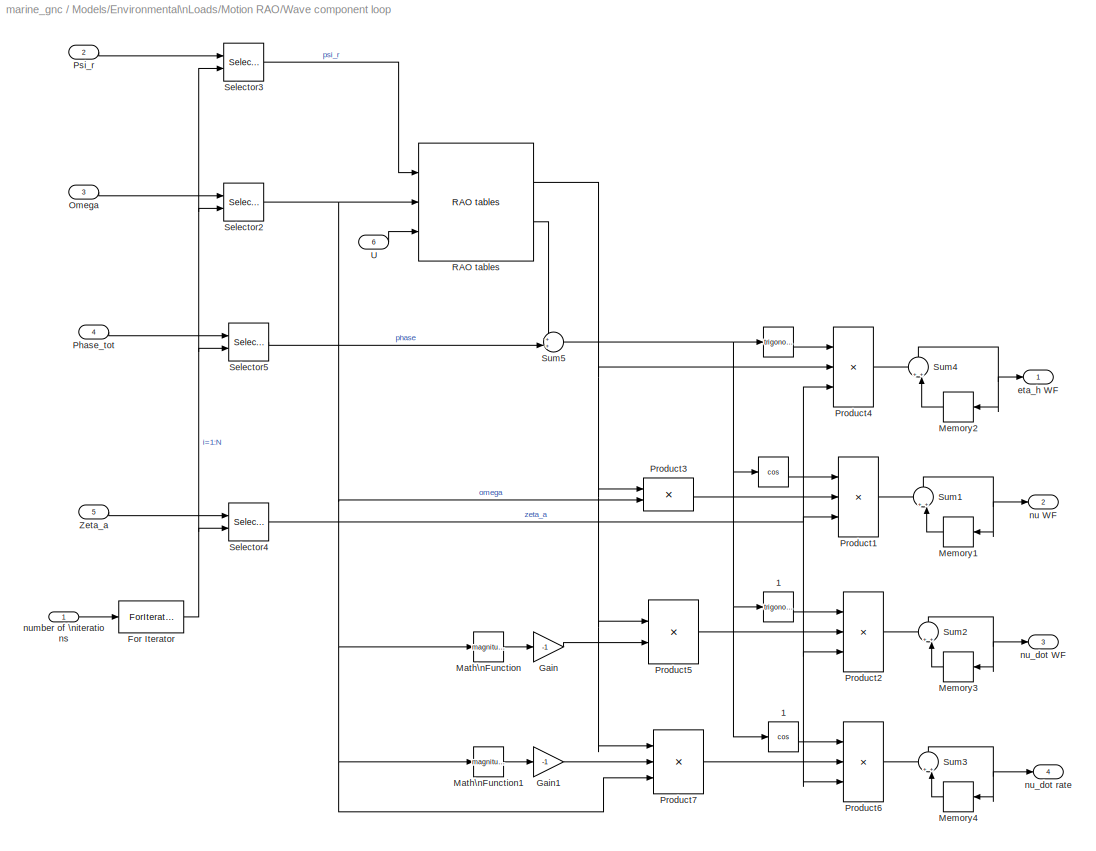
BLOCK [SubSystem] Models/Environmental\nLoads/Motion RAO/Wave component loop
  FunctionWithSeparateData = off
  MaskHideContents = off
  MinAlgLoopOccurrences = off
  Opaque = off
  Ports = [6, 4]
  PropExecContextOutsideSubsystem = off
  RTWSystemCode = Auto
  RequestExecContextInheritance = off
  SID = 814
  TreatAsAtomicUnit = on
BLOCK [Trigonometry] Models/Environmental\nLoads/Motion RAO/Wave component loop/              
  Operator = cos
  Ports = [1, 1]
  SID = 821
BLOCK [Trigonometry] Models/Environmental\nLoads/Motion RAO/Wave component loop/                
  Ports = [1, 1]
  SID = 822
BLOCK [Trigonometry] Models/Environmental\nLoads/Motion RAO/Wave component loop/                1
  Ports = [1, 1]
  SID = 823
BLOCK [Trigonometry] Models/Environmental\nLoads/Motion RAO/Wave component loop/              1
  Operator = cos
  Ports = [1, 1]
  SID = 824
BLOCK [ForIterator] Models/Environmental\nLoads/Motion RAO/Wave component loop/For Iterator
  IterationSource = external
  IterationVariableDataType = double
  Ports = [1, 1]
  ResetStates = reset
  SID = 825
BLOCK [Gain] Models/Environmental\nLoads/Motion RAO/Wave component loop/Gain
  Gain = -1
  OutDataType = sfix(16)
  OutScaling = 2^0
  ParameterDataType = sfix(16)
  ParameterScaling = 2^0
  SID = 826
BLOCK [Gain] Models/Environmental\nLoads/Motion RAO/Wave component loop/Gain1
  Gain = -1
  OutDataType = sfix(16)
  OutScaling = 2^0
  ParameterDataType = sfix(16)
  ParameterScaling = 2^0
  SID = 827
BLOCK [Math] Models/Environmental\nLoads/Motion RAO/Wave component loop/Math\nFunction
  Operator = magnitude^2
  OutDataType = sfix(16)
  OutScaling = 2^0
  Ports = [1, 1]
  SID = 828
BLOCK [Math] Models/Environmental\nLoads/Motion RAO/Wave component loop/Math\nFunction1
  Operator = magnitude^2
  OutDataType = sfix(16)
  OutScaling = 2^0
  Ports = [1, 1]
  SID = 829
BLOCK [Memory] Models/Environmental\nLoads/Motion RAO/Wave component loop/Memory1
  InheritSampleTime = on
  SID = 830
  X0 = [0 0 0 0 0 0]'
BLOCK [Memory] Models/Environmental\nLoads/Motion RAO/Wave component loop/Memory2
  InheritSampleTime = on
  SID = 831
  X0 = [0 0 0 0 0 0]'
BLOCK [Memory] Models/Environmental\nLoads/Motion RAO/Wave component loop/Memory3
  InheritSampleTime = on
  SID = 832
  X0 = [0 0 0 0 0 0]'
BLOCK [Memory] Models/Environmental\nLoads/Motion RAO/Wave component loop/Memory4
  InheritSampleTime = on
  SID = 833
  X0 = [0 0 0 0 0 0]'
BLOCK [Inport] Models/Environmental\nLoads/Motion RAO/Wave component loop/Omega
  IconDisplay = Port number
  OutDataType = sfix(16)
  OutScaling = 2^0
  Port = 3
  SID = 817
BLOCK [Inport] Models/Environmental\nLoads/Motion RAO/Wave component loop/Phase_tot
  IconDisplay = Port number
  OutDataType = sfix(16)
  OutScaling = 2^0
  Port = 4
  SID = 818
BLOCK [Product] Models/Environmental\nLoads/Motion RAO/Wave component loop/Product1
  InputSameDT = off
  Inputs = 3
  OutDataType = sfix(16)
  OutScaling = 2^0
  Ports = [3, 1]
  RndMeth = Floor
  SID = 834
BLOCK [Product] Models/Environmental\nLoads/Motion RAO/Wave component loop/Product2
  InputSameDT = off
  Inputs = 3
  OutDataType = sfix(16)
  OutScaling = 2^0
  Ports = [3, 1]
  RndMeth = Floor
  SID = 835
BLOCK [Product] Models/Environmental\nLoads/Motion RAO/Wave component loop/Product3
  InputSameDT = off
  Inputs = **
  OutDataType = sfix(16)
  OutScaling = 2^0
  Ports = [2, 1]
  RndMeth = Floor
  SID = 836
BLOCK [Product] Models/Environmental\nLoads/Motion RAO/Wave component loop/Product4
  InputSameDT = off
  Inputs = 3
  OutDataType = sfix(16)
  OutScaling = 2^0
  Ports = [3, 1]
  RndMeth = Floor
  SID = 837
BLOCK [Product] Models/Environmental\nLoads/Motion RAO/Wave component loop/Product5
  InputSameDT = off
  Inputs = **
  OutDataType = sfix(16)
  OutScaling = 2^0
  Ports = [2, 1]
  RndMeth = Floor
  SID = 838
BLOCK [Product] Models/Environmental\nLoads/Motion RAO/Wave component loop/Product6
  InputSameDT = off
  Inputs = 3
  OutDataType = sfix(16)
  OutScaling = 2^0
  Ports = [3, 1]
  RndMeth = Floor
  SID = 839
BLOCK [Product] Models/Environmental\nLoads/Motion RAO/Wave component loop/Product7
  InputSameDT = off
  Inputs = ***
  OutDataType = sfix(16)
  OutScaling = 2^0
  Ports = [3, 1]
  RndMeth = Floor
  SID = 840
BLOCK [Inport] Models/Environmental\nLoads/Motion RAO/Wave component loop/Psi_r
  IconDisplay = Port number
  OutDataType = sfix(16)
  OutScaling = 2^0
  Port = 2
  SID = 816
BLOCK [Reference] Models/Environmental\nLoads/Motion RAO/Wave component loop/RAO tables  REF=marine_gnc/Models/Environmental\nLoads/Utilities/RAO tables  (lib defined in mdl_10d96c221ba8, mdl_45f1105420c6)
  Ports = [3, 2]
  RAO_Amp = RAO_Amp
  RAO_Dir = RAO_Dir
  RAO_Freq = RAO_Freq
  RAO_Phase = RAO_Phase
  RAO_Vel = RAO_Vel
  SID = 841
  ShowPortLabels = on
  SourceBlock = marine_gnc/Models/Environmental\nLoads/Utilities/RAO tables
  SourceType = RAO table lookup
BLOCK [Selector] Models/Environmental\nLoads/Motion RAO/Wave component loop/Selector2
  IndexOptions = Index vector (port)
  Indices = [1 3]
  OutputSizes = 1
  Ports = [2, 1]
  SID = 842
BLOCK [Selector] Models/Environmental\nLoads/Motion RAO/Wave component loop/Selector3
  IndexOptions = Index vector (port)
  Indices = [1 3]
  OutputSizes = 1
  Ports = [2, 1]
  SID = 843
BLOCK [Selector] Models/Environmental\nLoads/Motion RAO/Wave component loop/Selector4
  IndexOptions = Index vector (port)
  Indices = [1 3]
  OutputSizes = 1
  Ports = [2, 1]
  SID = 844
BLOCK [Selector] Models/Environmental\nLoads/Motion RAO/Wave component loop/Selector5
  IndexOptions = Index vector (port)
  Indices = [1 3]
  OutputSizes = 1
  Ports = [2, 1]
  SID = 845
BLOCK [Sum] Models/Environmental\nLoads/Motion RAO/Wave component loop/Sum1
  IconShape = round
  InputSameDT = off
  Inputs = ++|
  OutDataType = sfix(16)
  OutDataTypeMode = Inherit via internal rule
  OutDataTypeStr = Inherit: Inherit via internal rule
  OutScaling = 2^0
  Ports = [2, 1]
  SID = 846
BLOCK [Sum] Models/Environmental\nLoads/Motion RAO/Wave component loop/Sum2
  IconShape = round
  InputSameDT = off
  Inputs = ++|
  OutDataType = sfix(16)
  OutDataTypeMode = Inherit via internal rule
  OutDataTypeStr = Inherit: Inherit via internal rule
  OutScaling = 2^0
  Ports = [2, 1]
  SID = 847
BLOCK [Sum] Models/Environmental\nLoads/Motion RAO/Wave component loop/Sum3
  IconShape = round
  InputSameDT = off
  Inputs = ++|
  OutDataType = sfix(16)
  OutDataTypeMode = Inherit via internal rule
  OutDataTypeStr = Inherit: Inherit via internal rule
  OutScaling = 2^0
  Ports = [2, 1]
  SID = 848
BLOCK [Sum] Models/Environmental\nLoads/Motion RAO/Wave component loop/Sum4
  IconShape = round
  InputSameDT = off
  Inputs = ++|
  OutDataType = sfix(16)
  OutDataTypeMode = Inherit via internal rule
  OutDataTypeStr = Inherit: Inherit via internal rule
  OutScaling = 2^0
  Ports = [2, 1]
  SID = 849
BLOCK [Sum] Models/Environmental\nLoads/Motion RAO/Wave component loop/Sum5
  IconShape = round
  InputSameDT = off
  Inputs = ++|
  OutDataType = sfix(16)
  OutDataTypeMode = Inherit via internal rule
  OutDataTypeStr = Inherit: Inherit via internal rule
  OutScaling = 2^0
  Ports = [2, 1]
  SID = 850
BLOCK [Inport] Models/Environmental\nLoads/Motion RAO/Wave component loop/U
  IconDisplay = Port number
  OutDataType = sfix(16)
  OutScaling = 2^0
  Port = 6
  SID = 820
BLOCK [Inport] Models/Environmental\nLoads/Motion RAO/Wave component loop/Zeta_a
  IconDisplay = Port number
  OutDataType = sfix(16)
  OutScaling = 2^0
  Port = 5
  SID = 819
BLOCK [Outport] Models/Environmental\nLoads/Motion RAO/Wave component loop/eta_h WF
  IconDisplay = Port number
  OutDataType = sfix(16)
  OutScaling = 2^0
  SID = 851
BLOCK [Outport] Models/Environmental\nLoads/Motion RAO/Wave component loop/nu WF
  IconDisplay = Port number
  OutDataType = sfix(16)
  OutScaling = 2^0
  Port = 2
  SID = 852
BLOCK [Outport] Models/Environmental\nLoads/Motion RAO/Wave component loop/nu_dot WF
  IconDisplay = Port number
  OutDataType = sfix(16)
  OutScaling = 2^0
  Port = 3
  SID = 853
BLOCK [Outport] Models/Environmental\nLoads/Motion RAO/Wave component loop/nu_dot rate
  IconDisplay = Port number
  OutDataType = sfix(16)
  OutScaling = 2^0
  Port = 4
  SID = 854
BLOCK [Inport] Models/Environmental\nLoads/Motion RAO/Wave component loop/number of \niterations
  IconDisplay = Port number
  OutDataType = sfix(16)
  OutScaling = 2^0
  SID = 815
BLOCK [Inport] Models/Environmental\nLoads/Motion RAO/Waves
  IconDisplay = Port number
  OutDataType = sfix(16)
  OutScaling = 2^0
  Port = 3
  SID = 778
BLOCK [Width] Models/Environmental\nLoads/Motion RAO/Width
  DataType = int32
  SID = 855
BLOCK [Reference] Models/Environmental\nLoads/Motion RAO/Yaw quantizer  REF=marine_gnc/Models/Environmental\nLoads/Utilities/Yaw quantizer  (lib defined in mdl_10d96c221ba8, mdl_45f1105420c6)
  Ports = [2, 1]
  SID = 856
  ShowPortLabels = on
  SourceBlock = marine_gnc/Models/Environmental\nLoads/Utilities/Yaw quantizer
  SourceType = Yaw quantizer
  back = RAO_yaw_back
  quant = RAO_yaw_quant
  quant_flag = RAO_yaw_quantization_flag
BLOCK [Reference] Models/Environmental\nLoads/Motion RAO/[-inf inf] to [-pi pi]  REF=marine_gnc/Utilities/Math Operations/[-inf inf] to [-pi pi]  (lib defined in mdl_10d96c221ba8, mdl_45f1105420c6)
  Ports = [1, 1]
  SID = 857
  ShowPortLabels = on
  SourceBlock = marine_gnc/Utilities/Math Operations/[-inf inf] to [-pi pi]
  SourceType = [-inf inf] to [-pi pi]
BLOCK [Inport] Models/Environmental\nLoads/Motion RAO/eta LF
  IconDisplay = Port number
  OutDataType = sfix(16)
  OutScaling = 2^0
  SID = 776
BLOCK [Outport] Models/Environmental\nLoads/Motion RAO/eta WF
  IconDisplay = Port number
  OutDataType = sfix(16)
  OutScaling = 2^0
  SID = 859
BLOCK [Outport] Models/Environmental\nLoads/Motion RAO/nu WF
  IconDisplay = Port number
  OutDataType = sfix(16)
  OutScaling = 2^0
  Port = 2
  SID = 860
BLOCK [Outport] Models/Environmental\nLoads/Motion RAO/nu_dot WF
  IconDisplay = Port number
  OutDataType = sfix(16)
  OutScaling = 2^0
  Port = 3
  SID = 861
BLOCK [Selector] Models/Environmental\nLoads/Motion RAO/yaw angle
  IndexOptions = Index vector (dialog)
  Indices = 6
  InputPortWidth = 6
  OutputSizes = 1
  Ports = [1, 1]
  SID = 858
BLOCK [SubSystem] Models/Environmental\nLoads/Utilities
  FunctionWithSeparateData = off
  MaskHideContents = off
  MinAlgLoopOccurrences = off
  Opaque = off
  Ports = []
  PropExecContextOutsideSubsystem = off
  RTWSystemCode = Auto
  RequestExecContextInheritance = off
  SID = 862
BLOCK [SubSystem] Models/Environmental\nLoads/Utilities/Position phase
  FunctionWithSeparateData = off
  MaskDescription = Calculate the phase delay due to the vessel LF position.
  MaskHideContents = off
  MaskIconFrame = on
  MaskIconOpaque = on
  MaskIconRotate = none
  MaskIconUnits = autoscale
  MaskPortRotate = default
  MaskType = Position Phase
  MinAlgLoopOccurrences = off
  Opaque = off
  Ports = [3, 1]
  PropExecContextOutsideSubsystem = off
  RTWSystemCode = Auto
  RequestExecContextInheritance = off
  SID = 863
BLOCK [Product] Models/Environmental\nLoads/Utilities/Position phase/Product2
  InputSameDT = off
  Inputs = **
  OutDataType = sfix(16)
  OutScaling = 2^0
  Ports = [2, 1]
  RndMeth = Floor
  SID = 867
BLOCK [Product] Models/Environmental\nLoads/Utilities/Position phase/Product6
  InputSameDT = off
  Inputs = **
  OutDataType = sfix(16)
  OutScaling = 2^0
  Ports = [2, 1]
  RndMeth = Floor
  SID = 868
BLOCK [Product] Models/Environmental\nLoads/Utilities/Position phase/Product7
  InputSameDT = off
  Inputs = **
  OutDataType = sfix(16)
  OutScaling = 2^0
  Ports = [2, 1]
  RndMeth = Floor
  SID = 869
BLOCK [Sum] Models/Environmental\nLoads/Utilities/Position phase/Sum5
  IconShape = round
  InputSameDT = off
  OutDataType = sfix(16)
  OutDataTypeMode = Inherit via internal rule
  OutDataTypeStr = Inherit: Inherit via internal rule
  OutScaling = 2^0
  Ports = [2, 1]
  SID = 870
BLOCK [Trigonometry] Models/Environmental\nLoads/Utilities/Position phase/cos
  Operator = cos
  Ports = [1, 1]
  SID = 871
BLOCK [Inport] Models/Environmental\nLoads/Utilities/Position phase/eta LF
  IconDisplay = Port number
  OutDataType = sfix(16)
  OutScaling = 2^0
  Port = 3
  SID = 866
BLOCK [Outport] Models/Environmental\nLoads/Utilities/Position phase/pos phase
  IconDisplay = Port number
  OutDataType = sfix(16)
  OutScaling = 2^0
  SID = 875
BLOCK [Inport] Models/Environmental\nLoads/Utilities/Position phase/psi wave
  IconDisplay = Port number
  OutDataType = sfix(16)
  OutScaling = 2^0
  SID = 864
BLOCK [Trigonometry] Models/Environmental\nLoads/Utilities/Position phase/sin
  Ports = [1, 1]
  SID = 872
BLOCK [Inport] Models/Environmental\nLoads/Utilities/Position phase/wavenum
  IconDisplay = Port number
  OutDataType = sfix(16)
  OutScaling = 2^0
  Port = 2
  SID = 865
BLOCK [Selector] Models/Environmental\nLoads/Utilities/Position phase/x-position
  IndexOptions = Index vector (dialog)
  Indices = 1
  OutputSizes = 1
  Ports = [1, 1]
  SID = 873
BLOCK [Selector] Models/Environmental\nLoads/Utilities/Position phase/y-position
  IndexOptions = Index vector (dialog)
  Indices = 2
  InputPortWidth = 6
  OutputSizes = 1
  Ports = [1, 1]
  SID = 874
BLOCK [SubSystem] Models/Environmental\nLoads/Utilities/RAO tables
  FunctionWithSeparateData = off
  MaskCallbackString = ||||
  MaskDescription = Perform 3D table lookup in 6DOF RAO amplitudes and phases, using the relative wave heading psi_r, wave frequency omega and vessel velocity vel as inputs. See documentation of the Motion RAO block or Force RAO block for details. A warning is issued if the input is outside the range spanned by the RAOs.\n\nCopyright (C) NTNU 2005\n\nAuthor: Oyvind N. Smogeli, 2005-05-03
  MaskEnableString = on,on,on,on,on
  MaskHideContents = off
  MaskIconFrame = on
  MaskIconOpaque = on
  MaskIconRotate = none
  MaskIconUnits = autoscale
  MaskPortRotate = default
  MaskPromptString = Vector of frequencies (rad/s)|Vector of directions (rad)|Vector of velocities (m/s)|6DOF Cell array with tables of Amplitudes|6DOF Cell array with tables of Phases (rad)
  MaskStyleString = edit,edit,edit,edit,edit
  MaskToolTipString = on,on,on,on,on
  MaskTunableValueString = on,on,on,on,on
  MaskType = RAO table lookup
  MaskValueString = RAO_Freq|RAO_Dir|RAO_Vel|RAO_Amp|RAO_Phase
  MaskVariables = RAO_Freq=@1;RAO_Dir=@2;RAO_Vel=@3;RAO_Amp=@4;RAO_Phase=@5;
  MaskVisibilityString = on,on,on,on,on
  MinAlgLoopOccurrences = off
  Opaque = off
  Ports = [3, 2]
  PropExecContextOutsideSubsystem = off
  RTWSystemCode = Auto
  RequestExecContextInheritance = off
  SID = 876
BLOCK [Abs] Models/Environmental\nLoads/Utilities/RAO tables/Abs
  SID = 880
BLOCK [Reference] Models/Environmental\nLoads/Utilities/RAO tables/Amplitude table\nlookup1  REF=simulink/Lookup\nTables/Lookup\nTable (n-D)
  Ports = [3, 1]
  SID = 881
  SourceBlock = simulink/Lookup\nTables/Lookup\nTable (n-D)
  SourceType = LookupNDInterp
  bp1 = RAO_Freq
  bp2 = RAO_Dir
  bp3 = RAO_Vel
  bp4 = [1:3]
  bpcell = { [1:3], [1:3] }
  cacheBpFlag = off
  explicitNumDims = 2
  extrapMethod = Linear
  interpMethod = Linear
  numDimsPopupSelect = 3
  rangeErrorMode = Warning
  searchMode = Binary Search
  tableData = RAO_Amp{1}
  vectorInputFlag = off
BLOCK [Reference] Models/Environmental\nLoads/Utilities/RAO tables/Amplitude table\nlookup2  REF=simulink/Lookup\nTables/Lookup\nTable (n-D)
  Ports = [3, 1]
  SID = 882
  SourceBlock = simulink/Lookup\nTables/Lookup\nTable (n-D)
  SourceType = LookupNDInterp
  bp1 = RAO_Freq
  bp2 = RAO_Dir
  bp3 = RAO_Vel
  bp4 = [1:3]
  bpcell = { [1:3], [1:3] }
  cacheBpFlag = off
  explicitNumDims = 2
  extrapMethod = Linear
  interpMethod = Linear
  numDimsPopupSelect = 3
  rangeErrorMode = None
  searchMode = Binary Search
  tableData = RAO_Amp{2}
  vectorInputFlag = off
BLOCK [Reference] Models/Environmental\nLoads/Utilities/RAO tables/Amplitude table\nlookup3  REF=simulink/Lookup\nTables/Lookup\nTable (n-D)
  Ports = [3, 1]
  SID = 883
  SourceBlock = simulink/Lookup\nTables/Lookup\nTable (n-D)
  SourceType = LookupNDInterp
  bp1 = RAO_Freq
  bp2 = RAO_Dir
  bp3 = RAO_Vel
  bp4 = [1:3]
  bpcell = { [1:3], [1:3] }
  cacheBpFlag = off
  explicitNumDims = 2
  extrapMethod = Linear
  interpMethod = Linear
  numDimsPopupSelect = 3
  rangeErrorMode = None
  searchMode = Binary Search
  tableData = RAO_Amp{3}
  vectorInputFlag = off
BLOCK [Reference] Models/Environmental\nLoads/Utilities/RAO tables/Amplitude table\nlookup4  REF=simulink/Lookup\nTables/Lookup\nTable (n-D)
  Ports = [3, 1]
  SID = 884
  SourceBlock = simulink/Lookup\nTables/Lookup\nTable (n-D)
  SourceType = LookupNDInterp
  bp1 = RAO_Freq
  bp2 = RAO_Dir
  bp3 = RAO_Vel
  bp4 = [1:3]
  bpcell = { [1:3], [1:3] }
  cacheBpFlag = off
  explicitNumDims = 2
  extrapMethod = Linear
  interpMethod = Linear
  numDimsPopupSelect = 3
  rangeErrorMode = None
  searchMode = Binary Search
  tableData = RAO_Amp{4}
  vectorInputFlag = off
BLOCK [Reference] Models/Environmental\nLoads/Utilities/RAO tables/Amplitude table\nlookup5  REF=simulink/Lookup\nTables/Lookup\nTable (n-D)
  Ports = [3, 1]
  SID = 885
  SourceBlock = simulink/Lookup\nTables/Lookup\nTable (n-D)
  SourceType = LookupNDInterp
  bp1 = RAO_Freq
  bp2 = RAO_Dir
  bp3 = RAO_Vel
  bp4 = [1:3]
  bpcell = { [1:3], [1:3] }
  cacheBpFlag = off
  explicitNumDims = 2
  extrapMethod = Linear
  interpMethod = Linear
  numDimsPopupSelect = 3
  rangeErrorMode = None
  searchMode = Binary Search
  tableData = RAO_Amp {5}
  vectorInputFlag = off
BLOCK [Reference] Models/Environmental\nLoads/Utilities/RAO tables/Amplitude table\nlookup6  REF=simulink/Lookup\nTables/Lookup\nTable (n-D)
  Ports = [3, 1]
  SID = 886
  SourceBlock = simulink/Lookup\nTables/Lookup\nTable (n-D)
  SourceType = LookupNDInterp
  bp1 = RAO_Freq
  bp2 = RAO_Dir
  bp3 = RAO_Vel
  bp4 = [1:3]
  bpcell = { [1:3], [1:3] }
  cacheBpFlag = off
  explicitNumDims = 2
  extrapMethod = Linear
  interpMethod = Linear
  numDimsPopupSelect = 3
  rangeErrorMode = None
  searchMode = Binary Search
  tableData = RAO_Amp{6}
  vectorInputFlag = off
BLOCK [Mux] Models/Environmental\nLoads/Utilities/RAO tables/Mux1
  DisplayOption = bar
  Inputs = 6
  Ports = [6, 1]
  SID = 887
BLOCK [Mux] Models/Environmental\nLoads/Utilities/RAO tables/Mux2
  DisplayOption = bar
  Inputs = 6
  Ports = [6, 1]
  SID = 888
BLOCK [Reference] Models/Environmental\nLoads/Utilities/RAO tables/Phase table\nlookup1  REF=simulink/Lookup\nTables/Lookup\nTable (n-D)
  Ports = [3, 1]
  SID = 889
  SourceBlock = simulink/Lookup\nTables/Lookup\nTable (n-D)
  SourceType = LookupNDInterp
  bp1 = RAO_Freq
  bp2 = RAO_Dir
  bp3 = RAO_Vel
  bp4 = [1:3]
  bpcell = { [1:3], [1:3] }
  cacheBpFlag = off
  explicitNumDims = 2
  extrapMethod = Linear
  interpMethod = Linear
  numDimsPopupSelect = 3
  rangeErrorMode = None
  searchMode = Binary Search
  tableData = RAO_Phase{1}
  vectorInputFlag = off
BLOCK [Reference] Models/Environmental\nLoads/Utilities/RAO tables/Phase table\nlookup2  REF=simulink/Lookup\nTables/Lookup\nTable (n-D)
  Ports = [3, 1]
  SID = 890
  SourceBlock = simulink/Lookup\nTables/Lookup\nTable (n-D)
  SourceType = LookupNDInterp
  bp1 = RAO_Freq
  bp2 = RAO_Dir
  bp3 = RAO_Vel
  bp4 = [1:3]
  bpcell = { [1:3], [1:3] }
  cacheBpFlag = off
  explicitNumDims = 2
  extrapMethod = Linear
  interpMethod = Linear
  numDimsPopupSelect = 3
  rangeErrorMode = None
  searchMode = Binary Search
  tableData = RAO_Phase{2}
  vectorInputFlag = off
BLOCK [Reference] Models/Environmental\nLoads/Utilities/RAO tables/Phase table\nlookup3  REF=simulink/Lookup\nTables/Lookup\nTable (n-D)
  Ports = [3, 1]
  SID = 891
  SourceBlock = simulink/Lookup\nTables/Lookup\nTable (n-D)
  SourceType = LookupNDInterp
  bp1 = RAO_Freq
  bp2 = RAO_Dir
  bp3 = RAO_Vel
  bp4 = [1:3]
  bpcell = { [1:3], [1:3] }
  cacheBpFlag = off
  explicitNumDims = 2
  extrapMethod = Linear
  interpMethod = Linear
  numDimsPopupSelect = 3
  rangeErrorMode = None
  searchMode = Binary Search
  tableData = RAO_Phase{3}
  vectorInputFlag = off
BLOCK [Reference] Models/Environmental\nLoads/Utilities/RAO tables/Phase table\nlookup4  REF=simulink/Lookup\nTables/Lookup\nTable (n-D)
  Ports = [3, 1]
  SID = 892
  SourceBlock = simulink/Lookup\nTables/Lookup\nTable (n-D)
  SourceType = LookupNDInterp
  bp1 = RAO_Freq
  bp2 = RAO_Dir
  bp3 = RAO_Vel
  bp4 = [1:3]
  bpcell = { [1:3], [1:3] }
  cacheBpFlag = off
  explicitNumDims = 2
  extrapMethod = Linear
  interpMethod = Linear
  numDimsPopupSelect = 3
  rangeErrorMode = None
  searchMode = Binary Search
  tableData = RAO_Phase{4}
  vectorInputFlag = off
BLOCK [Reference] Models/Environmental\nLoads/Utilities/RAO tables/Phase table\nlookup5  REF=simulink/Lookup\nTables/Lookup\nTable (n-D)
  Ports = [3, 1]
  SID = 893
  SourceBlock = simulink/Lookup\nTables/Lookup\nTable (n-D)
  SourceType = LookupNDInterp
  bp1 = RAO_Freq
  bp2 = RAO_Dir
  bp3 = RAO_Vel
  bp4 = [1:3]
  bpcell = { [1:3], [1:3] }
  cacheBpFlag = off
  explicitNumDims = 2
  extrapMethod = Linear
  interpMethod = Linear
  numDimsPopupSelect = 3
  rangeErrorMode = None
  searchMode = Binary Search
  tableData = RAO_Phase{5}
  vectorInputFlag = off
BLOCK [Reference] Models/Environmental\nLoads/Utilities/RAO tables/Phase table\nlookup6  REF=simulink/Lookup\nTables/Lookup\nTable (n-D)
  Ports = [3, 1]
  SID = 894
  SourceBlock = simulink/Lookup\nTables/Lookup\nTable (n-D)
  SourceType = LookupNDInterp
  bp1 = RAO_Freq
  bp2 = RAO_Dir
  bp3 = RAO_Vel
  bp4 = [1:3]
  bpcell = { [1:3], [1:3] }
  cacheBpFlag = off
  explicitNumDims = 2
  extrapMethod = Linear
  interpMethod = Linear
  numDimsPopupSelect = 3
  rangeErrorMode = None
  searchMode = Binary Search
  tableData = RAO_Phase{6}
  vectorInputFlag = off
BLOCK [Product] Models/Environmental\nLoads/Utilities/RAO tables/Product1
  InputSameDT = off
  Inputs = **
  OutDataType = sfix(16)
  OutScaling = 2^0
  Ports = [2, 1]
  RndMeth = Floor
  SID = 895
BLOCK [Product] Models/Environmental\nLoads/Utilities/RAO tables/Product2
  InputSameDT = off
  Inputs = **
  OutDataType = sfix(16)
  OutScaling = 2^0
  Ports = [2, 1]
  RndMeth = Floor
  SID = 896
BLOCK [Product] Models/Environmental\nLoads/Utilities/RAO tables/Product3
  InputSameDT = off
  Inputs = **
  OutDataType = sfix(16)
  OutScaling = 2^0
  Ports = [2, 1]
  RndMeth = Floor
  SID = 897
BLOCK [Signum] Models/Environmental\nLoads/Utilities/RAO tables/Sign
  SID = 898
BLOCK [Inport] Models/Environmental\nLoads/Utilities/RAO tables/U
  IconDisplay = Port number
  OutDataType = sfix(16)
  OutScaling = 2^0
  Port = 3
  SID = 879
BLOCK [Reference] Models/Environmental\nLoads/Utilities/RAO tables/[-inf inf] to [-pi pi]  REF=marine_gnc/Utilities/Math Operations/[-inf inf] to [-pi pi]  (lib defined in mdl_10d96c221ba8, mdl_45f1105420c6)
  Ports = [1, 1]
  SID = 899
  ShowPortLabels = on
  SourceBlock = marine_gnc/Utilities/Math Operations/[-inf inf] to [-pi pi]
  SourceType = [-inf inf] to [-pi pi]
BLOCK [Outport] Models/Environmental\nLoads/Utilities/RAO tables/amp
  IconDisplay = Port number
  OutDataType = sfix(16)
  OutScaling = 2^0
  SID = 900
BLOCK [Inport] Models/Environmental\nLoads/Utilities/RAO tables/omega
  IconDisplay = Port number
  OutDataType = sfix(16)
  OutScaling = 2^0
  Port = 2
  SID = 878
BLOCK [Outport] Models/Environmental\nLoads/Utilities/RAO tables/phase
  IconDisplay = Port number
  OutDataType = sfix(16)
  OutScaling = 2^0
  Port = 2
  SID = 901
BLOCK [Inport] Models/Environmental\nLoads/Utilities/RAO tables/psi_r
  IconDisplay = Port number
  OutDataType = sfix(16)
  OutScaling = 2^0
  SID = 877
BLOCK [SubSystem] Models/Environmental\nLoads/Utilities/Signal smoothing
  FunctionWithSeparateData = off
  MaskDescription = Rate limit the input signal according to the recorded maximum signal rate.\n\nFor example, in order to remove switching transients from a velocity signal, input the acceleration signal as signal rate.\n
  MaskHideContents = off
  MaskIconFrame = on
  MaskIconOpaque = on
  MaskIconRotate = none
  MaskIconUnits = autoscale
  MaskPortRotate = default
  MaskType = Signal smoothing
  MinAlgLoopOccurrences = off
  Opaque = off
  Ports = [2, 1]
  PropExecContextOutsideSubsystem = off
  RTWSystemCode = Auto
  RequestExecContextInheritance = off
  SID = 902
BLOCK [Gain] Models/Environmental\nLoads/Utilities/Signal smoothing/-1
  Gain = -1
  OutDataType = sfix(16)
  OutDataTypeMode = Inherit via internal rule
  OutDataTypeStr = Inherit: Inherit via internal rule
  OutScaling = 2^0
  ParamDataTypeStr = Inherit: Inherit via internal rule
  ParameterDataType = sfix(16)
  ParameterDataTypeMode = Inherit via internal rule
  ParameterScaling = 2^0
  SID = 905
  SaturateOnIntegerOverflow = off
BLOCK [Abs] Models/Environmental\nLoads/Utilities/Signal smoothing/Abs
  SID = 906
  SaturateOnIntegerOverflow = off
BLOCK [Constant] Models/Environmental\nLoads/Utilities/Signal smoothing/Constant
  OutDataType = sfix(16)
  OutDataTypeMode = boolean
  OutDataTypeStr = boolean
  OutScaling = 2^0
  SID = 907
  Value = 0
BLOCK [Reference] Models/Environmental\nLoads/Utilities/Signal smoothing/MinMax\nRunning\nResettable  REF=simulink/Math\nOperations/MinMax\nRunning\nResettable
  Function = max
  Ports = [2, 1]
  SID = 908
  ShowPortLabels = on
  SourceBlock = simulink/Math\nOperations/MinMax\nRunning\nResettable
  SourceType = MinMax Running Resettable
  vinit = 0.0
BLOCK [Reference] Models/Environmental\nLoads/Utilities/Signal smoothing/Rate Limiter\nDynamic  REF=simulink/Discontinuities/Rate Limiter\nDynamic
  Ports = [3, 1]
  SID = 909
  ShowPortLabels = on
  SourceBlock = simulink/Discontinuities/Rate Limiter\nDynamic
  SourceType = Rate Limiter Dynamic
BLOCK [Inport] Models/Environmental\nLoads/Utilities/Signal smoothing/Signal in
  IconDisplay = Port number
  OutDataType = sfix(16)
  OutScaling = 2^0
  SID = 903
BLOCK [Outport] Models/Environmental\nLoads/Utilities/Signal smoothing/Signal out
  IconDisplay = Port number
  OutDataType = sfix(16)
  OutScaling = 2^0
  SID = 910
BLOCK [Inport] Models/Environmental\nLoads/Utilities/Signal smoothing/Signal rate
  IconDisplay = Port number
  OutDataType = sfix(16)
  OutScaling = 2^0
  Port = 2
  SID = 904
BLOCK [SubSystem] Models/Environmental\nLoads/Utilities/Yaw quantizer
  FunctionWithSeparateData = off
  MaskCallbackString = ||
  MaskDescription = Apply quantization and backlash to the yaw angle if desired, and calculate the wave direction relative to the vessel. If the quantizer flag is set to zero, the two outputs are equal.
  MaskEnableString = on,on,on
  MaskHideContents = off
  MaskIconFrame = on
  MaskIconOpaque = on
  MaskIconRotate = none
  MaskIconUnits = autoscale
  MaskPortRotate = default
  MaskPromptString = Quantizer flag {0,1}|Quantizer interval [rad]|Backlash width [rad]
  MaskStyleString = edit,edit,edit
  MaskToolTipString = on,on,on
  MaskTunableValueString = on,on,on
  MaskType = Yaw quantizer
  MaskValueString = RAO_yaw_quantization_flag|RAO_yaw_quant|RAO_yaw_back
  MaskVariables = quant_flag=@1;quant=@2;back=@3;
  MaskVisibilityString = on,on,on
  MinAlgLoopOccurrences = off
  Opaque = off
  Ports = [2, 1]
  PropExecContextOutsideSubsystem = off
  RTWSystemCode = Auto
  RequestExecContextInheritance = off
  SID = 911
BLOCK [Backlash] Models/Environmental\nLoads/Utilities/Yaw quantizer/Backlash
  BacklashWidth = back
  SID = 914
BLOCK [Quantizer] Models/Environmental\nLoads/Utilities/Yaw quantizer/Quantizer
  QuantizationInterval = quant
  SID = 915
BLOCK [Constant] Models/Environmental\nLoads/Utilities/Yaw quantizer/Quantizer flag
  OutDataType = sfix(16)
  OutScaling = 2^0
  SID = 916
  Value = quant_flag
BLOCK [Sum] Models/Environmental\nLoads/Utilities/Yaw quantizer/Sum
  IconShape = round
  InputSameDT = off
  Inputs = |-+
  OutDataType = sfix(16)
  OutDataTypeMode = Inherit via internal rule
  OutDataTypeStr = Inherit: Inherit via internal rule
  OutScaling = 2^0
  Ports = [2, 1]
  SID = 917
  SaturateOnIntegerOverflow = off
BLOCK [Switch] Models/Environmental\nLoads/Utilities/Yaw quantizer/Switch
  InputSameDT = off
  SID = 918
  SaturateOnIntegerOverflow = off
  Threshold = 0.5
BLOCK [Inport] Models/Environmental\nLoads/Utilities/Yaw quantizer/psi LF
  IconDisplay = Port number
  OutDataType = sfix(16)
  OutScaling = 2^0
  SID = 912
BLOCK [Inport] Models/Environmental\nLoads/Utilities/Yaw quantizer/psi wave
  IconDisplay = Port number
  OutDataType = sfix(16)
  OutScaling = 2^0
  Port = 2
  SID = 913
BLOCK [Outport] Models/Environmental\nLoads/Utilities/Yaw quantizer/psi_r quantized
  IconDisplay = Port number
  OutDataType = sfix(16)
  OutScaling = 2^0
  SID = 919
BLOCK [SubSystem] Models/Hydromecanics
  FunctionWithSeparateData = off
  MaskHideContents = off
  MinAlgLoopOccurrences = off
  Opaque = off
  Ports = []
  PropExecContextOutsideSubsystem = off
  RTWSystemCode = Auto
  RequestExecContextInheritance = off
  SID = 920
BLOCK [SubSystem] Models/Propulsion
  FunctionWithSeparateData = off
  MaskHideContents = off
  MinAlgLoopOccurrences = off
  Opaque = off
  Ports = []
  PropExecContextOutsideSubsystem = off
  RTWSystemCode = Auto
  RequestExecContextInheritance = off
  SID = 921
BLOCK [SubSystem] Models/Propulsion/Actuator Configuration
  FunctionWithSeparateData = off
  MaskHideContents = off
  MinAlgLoopOccurrences = off
  Opaque = off
  Ports = []
  PropExecContextOutsideSubsystem = off
  RTWSystemCode = Auto
  RequestExecContextInheritance = off
  SID = 922
BLOCK [SubSystem] Models/Propulsion/Actuator Configuration/2 main propellers and 3 tunnel  thrusters
  FunctionWithSeparateData = off
  MaskDisplay = disp('tau = T*K(n)*u')
  MaskHideContents = off
  MaskIconFrame = on
  MaskIconOpaque = off
  MaskIconRotate = none
  MaskIconUnits = autoscale
  MaskPortRotate = default
  MinAlgLoopOccurrences = off
  Opaque = off
  Ports = [2, 1]
  PropExecContextOutsideSubsystem = off
  RTWSystemCode = Auto
  RequestExecContextInheritance = off
  SID = 923
BLOCK [Inport] Models/Propulsion/Actuator Configuration/2 main propellers and 3 tunnel  thrusters/K(n)
  IconDisplay = Port number
  OutDataType = sfix(16)
  OutScaling = 2^0
  SID = 924
BLOCK [Mux] Models/Propulsion/Actuator Configuration/2 main propellers and 3 tunnel  thrusters/Mux
  DisplayOption = bar
  Inputs = 5
  Ports = [5, 1]
  SID = 926
BLOCK [Reference] Models/Propulsion/Actuator Configuration/2 main propellers and 3 tunnel  thrusters/Thruster configuration matrix1  REF=marine_gnc/Models/Propulsion/Actuator Configuration/Thruster configuration matrix  (lib defined in mdl_10d96c221ba8, mdl_45f1105420c6)
  FunctionWithSeparateData = off
  Ports = [1, 1]
  RTWMemSecDataConstants = Inherit from model
  RTWMemSecDataInternal = Inherit from model
  RTWMemSecDataParameters = Inherit from model
  RTWMemSecFuncExecute = Inherit from model
  RTWMemSecFuncInitTerm = Inherit from model
  SID = 927
  ShowPortLabels = on
  SourceBlock = marine_gnc/Models/Propulsion/Actuator Configuration/Thruster configuration matrix
  SourceType = SubSystem
  SystemSampleTime = -1
BLOCK [Product] Models/Propulsion/Actuator Configuration/2 main propellers and 3 tunnel  thrusters/f=K(n)*u
  OutDataType = sfix(16)
  OutScaling = 2^0
  Ports = [2, 1]
  RndMeth = Floor
  SID = 928
BLOCK [Constant] Models/Propulsion/Actuator Configuration/2 main propellers and 3 tunnel  thrusters/main propeller
  OutDataType = sfix(16)
  OutScaling = 2^0
  SID = 929
  Value = 0
BLOCK [Outport] Models/Propulsion/Actuator Configuration/2 main propellers and 3 tunnel  thrusters/tau
  IconDisplay = Port number
  OutDataType = sfix(16)
  OutScaling = 2^0
  SID = 932
BLOCK [Product] Models/Propulsion/Actuator Configuration/2 main propellers and 3 tunnel  thrusters/tau=T(alpha)*f
  Multiplication = Matrix(*)
  OutDataType = sfix(16)
  OutScaling = 2^0
  Ports = [2, 1]
  RndMeth = Floor
  SID = 930
BLOCK [Constant] Models/Propulsion/Actuator Configuration/2 main propellers and 3 tunnel  thrusters/tunnel thruster
  OutDataType = sfix(16)
  OutScaling = 2^0
  SID = 931
  Value = pi/2
BLOCK [Inport] Models/Propulsion/Actuator Configuration/2 main propellers and 3 tunnel  thrusters/u
  IconDisplay = Port number
  OutDataType = sfix(16)
  OutScaling = 2^0
  Port = 2
  SID = 925
BLOCK [SubSystem] Models/Propulsion/Actuator Configuration/2 main propellers, 1 azimuth and 2 tunnel thrusters
  FunctionWithSeparateData = off
  MaskDisplay = disp('tau =            \\n\\n')\ndisp('    T(alpha)*K(n)*u')
  MaskHideContents = off
  MaskIconFrame = on
  MaskIconOpaque = off
  MaskIconRotate = none
  MaskIconUnits = autoscale
  MaskPortRotate = default
  MinAlgLoopOccurrences = off
  Opaque = off
  Ports = [3, 1]
  PropExecContextOutsideSubsystem = off
  RTWSystemCode = Auto
  RequestExecContextInheritance = off
  SID = 933
BLOCK [Inport] Models/Propulsion/Actuator Configuration/2 main propellers, 1 azimuth and 2 tunnel thrusters/K(n)
  IconDisplay = Port number
  OutDataType = sfix(16)
  OutScaling = 2^0
  Port = 2
  SID = 935
BLOCK [Mux] Models/Propulsion/Actuator Configuration/2 main propellers, 1 azimuth and 2 tunnel thrusters/Mux
  DisplayOption = bar
  Inputs = 5
  Ports = [5, 1]
  SID = 937
BLOCK [Reference] Models/Propulsion/Actuator Configuration/2 main propellers, 1 azimuth and 2 tunnel thrusters/Thruster configuration matrix  REF=marine_gnc/Models/Propulsion/Actuator Configuration/Thruster configuration matrix  (lib defined in mdl_10d96c221ba8, mdl_45f1105420c6)
  FunctionWithSeparateData = off
  Ports = [1, 1]
  RTWMemSecDataConstants = Inherit from model
  RTWMemSecDataInternal = Inherit from model
  RTWMemSecDataParameters = Inherit from model
  RTWMemSecFuncExecute = Inherit from model
  RTWMemSecFuncInitTerm = Inherit from model
  SID = 938
  ShowPortLabels = on
  SourceBlock = marine_gnc/Models/Propulsion/Actuator Configuration/Thruster configuration matrix
  SourceType = SubSystem
  SystemSampleTime = -1
BLOCK [Inport] Models/Propulsion/Actuator Configuration/2 main propellers, 1 azimuth and 2 tunnel thrusters/alpha
  IconDisplay = Port number
  OutDataType = sfix(16)
  OutScaling = 2^0
  SID = 934
BLOCK [Product] Models/Propulsion/Actuator Configuration/2 main propellers, 1 azimuth and 2 tunnel thrusters/f=K(n)*u
  OutDataType = sfix(16)
  OutScaling = 2^0
  Ports = [2, 1]
  RndMeth = Floor
  SID = 939
BLOCK [Constant] Models/Propulsion/Actuator Configuration/2 main propellers, 1 azimuth and 2 tunnel thrusters/main propeller
  OutDataType = sfix(16)
  OutScaling = 2^0
  SID = 940
  Value = 0
BLOCK [Outport] Models/Propulsion/Actuator Configuration/2 main propellers, 1 azimuth and 2 tunnel thrusters/tau
  IconDisplay = Port number
  OutDataType = sfix(16)
  OutScaling = 2^0
  SID = 943
BLOCK [Product] Models/Propulsion/Actuator Configuration/2 main propellers, 1 azimuth and 2 tunnel thrusters/tau=T(alpha)*f
  Multiplication = Matrix(*)
  OutDataType = sfix(16)
  OutScaling = 2^0
  Ports = [2, 1]
  RndMeth = Floor
  SID = 941
BLOCK [Constant] Models/Propulsion/Actuator Configuration/2 main propellers, 1 azimuth and 2 tunnel thrusters/tunnel thruster
  OutDataType = sfix(16)
  OutScaling = 2^0
  SID = 942
  Value = pi/2
BLOCK [Inport] Models/Propulsion/Actuator Configuration/2 main propellers, 1 azimuth and 2 tunnel thrusters/u
  IconDisplay = Port number
  OutDataType = sfix(16)
  OutScaling = 2^0
  Port = 3
  SID = 936
BLOCK [SubSystem] Models/Propulsion/Actuator Configuration/4 azimuth thrusters
  FunctionWithSeparateData = off
  MaskDisplay = disp('tau =            \\n\\n')\ndisp('    T(alpha)*K(n)*u')
  MaskHideContents = off
  MaskIconFrame = on
  MaskIconOpaque = off
  MaskIconRotate = none
  MaskIconUnits = autoscale
  MaskPortRotate = default
  MinAlgLoopOccurrences = off
  Opaque = off
  Ports = [3, 1]
  PropExecContextOutsideSubsystem = off
  RTWSystemCode = Auto
  RequestExecContextInheritance = off
  SID = 944
BLOCK [Inport] Models/Propulsion/Actuator Configuration/4 azimuth thrusters/K(n)
  IconDisplay = Port number
  OutDataType = sfix(16)
  OutScaling = 2^0
  Port = 2
  SID = 946
BLOCK [Reference] Models/Propulsion/Actuator Configuration/4 azimuth thrusters/Thruster configuration matrix1  REF=marine_gnc/Models/Propulsion/Actuator Configuration/Thruster configuration matrix  (lib defined in mdl_10d96c221ba8, mdl_45f1105420c6)
  FunctionWithSeparateData = off
  Ports = [1, 1]
  RTWMemSecDataConstants = Inherit from model
  RTWMemSecDataInternal = Inherit from model
  RTWMemSecDataParameters = Inherit from model
  RTWMemSecFuncExecute = Inherit from model
  RTWMemSecFuncInitTerm = Inherit from model
  SID = 948
  ShowPortLabels = on
  SourceBlock = marine_gnc/Models/Propulsion/Actuator Configuration/Thruster configuration matrix
  SourceType = SubSystem
  SystemSampleTime = -1
BLOCK [Inport] Models/Propulsion/Actuator Configuration/4 azimuth thrusters/alpha
  IconDisplay = Port number
  OutDataType = sfix(16)
  OutScaling = 2^0
  SID = 945
BLOCK [Product] Models/Propulsion/Actuator Configuration/4 azimuth thrusters/f=K(n)*u
  OutDataType = sfix(16)
  OutScaling = 2^0
  Ports = [2, 1]
  RndMeth = Floor
  SID = 949
BLOCK [Outport] Models/Propulsion/Actuator Configuration/4 azimuth thrusters/tau
  IconDisplay = Port number
  OutDataType = sfix(16)
  OutScaling = 2^0
  SID = 951
BLOCK [Product] Models/Propulsion/Actuator Configuration/4 azimuth thrusters/tau=T(alpha)*f
  Multiplication = Matrix(*)
  OutDataType = sfix(16)
  OutScaling = 2^0
  Ports = [2, 1]
  RndMeth = Floor
  SID = 950
BLOCK [Inport] Models/Propulsion/Actuator Configuration/4 azimuth thrusters/u
  IconDisplay = Port number
  OutDataType = sfix(16)
  OutScaling = 2^0
  Port = 3
  SID = 947
BLOCK [SubSystem] Models/Propulsion/Actuator Configuration/Column vector t
  FunctionWithSeparateData = off
  MaskHideContents = off
  MinAlgLoopOccurrences = off
  Opaque = off
  Ports = [3, 1]
  PropExecContextOutsideSubsystem = off
  RTWSystemCode = Auto
  RequestExecContextInheritance = off
  SID = 952
BLOCK [Trigonometry] Models/Propulsion/Actuator Configuration/Column vector t/  
  Operator = cos
  Ports = [1, 1]
  SID = 956
BLOCK [Trigonometry] Models/Propulsion/Actuator Configuration/Column vector t/   
  Ports = [1, 1]
  SID = 957
BLOCK [Product] Models/Propulsion/Actuator Configuration/Column vector t/    
  OutDataType = sfix(16)
  OutScaling = 2^0
  Ports = [2, 1]
  RndMeth = Floor
  SID = 958
BLOCK [Product] Models/Propulsion/Actuator Configuration/Column vector t/       
  OutDataType = sfix(16)
  OutScaling = 2^0
  Ports = [2, 1]
  RndMeth = Floor
  SID = 959
BLOCK [Sum] Models/Propulsion/Actuator Configuration/Column vector t/Sum
  IconShape = round
  Inputs = |-+
  OutDataType = sfix(16)
  OutScaling = 2^0
  Ports = [2, 1]
  SID = 960
BLOCK [Concatenate] Models/Propulsion/Actuator Configuration/Column vector t/Thruster\ncolumn\nvector
  Mode = Multidimensional array
  NumInputs = 3
  Ports = [3, 1]
  SID = 961
BLOCK [Inport] Models/Propulsion/Actuator Configuration/Column vector t/alpha
  IconDisplay = Port number
  OutDataType = sfix(16)
  OutScaling = 2^0
  SID = 953
BLOCK [Inport] Models/Propulsion/Actuator Configuration/Column vector t/lx
  IconDisplay = Port number
  OutDataType = sfix(16)
  OutScaling = 2^0
  Port = 2
  SID = 954
BLOCK [Inport] Models/Propulsion/Actuator Configuration/Column vector t/ly
  IconDisplay = Port number
  OutDataType = sfix(16)
  OutScaling = 2^0
  Port = 3
  SID = 955
BLOCK [Outport] Models/Propulsion/Actuator Configuration/Column vector t/t
  IconDisplay = Port number
  OutDataType = sfix(16)
  OutScaling = 2^0
  SID = 962
BLOCK [SubSystem] Models/Propulsion/Actuator Configuration/Thruster configuration matrix
  FunctionWithSeparateData = off
  MaskHideContents = off
  MinAlgLoopOccurrences = off
  Opaque = off
  Ports = [1, 1]
  PropExecContextOutsideSubsystem = off
  RTWSystemCode = Auto
  RequestExecContextInheritance = off
  SID = 963
BLOCK [Reference] Models/Propulsion/Actuator Configuration/Thruster configuration matrix/Column vector t1  REF=marine_gnc/Models/Propulsion/Actuator Configuration/Column vector t  (lib defined in mdl_10d96c221ba8, mdl_45f1105420c6)
  FunctionWithSeparateData = off
  Ports = [3, 1]
  RTWMemSecDataConstants = Inherit from model
  RTWMemSecDataInternal = Inherit from model
  RTWMemSecDataParameters = Inherit from model
  RTWMemSecFuncExecute = Inherit from model
  RTWMemSecFuncInitTerm = Inherit from model
  SID = 965
  ShowPortLabels = on
  SourceBlock = marine_gnc/Models/Propulsion/Actuator Configuration/Column vector t
  SourceType = SubSystem
  SystemSampleTime = -1
BLOCK [Reference] Models/Propulsion/Actuator Configuration/Thruster configuration matrix/Column vector t2  REF=marine_gnc/Models/Propulsion/Actuator Configuration/Column vector t  (lib defined in mdl_10d96c221ba8, mdl_45f1105420c6)
  FunctionWithSeparateData = off
  Ports = [3, 1]
  RTWMemSecDataConstants = Inherit from model
  RTWMemSecDataInternal = Inherit from model
  RTWMemSecDataParameters = Inherit from model
  RTWMemSecFuncExecute = Inherit from model
  RTWMemSecFuncInitTerm = Inherit from model
  SID = 966
  ShowPortLabels = on
  SourceBlock = marine_gnc/Models/Propulsion/Actuator Configuration/Column vector t
  SourceType = SubSystem
  SystemSampleTime = -1
BLOCK [Reference] Models/Propulsion/Actuator Configuration/Thruster configuration matrix/Column vector t3  REF=marine_gnc/Models/Propulsion/Actuator Configuration/Column vector t  (lib defined in mdl_10d96c221ba8, mdl_45f1105420c6)
  FunctionWithSeparateData = off
  Ports = [3, 1]
  RTWMemSecDataConstants = Inherit from model
  RTWMemSecDataInternal = Inherit from model
  RTWMemSecDataParameters = Inherit from model
  RTWMemSecFuncExecute = Inherit from model
  RTWMemSecFuncInitTerm = Inherit from model
  SID = 967
  ShowPortLabels = on
  SourceBlock = marine_gnc/Models/Propulsion/Actuator Configuration/Column vector t
  SourceType = SubSystem
  SystemSampleTime = -1
BLOCK [Reference] Models/Propulsion/Actuator Configuration/Thruster configuration matrix/Column vector t4  REF=marine_gnc/Models/Propulsion/Actuator Configuration/Column vector t  (lib defined in mdl_10d96c221ba8, mdl_45f1105420c6)
  FunctionWithSeparateData = off
  Ports = [3, 1]
  RTWMemSecDataConstants = Inherit from model
  RTWMemSecDataInternal = Inherit from model
  RTWMemSecDataParameters = Inherit from model
  RTWMemSecFuncExecute = Inherit from model
  RTWMemSecFuncInitTerm = Inherit from model
  SID = 968
  ShowPortLabels = on
  SourceBlock = marine_gnc/Models/Propulsion/Actuator Configuration/Column vector t
  SourceType = SubSystem
  SystemSampleTime = -1
BLOCK [Demux] Models/Propulsion/Actuator Configuration/Thruster configuration matrix/Demux
  Ports = [1, 4]
  SID = 969
BLOCK [Outport] Models/Propulsion/Actuator Configuration/Thruster configuration matrix/T(alpha)
  IconDisplay = Port number
  OutDataType = sfix(16)
  OutScaling = 2^0
  SID = 979
BLOCK [Concatenate] Models/Propulsion/Actuator Configuration/Thruster configuration matrix/Thruster \nConfiguration \nMatrix
  ConcatenateDimension = 2
  Mode = Multidimensional array
  NumInputs = 4
  Ports = [4, 1]
  SID = 970
BLOCK [Inport] Models/Propulsion/Actuator Configuration/Thruster configuration matrix/alpha
  IconDisplay = Port number
  OutDataType = sfix(16)
  OutScaling = 2^0
  SID = 964
BLOCK [Constant] Models/Propulsion/Actuator Configuration/Thruster configuration matrix/lx1
  OutDataType = sfix(16)
  OutScaling = 2^0
  SID = 971
  Value = 0
BLOCK [Constant] Models/Propulsion/Actuator Configuration/Thruster configuration matrix/lx2
  OutDataType = sfix(16)
  OutScaling = 2^0
  SID = 972
  Value = 0
BLOCK [Constant] Models/Propulsion/Actuator Configuration/Thruster configuration matrix/lx3
  OutDataType = sfix(16)
  OutScaling = 2^0
  SID = 973
  Value = 0
BLOCK [Constant] Models/Propulsion/Actuator Configuration/Thruster configuration matrix/lx4
  OutDataType = sfix(16)
  OutScaling = 2^0
  SID = 974
  Value = 0
BLOCK [Constant] Models/Propulsion/Actuator Configuration/Thruster configuration matrix/ly1
  OutDataType = sfix(16)
  OutScaling = 2^0
  SID = 975
  Value = 0
BLOCK [Constant] Models/Propulsion/Actuator Configuration/Thruster configuration matrix/ly2
  OutDataType = sfix(16)
  OutScaling = 2^0
  SID = 976
  Value = 0
BLOCK [Constant] Models/Propulsion/Actuator Configuration/Thruster configuration matrix/ly3
  OutDataType = sfix(16)
  OutScaling = 2^0
  SID = 977
  Value = 0
BLOCK [Constant] Models/Propulsion/Actuator Configuration/Thruster configuration matrix/ly4
  OutDataType = sfix(16)
  OutScaling = 2^0
  SID = 978
  Value = 0
BLOCK [SubSystem] Models/Propulsion/Open-water propeller\ncharacteristics
  FunctionWithSeparateData = off
  MaskCallbackString = ||||
  MaskDescription = Calculate the thrust and torque of a fixed pitch propeller, based on a polynomial representation of thrust and torque coefficients Kt and Kq from the open-water characteristics. Kt and Kq are defined as polynomials Ktp and Kqp in the advance number J=Va/(nD):\n\nKt = Ktp(1)*J^2 + Kqp(2)*J + Kqp(3)\nKq = Kqp(1)*J^2 + Kqp(2)*J + Kqp(3)\n\nwhere n is the shaft speed, D the propelelr diameter and Va t...<+278ch>
  MaskDisplay = image(imread('figs/propeller.jpg'))\nport_label('input', 1, 'n [1/s]')\nport_label('input', 2, 'Va [m/s]')\nport_label('output', 1, 'T [N]')\nport_label('output', 2, 'Q [Nm]')
  MaskEnableString = on,on,on,on,on
  MaskHelp = <p>\n<b>Part of the Marine Systems Simulator: MSS</b></p>\n<p>Calculate the thrust and torque of a fixed pitch propeller, based on a polynomial \nrepresentation of thrust and torque coefficients from the open-water \ncharacteristics.</p>\n<p><b>Inputs: </b> </p>\n<p>n: [1/s] Propeller shaft speed<br>\nVa: [m/s] Propeller advance speed</p>\n<p><b>Outputs: </b> </p>\n<p>T: [N] Propeller thrust<br>\n...<+1405ch>
  MaskHideContents = off
  MaskIconFrame = on
  MaskIconOpaque = on
  MaskIconRotate = none
  MaskIconUnits = autoscale
  MaskPortRotate = default
  MaskPromptString = Thruster diameter [m]|Kt polynomial Ktp|Kq polynomial Kqp|Reverse direction thrust reduction factor [-]|Density of seawater [kg/m^3]
  MaskStyleString = edit,edit,edit,edit,edit
  MaskToolTipString = on,on,on,on,on
  MaskTunableValueString = on,on,on,on,on
  MaskType = Open-water propeller characteristics
  MaskValueString = 1|[-0.1060 -0.3246 0.4594]|[-0.0186 -0.0399 0.0680]|0.8|1025
  MaskVariables = Par_Thruster_D=@1;Par_Thruster_Ktp=@2;Par_Thruster_Kqp=@3;Par_Thruster_reverse_reduction=@4;Glob_rhow=@5;
  MaskVisibilityString = on,on,on,on,on
  MinAlgLoopOccurrences = off
  Opaque = off
  Ports = [2, 2]
  PropExecContextOutsideSubsystem = off
  RTWSystemCode = Auto
  RequestExecContextInheritance = off
  SID = 980
BLOCK [Reference] Models/Propulsion/Open-water propeller\ncharacteristics/Dot Product1  REF=simulink/Math\nOperations/Dot Product
  DoSatur = off
  InputSameDT = on
  LockScale = off
  OutDataType = sfix(16)
  OutScaling = 2^-10
  OutputDataTypeScalingMode = Inherit via internal rule
  Ports = [2, 1]
  RndMeth = Floor
  SID = 983
  SourceBlock = simulink/Math\nOperations/Dot Product
  SourceType = Dot Product
BLOCK [Reference] Models/Propulsion/Open-water propeller\ncharacteristics/Dot Product2  REF=simulink/Math\nOperations/Dot Product
  DoSatur = off
  InputSameDT = on
  LockScale = off
  OutDataType = sfix(16)
  OutScaling = 2^-10
  OutputDataTypeScalingMode = Inherit via internal rule
  Ports = [2, 1]
  RndMeth = Floor
  SID = 984
  SourceBlock = simulink/Math\nOperations/Dot Product
  SourceType = Dot Product
BLOCK [Constant] Models/Propulsion/Open-water propeller\ncharacteristics/Kq poly
  OutDataType = sfix(16)
  OutScaling = 2^0
  SID = 985
  Value = Par_Thruster_Kqp
BLOCK [Constant] Models/Propulsion/Open-water propeller\ncharacteristics/Kt poly
  OutDataType = sfix(16)
  OutScaling = 2^0
  SID = 986
  Value = Par_Thruster_Ktp
BLOCK [Math] Models/Propulsion/Open-water propeller\ncharacteristics/Math\nFunction3
  Operator = magnitude^2
  OutDataType = sfix(16)
  OutScaling = 2^0
  Ports = [1, 1]
  SID = 987
BLOCK [Math] Models/Propulsion/Open-water propeller\ncharacteristics/Math\nFunction4
  Operator = magnitude^2
  OutDataType = sfix(16)
  OutScaling = 2^0
  Ports = [1, 1]
  SID = 988
BLOCK [Mux] Models/Propulsion/Open-water propeller\ncharacteristics/Mux1
  DisplayOption = bar
  Inputs = 3
  Ports = [3, 1]
  SID = 989
BLOCK [Product] Models/Propulsion/Open-water propeller\ncharacteristics/Product10
  InputSameDT = off
  OutDataType = sfix(16)
  OutScaling = 2^0
  Ports = [2, 1]
  RndMeth = Floor
  SID = 990
BLOCK [Product] Models/Propulsion/Open-water propeller\ncharacteristics/Product2
  InputSameDT = off
  OutDataType = sfix(16)
  OutScaling = 2^0
  Ports = [2, 1]
  RndMeth = Floor
  SID = 991
BLOCK [Product] Models/Propulsion/Open-water propeller\ncharacteristics/Product3
  InputSameDT = off
  OutDataType = sfix(16)
  OutScaling = 2^0
  Ports = [2, 1]
  RndMeth = Floor
  SID = 992
BLOCK [Product] Models/Propulsion/Open-water propeller\ncharacteristics/Product6
  InputSameDT = off
  OutDataType = sfix(16)
  OutScaling = 2^0
  Ports = [2, 1]
  RndMeth = Floor
  SID = 993
BLOCK [Product] Models/Propulsion/Open-water propeller\ncharacteristics/Product9
  InputSameDT = off
  OutDataType = sfix(16)
  OutScaling = 2^0
  Ports = [2, 1]
  RndMeth = Floor
  SID = 994
BLOCK [Outport] Models/Propulsion/Open-water propeller\ncharacteristics/Q_a
  IconDisplay = Port number
  OutDataType = sfix(16)
  OutScaling = 2^0
  Port = 2
  SID = 1004
BLOCK [Signum] Models/Propulsion/Open-water propeller\ncharacteristics/Sign
  SID = 995
BLOCK [Switch] Models/Propulsion/Open-water propeller\ncharacteristics/Switch
  InputSameDT = off
  SID = 996
BLOCK [Outport] Models/Propulsion/Open-water propeller\ncharacteristics/T_a
  IconDisplay = Port number
  OutDataType = sfix(16)
  OutScaling = 2^0
  SID = 1003
BLOCK [Inport] Models/Propulsion/Open-water propeller\ncharacteristics/Va
  IconDisplay = Port number
  OutDataType = sfix(16)
  OutScaling = 2^0
  Port = 2
  SID = 982
BLOCK [Saturate] Models/Propulsion/Open-water propeller\ncharacteristics/Zero limit
  LowerLimit = 0
  SID = 997
  UpperLimit = inf
BLOCK [Saturate] Models/Propulsion/Open-water propeller\ncharacteristics/Zero limit1
  LowerLimit = 0
  SID = 998
  UpperLimit = inf
BLOCK [Saturate] Models/Propulsion/Open-water propeller\ncharacteristics/Zero limit2
  LowerLimit = 0
  SID = 999
  UpperLimit = inf
BLOCK [Inport] Models/Propulsion/Open-water propeller\ncharacteristics/n
  IconDisplay = Port number
  OutDataType = sfix(16)
  OutScaling = 2^0
  SID = 981
BLOCK [Gain] Models/Propulsion/Open-water propeller\ncharacteristics/reverse\nreduction
  Gain = Par_Thruster_reverse_reduction
  OutDataType = sfix(16)
  OutScaling = 2^0
  ParameterDataType = sfix(16)
  ParameterScaling = 2^0
  SID = 1000
BLOCK [Constant] Models/Propulsion/Open-water propeller\ncharacteristics/rhow[D^2 D^3 D^4]
  OutDataType = sfix(16)
  OutScaling = 2^0
  SID = 1001
  Value = Glob_rhow*[Par_Thruster_D^2 Par_Thruster_D^3 Par_Thruster_D^4]
BLOCK [Constant] Models/Propulsion/Open-water propeller\ncharacteristics/rhow[D^3 D^4 D^5] 
  OutDataType = sfix(16)
  OutScaling = 2^0
  SID = 1002
  Value = Glob_rhow*[Par_Thruster_D^3 Par_Thruster_D^4 Par_Thruster_D^5]
BLOCK [SubSystem] Models/Propulsion/Propeller shaft dynamics
  FunctionWithSeparateData = off
  MaskCallbackString = ||
  MaskDescription = Integrator in a feedback loop with rate and magnitude saturation. When the system does not saturate, it behaves as a first order system with  the time constant entered in the mask\nCopyright (C) 2005 NTNU\nAuthor: T.I. Fossen
  MaskEnableString = on,on,on
  MaskHideContents = off
  MaskIconFrame = on
  MaskIconOpaque = on
  MaskIconRotate = none
  MaskIconUnits = autoscale
  MaskInitialization = \n
  MaskPortRotate = default
  MaskPromptString = Max RPM:|Max RPM Rate:|Time Constant (sec):
  MaskStyleString = edit,edit,edit
  MaskToolTipString = on,on,on
  MaskTunableValueString = on,on,on
  MaskType = Propeller
  MaskValueString = .5|.5|1
  MaskVariables = rpm_max=@1;rpm_rate=@2;tc=@3;
  MaskVisibilityString = on,on,on
  MinAlgLoopOccurrences = off
  Opaque = off
  Ports = [1, 1]
  PropExecContextOutsideSubsystem = off
  RTWSystemCode = Auto
  RequestExecContextInheritance = off
  SID = 1005
BLOCK [Gain] Models/Propulsion/Propeller shaft dynamics/Gain
  Gain = 1/tc
  OutDataType = sfix(16)
  OutScaling = 2^0
  ParameterDataType = sfix(16)
  ParameterScaling = 2^0
  SID = 1007
BLOCK [Integrator] Models/Propulsion/Propeller shaft dynamics/Integrator1
  Ports = [1, 1]
  SID = 1008
BLOCK [Outport] Models/Propulsion/Propeller shaft dynamics/RPM
  IconDisplay = Port number
  OutDataType = sfix(16)
  OutScaling = 2^0
  SID = 1012
BLOCK [Inport] Models/Propulsion/Propeller shaft dynamics/RPM_c
  IconDisplay = Port number
  OutDataType = sfix(16)
  OutScaling = 2^0
  SID = 1006
BLOCK [Saturate] Models/Propulsion/Propeller shaft dynamics/Saturation
  LowerLimit = -rpm_rate
  SID = 1009
  UpperLimit = rpm_rate
BLOCK [Saturate] Models/Propulsion/Propeller shaft dynamics/Saturation1
  LowerLimit = -rpm_max
  SID = 1010
  UpperLimit = rpm_max
BLOCK [Sum] Models/Propulsion/Propeller shaft dynamics/Sum1
  IconShape = round
  Inputs = |+-
  OutDataType = sfix(16)
  OutScaling = 2^0
  Ports = [2, 1]
  SID = 1011
BLOCK [SubSystem] Navigation
  FunctionWithSeparateData = off
  MaskHideContents = off
  MinAlgLoopOccurrences = off
  Opaque = off
  Ports = []
  PropExecContextOutsideSubsystem = off
  RTWSystemCode = Auto
  RequestExecContextInheritance = off
  SID = 1013
BLOCK [SubSystem] Navigation/Filters
  FunctionWithSeparateData = off
  MaskHideContents = off
  MinAlgLoopOccurrences = off
  Opaque = off
  Ports = []
  PropExecContextOutsideSubsystem = off
  RTWSystemCode = Auto
  RequestExecContextInheritance = off
  SID = 1014
BLOCK [SubSystem] Navigation/Observers
  FunctionWithSeparateData = off
  MaskHideContents = off
  MinAlgLoopOccurrences = off
  Opaque = off
  Ports = []
  PropExecContextOutsideSubsystem = off
  RTWSystemCode = Auto
  RequestExecContextInheritance = off
  SID = 1015
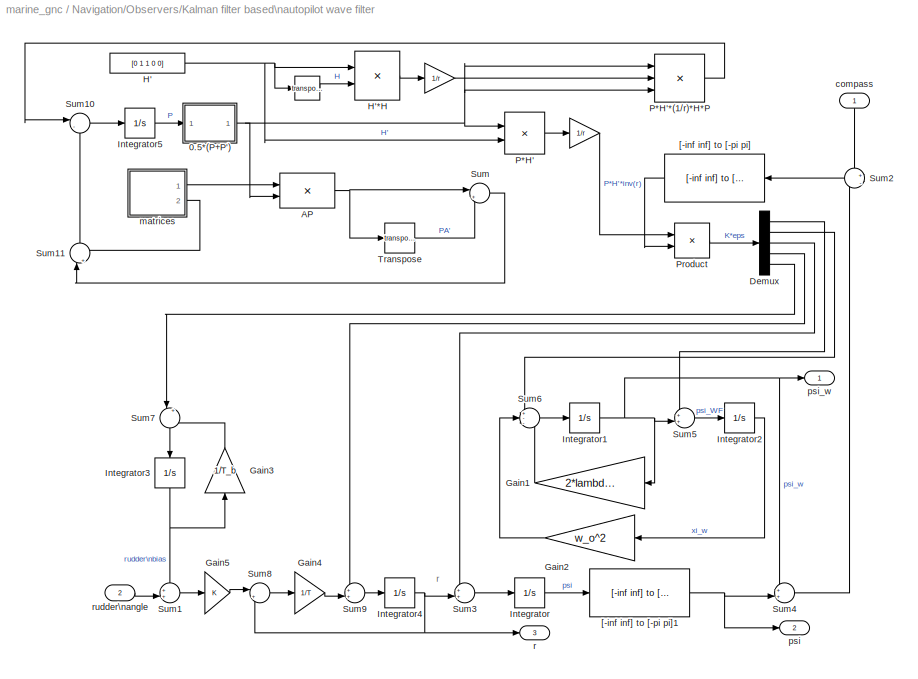
BLOCK [SubSystem] Navigation/Observers/Kalman filter based\nautopilot wave filter
  FunctionWithSeparateData = off
  MaskCallbackString = |||||||||
  MaskDisplay = disp('Only\\n Compass')
  MaskEnableString = on,on,on,on,on,on,on,on,on,on
  MaskHideContents = off
  MaskIconFrame = on
  MaskIconOpaque = off
  MaskIconRotate = none
  MaskIconUnits = autoscale
  MaskPortRotate = default
  MaskPromptString = Relative damping ratio of wave spectrum: lambda|Peak frequency of wave spectrum: w_o (rad/s)|Bias time constant: T_b (s)|Nomoto gain constant: K (1/s)|Nomoto time constant: T (s)|Compass variance: r|Wave model variance: q1|Ship model variance: q2|Bias model variance: q3|Initial covariance matrix
  MaskStyleString = edit,edit,edit,edit,edit,edit,edit,edit,edit,edit
  MaskToolTipString = on,on,on,on,on,on,on,on,on,on
  MaskTunableValueString = on,on,on,on,on,on,on,on,on,on
  MaskValueString = 0.1|1.0|1000|0.1|100|1|100|0.01|0.01|1*eye(5)
  MaskVariables = lambda=@1;w_o=@2;T_b=@3;K=@4;T=@5;r=@6;q1=@7;q2=@8;q3=@9;P0=@10;
  MaskVisibilityString = on,on,on,on,on,on,on,on,on,on
  MinAlgLoopOccurrences = off
  Opaque = off
  Ports = [2, 3]
  PropExecContextOutsideSubsystem = off
  RTWSystemCode = Auto
  RequestExecContextInheritance = off
  SID = 1016
BLOCK [Math] Navigation/Observers/Kalman filter based\nautopilot wave filter/  
  Operator = transpose
  OutDataType = sfix(16)
  OutScaling = 2^0
  Ports = [1, 1]
  SID = 1019
BLOCK [Gain] Navigation/Observers/Kalman filter based\nautopilot wave filter/    
  Gain = 1/r
  OutDataType = sfix(16)
  OutScaling = 2^0
  ParameterDataType = sfix(16)
  ParameterScaling = 2^0
  SID = 1020
BLOCK [Gain] Navigation/Observers/Kalman filter based\nautopilot wave filter/     
  Gain = 1/r
  OutDataType = sfix(16)
  OutScaling = 2^0
  ParameterDataType = sfix(16)
  ParameterScaling = 2^0
  SID = 1021
BLOCK [SubSystem] Navigation/Observers/Kalman filter based\nautopilot wave filter/0.5*(P+P')
  FunctionWithSeparateData = off
  MaskHideContents = off
  MaskIconFrame = on
  MaskIconOpaque = on
  MaskIconRotate = none
  MaskIconUnits = autoscale
  MaskPortRotate = default
  MinAlgLoopOccurrences = off
  Opaque = off
  Ports = [1, 1]
  PropExecContextOutsideSubsystem = off
  RTWSystemCode = Auto
  RequestExecContextInheritance = off
  SID = 1022
BLOCK [Math] Navigation/Observers/Kalman filter based\nautopilot wave filter/0.5*(P+P')/    
  Operator = transpose
  OutDataType = sfix(16)
  OutScaling = 2^0
  Ports = [1, 1]
  SID = 1024
BLOCK [Gain] Navigation/Observers/Kalman filter based\nautopilot wave filter/0.5*(P+P')/Gain6
  Gain = 0.5
  OutDataType = sfix(16)
  OutScaling = 2^0
  ParameterDataType = sfix(16)
  ParameterScaling = 2^0
  SID = 1025
BLOCK [Inport] Navigation/Observers/Kalman filter based\nautopilot wave filter/0.5*(P+P')/P
  IconDisplay = Port number
  OutDataType = sfix(16)
  OutScaling = 2^0
  SID = 1023
BLOCK [Outport] Navigation/Observers/Kalman filter based\nautopilot wave filter/0.5*(P+P')/P=P'
  IconDisplay = Port number
  OutDataType = sfix(16)
  OutScaling = 2^0
  SID = 1027
BLOCK [Sum] Navigation/Observers/Kalman filter based\nautopilot wave filter/0.5*(P+P')/Sum12
  IconShape = round
  InputSameDT = off
  Inputs = |++
  OutDataType = sfix(16)
  OutDataTypeMode = Inherit via internal rule
  OutDataTypeStr = Inherit: Inherit via internal rule
  OutScaling = 2^0
  Ports = [2, 1]
  SID = 1026
BLOCK [Product] Navigation/Observers/Kalman filter based\nautopilot wave filter/AP
  InputSameDT = off
  Multiplication = Matrix(*)
  OutDataType = sfix(16)
  OutScaling = 2^0
  Ports = [2, 1]
  RndMeth = Floor
  SID = 1028
BLOCK [Demux] Navigation/Observers/Kalman filter based\nautopilot wave filter/Demux
  Outputs = 5
  Ports = [1, 5]
  SID = 1029
BLOCK [Gain] Navigation/Observers/Kalman filter based\nautopilot wave filter/Gain1
  Gain = 2*lambda*w_o
  OutDataType = sfix(16)
  OutScaling = 2^0
  ParameterDataType = sfix(16)
  ParameterScaling = 2^0
  SID = 1030
BLOCK [Gain] Navigation/Observers/Kalman filter based\nautopilot wave filter/Gain2
  Gain = w_o^2
  OutDataType = sfix(16)
  OutScaling = 2^0
  ParameterDataType = sfix(16)
  ParameterScaling = 2^0
  SID = 1031
BLOCK [Gain] Navigation/Observers/Kalman filter based\nautopilot wave filter/Gain3
  Gain = 1/T_b
  OutDataType = sfix(16)
  OutScaling = 2^0
  ParameterDataType = sfix(16)
  ParameterScaling = 2^0
  SID = 1032
BLOCK [Gain] Navigation/Observers/Kalman filter based\nautopilot wave filter/Gain4
  Gain = 1/T
  OutDataType = sfix(16)
  OutScaling = 2^0
  ParameterDataType = sfix(16)
  ParameterScaling = 2^0
  SID = 1033
BLOCK [Gain] Navigation/Observers/Kalman filter based\nautopilot wave filter/Gain5
  Gain = K
  OutDataType = sfix(16)
  OutScaling = 2^0
  ParameterDataType = sfix(16)
  ParameterScaling = 2^0
  SID = 1034
BLOCK [Constant] Navigation/Observers/Kalman filter based\nautopilot wave filter/H'
  OutDataType = sfix(16)
  OutScaling = 2^0
  SID = 1035
  Value = [0 1 1 0 0]
BLOCK [Product] Navigation/Observers/Kalman filter based\nautopilot wave filter/H'*H
  InputSameDT = off
  Multiplication = Matrix(*)
  OutDataType = sfix(16)
  OutScaling = 2^0
  Ports = [2, 1]
  RndMeth = Floor
  SID = 1036
BLOCK [Integrator] Navigation/Observers/Kalman filter based\nautopilot wave filter/Integrator
  Ports = [1, 1]
  SID = 1037
BLOCK [Integrator] Navigation/Observers/Kalman filter based\nautopilot wave filter/Integrator1
  Ports = [1, 1]
  SID = 1038
BLOCK [Integrator] Navigation/Observers/Kalman filter based\nautopilot wave filter/Integrator2
  Ports = [1, 1]
  SID = 1039
BLOCK [Integrator] Navigation/Observers/Kalman filter based\nautopilot wave filter/Integrator3
  Ports = [1, 1]
  SID = 1040
BLOCK [Integrator] Navigation/Observers/Kalman filter based\nautopilot wave filter/Integrator4
  Ports = [1, 1]
  SID = 1041
BLOCK [Integrator] Navigation/Observers/Kalman filter based\nautopilot wave filter/Integrator5
  InitialCondition = P0
  Ports = [1, 1]
  SID = 1042
BLOCK [Product] Navigation/Observers/Kalman filter based\nautopilot wave filter/P*H'
  InputSameDT = off
  Inputs = **
  Multiplication = Matrix(*)
  OutDataType = sfix(16)
  OutScaling = 2^0
  Ports = [2, 1]
  RndMeth = Floor
  SID = 1043
BLOCK [Product] Navigation/Observers/Kalman filter based\nautopilot wave filter/P*H'*(1//r)*H*P
  InputSameDT = off
  Inputs = ***
  Multiplication = Matrix(*)
  OutDataType = sfix(16)
  OutScaling = 2^0
  Ports = [3, 1]
  RndMeth = Floor
  SID = 1044
BLOCK [Product] Navigation/Observers/Kalman filter based\nautopilot wave filter/Product
  InputSameDT = off
  OutDataType = sfix(16)
  OutScaling = 2^0
  Ports = [2, 1]
  RndMeth = Floor
  SID = 1045
BLOCK [Sum] Navigation/Observers/Kalman filter based\nautopilot wave filter/Sum
  IconShape = round
  InputSameDT = off
  Inputs = |++
  OutDataType = sfix(16)
  OutDataTypeMode = Inherit via internal rule
  OutDataTypeStr = Inherit: Inherit via internal rule
  OutScaling = 2^0
  Ports = [2, 1]
  SID = 1046
BLOCK [Sum] Navigation/Observers/Kalman filter based\nautopilot wave filter/Sum1
  IconShape = round
  Inputs = ++|
  OutDataType = sfix(16)
  OutScaling = 2^0
  Ports = [2, 1]
  SID = 1047
BLOCK [Sum] Navigation/Observers/Kalman filter based\nautopilot wave filter/Sum10
  IconShape = round
  InputSameDT = off
  Inputs = |-+
  OutDataType = sfix(16)
  OutDataTypeMode = Inherit via internal rule
  OutDataTypeStr = Inherit: Inherit via internal rule
  OutScaling = 2^0
  Ports = [2, 1]
  SID = 1048
BLOCK [Sum] Navigation/Observers/Kalman filter based\nautopilot wave filter/Sum11
  IconShape = round
  InputSameDT = off
  Inputs = |++
  OutDataType = sfix(16)
  OutDataTypeMode = Inherit via internal rule
  OutDataTypeStr = Inherit: Inherit via internal rule
  OutScaling = 2^0
  Ports = [2, 1]
  SID = 1049
BLOCK [Sum] Navigation/Observers/Kalman filter based\nautopilot wave filter/Sum2
  IconShape = round
  Inputs = +|-
  OutDataType = sfix(16)
  OutScaling = 2^0
  Ports = [2, 1]
  SID = 1050
BLOCK [Sum] Navigation/Observers/Kalman filter based\nautopilot wave filter/Sum3
  IconShape = round
  Inputs = ++|
  OutDataType = sfix(16)
  OutScaling = 2^0
  Ports = [2, 1]
  SID = 1051
BLOCK [Sum] Navigation/Observers/Kalman filter based\nautopilot wave filter/Sum4
  IconShape = round
  Inputs = ++|
  OutDataType = sfix(16)
  OutScaling = 2^0
  Ports = [2, 1]
  SID = 1052
BLOCK [Sum] Navigation/Observers/Kalman filter based\nautopilot wave filter/Sum5
  IconShape = round
  Inputs = ++|
  OutDataType = sfix(16)
  OutScaling = 2^0
  Ports = [2, 1]
  SID = 1053
BLOCK [Sum] Navigation/Observers/Kalman filter based\nautopilot wave filter/Sum6
  IconShape = round
  Inputs = +--
  OutDataType = sfix(16)
  OutScaling = 2^0
  Ports = [3, 1]
  SID = 1054
BLOCK [Sum] Navigation/Observers/Kalman filter based\nautopilot wave filter/Sum7
  IconShape = round
  Inputs = |+-
  OutDataType = sfix(16)
  OutScaling = 2^0
  Ports = [2, 1]
  SID = 1055
BLOCK [Sum] Navigation/Observers/Kalman filter based\nautopilot wave filter/Sum8
  IconShape = round
  Inputs = |+-
  OutDataType = sfix(16)
  OutScaling = 2^0
  Ports = [2, 1]
  SID = 1056
BLOCK [Sum] Navigation/Observers/Kalman filter based\nautopilot wave filter/Sum9
  IconShape = round
  Inputs = ++|
  OutDataType = sfix(16)
  OutScaling = 2^0
  Ports = [2, 1]
  SID = 1057
BLOCK [Math] Navigation/Observers/Kalman filter based\nautopilot wave filter/Transpose
  Operator = transpose
  OutDataType = sfix(16)
  OutScaling = 2^0
  Ports = [1, 1]
  SID = 1058
BLOCK [Reference] Navigation/Observers/Kalman filter based\nautopilot wave filter/[-inf inf] to [-pi pi]  REF=marine_gnc/Utilities/Math Operations/[-inf inf] to [-pi pi]  (lib defined in mdl_10d96c221ba8, mdl_45f1105420c6)
  Ports = [1, 1]
  SID = 1059
  ShowPortLabels = on
  SourceBlock = marine_gnc/Utilities/Math Operations/[-inf inf] to [-pi pi]
  SourceType = [-inf inf] to [-pi pi]
BLOCK [Reference] Navigation/Observers/Kalman filter based\nautopilot wave filter/[-inf inf] to [-pi pi]1  REF=marine_gnc/Utilities/Math Operations/[-inf inf] to [-pi pi]  (lib defined in mdl_10d96c221ba8, mdl_45f1105420c6)
  Ports = [1, 1]
  SID = 1060
  ShowPortLabels = on
  SourceBlock = marine_gnc/Utilities/Math Operations/[-inf inf] to [-pi pi]
  SourceType = [-inf inf] to [-pi pi]
BLOCK [Inport] Navigation/Observers/Kalman filter based\nautopilot wave filter/compass
  IconDisplay = Port number
  OutDataType = sfix(16)
  OutScaling = 2^0
  SID = 1017
BLOCK [SubSystem] Navigation/Observers/Kalman filter based\nautopilot wave filter/matrices
  FunctionWithSeparateData = off
  MaskHideContents = off
  MinAlgLoopOccurrences = off
  Opaque = off
  Ports = [0, 2]
  PropExecContextOutsideSubsystem = off
  RTWSystemCode = Auto
  RequestExecContextInheritance = off
  SID = 1061
BLOCK [Outport] Navigation/Observers/Kalman filter based\nautopilot wave filter/matrices/A
  IconDisplay = Port number
  OutDataType = sfix(16)
  OutScaling = 2^0
  SID = 1064
BLOCK [Constant] Navigation/Observers/Kalman filter based\nautopilot wave filter/matrices/A-matrix
  OutDataType = sfix(16)
  OutScaling = 2^0
  SID = 1062
  Value = [0 1 0 0 0;  -w_o^2  -2*w_o*lambda 0 0 0; 0 0 0 1 0; 0 0 0 -1/T -K/T; 0 0 0 0 -1/T_b]
BLOCK [Outport] Navigation/Observers/Kalman filter based\nautopilot wave filter/matrices/EQE'
  IconDisplay = Port number
  OutDataType = sfix(16)
  OutScaling = 2^0
  Port = 2
  SID = 1065
BLOCK [Constant] Navigation/Observers/Kalman filter based\nautopilot wave filter/matrices/EQE'-matrix
  OutDataType = sfix(16)
  OutScaling = 2^0
  SID = 1063
  Value = [0 0 0 0 0; 0 q1 0 0 0; 0 0 0 0 0; 0 0 0 q2 0; 0 0 0 0 q3]
BLOCK [Outport] Navigation/Observers/Kalman filter based\nautopilot wave filter/psi
  IconDisplay = Port number
  OutDataType = sfix(16)
  OutScaling = 2^0
  Port = 2
  SID = 1067
BLOCK [Outport] Navigation/Observers/Kalman filter based\nautopilot wave filter/psi_w
  IconDisplay = Port number
  OutDataType = sfix(16)
  OutScaling = 2^0
  SID = 1066
BLOCK [Outport] Navigation/Observers/Kalman filter based\nautopilot wave filter/r
  IconDisplay = Port number
  OutDataType = sfix(16)
  OutScaling = 2^0
  Port = 3
  SID = 1068
BLOCK [Inport] Navigation/Observers/Kalman filter based\nautopilot wave filter/rudder\nangle
  IconDisplay = Port number
  OutDataType = sfix(16)
  OutScaling = 2^0
  Port = 2
  SID = 1018
BLOCK [SubSystem] Navigation/Observers/Passive DP wave filter
  FunctionWithSeparateData = off
  MaskCallbackString = |||||||
  MaskDisplay = disp('GPS and\\n Gyro')
  MaskEnableString = on,on,on,on,on,on,on,on
  MaskHideContents = off
  MaskIconFrame = on
  MaskIconOpaque = off
  MaskIconRotate = none
  MaskIconUnits = autoscale
  MaskPortRotate = default
  MaskPromptString = Relative damping ratio of wave spectrum: lambda|Peak frequency of wave spectrum: w_o (rad/s)|Velocity observer gain: K4|Bias observer gain: K3|Filter cut-off frequency: w_c (rad/s)|Bias time constants: T_b (s)|system inertia matrix: M|linear damping matrix: D
  MaskStyleString = edit,edit,edit,edit,edit,edit,edit,edit
  MaskToolTipString = on,on,on,on,on,on,on,on
  MaskTunableValueString = on,on,on,on,on,on,on,on
  MaskValueString = 0.1*diag([1 1 1])|diag([0.8 0.8 0.8])|0.1*diag([1 1 0.1])|0.1*diag([1 1 0.1])|1.3*diag([0.8 0.8 0.8])|diag([100 100 100])|diag([1 1 1])|diag([1 1 1])
  MaskVariables = lambda=@1;w_o=@2;K4=@3;K3=@4;w_c=@5;T_b=@6;M=@7;D=@8;
  MaskVisibilityString = on,on,on,on,on,on,on,on
  MinAlgLoopOccurrences = off
  Opaque = off
  Ports = [2, 3]
  PropExecContextOutsideSubsystem = off
  RTWSystemCode = Auto
  RequestExecContextInheritance = off
  SID = 1069
BLOCK [Demux] Navigation/Observers/Passive DP wave filter/Demux
  Outputs = 3
  Ports = [1, 3]
  SID = 1072
BLOCK [Demux] Navigation/Observers/Passive DP wave filter/Demux1
  Outputs = 3
  Ports = [1, 3]
  SID = 1073
BLOCK [Gain] Navigation/Observers/Passive DP wave filter/Gain1
  Gain = 2*lambda*w_o
  Multiplication = Matrix(K*u)
  OutDataType = sfix(16)
  OutScaling = 2^0
  ParameterDataType = sfix(16)
  ParameterScaling = 2^0
  SID = 1074
BLOCK [Gain] Navigation/Observers/Passive DP wave filter/Gain2
  Gain = w_o*w_o
  Multiplication = Matrix(K*u)
  OutDataType = sfix(16)
  OutScaling = 2^0
  ParameterDataType = sfix(16)
  ParameterScaling = 2^0
  SID = 1075
BLOCK [Gain] Navigation/Observers/Passive DP wave filter/Gain3
  Gain = inv(M)
  Multiplication = Matrix(K*u)
  OutDataType = sfix(16)
  OutScaling = 2^0
  ParameterDataType = sfix(16)
  ParameterScaling = 2^0
  SID = 1076
BLOCK [Gain] Navigation/Observers/Passive DP wave filter/Gain6
  Gain = D
  Multiplication = Matrix(K*u)
  OutDataType = sfix(16)
  OutScaling = 2^0
  ParameterDataType = sfix(16)
  ParameterScaling = 2^0
  SID = 1077
BLOCK [Integrator] Navigation/Observers/Passive DP wave filter/Integrator
  Ports = [1, 1]
  SID = 1078
BLOCK [Integrator] Navigation/Observers/Passive DP wave filter/Integrator1
  Ports = [1, 1]
  SID = 1079
BLOCK [Integrator] Navigation/Observers/Passive DP wave filter/Integrator2
  Ports = [1, 1]
  SID = 1080
BLOCK [Integrator] Navigation/Observers/Passive DP wave filter/Integrator3
  Ports = [1, 1]
  SID = 1081
BLOCK [Integrator] Navigation/Observers/Passive DP wave filter/Integrator4
  Ports = [1, 1]
  SID = 1082
BLOCK [Gain] Navigation/Observers/Passive DP wave filter/K11
  Gain = -2*(eye(3)-lambda)*diag([w_c(1,1)/w_o(1,1) w_c(2,2)/w_o(2,2) w_c(3,3)/w_o(3,3)])
  Multiplication = Matrix(K*u)
  OutDataType = sfix(16)
  OutScaling = 2^0
  ParameterDataType = sfix(16)
  ParameterScaling = 2^0
  SID = 1083
BLOCK [Gain] Navigation/Observers/Passive DP wave filter/K12
  Gain = 2*w_o*(eye(3)-lambda)
  Multiplication = Matrix(K*u)
  OutDataType = sfix(16)
  OutScaling = 2^0
  ParameterDataType = sfix(16)
  ParameterScaling = 2^0
  SID = 1084
BLOCK [Gain] Navigation/Observers/Passive DP wave filter/K2
  Gain = w_c
  Multiplication = Matrix(K*u)
  OutDataType = sfix(16)
  OutScaling = 2^0
  ParameterDataType = sfix(16)
  ParameterScaling = 2^0
  SID = 1085
BLOCK [Gain] Navigation/Observers/Passive DP wave filter/K3
  Gain = K3
  Multiplication = Matrix(K*u)
  OutDataType = sfix(16)
  OutScaling = 2^0
  ParameterDataType = sfix(16)
  ParameterScaling = 2^0
  SID = 1086
BLOCK [Gain] Navigation/Observers/Passive DP wave filter/K4
  Gain = K4
  Multiplication = Matrix(K*u)
  OutDataType = sfix(16)
  OutScaling = 2^0
  ParameterDataType = sfix(16)
  ParameterScaling = 2^0
  SID = 1087
BLOCK [Mux] Navigation/Observers/Passive DP wave filter/Mux
  DisplayOption = bar
  Inputs = 3
  Ports = [3, 1]
  SID = 1088
BLOCK [Mux] Navigation/Observers/Passive DP wave filter/Mux1
  DisplayOption = bar
  Inputs = 3
  Ports = [3, 1]
  SID = 1089
BLOCK [Reference] Navigation/Observers/Passive DP wave filter/Rotation matrix\nin yaw 1  REF=marine_gnc/Models/ Kinematics/Rotation matrix\nin yaw   (lib defined in mdl_10d96c221ba8, mdl_45f1105420c6)
  Ports = [2, 1]
  SID = 1090
  ShowPortLabels = on
  SourceBlock = marine_gnc/Models/ Kinematics/Rotation matrix\nin yaw
  SourceType = Unknown
BLOCK [Selector] Navigation/Observers/Passive DP wave filter/Selector
  IndexOptions = Index vector (dialog)
  Indices = [3]
  InputPortWidth = 3
  OutputSizes = 1
  Ports = [1, 1]
  SID = 1091
BLOCK [Sum] Navigation/Observers/Passive DP wave filter/Sum1
  IconShape = round
  Inputs = ++|
  OutDataType = sfix(16)
  OutScaling = 2^0
  Ports = [2, 1]
  SID = 1092
BLOCK [Sum] Navigation/Observers/Passive DP wave filter/Sum2
  IconShape = round
  Inputs = +|-
  OutDataType = sfix(16)
  OutScaling = 2^0
  Ports = [2, 1]
  SID = 1093
BLOCK [Sum] Navigation/Observers/Passive DP wave filter/Sum3
  IconShape = round
  Inputs = ++|
  OutDataType = sfix(16)
  OutScaling = 2^0
  Ports = [2, 1]
  SID = 1094
BLOCK [Sum] Navigation/Observers/Passive DP wave filter/Sum4
  IconShape = round
  Inputs = ++|
  OutDataType = sfix(16)
  OutScaling = 2^0
  Ports = [2, 1]
  SID = 1095
BLOCK [Sum] Navigation/Observers/Passive DP wave filter/Sum5
  IconShape = round
  Inputs = ++|
  OutDataType = sfix(16)
  OutScaling = 2^0
  Ports = [2, 1]
  SID = 1096
BLOCK [Sum] Navigation/Observers/Passive DP wave filter/Sum6
  IconShape = round
  Inputs = +--
  OutDataType = sfix(16)
  OutScaling = 2^0
  Ports = [3, 1]
  SID = 1097
BLOCK [Sum] Navigation/Observers/Passive DP wave filter/Sum7
  IconShape = round
  Inputs = |+-
  OutDataType = sfix(16)
  OutScaling = 2^0
  Ports = [2, 1]
  SID = 1098
BLOCK [Sum] Navigation/Observers/Passive DP wave filter/Sum8
  IconShape = round
  Inputs = ++-
  OutDataType = sfix(16)
  OutScaling = 2^0
  Ports = [3, 1]
  SID = 1099
BLOCK [Reference] Navigation/Observers/Passive DP wave filter/Transposed rotation\n matrix in yaw  REF=marine_gnc/Models/ Kinematics/Transposed rotation\n matrix in yaw  (lib defined in mdl_10d96c221ba8, mdl_45f1105420c6)
  Ports = [2, 1]
  SID = 1100
  ShowPortLabels = on
  SourceBlock = marine_gnc/Models/ Kinematics/Transposed rotation\n matrix in yaw
  SourceType = Unknown
BLOCK [Reference] Navigation/Observers/Passive DP wave filter/Transposed rotation\n matrix in yaw1  REF=marine_gnc/Models/ Kinematics/Transposed rotation\n matrix in yaw  (lib defined in mdl_10d96c221ba8, mdl_45f1105420c6)
  Ports = [2, 1]
  SID = 1101
  ShowPortLabels = on
  SourceBlock = marine_gnc/Models/ Kinematics/Transposed rotation\n matrix in yaw
  SourceType = Unknown
BLOCK [Reference] Navigation/Observers/Passive DP wave filter/[-inf inf] to [-pi pi]  REF=marine_gnc/Utilities/Math Operations/[-inf inf] to [-pi pi]  (lib defined in mdl_10d96c221ba8, mdl_45f1105420c6)
  Ports = [1, 1]
  SID = 1102
  ShowPortLabels = on
  SourceBlock = marine_gnc/Utilities/Math Operations/[-inf inf] to [-pi pi]
  SourceType = [-inf inf] to [-pi pi]
BLOCK [Reference] Navigation/Observers/Passive DP wave filter/[-inf inf] to [-pi pi]1  REF=marine_gnc/Utilities/Math Operations/[-inf inf] to [-pi pi]  (lib defined in mdl_10d96c221ba8, mdl_45f1105420c6)
  Ports = [1, 1]
  SID = 1103
  ShowPortLabels = on
  SourceBlock = marine_gnc/Utilities/Math Operations/[-inf inf] to [-pi pi]
  SourceType = [-inf inf] to [-pi pi]
BLOCK [Outport] Navigation/Observers/Passive DP wave filter/eta
  IconDisplay = Port number
  OutDataType = sfix(16)
  OutScaling = 2^0
  Port = 2
  SID = 1106
BLOCK [Outport] Navigation/Observers/Passive DP wave filter/eta_w
  IconDisplay = Port number
  OutDataType = sfix(16)
  OutScaling = 2^0
  SID = 1105
BLOCK [Gain] Navigation/Observers/Passive DP wave filter/inv(T_b)
  Gain = diag([1/T_b(1,1) 1/T_b(2,2) 1/T_b(3,3)])
  Multiplication = Matrix(K*u)
  OutDataType = sfix(16)
  OutScaling = 2^0
  ParameterDataType = sfix(16)
  ParameterScaling = 2^0
  SID = 1104
BLOCK [Outport] Navigation/Observers/Passive DP wave filter/nu
  IconDisplay = Port number
  OutDataType = sfix(16)
  OutScaling = 2^0
  Port = 3
  SID = 1107
BLOCK [Inport] Navigation/Observers/Passive DP wave filter/tau
  IconDisplay = Port number
  OutDataType = sfix(16)
  OutScaling = 2^0
  Port = 2
  SID = 1071
BLOCK [Inport] Navigation/Observers/Passive DP wave filter/y
  IconDisplay = Port number
  OutDataType = sfix(16)
  OutScaling = 2^0
  SID = 1070
BLOCK [SubSystem] Navigation/Observers/Passive autopilot wave filter 1
  FunctionWithSeparateData = off
  MaskCallbackString = |||||||
  MaskDisplay = disp('Only\\n Compass')
  MaskEnableString = on,on,on,on,on,on,on,on
  MaskHideContents = off
  MaskIconFrame = on
  MaskIconOpaque = off
  MaskIconRotate = none
  MaskIconUnits = autoscale
  MaskPortRotate = default
  MaskPromptString = Relative damping ratio of wave spectrum: lambda|Peak frequency of wave spectrum: w_o (rad/s)|Yaw rate observer gain: K4|Bias observer gain: K5|Filter cut-off frequency: w_c (rad/s)|Nomoto time constant: T (s)|Nomoto gain: K (1/s)|Rudder bias time constant: T_b (s)
  MaskStyleString = edit,edit,edit,edit,edit,edit,edit,edit
  MaskToolTipString = on,on,on,on,on,on,on,on
  MaskTunableValueString = on,on,on,on,on,on,on,on
  MaskType = wave spectrum damping ratio
  MaskValueString = 0.1|1.2|0.1|0.01|1.3|100|1|100
  MaskVariables = lambda=@1;w_o=@2;K4=@3;K5=@4;w_c=@5;T=@6;K=@7;T_b=@8;
  MaskVisibilityString = on,on,on,on,on,on,on,on
  MinAlgLoopOccurrences = off
  Opaque = off
  Ports = [2, 3]
  PropExecContextOutsideSubsystem = off
  RTWSystemCode = Auto
  RequestExecContextInheritance = off
  SID = 1108
BLOCK [Gain] Navigation/Observers/Passive autopilot wave filter 1/Gain1
  Gain = 2*lambda*w_o
  OutDataType = sfix(16)
  OutScaling = 2^0
  ParameterDataType = sfix(16)
  ParameterScaling = 2^0
  SID = 1111
BLOCK [Gain] Navigation/Observers/Passive autopilot wave filter 1/Gain2
  Gain = w_o^2
  OutDataType = sfix(16)
  OutScaling = 2^0
  ParameterDataType = sfix(16)
  ParameterScaling = 2^0
  SID = 1112
BLOCK [Gain] Navigation/Observers/Passive autopilot wave filter 1/Gain3
  Gain = 1/T_b
  OutDataType = sfix(16)
  OutScaling = 2^0
  ParameterDataType = sfix(16)
  ParameterScaling = 2^0
  SID = 1113
BLOCK [Gain] Navigation/Observers/Passive autopilot wave filter 1/Gain4
  Gain = 1/T
  OutDataType = sfix(16)
  OutScaling = 2^0
  ParameterDataType = sfix(16)
  ParameterScaling = 2^0
  SID = 1114
BLOCK [Gain] Navigation/Observers/Passive autopilot wave filter 1/Gain5
  Gain = K
  OutDataType = sfix(16)
  OutScaling = 2^0
  ParameterDataType = sfix(16)
  ParameterScaling = 2^0
  SID = 1115
BLOCK [Integrator] Navigation/Observers/Passive autopilot wave filter 1/Integrator
  Ports = [1, 1]
  SID = 1116
BLOCK [Integrator] Navigation/Observers/Passive autopilot wave filter 1/Integrator1
  Ports = [1, 1]
  SID = 1117
BLOCK [Integrator] Navigation/Observers/Passive autopilot wave filter 1/Integrator2
  Ports = [1, 1]
  SID = 1118
BLOCK [Integrator] Navigation/Observers/Passive autopilot wave filter 1/Integrator3
  Ports = [1, 1]
  SID = 1119
BLOCK [Integrator] Navigation/Observers/Passive autopilot wave filter 1/Integrator4
  Ports = [1, 1]
  SID = 1120
BLOCK [Gain] Navigation/Observers/Passive autopilot wave filter 1/K1
  Gain = -2*w_c*(1.0-lambda)/w_o
  OutDataType = sfix(16)
  OutScaling = 2^0
  ParameterDataType = sfix(16)
  ParameterScaling = 2^0
  SID = 1121
BLOCK [Gain] Navigation/Observers/Passive autopilot wave filter 1/K2
  Gain = 2*w_o*(1.0-lambda)
  OutDataType = sfix(16)
  OutScaling = 2^0
  ParameterDataType = sfix(16)
  ParameterScaling = 2^0
  SID = 1122
BLOCK [Gain] Navigation/Observers/Passive autopilot wave filter 1/K3
  Gain = w_c
  OutDataType = sfix(16)
  OutScaling = 2^0
  ParameterDataType = sfix(16)
  ParameterScaling = 2^0
  SID = 1123
BLOCK [Gain] Navigation/Observers/Passive autopilot wave filter 1/K4
  Gain = K4
  OutDataType = sfix(16)
  OutScaling = 2^0
  ParameterDataType = sfix(16)
  ParameterScaling = 2^0
  SID = 1124
BLOCK [Gain] Navigation/Observers/Passive autopilot wave filter 1/K5
  Gain = K5
  OutDataType = sfix(16)
  OutScaling = 2^0
  ParameterDataType = sfix(16)
  ParameterScaling = 2^0
  SID = 1125
BLOCK [Sum] Navigation/Observers/Passive autopilot wave filter 1/Sum1
  IconShape = round
  Inputs = -+|
  OutDataType = sfix(16)
  OutScaling = 2^0
  Ports = [2, 1]
  SID = 1126
BLOCK [Sum] Navigation/Observers/Passive autopilot wave filter 1/Sum2
  IconShape = round
  Inputs = +|-
  OutDataType = sfix(16)
  OutScaling = 2^0
  Ports = [2, 1]
  SID = 1127
BLOCK [Sum] Navigation/Observers/Passive autopilot wave filter 1/Sum3
  IconShape = round
  Inputs = ++|
  OutDataType = sfix(16)
  OutScaling = 2^0
  Ports = [2, 1]
  SID = 1128
BLOCK [Sum] Navigation/Observers/Passive autopilot wave filter 1/Sum4
  IconShape = round
  Inputs = ++|
  OutDataType = sfix(16)
  OutScaling = 2^0
  Ports = [2, 1]
  SID = 1129
BLOCK [Sum] Navigation/Observers/Passive autopilot wave filter 1/Sum5
  IconShape = round
  Inputs = ++|
  OutDataType = sfix(16)
  OutScaling = 2^0
  Ports = [2, 1]
  SID = 1130
BLOCK [Sum] Navigation/Observers/Passive autopilot wave filter 1/Sum6
  IconShape = round
  Inputs = +--
  OutDataType = sfix(16)
  OutScaling = 2^0
  Ports = [3, 1]
  SID = 1131
BLOCK [Sum] Navigation/Observers/Passive autopilot wave filter 1/Sum7
  IconShape = round
  Inputs = |+-
  OutDataType = sfix(16)
  OutScaling = 2^0
  Ports = [2, 1]
  SID = 1132
BLOCK [Sum] Navigation/Observers/Passive autopilot wave filter 1/Sum8
  IconShape = round
  Inputs = |+-
  OutDataType = sfix(16)
  OutScaling = 2^0
  Ports = [2, 1]
  SID = 1133
BLOCK [Sum] Navigation/Observers/Passive autopilot wave filter 1/Sum9
  IconShape = round
  Inputs = ++|
  OutDataType = sfix(16)
  OutScaling = 2^0
  Ports = [2, 1]
  SID = 1134
BLOCK [Reference] Navigation/Observers/Passive autopilot wave filter 1/[-inf inf] to [-pi pi]  REF=marine_gnc/Utilities/Math Operations/[-inf inf] to [-pi pi]  (lib defined in mdl_10d96c221ba8, mdl_45f1105420c6)
  Ports = [1, 1]
  SID = 1135
  ShowPortLabels = on
  SourceBlock = marine_gnc/Utilities/Math Operations/[-inf inf] to [-pi pi]
  SourceType = [-inf inf] to [-pi pi]
BLOCK [Reference] Navigation/Observers/Passive autopilot wave filter 1/[-inf inf] to [-pi pi]1  REF=marine_gnc/Utilities/Math Operations/[-inf inf] to [-pi pi]  (lib defined in mdl_10d96c221ba8, mdl_45f1105420c6)
  Ports = [1, 1]
  SID = 1136
  ShowPortLabels = on
  SourceBlock = marine_gnc/Utilities/Math Operations/[-inf inf] to [-pi pi]
  SourceType = [-inf inf] to [-pi pi]
BLOCK [Inport] Navigation/Observers/Passive autopilot wave filter 1/compass
  IconDisplay = Port number
  OutDataType = sfix(16)
  OutScaling = 2^0
  SID = 1109
BLOCK [Outport] Navigation/Observers/Passive autopilot wave filter 1/psi
  IconDisplay = Port number
  OutDataType = sfix(16)
  OutScaling = 2^0
  Port = 2
  SID = 1138
BLOCK [Outport] Navigation/Observers/Passive autopilot wave filter 1/psi_w
  IconDisplay = Port number
  OutDataType = sfix(16)
  OutScaling = 2^0
  SID = 1137
BLOCK [Outport] Navigation/Observers/Passive autopilot wave filter 1/r
  IconDisplay = Port number
  OutDataType = sfix(16)
  OutScaling = 2^0
  Port = 3
  SID = 1139
BLOCK [Inport] Navigation/Observers/Passive autopilot wave filter 1/rudder\nangle
  IconDisplay = Port number
  OutDataType = sfix(16)
  OutScaling = 2^0
  Port = 2
  SID = 1110
BLOCK [SubSystem] Navigation/Observers/Passive autopilot wave filter 2
  FunctionWithSeparateData = off
  MaskCallbackString = |||||
  MaskDisplay = disp('Compass\\n and Gyro')
  MaskEnableString = on,on,on,on,on,on
  MaskHideContents = off
  MaskIconFrame = on
  MaskIconOpaque = off
  MaskIconRotate = none
  MaskIconUnits = autoscale
  MaskPortRotate = default
  MaskPromptString = Relative damping ratio of wave spectrum: lambda|Peak frequency of wave spectrum: w_o (rad/s)|Bias observer gain: K4|Relative damping ratio in gyro notch filter: zeta_n|Filter cut-off frequency: w_c (rad/s)|Bias time constant: T_b (s)
  MaskStyleString = edit,edit,edit,edit,edit,edit
  MaskToolTipString = on,on,on,on,on,on
  MaskTunableValueString = on,on,on,on,on,on
  MaskType = wave spectrum damping ratio
  MaskValueString = 0.1|1.2|0.1|0.01|2|100
  MaskVariables = lambda=@1;w_o=@2;K4=@3;zeta_n=@4;w_c=@5;T_b=@6;
  MaskVisibilityString = on,on,on,on,on,on
  MinAlgLoopOccurrences = off
  Opaque = off
  Ports = [2, 3]
  PropExecContextOutsideSubsystem = off
  RTWSystemCode = Auto
  RequestExecContextInheritance = off
  SID = 1140
BLOCK [Gain] Navigation/Observers/Passive autopilot wave filter 2/Gain1
  Gain = 2*lambda*w_o
  OutDataType = sfix(16)
  OutScaling = 2^0
  ParameterDataType = sfix(16)
  ParameterScaling = 2^0
  SID = 1143
BLOCK [Gain] Navigation/Observers/Passive autopilot wave filter 2/Gain2
  Gain = w_o^2
  OutDataType = sfix(16)
  OutScaling = 2^0
  ParameterDataType = sfix(16)
  ParameterScaling = 2^0
  SID = 1144
BLOCK [Gain] Navigation/Observers/Passive autopilot wave filter 2/Gain3
  Gain = 1/T_b
  OutDataType = sfix(16)
  OutScaling = 2^0
  ParameterDataType = sfix(16)
  ParameterScaling = 2^0
  SID = 1145
BLOCK [Integrator] Navigation/Observers/Passive autopilot wave filter 2/Integrator
  Ports = [1, 1]
  SID = 1146
BLOCK [Integrator] Navigation/Observers/Passive autopilot wave filter 2/Integrator1
  Ports = [1, 1]
  SID = 1147
BLOCK [Integrator] Navigation/Observers/Passive autopilot wave filter 2/Integrator2
  Ports = [1, 1]
  SID = 1148
BLOCK [Integrator] Navigation/Observers/Passive autopilot wave filter 2/Integrator3
  Ports = [1, 1]
  SID = 1149
BLOCK [Gain] Navigation/Observers/Passive autopilot wave filter 2/K1
  Gain = -2*w_c*(1.0-lambda)/w_o
  OutDataType = sfix(16)
  OutScaling = 2^0
  ParameterDataType = sfix(16)
  ParameterScaling = 2^0
  SID = 1150
BLOCK [Gain] Navigation/Observers/Passive autopilot wave filter 2/K2
  Gain = 2*w_o*(1.0-lambda)
  OutDataType = sfix(16)
  OutScaling = 2^0
  ParameterDataType = sfix(16)
  ParameterScaling = 2^0
  SID = 1151
BLOCK [Gain] Navigation/Observers/Passive autopilot wave filter 2/K3
  Gain = w_c
  OutDataType = sfix(16)
  OutScaling = 2^0
  ParameterDataType = sfix(16)
  ParameterScaling = 2^0
  SID = 1152
BLOCK [Gain] Navigation/Observers/Passive autopilot wave filter 2/K4
  Gain = K4
  OutDataType = sfix(16)
  OutScaling = 2^0
  ParameterDataType = sfix(16)
  ParameterScaling = 2^0
  SID = 1153
BLOCK [TransferFcn] Navigation/Observers/Passive autopilot wave filter 2/LP filter
  Denominator = [1 w_c]
  Numerator = [w_c]
  SID = 1154
BLOCK [TransferFcn] Navigation/Observers/Passive autopilot wave filter 2/Notch filter
  Denominator = [1 2*w_o w_o^2]
  Numerator = [1 2*zeta_n*w_o w_o*w_o]
  SID = 1155
BLOCK [Sum] Navigation/Observers/Passive autopilot wave filter 2/Sum1
  IconShape = round
  Inputs = ++|
  OutDataType = sfix(16)
  OutScaling = 2^0
  Ports = [2, 1]
  SID = 1156
BLOCK [Sum] Navigation/Observers/Passive autopilot wave filter 2/Sum2
  IconShape = round
  Inputs = +|-
  OutDataType = sfix(16)
  OutScaling = 2^0
  Ports = [2, 1]
  SID = 1157
BLOCK [Sum] Navigation/Observers/Passive autopilot wave filter 2/Sum3
  IconShape = round
  Inputs = ++|
  OutDataType = sfix(16)
  OutScaling = 2^0
  Ports = [2, 1]
  SID = 1158
BLOCK [Sum] Navigation/Observers/Passive autopilot wave filter 2/Sum4
  IconShape = round
  Inputs = ++|
  OutDataType = sfix(16)
  OutScaling = 2^0
  Ports = [2, 1]
  SID = 1159
BLOCK [Sum] Navigation/Observers/Passive autopilot wave filter 2/Sum5
  IconShape = round
  Inputs = ++|
  OutDataType = sfix(16)
  OutScaling = 2^0
  Ports = [2, 1]
  SID = 1160
BLOCK [Sum] Navigation/Observers/Passive autopilot wave filter 2/Sum6
  IconShape = round
  Inputs = +--
  OutDataType = sfix(16)
  OutScaling = 2^0
  Ports = [3, 1]
  SID = 1161
BLOCK [Sum] Navigation/Observers/Passive autopilot wave filter 2/Sum7
  IconShape = round
  Inputs = |+-
  OutDataType = sfix(16)
  OutScaling = 2^0
  Ports = [2, 1]
  SID = 1162
BLOCK [Reference] Navigation/Observers/Passive autopilot wave filter 2/[-inf inf] to [-pi pi]  REF=marine_gnc/Utilities/Math Operations/[-inf inf] to [-pi pi]  (lib defined in mdl_10d96c221ba8, mdl_45f1105420c6)
  Ports = [1, 1]
  SID = 1163
  ShowPortLabels = on
  SourceBlock = marine_gnc/Utilities/Math Operations/[-inf inf] to [-pi pi]
  SourceType = [-inf inf] to [-pi pi]
BLOCK [Reference] Navigation/Observers/Passive autopilot wave filter 2/[-inf inf] to [-pi pi]1  REF=marine_gnc/Utilities/Math Operations/[-inf inf] to [-pi pi]  (lib defined in mdl_10d96c221ba8, mdl_45f1105420c6)
  Ports = [1, 1]
  SID = 1164
  ShowPortLabels = on
  SourceBlock = marine_gnc/Utilities/Math Operations/[-inf inf] to [-pi pi]
  SourceType = [-inf inf] to [-pi pi]
BLOCK [Inport] Navigation/Observers/Passive autopilot wave filter 2/compass
  IconDisplay = Port number
  OutDataType = sfix(16)
  OutScaling = 2^0
  SID = 1141
BLOCK [Outport] Navigation/Observers/Passive autopilot wave filter 2/psi
  IconDisplay = Port number
  OutDataType = sfix(16)
  OutScaling = 2^0
  Port = 2
  SID = 1166
BLOCK [Outport] Navigation/Observers/Passive autopilot wave filter 2/psi_w
  IconDisplay = Port number
  OutDataType = sfix(16)
  OutScaling = 2^0
  SID = 1165
BLOCK [Outport] Navigation/Observers/Passive autopilot wave filter 2/r
  IconDisplay = Port number
  OutDataType = sfix(16)
  OutScaling = 2^0
  Port = 3
  SID = 1167
BLOCK [Inport] Navigation/Observers/Passive autopilot wave filter 2/rate gyro
  IconDisplay = Port number
  OutDataType = sfix(16)
  OutScaling = 2^0
  Port = 2
  SID = 1142
BLOCK [SubSystem] Navigation/Sensors 
  FunctionWithSeparateData = off
  MaskHideContents = off
  MinAlgLoopOccurrences = off
  Opaque = off
  Ports = []
  PropExecContextOutsideSubsystem = off
  RTWSystemCode = Auto
  RequestExecContextInheritance = off
  SID = 1168
BLOCK [SubSystem] Utilities
  FunctionWithSeparateData = off
  MaskHideContents = off
  MinAlgLoopOccurrences = off
  Opaque = off
  Ports = []
  PropExecContextOutsideSubsystem = off
  RTWSystemCode = Auto
  RequestExecContextInheritance = off
  SID = 1169
BLOCK [SubSystem] Utilities/Dynamics
  FunctionWithSeparateData = off
  MaskHideContents = off
  MinAlgLoopOccurrences = off
  Opaque = off
  Ports = []
  PropExecContextOutsideSubsystem = off
  RTWSystemCode = Auto
  RequestExecContextInheritance = off
  SID = 1170
BLOCK [SubSystem] Utilities/Dynamics/2nd order time constant
  FunctionWithSeparateData = off
  MaskDescription = Approximate 2nd order time constnant, implemented as a second order system with damping ratio 1 and eigenfrequency w = 1.5/T, where T is the time constant.
  MaskEnableString = on
  MaskHideContents = off
  MaskIconFrame = on
  MaskIconOpaque = on
  MaskIconRotate = none
  MaskIconUnits = autoscale
  MaskPortRotate = default
  MaskPromptString = Time constant [s]
  MaskStyleString = edit
  MaskToolTipString = on
  MaskTunableValueString = on
  MaskType = 2nd order time constant
  MaskValueString = 3
  MaskVariables = T=@1;
  MaskVisibilityString = on
  MinAlgLoopOccurrences = off
  Opaque = off
  Ports = [1, 1]
  PropExecContextOutsideSubsystem = off
  RTWSystemCode = Auto
  RequestExecContextInheritance = off
  SID = 1171
BLOCK [Inport] Utilities/Dynamics/2nd order time constant/In
  IconDisplay = Port number
  OutDataType = sfix(16)
  OutScaling = 2^0
  SID = 1172
BLOCK [Outport] Utilities/Dynamics/2nd order time constant/Out
  IconDisplay = Port number
  OutDataType = sfix(16)
  OutScaling = 2^0
  SID = 1174
BLOCK [TransferFcn] Utilities/Dynamics/2nd order time constant/Transfer Fcn1
  Denominator = [1/(1.5/T)^2 2/(1.5/T) 1]
  SID = 1173
BLOCK [SubSystem] Utilities/Math Operations
  FunctionWithSeparateData = off
  MaskHideContents = off
  MinAlgLoopOccurrences = off
  Opaque = off
  Ports = []
  PropExecContextOutsideSubsystem = off
  RTWSystemCode = Auto
  RequestExecContextInheritance = off
  SID = 1175
BLOCK [SubSystem] Utilities/Math Operations/Unit Conversion
  FunctionWithSeparateData = off
  MaskDescription = Block to convert units. If the input in is a vector, \nall the components are converted using the same conversion factor. \n\nCopyright (C) 2005 NTNU\nAuthor:  Tristan Perez \n
  MaskEnableString = on
  MaskHideContents = off
  MaskIconFrame = on
  MaskIconOpaque = on
  MaskIconRotate = none
  MaskIconUnits = autoscale
  MaskInitialization = if  in==1,\nk=pi/180;\nelseif  in==2,\nk=180/pi;\nelseif in==3,\nk = .5145;\nelseif in ==4,\nk = 1/.5145;\n\nend
  MaskPortRotate = default
  MaskPromptString = Convert
  MaskStyleString = popup(deg2rad|rad2deg|kt2m/sec|m/sec2 kt)
  MaskToolTipString = on
  MaskTunableValueString = on
  MaskType = Unit Conversion
  MaskValueString = deg2rad
  MaskVariables = in=@1;
  MaskVisibilityString = on
  MinAlgLoopOccurrences = off
  Opaque = off
  Ports = [1, 1]
  PropExecContextOutsideSubsystem = off
  RTWSystemCode = Auto
  RequestExecContextInheritance = off
  SID = 1176
BLOCK [Gain] Utilities/Math Operations/Unit Conversion/Gain
  Gain = k
  OutDataType = sfix(16)
  OutScaling = 2^0
  ParameterDataType = sfix(16)
  ParameterScaling = 2^0
  SID = 1178
BLOCK [Inport] Utilities/Math Operations/Unit Conversion/In
  IconDisplay = Port number
  OutDataType = sfix(16)
  OutScaling = 2^0
  SID = 1177
BLOCK [Outport] Utilities/Math Operations/Unit Conversion/Out
  IconDisplay = Port number
  OutDataType = sfix(16)
  OutScaling = 2^0
  SID = 1179
BLOCK [SubSystem] Utilities/Math Operations/[-inf inf] to [-pi pi]
  FunctionWithSeparateData = off
  MaskDescription = Converts an angle in rad to (-pi pi)
  MaskHideContents = off
  MaskIconFrame = on
  MaskIconOpaque = on
  MaskIconRotate = none
  MaskIconUnits = autoscale
  MaskPortRotate = default
  MaskType = [-inf inf] to [-pi pi]
  MinAlgLoopOccurrences = off
  Opaque = off
  Ports = [1, 1]
  PropExecContextOutsideSubsystem = off
  RTWSystemCode = Auto
  RequestExecContextInheritance = off
  SID = 1180
BLOCK [Constant] Utilities/Math Operations/[-inf inf] to [-pi pi]/Constant
  OutDataType = sfix(16)
  OutScaling = 2^0
  SID = 1182
  Value = 2*pi
BLOCK [Gain] Utilities/Math Operations/[-inf inf] to [-pi pi]/Gain
  Gain = pi
  OutDataType = sfix(16)
  OutScaling = 2^0
  ParameterDataType = sfix(16)
  ParameterScaling = 2^0
  SID = 1183
BLOCK [Math] Utilities/Math Operations/[-inf inf] to [-pi pi]/Math\nFunction
  Operator = rem
  OutDataType = sfix(16)
  OutScaling = 2^0
  Ports = [2, 1]
  SID = 1184
BLOCK [Saturate] Utilities/Math Operations/[-inf inf] to [-pi pi]/Saturation
  LowerLimit = -1e10
  SID = 1185
  UpperLimit = 1e10
BLOCK [Signum] Utilities/Math Operations/[-inf inf] to [-pi pi]/Sign
  SID = 1186
BLOCK [Sum] Utilities/Math Operations/[-inf inf] to [-pi pi]/Sum
  IconShape = round
  InputSameDT = off
  Inputs = |+-
  OutDataType = sfix(16)
  OutDataTypeMode = Inherit via internal rule
  OutDataTypeStr = Inherit: Inherit via internal rule
  OutScaling = 2^0
  Ports = [2, 1]
  SID = 1187
BLOCK [Sum] Utilities/Math Operations/[-inf inf] to [-pi pi]/Sum1
  IconShape = round
  InputSameDT = off
  Inputs = |++
  OutDataType = sfix(16)
  OutDataTypeMode = Inherit via internal rule
  OutDataTypeStr = Inherit: Inherit via internal rule
  OutScaling = 2^0
  Ports = [2, 1]
  SID = 1188
BLOCK [Inport] Utilities/Math Operations/[-inf inf] to [-pi pi]/x [-inf inf]
  IconDisplay = Port number
  OutDataType = sfix(16)
  OutScaling = 2^0
  SID = 1181
BLOCK [Outport] Utilities/Math Operations/[-inf inf] to [-pi pi]/y [-pi pi]
  IconDisplay = Port number
  OutDataType = sfix(16)
  OutScaling = 2^0
  SID = 1189
BLOCK [SubSystem] Utilities/Math Operations/[-pi pi] to [-inf inf]
  AncestorBlock = Marine_GNC/Utilities/Math operations/[-pi pi] to [-inf inf]
  FunctionWithSeparateData = off
  MaskDescription = Maps an angle in the range [-pi pi] to the range [-inf inf].
  MaskHideContents = off
  MaskIconFrame = on
  MaskIconOpaque = on
  MaskIconRotate = none
  MaskIconUnits = autoscale
  MaskPortRotate = default
  MaskType = [-pi pi] to [-inf inf]
  MinAlgLoopOccurrences = off
  Opaque = off
  Ports = [1, 1]
  PropExecContextOutsideSubsystem = off
  RTWSystemCode = Auto
  RequestExecContextInheritance = off
  SID = 1190
BLOCK [S-Function] Utilities/Math Operations/[-pi pi] to [-inf inf]/S-Function
  EnableBusSupport = off
  FunctionName = pipi2inf
  Ports = [1, 1]
  SID = 2
BLOCK [Inport] Utilities/Math Operations/[-pi pi] to [-inf inf]/x [-pi pi]
  IconDisplay = Port number
  OutDataType = sfix(16)
  OutScaling = 2^0
  SID = 1
BLOCK [Outport] Utilities/Math Operations/[-pi pi] to [-inf inf]/y [-inf inf]
  IconDisplay = Port number
  OutDataType = sfix(16)
  OutScaling = 2^0
  SID = 3
BLOCK [SubSystem] Utilities/Math Operations/deg to 180//180
  FunctionWithSeparateData = off
  MaskDescription = Converts an angle in deg to +- 180 deg
  MaskDisplay = disp('[0 360] to [-180 180]')
  MaskHideContents = off
  MaskIconFrame = on
  MaskIconOpaque = on
  MaskIconRotate = none
  MaskIconUnits = autoscale
  MaskPortRotate = default
  MaskType = deg to 180/180
  MinAlgLoopOccurrences = off
  Opaque = off
  Ports = [1, 1]
  PropExecContextOutsideSubsystem = off
  RTWSystemCode = Auto
  RequestExecContextInheritance = off
  SID = 1191
BLOCK [Outport] Utilities/Math Operations/deg to 180//180/-180<y<180
  IconDisplay = Port number
  OutDataType = sfix(16)
  OutScaling = 2^0
  SID = 1200
BLOCK [Constant] Utilities/Math Operations/deg to 180//180/Constant
  OutDataType = sfix(16)
  OutScaling = 2^0
  SID = 1193
  Value = 2*180
BLOCK [Gain] Utilities/Math Operations/deg to 180//180/Gain
  Gain = 180
  OutDataType = sfix(16)
  OutScaling = 2^0
  ParameterDataType = sfix(16)
  ParameterScaling = 2^0
  SID = 1194
BLOCK [Math] Utilities/Math Operations/deg to 180//180/Math\nFunction
  Operator = rem
  OutDataType = sfix(16)
  OutScaling = 2^0
  Ports = [2, 1]
  SID = 1195
BLOCK [Saturate] Utilities/Math Operations/deg to 180//180/Saturation
  LowerLimit = -1e10
  SID = 1196
  UpperLimit = 1e10
BLOCK [Signum] Utilities/Math Operations/deg to 180//180/Sign
  SID = 1197
BLOCK [Sum] Utilities/Math Operations/deg to 180//180/Sum
  IconShape = round
  InputSameDT = off
  Inputs = |+-
  OutDataType = sfix(16)
  OutDataTypeMode = Inherit via internal rule
  OutDataTypeStr = Inherit: Inherit via internal rule
  OutScaling = 2^0
  Ports = [2, 1]
  SID = 1198
BLOCK [Sum] Utilities/Math Operations/deg to 180//180/Sum1
  IconShape = round
  InputSameDT = off
  Inputs = |++
  OutDataType = sfix(16)
  OutDataTypeMode = Inherit via internal rule
  OutDataTypeStr = Inherit: Inherit via internal rule
  OutScaling = 2^0
  Ports = [2, 1]
  SID = 1199
BLOCK [Inport] Utilities/Math Operations/deg to 180//180/x (deg)
  IconDisplay = Port number
  OutDataType = sfix(16)
  OutScaling = 2^0
  SID = 1192
BLOCK [SubSystem] Utilities/Simulation tools
  FunctionWithSeparateData = off
  MaskHideContents = off
  MinAlgLoopOccurrences = off
  Opaque = off
  Ports = []
  PropExecContextOutsideSubsystem = off
  RTWSystemCode = Auto
  RequestExecContextInheritance = off
  SID = 1201
BLOCK [SubSystem] Utilities/Simulation tools/6DOF comparison
  FunctionWithSeparateData = off
  MaskDescription = Compare two 6DOF signals (i.e. motion or force). To view the signals, open the scope inside the block.
  MaskHideContents = off
  MaskIconFrame = on
  MaskIconOpaque = on
  MaskIconRotate = none
  MaskIconUnits = autoscale
  MaskPortRotate = default
  MaskType = 6DOF comparison
  MinAlgLoopOccurrences = off
  Opaque = off
  Ports = [2]
  PropExecContextOutsideSubsystem = off
  RTWSystemCode = Auto
  RequestExecContextInheritance = off
  SID = 1202
BLOCK [Scope] Utilities/Simulation tools/6DOF comparison/6DOF comparison
  DataFormat = StructureWithTime
  Floating = off
  MaxDataPoints = 20000
  NumInputPorts = 6
  Ports = [6]
  SID = 1205
  SampleTime = 0
  TimeRange = 200
  YMax = 0.3~0.175~0.5~0.2~0.02~0.0175
  YMin = -0.2~-0.15~-0.5~-0.2~-0.02~-0.015
BLOCK [Demux] Utilities/Simulation tools/6DOF comparison/Demux1
  Outputs = 6
  Ports = [1, 6]
  SID = 1206
BLOCK [Demux] Utilities/Simulation tools/6DOF comparison/Demux2
  Outputs = 6
  Ports = [1, 6]
  SID = 1207
BLOCK [Inport] Utilities/Simulation tools/6DOF comparison/In 1
  IconDisplay = Port number
  OutDataType = sfix(16)
  OutScaling = 2^0
  SID = 1203
BLOCK [Inport] Utilities/Simulation tools/6DOF comparison/In 2
  IconDisplay = Port number
  OutDataType = sfix(16)
  OutScaling = 2^0
  Port = 2
  SID = 1204
BLOCK [Mux] Utilities/Simulation tools/6DOF comparison/Mux
  DisplayOption = bar
  Inputs = 2
  Ports = [2, 1]
  SID = 1208
BLOCK [Mux] Utilities/Simulation tools/6DOF comparison/Mux1
  DisplayOption = bar
  Inputs = 2
  Ports = [2, 1]
  SID = 1209
BLOCK [Mux] Utilities/Simulation tools/6DOF comparison/Mux2
  DisplayOption = bar
  Inputs = 2
  Ports = [2, 1]
  SID = 1210
BLOCK [Mux] Utilities/Simulation tools/6DOF comparison/Mux3
  DisplayOption = bar
  Inputs = 2
  Ports = [2, 1]
  SID = 1211
BLOCK [Mux] Utilities/Simulation tools/6DOF comparison/Mux4
  DisplayOption = bar
  Inputs = 2
  Ports = [2, 1]
  SID = 1212
BLOCK [Mux] Utilities/Simulation tools/6DOF comparison/Mux5
  DisplayOption = bar
  Inputs = 2
  Ports = [2, 1]
  SID = 1213
BLOCK [SubSystem] Utilities/Simulation tools/Signal range error
  FunctionWithSeparateData = off
  MaskCallbackString = |
  MaskDescription = Stop the simulation and return a user specified error message if any of the values in the input signal is outside the range spanned by the vector specified in the mask. The sizes of the input vector and mask vector are arbitrary, the allowed signal range is taken as the max and min values of the vector in the mask.\n\nAuthor: Øyvind Notland Smogeli, 2005-05-15
  MaskEnableString = on,on
  MaskHideContents = off
  MaskIconFrame = on
  MaskIconOpaque = on
  MaskIconRotate = none
  MaskIconUnits = autoscale
  MaskPortRotate = default
  MaskPromptString = Vector spanning the allowed input signal range|Error message
  MaskStyleString = edit,edit
  MaskToolTipString = on,on
  MaskTunableValueString = on,on
  MaskType = Signal range error
  MaskValueString = [-3 -1]|Test message
  MaskVariables = Values=@1;message=&2;
  MaskVisibilityString = on,on
  MinAlgLoopOccurrences = off
  Opaque = off
  Ports = [1]
  PropExecContextOutsideSubsystem = off
  RTWSystemCode = Auto
  RequestExecContextInheritance = off
  SID = 1214
BLOCK [Sum] Utilities/Simulation tools/Signal range error/Add
  InputSameDT = off
  OutDataType = sfix(16)
  OutDataTypeMode = Inherit via internal rule
  OutDataTypeStr = Inherit: Inherit via internal rule
  OutScaling = 2^-10
  Ports = [2, 1]
  SID = 1216
  SaturateOnIntegerOverflow = off
BLOCK [Constant] Utilities/Simulation tools/Signal range error/Constant
  OutDataType = sfix(16)
  OutScaling = 2^0
  SID = 1217
  Value = Values
BLOCK [MinMax] Utilities/Simulation tools/Signal range error/MinMax
  Function = max
  InputSameDT = off
  OutDataType = sfix(16)
  OutScaling = 2^0
  Ports = [1, 1]
  SID = 1218
  SaturateOnIntegerOverflow = off
BLOCK [MinMax] Utilities/Simulation tools/Signal range error/MinMax1
  Function = max
  InputSameDT = off
  OutDataType = sfix(16)
  OutScaling = 2^0
  Ports = [1, 1]
  SID = 1219
  SaturateOnIntegerOverflow = off
BLOCK [MinMax] Utilities/Simulation tools/Signal range error/MinMax2
  Function = min
  InputSameDT = off
  OutDataType = sfix(16)
  OutScaling = 2^0
  Ports = [1, 1]
  SID = 1220
  SaturateOnIntegerOverflow = off
BLOCK [MinMax] Utilities/Simulation tools/Signal range error/MinMax3
  Function = min
  InputSameDT = off
  OutDataType = sfix(16)
  OutScaling = 2^0
  Ports = [1, 1]
  SID = 1221
  SaturateOnIntegerOverflow = off
BLOCK [Saturate] Utilities/Simulation tools/Signal range error/Saturation
  LowerLimit = 0
  SID = 1222
  UpperLimit = 1
BLOCK [Saturate] Utilities/Simulation tools/Signal range error/Saturation1
  LowerLimit = 0
  SID = 1223
  UpperLimit = 1
BLOCK [Signum] Utilities/Simulation tools/Signal range error/Sign
  SID = 1224
BLOCK [Signum] Utilities/Simulation tools/Signal range error/Sign1
  SID = 1225
BLOCK [Inport] Utilities/Simulation tools/Signal range error/Signal
  IconDisplay = Port number
  OutDataType = sfix(16)
  OutScaling = 2^0
  SID = 1215
BLOCK [Reference] Utilities/Simulation tools/Signal range error/Stop simulation  REF=marine_gnc/Utilities/Simulation tools/Stop simulation  (lib defined in mdl_10d96c221ba8, mdl_45f1105420c6)
  Ports = [1]
  SID = 1226
  SourceBlock = marine_gnc/Utilities/Simulation tools/Stop simulation
  SourceType = Stop simulation
  message = message
BLOCK [Sum] Utilities/Simulation tools/Signal range error/Subtract
  InputSameDT = off
  Inputs = +-
  OutDataType = sfix(16)
  OutDataTypeMode = Inherit via internal rule
  OutDataTypeStr = Inherit: Inherit via internal rule
  OutScaling = 2^-10
  Ports = [2, 1]
  SID = 1227
  SaturateOnIntegerOverflow = off
BLOCK [Sum] Utilities/Simulation tools/Signal range error/Subtract1
  InputSameDT = off
  Inputs = -+
  OutDataType = sfix(16)
  OutDataTypeMode = Inherit via internal rule
  OutDataTypeStr = Inherit: Inherit via internal rule
  OutScaling = 2^-10
  Ports = [2, 1]
  SID = 1228
  SaturateOnIntegerOverflow = off
BLOCK [S-Function] Utilities/Simulation tools/Stop simulation
  EnableBusSupport = off
  FunctionName = stopSimulation
  MaskDescription = Stop the simulation and return a user specified error message if the input signal is outside the range [0, 1>\n\nAuthor: Øyvind Notland Smogeli, 2005-05-13
  MaskDisplay = port_label('input', 1, '')
  MaskEnableString = on
  MaskIconFrame = on
  MaskIconOpaque = on
  MaskIconRotate = none
  MaskIconUnits = autoscale
  MaskPortRotate = default
  MaskPromptString = Error message (string)
  MaskStyleString = edit
  MaskToolTipString = on
  MaskTunableValueString = on
  MaskType = Stop simulation
  MaskValueString = 'Error message test'
  MaskVariables = message=@1;
  MaskVisibilityString = on
  Parameters = message
  Ports = [1]
  SID = 1229
BLOCK [SubSystem] Utilities/Visualization
  FunctionWithSeparateData = off
  MaskHideContents = off
  MinAlgLoopOccurrences = off
  Opaque = off
  Ports = []
  PropExecContextOutsideSubsystem = off
  RTWSystemCode = Auto
  RequestExecContextInheritance = off
  SID = 1230
ANNOTATION (root): \n\n\n\n____________________\nUtilities
ANNOTATION (root): \n Sensors\n Filters\n Estimators\n\n____________________\nNavigation
ANNOTATION (root): Marine GNC (Guidance Navigation and Control) Version 3.3
ANNOTATION (root): This library is part of the Marine Systems Simulator (MSS) \nThis program comes with ABSOLUTELY NO WARRANTY. This is free software,\nand you are welcome to redistribute it under certain conditions; for details\n>>type license.txt\n \n http:\\<path> GNC <copyright redacted>\n MSS Version 3.3 for Matlab 2007, 2008, 2009\n2009-09-08
ANNOTATION (root): \n Waves\n Wind\n Current\n\n__________________\nEnvironment
ANNOTATION (root): \n Reference\n Way Point Gen.\n\n\n_______________________\nGuidance
ANNOTATION (root): \n Autopilot\n Dynamic Positioning\n Thruster\n Roll Damping\n___________________________\nControl
ANNOTATION (root): \n\n Control Surfaces\n Environmental Loads\n Hydromechanics\n Kinematics\n Kinetics\n Propulsion\n_________________________________\nModels
ANNOTATION (root): _ _ _
ANNOTATION (root): _ _ _ _ _ _ _ _ _ _ _ _ _ _ _ _ _ _ _ _ _ _ _ _ _ _ _ _ _ _ _ _ _ _ _ _ _ _ _ _ _ _ _ _ _ _ _ _ _ _ _ _ _ _ _ _ _ _ _ _ _ _ _ _ _
ANNOTATION (root): |\n|\n|
ANNOTATION (root): |\n|\n|\n|
ANNOTATION Examples/Vessels: Interface to m-file models
ANNOTATION Examples/Vessels: Low-Speed Models (3 DOF)
ANNOTATION Examples/Vessels: Low-Speed Models (6 DOF) 6 DOF interface for 3 DOF models\n
ANNOTATION Examples/Vessels/CyberShipII: etadot
ANNOTATION Examples/Vessels/CyberShipII: nu
ANNOTATION Examples/Vessels/CyberShipII: nu_dot
ANNOTATION Examples/Vessels/Mariner class cargo ship\n (2nd -order)/Ship model: heading\nangle
ANNOTATION Examples/Vessels/Tanker (1st-order)/Ship model: heading\nangle
ANNOTATION Examples/Vessels/Tanker (2nd-order)/Ship model: heading\nangle
ANNOTATION Models/ Kinematics: 3 DOF kinematic transformations
ANNOTATION Models/ Kinematics: 6 DOF kinematic transformations
ANNOTATION Models/ Kinematics: Euler angles
ANNOTATION Models/ Kinematics/6 DOF transformation: Theta
ANNOTATION Models/ Kinematics/6 DOF transformation: omega
ANNOTATION Models/ Kinematics/6 DOF transformation: v
ANNOTATION Models/ Kinematics/Transformation of\ngeneralized velocity: S'(r_p)
ANNOTATION Models/ Kinematics/Transformation of\ngeneralized velocity: omega
ANNOTATION Models/ Kinematics/Transformation of\ngeneralized velocity: v
ANNOTATION Models/Control Surfaces/Rudder: Drag
ANNOTATION Models/Control Surfaces/Rudder: Lift
ANNOTATION Models/Control Surfaces/Rudder\n forces\n4-DOF: \n\n\n
ANNOTATION Models/Control Surfaces/Stabilizer\nFins forces\n4-DOF: \n\n\n
ANNOTATION Models/Environmental\nLoads/Isherwood (1972) wind data: 6 DOF wind forces and moments using the formulas of Isherwood (1972). \nWind coefficients are loaded from the data file: Iserwood72.m\n\nFossen 2004
ANNOTATION Models/Propulsion/Propeller shaft dynamics: \n
ANNOTATION Navigation/Observers/Kalman filter based\nautopilot wave filter: r
ANNOTATION Navigation/Observers/Passive DP wave filter: nu
ANNOTATION Navigation/Observers/Passive autopilot wave filter 1: r
ANNOTATION Utilities/Math Operations/[-inf inf] to [-pi pi]: r
ANNOTATION Utilities/Math Operations/[-inf inf] to [-pi pi]: x
ANNOTATION Utilities/Math Operations/deg to 180//180: r
ANNOTATION Utilities/Math Operations/deg to 180//180: x
LINE Control/Autopilots/Heading autopilot/D-action1:1 -> Control/Autopilots/Heading autopilot/Sum4:2
LINE Control/Autopilots/Heading autopilot/D-action2:1 -> Control/Autopilots/Heading autopilot/Sum1:4
LINE Control/Autopilots/Heading autopilot/D-action:1 -> Control/Autopilots/Heading autopilot/Sum1:3
LINE Control/Autopilots/Heading autopilot/I-action  \n:1 -> Control/Autopilots/Heading autopilot/Integral:1
LINE Control/Autopilots/Heading autopilot/Integral:1 -> Control/Autopilots/Heading autopilot/Sum1:2
NET Control/Autopilots/Heading autopilot/P-action:1 -> Control/Autopilots/Heading autopilot/I-action  \n:1, Control/Autopilots/Heading autopilot/Sum1:1
LINE Control/Autopilots/Heading autopilot/Sum1:1 -> Control/Autopilots/Heading autopilot/tau_N:1
LINE Control/Autopilots/Heading autopilot/Sum2:1 -> Control/Autopilots/Heading autopilot/[-inf inf] to [-pi pi]:1
LINE Control/Autopilots/Heading autopilot/Sum3:1 -> Control/Autopilots/Heading autopilot/D-action:1
LINE Control/Autopilots/Heading autopilot/Sum4:1 -> Control/Autopilots/Heading autopilot/D-action2:1
LINE Control/Autopilots/Heading autopilot/[-inf inf] to [-pi pi]:1 -> Control/Autopilots/Heading autopilot/P-action:1
LINE Control/Autopilots/Heading autopilot/d//dt(r_d):1 -> Control/Autopilots/Heading autopilot/D-action1:1
LINE Control/Autopilots/Heading autopilot/psi:1 -> Control/Autopilots/Heading autopilot/Sum2:2
LINE Control/Autopilots/Heading autopilot/psi_d:1 -> Control/Autopilots/Heading autopilot/Sum2:1
LINE Control/Autopilots/Heading autopilot/r:1 -> Control/Autopilots/Heading autopilot/Sum3:2
NET Control/Autopilots/Heading autopilot/r_d:1 -> Control/Autopilots/Heading autopilot/Sum3:1, Control/Autopilots/Heading autopilot/Sum4:1
LINE Control/Dynamic \nPositioning /DP controller/Demux:1 -> Control/Dynamic \nPositioning /DP controller/Mux:1
LINE Control/Dynamic \nPositioning /DP controller/Demux:2 -> Control/Dynamic \nPositioning /DP controller/Mux:2
LINE Control/Dynamic \nPositioning /DP controller/Demux:3 -> Control/Dynamic \nPositioning /DP controller/[-inf inf] to [-pi pi]:1
LINE Control/Dynamic \nPositioning /DP controller/Integrator:1 -> Control/Dynamic \nPositioning /DP controller/Ki:1
LINE Control/Dynamic \nPositioning /DP controller/Kd:1 -> Control/Dynamic \nPositioning /DP controller/Sum1:2
LINE Control/Dynamic \nPositioning /DP controller/Ki:1 -> Control/Dynamic \nPositioning /DP controller/Sum3:2
LINE Control/Dynamic \nPositioning /DP controller/Kp:1 -> Control/Dynamic \nPositioning /DP controller/Sum3:1
LINE Control/Dynamic \nPositioning /DP controller/Mux:1 -> Control/Dynamic \nPositioning /DP controller/Transposed rotation\n matrix in yaw1:2
LINE Control/Dynamic \nPositioning /DP controller/Sum1:1 -> Control/Dynamic \nPositioning /DP controller/tau:1
LINE Control/Dynamic \nPositioning /DP controller/Sum2:1 -> Control/Dynamic \nPositioning /DP controller/Demux:1
LINE Control/Dynamic \nPositioning /DP controller/Sum3:1 -> Control/Dynamic \nPositioning /DP controller/Sum1:1
NET Control/Dynamic \nPositioning /DP controller/Transposed rotation\n matrix in yaw1:1 -> Control/Dynamic \nPositioning /DP controller/Integrator:1, Control/Dynamic \nPositioning /DP controller/Kp:1
LINE Control/Dynamic \nPositioning /DP controller/[-inf inf] to [-pi pi]1:1 -> Control/Dynamic \nPositioning /DP controller/Transposed rotation\n matrix in yaw1:1
LINE Control/Dynamic \nPositioning /DP controller/[-inf inf] to [-pi pi]:1 -> Control/Dynamic \nPositioning /DP controller/Mux:3
NET Control/Dynamic \nPositioning /DP controller/eta:1 -> Control/Dynamic \nPositioning /DP controller/Sum2:2, Control/Dynamic \nPositioning /DP controller/yaw angle:1
LINE Control/Dynamic \nPositioning /DP controller/eta_ref:1 -> Control/Dynamic \nPositioning /DP controller/Sum2:1
LINE Control/Dynamic \nPositioning /DP controller/nu:1 -> Control/Dynamic \nPositioning /DP controller/Kd:1
LINE Control/Dynamic \nPositioning /DP controller/yaw angle:1 -> Control/Dynamic \nPositioning /DP controller/[-inf inf] to [-pi pi]1:1
NET Environment/Current/North-East current/Gain:1 -> Environment/Current/North-East current/cos:1, Environment/Current/North-East current/sin:1
LINE Environment/Current/North-East current/Mux:1 -> Environment/Current/North-East current/nu_c:1
LINE Environment/Current/North-East current/Product1:1 -> Environment/Current/North-East current/Mux:2
LINE Environment/Current/North-East current/Product:1 -> Environment/Current/North-East current/Mux:1
NET Environment/Current/North-East current/V_c (m//s):1 -> Environment/Current/North-East current/Product1:2, Environment/Current/North-East current/Product:2
LINE Environment/Current/North-East current/beta_c (deg):1 -> Environment/Current/North-East current/Gain:1
LINE Environment/Current/North-East current/cos:1 -> Environment/Current/North-East current/Product:1
LINE Environment/Current/North-East current/sin:1 -> Environment/Current/North-East current/Product1:1
NET Environment/Current/North-East current/zero:1 -> Environment/Current/North-East current/Mux:3, Environment/Current/North-East current/Mux:4, Environment/Current/North-East current/Mux:5, Environment/Current/North-East current/Mux:6
LINE Environment/Waves/ Gaussian Random Process/Amp Reg Comp. :1 -> Environment/Waves/ Gaussian Random Process/Dot Product:1
LINE Environment/Waves/ Gaussian Random Process/Dot Product:1 -> Environment/Waves/ Gaussian Random Process/Out:1
LINE Environment/Waves/ Gaussian Random Process/Freq1:1 -> Environment/Waves/ Gaussian Random Process/Product:1
LINE Environment/Waves/ Gaussian Random Process/In1:1 -> Environment/Waves/ Gaussian Random Process/Product:2
LINE Environment/Waves/ Gaussian Random Process/Product:1 -> Environment/Waves/ Gaussian Random Process/Sum:1
LINE Environment/Waves/ Gaussian Random Process/Random Phases1:1 -> Environment/Waves/ Gaussian Random Process/Sum:2
LINE Environment/Waves/ Gaussian Random Process/Sum:1 -> Environment/Waves/ Gaussian Random Process/Trigonometric\nFunction:1
LINE Environment/Waves/ Gaussian Random Process/Trigonometric\nFunction:1 -> Environment/Waves/ Gaussian Random Process/Dot Product:2
LINE Environment/Waves/Encounter frequency\ncorrection/Bus\nCreator:1 -> Environment/Waves/Encounter frequency\ncorrection/Waves :1
LINE Environment/Waves/Encounter frequency\ncorrection/Bus\nSelector:1 -> Environment/Waves/Encounter frequency\ncorrection/W_wave 2 W_enc\n(no absolute value):2
NET Environment/Waves/Encounter frequency\ncorrection/Bus\nSelector:2 -> Environment/Waves/Encounter frequency\ncorrection/Bus\nCreator:2, Environment/Waves/Encounter frequency\ncorrection/Sum:1
LINE Environment/Waves/Encounter frequency\ncorrection/Bus\nSelector:3 -> Environment/Waves/Encounter frequency\ncorrection/Bus\nCreator:3
LINE Environment/Waves/Encounter frequency\ncorrection/Bus\nSelector:4 -> Environment/Waves/Encounter frequency\ncorrection/Terminator:1
LINE Environment/Waves/Encounter frequency\ncorrection/Bus\nSelector:5 -> Environment/Waves/Encounter frequency\ncorrection/Bus\nCreator:5
LINE Environment/Waves/Encounter frequency\ncorrection/Psi:1 -> Environment/Waves/Encounter frequency\ncorrection/Sum:2
LINE Environment/Waves/Encounter frequency\ncorrection/Sum:1 -> Environment/Waves/Encounter frequency\ncorrection/W_wave 2 W_enc\n(no absolute value):3
LINE Environment/Waves/Encounter frequency\ncorrection/U:1 -> Environment/Waves/Encounter frequency\ncorrection/W_wave 2 W_enc\n(no absolute value):1
LINE Environment/Waves/Encounter frequency\ncorrection/W_wave 2 W_enc\n(no absolute value):1 -> Environment/Waves/Encounter frequency\ncorrection/Bus\nCreator:1
LINE Environment/Waves/Encounter frequency\ncorrection/W_wave 2 W_enc\n(no absolute value):2 -> Environment/Waves/Encounter frequency\ncorrection/Bus\nCreator:4
LINE Environment/Waves/Encounter frequency\ncorrection/Waves:1 -> Environment/Waves/Encounter frequency\ncorrection/Bus\nSelector:1
LINE Environment/Waves/Linear 2nd-order \nwave spectrum/Linear 2nd-order wave spectrum:1 -> Environment/Waves/Linear 2nd-order \nwave spectrum/wave amplitude:1
LINE Environment/Waves/Linear 2nd-order \nwave spectrum/white noise:1 -> Environment/Waves/Linear 2nd-order \nwave spectrum/Linear 2nd-order wave spectrum:1
LINE Environment/Waves/W_wave 2 W_enc\n(no absolute value)/Enc. Angle :1 -> Environment/Waves/W_wave 2 W_enc\n(no absolute value)/Trigonometric\nFunction:1
LINE Environment/Waves/W_wave 2 W_enc\n(no absolute value)/Gain1:1 -> Environment/Waves/W_wave 2 W_enc\n(no absolute value)/Sum3:2
LINE Environment/Waves/W_wave 2 W_enc\n(no absolute value)/Gain2:1 -> Environment/Waves/W_wave 2 W_enc\n(no absolute value)/Ke:1
LINE Environment/Waves/W_wave 2 W_enc\n(no absolute value)/Product4:1 -> Environment/Waves/W_wave 2 W_enc\n(no absolute value)/Gain1:1
LINE Environment/Waves/W_wave 2 W_enc\n(no absolute value)/Product5:1 -> Environment/Waves/W_wave 2 W_enc\n(no absolute value)/Gain2:1
NET Environment/Waves/W_wave 2 W_enc\n(no absolute value)/Sum3:1 -> Environment/Waves/W_wave 2 W_enc\n(no absolute value)/Product5:1, Environment/Waves/W_wave 2 W_enc\n(no absolute value)/Product5:2, Environment/Waves/W_wave 2 W_enc\n(no absolute value)/We (rad//sec):1
LINE Environment/Waves/W_wave 2 W_enc\n(no absolute value)/Trigonometric\nFunction:1 -> Environment/Waves/W_wave 2 W_enc\n(no absolute value)/Product4:4
LINE Environment/Waves/W_wave 2 W_enc\n(no absolute value)/U:1 -> Environment/Waves/W_wave 2 W_enc\n(no absolute value)/Product4:3
NET Environment/Waves/W_wave 2 W_enc\n(no absolute value)/W :1 -> Environment/Waves/W_wave 2 W_enc\n(no absolute value)/Product4:1, Environment/Waves/W_wave 2 W_enc\n(no absolute value)/Product4:2, Environment/Waves/W_wave 2 W_enc\n(no absolute value)/Sum3:1
NET Environment/Waves/Wave velocitycalc/Bus\nSelector:1 -> Environment/Waves/Wave velocitycalc/cos :1, Environment/Waves/Wave velocitycalc/cos:1, Environment/Waves/Wave velocitycalc/sin :1, Environment/Waves/Wave velocitycalc/sin:1
NET Environment/Waves/Wave velocitycalc/Bus\nSelector:2 -> Environment/Waves/Wave velocitycalc/Product3:1, Environment/Waves/Wave velocitycalc/Product7:2
NET Environment/Waves/Wave velocitycalc/Bus\nSelector:3 -> Environment/Waves/Wave velocitycalc/Product1:1, Environment/Waves/Wave velocitycalc/Product4:3
LINE Environment/Waves/Wave velocitycalc/Bus\nSelector:4 -> Environment/Waves/Wave velocitycalc/Sum:3
NET Environment/Waves/Wave velocitycalc/Bus\nSelector:5 -> Environment/Waves/Wave velocitycalc/Product4:1, Environment/Waves/Wave velocitycalc/zeta:2
LINE Environment/Waves/Wave velocitycalc/Clock:1 -> Environment/Waves/Wave velocitycalc/Product1:2
LINE Environment/Waves/Wave velocitycalc/Gain1:1 -> Environment/Waves/Wave velocitycalc/w:2
LINE Environment/Waves/Wave velocitycalc/Gain:1 -> Environment/Waves/Wave velocitycalc/e^(kz):1
LINE Environment/Waves/Wave velocitycalc/Mux:1 -> Environment/Waves/Wave velocitycalc/V_w NED:1
LINE Environment/Waves/Wave velocitycalc/Product1:1 -> Environment/Waves/Wave velocitycalc/Sum:2
LINE Environment/Waves/Wave velocitycalc/Product2:1 -> Environment/Waves/Wave velocitycalc/Sum5:1
LINE Environment/Waves/Wave velocitycalc/Product3:1 -> Environment/Waves/Wave velocitycalc/Gain:1
NET Environment/Waves/Wave velocitycalc/Product4:1 -> Environment/Waves/Wave velocitycalc/u:2, Environment/Waves/Wave velocitycalc/v:2, Environment/Waves/Wave velocitycalc/w:1
LINE Environment/Waves/Wave velocitycalc/Product6:1 -> Environment/Waves/Wave velocitycalc/Sum5:2
LINE Environment/Waves/Wave velocitycalc/Product7:1 -> Environment/Waves/Wave velocitycalc/Sum:1
LINE Environment/Waves/Wave velocitycalc/Selector1:1 -> Environment/Waves/Wave velocitycalc/Product2:2
LINE Environment/Waves/Wave velocitycalc/Selector2:1 -> Environment/Waves/Wave velocitycalc/Product3:2
LINE Environment/Waves/Wave velocitycalc/Selector:1 -> Environment/Waves/Wave velocitycalc/Product6:2
LINE Environment/Waves/Wave velocitycalc/Sum1:1 -> Environment/Waves/Wave velocitycalc/Zeta:1
LINE Environment/Waves/Wave velocitycalc/Sum2:1 -> Environment/Waves/Wave velocitycalc/Mux:1
LINE Environment/Waves/Wave velocitycalc/Sum3:1 -> Environment/Waves/Wave velocitycalc/Mux:2
LINE Environment/Waves/Wave velocitycalc/Sum4:1 -> Environment/Waves/Wave velocitycalc/Mux:3
LINE Environment/Waves/Wave velocitycalc/Sum5:1 -> Environment/Waves/Wave velocitycalc/Product7:1
NET Environment/Waves/Wave velocitycalc/Sum:1 -> Environment/Waves/Wave velocitycalc/cos(wt-kx+phase):1, Environment/Waves/Wave velocitycalc/sin(wt-kx+phase):1
LINE Environment/Waves/Wave velocitycalc/Waves:1 -> Environment/Waves/Wave velocitycalc/Bus\nSelector:1
NET Environment/Waves/Wave velocitycalc/[x y z] NED:1 -> Environment/Waves/Wave velocitycalc/Selector1:1, Environment/Waves/Wave velocitycalc/Selector2:1, Environment/Waves/Wave velocitycalc/Selector:1
LINE Environment/Waves/Wave velocitycalc/cos :1 -> Environment/Waves/Wave velocitycalc/u:3
LINE Environment/Waves/Wave velocitycalc/cos(wt-kx+phase):1 -> Environment/Waves/Wave velocitycalc/Gain1:1
LINE Environment/Waves/Wave velocitycalc/cos:1 -> Environment/Waves/Wave velocitycalc/Product6:1
LINE Environment/Waves/Wave velocitycalc/e^(kz):1 -> Environment/Waves/Wave velocitycalc/Product4:2
LINE Environment/Waves/Wave velocitycalc/sin :1 -> Environment/Waves/Wave velocitycalc/v:3
NET Environment/Waves/Wave velocitycalc/sin(wt-kx+phase):1 -> Environment/Waves/Wave velocitycalc/u:1, Environment/Waves/Wave velocitycalc/v:1, Environment/Waves/Wave velocitycalc/zeta:1
LINE Environment/Waves/Wave velocitycalc/sin:1 -> Environment/Waves/Wave velocitycalc/Product2:1
LINE Environment/Waves/Wave velocitycalc/u:1 -> Environment/Waves/Wave velocitycalc/Sum2:1
LINE Environment/Waves/Wave velocitycalc/v:1 -> Environment/Waves/Wave velocitycalc/Sum3:1
LINE Environment/Waves/Wave velocitycalc/w:1 -> Environment/Waves/Wave velocitycalc/Sum4:1
LINE Environment/Waves/Wave velocitycalc/zeta:1 -> Environment/Waves/Wave velocitycalc/Sum1:1
LINE Environment/Waves/Waves/Bus\nCreator:1 -> Environment/Waves/Waves/Waves:1
LINE Environment/Waves/Waves/Omega:1 -> Environment/Waves/Waves/Bus\nCreator:1
LINE Environment/Waves/Waves/Phase:1 -> Environment/Waves/Waves/Bus\nCreator:5
LINE Environment/Waves/Waves/Psi:1 -> Environment/Waves/Waves/Bus\nCreator:2
LINE Environment/Waves/Waves/Wavenum:1 -> Environment/Waves/Waves/Bus\nCreator:4
LINE Environment/Waves/Waves/Zeta_a:1 -> Environment/Waves/Waves/Bus\nCreator:3
LINE Environment/Waves/Waves/wave direction :1 -> Environment/Waves/Waves/wave direction:1
LINE Environment/Wind/Wind/Gust:1 -> Environment/Wind/Wind/Wind gust:enable
LINE Environment/Wind/Wind/Mean angle:1 -> Environment/Wind/Wind/Sum:1
NET Environment/Wind/Wind/Mean velocity:1 -> Environment/Wind/Wind/Sum1:3, Environment/Wind/Wind/Wind gust:1
LINE Environment/Wind/Wind/Slowly-varying wind/Band-Limited\nWhite Noise :1 -> Environment/Wind/Wind/Slowly-varying wind/Sum       :1
LINE Environment/Wind/Wind/Slowly-varying wind/Band-Limited\nWhite Noise:1 -> Environment/Wind/Wind/Slowly-varying wind/Sum:1
LINE Environment/Wind/Wind/Slowly-varying wind/Gain :1 -> Environment/Wind/Wind/Slowly-varying wind/Integrator :1
LINE Environment/Wind/Wind/Slowly-varying wind/Gain:1 -> Environment/Wind/Wind/Slowly-varying wind/Integrator:1
NET Environment/Wind/Wind/Slowly-varying wind/Integrator :1 -> Environment/Wind/Wind/Slowly-varying wind/Sum       :2, Environment/Wind/Wind/Slowly-varying wind/angle:1
NET Environment/Wind/Wind/Slowly-varying wind/Integrator:1 -> Environment/Wind/Wind/Slowly-varying wind/Sum:2, Environment/Wind/Wind/Slowly-varying wind/speed:1
LINE Environment/Wind/Wind/Slowly-varying wind/Sum       :1 -> Environment/Wind/Wind/Slowly-varying wind/Gain :1
LINE Environment/Wind/Wind/Slowly-varying wind/Sum:1 -> Environment/Wind/Wind/Slowly-varying wind/Gain:1
LINE Environment/Wind/Wind/Slowly-varying wind:1 -> Environment/Wind/Wind/Sum:2
LINE Environment/Wind/Wind/Slowly-varying wind:2 -> Environment/Wind/Wind/Sum1:1
LINE Environment/Wind/Wind/Slowlyvar:1 -> Environment/Wind/Wind/Slowly-varying wind:enable
LINE Environment/Wind/Wind/Sum1:1 -> Environment/Wind/Wind/speed:1
LINE Environment/Wind/Wind/Sum:1 -> Environment/Wind/Wind/angle:1
NET Environment/Wind/Wind/Wind gust/Clock:1 -> Environment/Wind/Wind/Wind gust/Phase generator:trigger, Environment/Wind/Wind/Wind gust/Product2:2
LINE Environment/Wind/Wind/Wind gust/Dot Product:1 -> Environment/Wind/Wind/Wind gust/Gust:1
NET Environment/Wind/Wind/Wind gust/Frequencies:1 -> Environment/Wind/Wind/Wind gust/Gain1:1, Environment/Wind/Wind/Wind gust/Harris spectrum:1, Environment/Wind/Wind/Wind gust/NORSOK spectrum:1
LINE Environment/Wind/Wind/Wind gust/Gain1:1 -> Environment/Wind/Wind/Wind gust/Product2:1
LINE Environment/Wind/Wind/Wind gust/Gain:1 -> Environment/Wind/Wind/Wind gust/Product1:1
LINE Environment/Wind/Wind/Wind gust/Harris spectrum/Constant1:1 -> Environment/Wind/Wind/Wind gust/Harris spectrum/Math\nFunction2:2
LINE Environment/Wind/Wind/Wind gust/Harris spectrum/Constant:1 -> Environment/Wind/Wind/Wind gust/Harris spectrum/Product:4
LINE Environment/Wind/Wind/Wind gust/Harris spectrum/Fcn1:1 -> Environment/Wind/Wind/Wind gust/Harris spectrum/Gain:1
LINE Environment/Wind/Wind/Wind gust/Harris spectrum/Fcn:1 -> Environment/Wind/Wind/Wind gust/Harris spectrum/Product:1
LINE Environment/Wind/Wind/Wind gust/Harris spectrum/Freqs:1 -> Environment/Wind/Wind/Wind gust/Harris spectrum/Math\nFunction:1
LINE Environment/Wind/Wind/Wind gust/Harris spectrum/Gain:1 -> Environment/Wind/Wind/Wind gust/Harris spectrum/Sum:2
NET Environment/Wind/Wind/Wind gust/Harris spectrum/L:1 -> Environment/Wind/Wind/Wind gust/Harris spectrum/Math\nFunction1:1, Environment/Wind/Wind/Wind gust/Harris spectrum/Product:2
LINE Environment/Wind/Wind/Wind gust/Harris spectrum/Math\nFunction1:1 -> Environment/Wind/Wind/Wind gust/Harris spectrum/Product1:2
LINE Environment/Wind/Wind/Wind gust/Harris spectrum/Math\nFunction2:1 -> Environment/Wind/Wind/Wind gust/Harris spectrum/Product2:1
LINE Environment/Wind/Wind/Wind gust/Harris spectrum/Math\nFunction:1 -> Environment/Wind/Wind/Wind gust/Harris spectrum/Product1:1
LINE Environment/Wind/Wind/Wind gust/Harris spectrum/Product1:1 -> Environment/Wind/Wind/Wind gust/Harris spectrum/Sum:1
LINE Environment/Wind/Wind/Wind gust/Harris spectrum/Product2:1 -> Environment/Wind/Wind/Wind gust/Harris spectrum/S:1
LINE Environment/Wind/Wind/Wind gust/Harris spectrum/Product:1 -> Environment/Wind/Wind/Wind gust/Harris spectrum/Product2:2
LINE Environment/Wind/Wind/Wind gust/Harris spectrum/Sum:1 -> Environment/Wind/Wind/Wind gust/Harris spectrum/Math\nFunction2:1
LINE Environment/Wind/Wind/Wind gust/Harris spectrum/kappa_H:1 -> Environment/Wind/Wind/Wind gust/Harris spectrum/Product:3
NET Environment/Wind/Wind/Wind gust/Harris spectrum/u10:1 -> Environment/Wind/Wind/Wind gust/Harris spectrum/Fcn1:1, Environment/Wind/Wind/Wind gust/Harris spectrum/Fcn:1
LINE Environment/Wind/Wind/Wind gust/Harris spectrum:1 -> Environment/Wind/Wind/Wind gust/Multiport\nSwitch:2
LINE Environment/Wind/Wind/Wind gust/Math\nFunction1:1 -> Environment/Wind/Wind/Wind gust/Dot Product:1
LINE Environment/Wind/Wind/Wind gust/Multiport\nSwitch:1 -> Environment/Wind/Wind/Wind gust/Gain:1
LINE Environment/Wind/Wind/Wind gust/NORSOK spectrum/5//(3n) (NORSOK parameter):1 -> Environment/Wind/Wind/Wind gust/NORSOK spectrum/Math\nFunction5:2
LINE Environment/Wind/Wind/Wind gust/NORSOK spectrum/Constant2:1 -> Environment/Wind/Wind/Wind gust/NORSOK spectrum/Sum1:1
LINE Environment/Wind/Wind/Wind gust/NORSOK spectrum/Fcn2:1 -> Environment/Wind/Wind/Wind gust/NORSOK spectrum/Product3:2
LINE Environment/Wind/Wind/Wind gust/NORSOK spectrum/Fcn3:1 -> Environment/Wind/Wind/Wind gust/NORSOK spectrum/Product3:3
LINE Environment/Wind/Wind/Wind gust/NORSOK spectrum/Fcn4:1 -> Environment/Wind/Wind/Wind gust/NORSOK spectrum/Gain4:1
LINE Environment/Wind/Wind/Wind gust/NORSOK spectrum/Freqs:1 -> Environment/Wind/Wind/Wind gust/NORSOK spectrum/Gain1:1
LINE Environment/Wind/Wind/Wind gust/NORSOK spectrum/Gain1:1 -> Environment/Wind/Wind/Wind gust/NORSOK spectrum/Product3:1
NET Environment/Wind/Wind/Wind gust/NORSOK spectrum/Gain2:1 -> Environment/Wind/Wind/Wind gust/NORSOK spectrum/Fcn2:1, Environment/Wind/Wind/Wind gust/NORSOK spectrum/Fcn4:1
NET Environment/Wind/Wind/Wind gust/NORSOK spectrum/Gain3:1 -> Environment/Wind/Wind/Wind gust/NORSOK spectrum/Fcn3:1, Environment/Wind/Wind/Wind gust/NORSOK spectrum/Math\nFunction3:1
LINE Environment/Wind/Wind/Wind gust/NORSOK spectrum/Gain4:1 -> Environment/Wind/Wind/Wind gust/NORSOK spectrum/Product4:2
LINE Environment/Wind/Wind/Wind gust/NORSOK spectrum/Math\nFunction3:1 -> Environment/Wind/Wind/Wind gust/NORSOK spectrum/Product4:3
LINE Environment/Wind/Wind/Wind gust/NORSOK spectrum/Math\nFunction4:1 -> Environment/Wind/Wind/Wind gust/NORSOK spectrum/Sum1:2
LINE Environment/Wind/Wind/Wind gust/NORSOK spectrum/Math\nFunction5:1 -> Environment/Wind/Wind/Wind gust/NORSOK spectrum/Product4:1
LINE Environment/Wind/Wind/Wind gust/NORSOK spectrum/Product3:1 -> Environment/Wind/Wind/Wind gust/NORSOK spectrum/Math\nFunction4:1
LINE Environment/Wind/Wind/Wind gust/NORSOK spectrum/Product4:1 -> Environment/Wind/Wind/Wind gust/NORSOK spectrum/S:1
LINE Environment/Wind/Wind/Wind gust/NORSOK spectrum/Sum1:1 -> Environment/Wind/Wind/Wind gust/NORSOK spectrum/Math\nFunction5:1
LINE Environment/Wind/Wind/Wind gust/NORSOK spectrum/n (NORSOK parameter):1 -> Environment/Wind/Wind/Wind gust/NORSOK spectrum/Math\nFunction4:2
LINE Environment/Wind/Wind/Wind gust/NORSOK spectrum/u10:1 -> Environment/Wind/Wind/Wind gust/NORSOK spectrum/Gain3:1
LINE Environment/Wind/Wind/Wind gust/NORSOK spectrum/z (height):1 -> Environment/Wind/Wind/Wind gust/NORSOK spectrum/Gain2:1
LINE Environment/Wind/Wind/Wind gust/NORSOK spectrum:1 -> Environment/Wind/Wind/Wind gust/Multiport\nSwitch:3
LINE Environment/Wind/Wind/Wind gust/Phase generator/Random\nNumber:1 -> Environment/Wind/Wind/Wind gust/Phase generator/rad 2 [-pi pi]:1
LINE Environment/Wind/Wind/Wind gust/Phase generator/rad 2 [-pi pi]:1 -> Environment/Wind/Wind/Wind gust/Phase generator/Phase:1
LINE Environment/Wind/Wind/Wind gust/Phase generator:1 -> Environment/Wind/Wind/Wind gust/Sum:2
LINE Environment/Wind/Wind/Wind gust/Product1:1 -> Environment/Wind/Wind/Wind gust/Math\nFunction1:1
LINE Environment/Wind/Wind/Wind gust/Product2:1 -> Environment/Wind/Wind/Wind gust/Sum:1
LINE Environment/Wind/Wind/Wind gust/Saturation:1 -> Environment/Wind/Wind/Wind gust/Multiport\nSwitch:1
LINE Environment/Wind/Wind/Wind gust/Spectrum type:1 -> Environment/Wind/Wind/Wind gust/Saturation:1
LINE Environment/Wind/Wind/Wind gust/Sum:1 -> Environment/Wind/Wind/Wind gust/Trigonometric\nFunction:1
LINE Environment/Wind/Wind/Wind gust/Trigonometric\nFunction:1 -> Environment/Wind/Wind/Wind gust/Dot Product:2
LINE Environment/Wind/Wind/Wind gust/dfreq:1 -> Environment/Wind/Wind/Wind gust/Product1:2
NET Environment/Wind/Wind/Wind gust/u10:1 -> Environment/Wind/Wind/Wind gust/Harris spectrum:2, Environment/Wind/Wind/Wind gust/NORSOK spectrum:2
LINE Environment/Wind/Wind/Wind gust:1 -> Environment/Wind/Wind/Sum1:2
LINE Examples/Vessels/6 DOF supply vessel interface/3 to 6 DOF1:1 -> Examples/Vessels/6 DOF supply vessel interface/nu:1
LINE Examples/Vessels/6 DOF supply vessel interface/3 to 6 DOF:1 -> Examples/Vessels/6 DOF supply vessel interface/eta:1
LINE Examples/Vessels/6 DOF supply vessel interface/6 to 3 DOF1:1 -> Examples/Vessels/6 DOF supply vessel interface/Supply vessel:1
LINE Examples/Vessels/6 DOF supply vessel interface/Supply vessel:1 -> Examples/Vessels/6 DOF supply vessel interface/3 to 6 DOF:1
LINE Examples/Vessels/6 DOF supply vessel interface/Supply vessel:2 -> Examples/Vessels/6 DOF supply vessel interface/3 to 6 DOF1:1
LINE Examples/Vessels/6 DOF supply vessel interface/tau:1 -> Examples/Vessels/6 DOF supply vessel interface/6 to 3 DOF1:1
LINE Examples/Vessels/CyberShipII/D:1 -> Examples/Vessels/CyberShipII/Sum3:2
NET Examples/Vessels/CyberShipII/Integrator1:1 -> Examples/Vessels/CyberShipII/eta:1, Examples/Vessels/CyberShipII/psi:1
NET Examples/Vessels/CyberShipII/Integrator2:1 -> Examples/Vessels/CyberShipII/D:1, Examples/Vessels/CyberShipII/Rotation matrix\nin yaw 1:2, Examples/Vessels/CyberShipII/nu:1
LINE Examples/Vessels/CyberShipII/Rotation matrix\nin yaw 1:1 -> Examples/Vessels/CyberShipII/Integrator1:1
LINE Examples/Vessels/CyberShipII/Sum3:1 -> Examples/Vessels/CyberShipII/inv(M):1
LINE Examples/Vessels/CyberShipII/inv(M):1 -> Examples/Vessels/CyberShipII/Integrator2:1
LINE Examples/Vessels/CyberShipII/psi:1 -> Examples/Vessels/CyberShipII/Rotation matrix\nin yaw 1:1
LINE Examples/Vessels/CyberShipII/saturation/Demux:1 -> Examples/Vessels/CyberShipII/saturation/Saturation:1
LINE Examples/Vessels/CyberShipII/saturation/Demux:2 -> Examples/Vessels/CyberShipII/saturation/Saturation1:1
LINE Examples/Vessels/CyberShipII/saturation/Demux:3 -> Examples/Vessels/CyberShipII/saturation/Saturation2:1
LINE Examples/Vessels/CyberShipII/saturation/Mux1:1 -> Examples/Vessels/CyberShipII/saturation/sat_tau:1
LINE Examples/Vessels/CyberShipII/saturation/Saturation1:1 -> Examples/Vessels/CyberShipII/saturation/Mux1:2
LINE Examples/Vessels/CyberShipII/saturation/Saturation2:1 -> Examples/Vessels/CyberShipII/saturation/Mux1:3
LINE Examples/Vessels/CyberShipII/saturation/Saturation:1 -> Examples/Vessels/CyberShipII/saturation/Mux1:1
LINE Examples/Vessels/CyberShipII/saturation/tau:1 -> Examples/Vessels/CyberShipII/saturation/Demux:1
LINE Examples/Vessels/CyberShipII/saturation:1 -> Examples/Vessels/CyberShipII/Sum3:1
LINE Examples/Vessels/CyberShipII/tau:1 -> Examples/Vessels/CyberShipII/saturation:1
NET Examples/Vessels/Mariner class cargo ship\n (2nd -order)/Integrator:1 -> Examples/Vessels/Mariner class cargo ship\n (2nd -order)/Ship model:1, Examples/Vessels/Mariner class cargo ship\n (2nd -order)/Sum:2, Examples/Vessels/Mariner class cargo ship\n (2nd -order)/rudder angle:1
LINE Examples/Vessels/Mariner class cargo ship\n (2nd -order)/Ship model/Integrator:1 -> Examples/Vessels/Mariner class cargo ship\n (2nd -order)/Ship model/heading angle:1
NET Examples/Vessels/Mariner class cargo ship\n (2nd -order)/Ship model/Nomoto 2nd-order model:1 -> Examples/Vessels/Mariner class cargo ship\n (2nd -order)/Ship model/Integrator:1, Examples/Vessels/Mariner class cargo ship\n (2nd -order)/Ship model/heading rate:1
LINE Examples/Vessels/Mariner class cargo ship\n (2nd -order)/Ship model/rudder angle:1 -> Examples/Vessels/Mariner class cargo ship\n (2nd -order)/Ship model/Nomoto 2nd-order model:1
LINE Examples/Vessels/Mariner class cargo ship\n (2nd -order)/Ship model:1 -> Examples/Vessels/Mariner class cargo ship\n (2nd -order)/heading angle:1
LINE Examples/Vessels/Mariner class cargo ship\n (2nd -order)/Ship model:2 -> Examples/Vessels/Mariner class cargo ship\n (2nd -order)/heading rate:1
LINE Examples/Vessels/Mariner class cargo ship\n (2nd -order)/Sum:1 -> Examples/Vessels/Mariner class cargo ship\n (2nd -order)/rudder rate\nsaturation:1
LINE Examples/Vessels/Mariner class cargo ship\n (2nd -order)/rudder angle\nsaturation:1 -> Examples/Vessels/Mariner class cargo ship\n (2nd -order)/Sum:1
LINE Examples/Vessels/Mariner class cargo ship\n (2nd -order)/rudder command:1 -> Examples/Vessels/Mariner class cargo ship\n (2nd -order)/rudder angle\nsaturation:1
LINE Examples/Vessels/Mariner class cargo ship\n (2nd -order)/rudder rate\nsaturation:1 -> Examples/Vessels/Mariner class cargo ship\n (2nd -order)/Integrator:1
LINE Examples/Vessels/Naval Vessel 4DOF (360ton)/Initial Condition\n(u,v,p,r,phi,psi):1 -> Examples/Vessels/Naval Vessel 4DOF (360ton)/m-file interface:2
LINE Examples/Vessels/Naval Vessel 4DOF (360ton)/Selector1:1 -> Examples/Vessels/Naval Vessel 4DOF (360ton)/Eta \n(phi,psi):1
LINE Examples/Vessels/Naval Vessel 4DOF (360ton)/Selector:1 -> Examples/Vessels/Naval Vessel 4DOF (360ton)/Nu\n(u,v,p,r):1
LINE Examples/Vessels/Naval Vessel 4DOF (360ton)/Tau\n(X,Y,K,N):1 -> Examples/Vessels/Naval Vessel 4DOF (360ton)/m-file interface:1
NET Examples/Vessels/Naval Vessel 4DOF (360ton)/m-file interface:1 -> Examples/Vessels/Naval Vessel 4DOF (360ton)/Selector1:1, Examples/Vessels/Naval Vessel 4DOF (360ton)/Selector:1
NET Examples/Vessels/Semi-sub/6 DOF Eqs. of motion:1 -> Examples/Vessels/Semi-sub/G:1, Examples/Vessels/Semi-sub/eta:1
NET Examples/Vessels/Semi-sub/6 DOF Eqs. of motion:2 -> Examples/Vessels/Semi-sub/Sum1:2, Examples/Vessels/Semi-sub/nu:1
LINE Examples/Vessels/Semi-sub/Constant :1 -> Examples/Vessels/Semi-sub/6 DOF Eqs. of motion:2
LINE Examples/Vessels/Semi-sub/Constant:1 -> Examples/Vessels/Semi-sub/6 DOF Eqs. of motion:1
LINE Examples/Vessels/Semi-sub/D:1 -> Examples/Vessels/Semi-sub/Sum:3
LINE Examples/Vessels/Semi-sub/G:1 -> Examples/Vessels/Semi-sub/Sum:2
LINE Examples/Vessels/Semi-sub/Sum1:1 -> Examples/Vessels/Semi-sub/D:1
LINE Examples/Vessels/Semi-sub/Sum:1 -> Examples/Vessels/Semi-sub/6 DOF Eqs. of motion:3
NET Examples/Vessels/Semi-sub/nu_c:1 -> Examples/Vessels/Semi-sub/6 DOF Eqs. of motion:4, Examples/Vessels/Semi-sub/Sum1:1
LINE Examples/Vessels/Semi-sub/tau:1 -> Examples/Vessels/Semi-sub/Sum:1
LINE Examples/Vessels/Supply vessel/D:1 -> Examples/Vessels/Supply vessel/Sum:2
NET Examples/Vessels/Supply vessel/Integrator1:1 -> Examples/Vessels/Supply vessel/eta:1, Examples/Vessels/Supply vessel/yaw angle:1
NET Examples/Vessels/Supply vessel/Integrator:1 -> Examples/Vessels/Supply vessel/D:1, Examples/Vessels/Supply vessel/Rotation matrix\nin yaw :2, Examples/Vessels/Supply vessel/nu:1
LINE Examples/Vessels/Supply vessel/Minv:1 -> Examples/Vessels/Supply vessel/Integrator:1
LINE Examples/Vessels/Supply vessel/Rotation matrix\nin yaw :1 -> Examples/Vessels/Supply vessel/Integrator1:1
LINE Examples/Vessels/Supply vessel/Sum:1 -> Examples/Vessels/Supply vessel/Minv:1
LINE Examples/Vessels/Supply vessel/tau:1 -> Examples/Vessels/Supply vessel/Sum:1
LINE Examples/Vessels/Supply vessel/yaw angle:1 -> Examples/Vessels/Supply vessel/Rotation matrix\nin yaw :1
NET Examples/Vessels/Tanker (1st-order)/Integrator:1 -> Examples/Vessels/Tanker (1st-order)/Ship model:1, Examples/Vessels/Tanker (1st-order)/Sum:2, Examples/Vessels/Tanker (1st-order)/rudder angle:1
LINE Examples/Vessels/Tanker (1st-order)/Ship model/ Nomoto \ntime constant:1 -> Examples/Vessels/Tanker (1st-order)/Ship model/Integrator:1
LINE Examples/Vessels/Tanker (1st-order)/Ship model/Integrator1:1 -> Examples/Vessels/Tanker (1st-order)/Ship model/heading angle:1
NET Examples/Vessels/Tanker (1st-order)/Ship model/Integrator:1 -> Examples/Vessels/Tanker (1st-order)/Ship model/Integrator1:1, Examples/Vessels/Tanker (1st-order)/Ship model/Sum:2, Examples/Vessels/Tanker (1st-order)/Ship model/heading rate:1
LINE Examples/Vessels/Tanker (1st-order)/Ship model/Nomoto\ngain constant:1 -> Examples/Vessels/Tanker (1st-order)/Ship model/Sum:1
LINE Examples/Vessels/Tanker (1st-order)/Ship model/Sum:1 -> Examples/Vessels/Tanker (1st-order)/Ship model/ Nomoto \ntime constant:1
LINE Examples/Vessels/Tanker (1st-order)/Ship model/rudder angle:1 -> Examples/Vessels/Tanker (1st-order)/Ship model/Nomoto\ngain constant:1
LINE Examples/Vessels/Tanker (1st-order)/Ship model:1 -> Examples/Vessels/Tanker (1st-order)/heading angle:1
LINE Examples/Vessels/Tanker (1st-order)/Ship model:2 -> Examples/Vessels/Tanker (1st-order)/heading rate:1
LINE Examples/Vessels/Tanker (1st-order)/Sum:1 -> Examples/Vessels/Tanker (1st-order)/rudder rate\nsaturation:1
LINE Examples/Vessels/Tanker (1st-order)/rudder angle\nsaturation:1 -> Examples/Vessels/Tanker (1st-order)/Sum:1
LINE Examples/Vessels/Tanker (1st-order)/rudder command:1 -> Examples/Vessels/Tanker (1st-order)/rudder angle\nsaturation:1
LINE Examples/Vessels/Tanker (1st-order)/rudder rate\nsaturation:1 -> Examples/Vessels/Tanker (1st-order)/Integrator:1
NET Examples/Vessels/Tanker (2nd-order)/Integrator:1 -> Examples/Vessels/Tanker (2nd-order)/Ship model:1, Examples/Vessels/Tanker (2nd-order)/Sum:2, Examples/Vessels/Tanker (2nd-order)/rudder angle:1
LINE Examples/Vessels/Tanker (2nd-order)/Ship model/Integrator:1 -> Examples/Vessels/Tanker (2nd-order)/Ship model/heading angle:1
NET Examples/Vessels/Tanker (2nd-order)/Ship model/Nomoto 2nd-order model:1 -> Examples/Vessels/Tanker (2nd-order)/Ship model/Integrator:1, Examples/Vessels/Tanker (2nd-order)/Ship model/heading rate:1
LINE Examples/Vessels/Tanker (2nd-order)/Ship model/rudder angle:1 -> Examples/Vessels/Tanker (2nd-order)/Ship model/Nomoto 2nd-order model:1
LINE Examples/Vessels/Tanker (2nd-order)/Ship model:1 -> Examples/Vessels/Tanker (2nd-order)/heading angle:1
LINE Examples/Vessels/Tanker (2nd-order)/Ship model:2 -> Examples/Vessels/Tanker (2nd-order)/heading rate:1
LINE Examples/Vessels/Tanker (2nd-order)/Sum:1 -> Examples/Vessels/Tanker (2nd-order)/rudder rate\nsaturation:1
LINE Examples/Vessels/Tanker (2nd-order)/rudder angle\nsaturation:1 -> Examples/Vessels/Tanker (2nd-order)/Sum:1
LINE Examples/Vessels/Tanker (2nd-order)/rudder command:1 -> Examples/Vessels/Tanker (2nd-order)/rudder angle\nsaturation:1
LINE Examples/Vessels/Tanker (2nd-order)/rudder rate\nsaturation:1 -> Examples/Vessels/Tanker (2nd-order)/Integrator:1
NET Examples/Vessels/m-file examples/Container ship: L = 175 m/Integrator:1 -> Examples/Vessels/m-file examples/Container ship: L = 175 m/Mux1:1, Examples/Vessels/m-file examples/Container ship: L = 175 m/x:1
LINE Examples/Vessels/m-file examples/Container ship: L = 175 m/Mux1:1 -> Examples/Vessels/m-file examples/Container ship: L = 175 m/m-file:1
LINE Examples/Vessels/m-file examples/Container ship: L = 175 m/m-file:1 -> Examples/Vessels/m-file examples/Container ship: L = 175 m/Integrator:1
LINE Examples/Vessels/m-file examples/Container ship: L = 175 m/u:1 -> Examples/Vessels/m-file examples/Container ship: L = 175 m/Mux1:2
LINE Examples/Vessels/m-file examples/Container ship: L = 175 m/xo:1 -> Examples/Vessels/m-file examples/Container ship: L = 175 m/Integrator:2
NET Examples/Vessels/m-file examples/Deep submergence rescue vehicle/Integrator:1 -> Examples/Vessels/m-file examples/Deep submergence rescue vehicle/Mux1:1, Examples/Vessels/m-file examples/Deep submergence rescue vehicle/x:1
LINE Examples/Vessels/m-file examples/Deep submergence rescue vehicle/Mux1:1 -> Examples/Vessels/m-file examples/Deep submergence rescue vehicle/m-file:1
LINE Examples/Vessels/m-file examples/Deep submergence rescue vehicle/m-file:1 -> Examples/Vessels/m-file examples/Deep submergence rescue vehicle/Integrator:1
LINE Examples/Vessels/m-file examples/Deep submergence rescue vehicle/u:1 -> Examples/Vessels/m-file examples/Deep submergence rescue vehicle/Mux1:2
LINE Examples/Vessels/m-file examples/Deep submergence rescue vehicle/xo:1 -> Examples/Vessels/m-file examples/Deep submergence rescue vehicle/Integrator:2
NET Examples/Vessels/m-file examples/Large tanker: L = 304 m/Integrator:1 -> Examples/Vessels/m-file examples/Large tanker: L = 304 m/Mux1:1, Examples/Vessels/m-file examples/Large tanker: L = 304 m/x:1
LINE Examples/Vessels/m-file examples/Large tanker: L = 304 m/Mux1:1 -> Examples/Vessels/m-file examples/Large tanker: L = 304 m/m-file:1
LINE Examples/Vessels/m-file examples/Large tanker: L = 304 m/m-file:1 -> Examples/Vessels/m-file examples/Large tanker: L = 304 m/Integrator:1
LINE Examples/Vessels/m-file examples/Large tanker: L = 304 m/u:1 -> Examples/Vessels/m-file examples/Large tanker: L = 304 m/Mux1:2
LINE Examples/Vessels/m-file examples/Large tanker: L = 304 m/xo:1 -> Examples/Vessels/m-file examples/Large tanker: L = 304 m/Integrator:2
NET Examples/Vessels/m-file examples/Mariner class vessel: L = 160 m/Integrator:1 -> Examples/Vessels/m-file examples/Mariner class vessel: L = 160 m/Mux1:1, Examples/Vessels/m-file examples/Mariner class vessel: L = 160 m/x:1
LINE Examples/Vessels/m-file examples/Mariner class vessel: L = 160 m/Mux1:1 -> Examples/Vessels/m-file examples/Mariner class vessel: L = 160 m/m-file:1
LINE Examples/Vessels/m-file examples/Mariner class vessel: L = 160 m/m-file:1 -> Examples/Vessels/m-file examples/Mariner class vessel: L = 160 m/Integrator:1
LINE Examples/Vessels/m-file examples/Mariner class vessel: L = 160 m/u:1 -> Examples/Vessels/m-file examples/Mariner class vessel: L = 160 m/Mux1:2
LINE Examples/Vessels/m-file examples/Mariner class vessel: L = 160 m/xo:1 -> Examples/Vessels/m-file examples/Mariner class vessel: L = 160 m/Integrator:2
NET Examples/Vessels/m-file examples/Naval Postgraduate School AUV/Integrator:1 -> Examples/Vessels/m-file examples/Naval Postgraduate School AUV/Mux1:1, Examples/Vessels/m-file examples/Naval Postgraduate School AUV/x:1
LINE Examples/Vessels/m-file examples/Naval Postgraduate School AUV/Mux1:1 -> Examples/Vessels/m-file examples/Naval Postgraduate School AUV/m-file:1
LINE Examples/Vessels/m-file examples/Naval Postgraduate School AUV/m-file:1 -> Examples/Vessels/m-file examples/Naval Postgraduate School AUV/Integrator:1
LINE Examples/Vessels/m-file examples/Naval Postgraduate School AUV/u:1 -> Examples/Vessels/m-file examples/Naval Postgraduate School AUV/Mux1:2
LINE Examples/Vessels/m-file examples/Naval Postgraduate School AUV/xo:1 -> Examples/Vessels/m-file examples/Naval Postgraduate School AUV/Integrator:2
NET Examples/Vessels/m-file interface/Integrator:1 -> Examples/Vessels/m-file interface/Mux1:1, Examples/Vessels/m-file interface/x:1
LINE Examples/Vessels/m-file interface/Mux1:1 -> Examples/Vessels/m-file interface/m-file:1
LINE Examples/Vessels/m-file interface/m-file:1 -> Examples/Vessels/m-file interface/Integrator:1
LINE Examples/Vessels/m-file interface/u:1 -> Examples/Vessels/m-file interface/Mux1:2
LINE Examples/Vessels/m-file interface/xo:1 -> Examples/Vessels/m-file interface/Integrator:2
LINE Guidance/Reference model/         :1 -> Guidance/Reference model/       :1
NET Guidance/Reference model/       :1 -> Guidance/Reference model/    :1, Guidance/Reference model/damping:1, Guidance/Reference model/desired velocity:1
NET Guidance/Reference model/    :1 -> Guidance/Reference model/desired position :1, Guidance/Reference model/spring:1
LINE Guidance/Reference model/Sum2:1 -> Guidance/Reference model/Sum5:1
NET Guidance/Reference model/Sum5:1 -> Guidance/Reference model/         :1, Guidance/Reference model/desired acceleration:1
LINE Guidance/Reference model/damping:1 -> Guidance/Reference model/Sum5:2
LINE Guidance/Reference model/desired position:1 -> Guidance/Reference model/low-pass filter:1
LINE Guidance/Reference model/low-pass filter:1 -> Guidance/Reference model/Sum2:1
LINE Guidance/Reference model/spring:1 -> Guidance/Reference model/Sum2:2
LINE Guidance/Way-point guidance block/Demux2:1 -> Guidance/Way-point guidance block/Product:1
LINE Guidance/Way-point guidance block/Demux2:2 -> Guidance/Way-point guidance block/vs_calculations:2
NET Guidance/Way-point guidance block/Direct Look-Up\nTable (n-D):1 -> Guidance/Way-point guidance block/Selector1:1, Guidance/Way-point guidance block/Selector2:1, Guidance/Way-point guidance block/Selector3:1, Guidance/Way-point guidance block/Selector4:1, Guidance/Way-point guidance block/Selector5:1, Guidance/Way-point guidance block/Selector6:1, Guidance/Way-point guidance block/Selector7:1, Guidance/Way-point guidance block/Selector:1
LINE Guidance/Way-point guidance block/Dot Product1:1 -> Guidance/Way-point guidance block/Trigonometric\nFunction2:2
NET Guidance/Way-point guidance block/Dot Product2:1 -> Guidance/Way-point guidance block/Mux1:2, Guidance/Way-point guidance block/Mux:2
NET Guidance/Way-point guidance block/Dot Product3:1 -> Guidance/Way-point guidance block/Mux:4, Guidance/Way-point guidance block/Trigonometric\nFunction:2, Guidance/Way-point guidance block/vs_calculations:3
NET Guidance/Way-point guidance block/Dot Product4:1 -> Guidance/Way-point guidance block/Mux:5, Guidance/Way-point guidance block/Trigonometric\nFunction:1, Guidance/Way-point guidance block/vs_calculations:4
NET Guidance/Way-point guidance block/Dot Product5:1 -> Guidance/Way-point guidance block/Mux:7, Guidance/Way-point guidance block/Trigonometric\nFunction1:2, Guidance/Way-point guidance block/vs_calculations:5
NET Guidance/Way-point guidance block/Dot Product6:1 -> Guidance/Way-point guidance block/Mux:8, Guidance/Way-point guidance block/Trigonometric\nFunction1:1, Guidance/Way-point guidance block/vs_calculations:6
LINE Guidance/Way-point guidance block/Dot Product7:1 -> Guidance/Way-point guidance block/Trigonometric\nFunction2:1
NET Guidance/Way-point guidance block/Dot Product:1 -> Guidance/Way-point guidance block/Mux1:1, Guidance/Way-point guidance block/Mux:1
LINE Guidance/Way-point guidance block/Mux10:1 -> Guidance/Way-point guidance block/vs_tot:1
LINE Guidance/Way-point guidance block/Mux1:1 -> Guidance/Way-point guidance block/xy:1
LINE Guidance/Way-point guidance block/Mux:1 -> Guidance/Way-point guidance block/eta_vec:1
LINE Guidance/Way-point guidance block/Pathlength:1 -> Guidance/Way-point guidance block/Total pathlength:1
LINE Guidance/Way-point guidance block/Product:1 -> Guidance/Way-point guidance block/vs_calculations:1
LINE Guidance/Way-point guidance block/Rounding\nFunction:1 -> Guidance/Way-point guidance block/Direct Look-Up\nTable (n-D):1
NET Guidance/Way-point guidance block/Saturation:1 -> Guidance/Way-point guidance block/Rounding\nFunction:1, Guidance/Way-point guidance block/Thetacomputation:1
LINE Guidance/Way-point guidance block/Selector1:1 -> Guidance/Way-point guidance block/Dot Product2:2
LINE Guidance/Way-point guidance block/Selector2:1 -> Guidance/Way-point guidance block/Dot Product3:2
LINE Guidance/Way-point guidance block/Selector3:1 -> Guidance/Way-point guidance block/Dot Product4:2
LINE Guidance/Way-point guidance block/Selector4:1 -> Guidance/Way-point guidance block/Dot Product5:2
LINE Guidance/Way-point guidance block/Selector5:1 -> Guidance/Way-point guidance block/Dot Product6:2
LINE Guidance/Way-point guidance block/Selector6:1 -> Guidance/Way-point guidance block/Dot Product1:2
LINE Guidance/Way-point guidance block/Selector7:1 -> Guidance/Way-point guidance block/Dot Product7:2
LINE Guidance/Way-point guidance block/Selector:1 -> Guidance/Way-point guidance block/Dot Product:2
LINE Guidance/Way-point guidance block/Stop vessel/If endpoint1:1 -> Guidance/Way-point guidance block/Stop vessel/Reached endpoint:ifaction
LINE Guidance/Way-point guidance block/Stop vessel/If endpoint1:2 -> Guidance/Way-point guidance block/Stop vessel/Still travelling:ifaction
LINE Guidance/Way-point guidance block/Stop vessel/Merge:1 -> Guidance/Way-point guidance block/Stop vessel/stopsignal:1
LINE Guidance/Way-point guidance block/Stop vessel/Reached endpoint/Constant:1 -> Guidance/Way-point guidance block/Stop vessel/Reached endpoint/zero:1
LINE Guidance/Way-point guidance block/Stop vessel/Reached endpoint/stop:1 -> Guidance/Way-point guidance block/Stop vessel/Reached endpoint/Stop Simulation:1
LINE Guidance/Way-point guidance block/Stop vessel/Reached endpoint:1 -> Guidance/Way-point guidance block/Stop vessel/Merge:1
LINE Guidance/Way-point guidance block/Stop vessel/Still travelling/Constant:1 -> Guidance/Way-point guidance block/Stop vessel/Still travelling/one:1
LINE Guidance/Way-point guidance block/Stop vessel/Still travelling:1 -> Guidance/Way-point guidance block/Stop vessel/Merge:2
LINE Guidance/Way-point guidance block/Stop vessel/theta:1 -> Guidance/Way-point guidance block/Stop vessel/If endpoint1:1
LINE Guidance/Way-point guidance block/Stop vessel:1 -> Guidance/Way-point guidance block/Product:2
LINE Guidance/Way-point guidance block/Thetacomputation/5th order algorithm/Constant1:1 -> Guidance/Way-point guidance block/Thetacomputation/5th order algorithm/Math\nFunction:2
LINE Guidance/Way-point guidance block/Thetacomputation/5th order algorithm/Constant2:1 -> Guidance/Way-point guidance block/Thetacomputation/5th order algorithm/Mux1:6
NET Guidance/Way-point guidance block/Thetacomputation/5th order algorithm/Math\nFunction:1 -> Guidance/Way-point guidance block/Thetacomputation/5th order algorithm/Mux1:5, Guidance/Way-point guidance block/Thetacomputation/5th order algorithm/Product1:2, Guidance/Way-point guidance block/Thetacomputation/5th order algorithm/Product2:2, Guidance/Way-point guidance block/Thetacomputation/5th order algorithm/Product3:2, Guidance/Way-point guidance block/Thetacomputation/5th order algorithm/Product:1, Guidance/Way-point guidance block/Thetacomputation/5th order algorithm/Product:2
LINE Guidance/Way-point guidance block/Thetacomputation/5th order algorithm/Mux1:1 -> Guidance/Way-point guidance block/Thetacomputation/5th order algorithm/theta_vector:1
NET Guidance/Way-point guidance block/Thetacomputation/5th order algorithm/Product1:1 -> Guidance/Way-point guidance block/Thetacomputation/5th order algorithm/Mux1:3, Guidance/Way-point guidance block/Thetacomputation/5th order algorithm/Product2:1
NET Guidance/Way-point guidance block/Thetacomputation/5th order algorithm/Product2:1 -> Guidance/Way-point guidance block/Thetacomputation/5th order algorithm/Mux1:2, Guidance/Way-point guidance block/Thetacomputation/5th order algorithm/Product3:1
LINE Guidance/Way-point guidance block/Thetacomputation/5th order algorithm/Product3:1 -> Guidance/Way-point guidance block/Thetacomputation/5th order algorithm/Mux1:1
NET Guidance/Way-point guidance block/Thetacomputation/5th order algorithm/Product:1 -> Guidance/Way-point guidance block/Thetacomputation/5th order algorithm/Mux1:4, Guidance/Way-point guidance block/Thetacomputation/5th order algorithm/Product1:1
LINE Guidance/Way-point guidance block/Thetacomputation/5th order algorithm/theta:1 -> Guidance/Way-point guidance block/Thetacomputation/5th order algorithm/Math\nFunction:1
LINE Guidance/Way-point guidance block/Thetacomputation/5th order algorithm:1 -> Guidance/Way-point guidance block/Thetacomputation/Multiport\nSwitch:3
NET Guidance/Way-point guidance block/Thetacomputation/Constant1:1 -> Guidance/Way-point guidance block/Thetacomputation/If endpoint1:1, Guidance/Way-point guidance block/Thetacomputation/Multiport\nSwitch:1
LINE Guidance/Way-point guidance block/Thetacomputation/Cubic splines/Constant1:1 -> Guidance/Way-point guidance block/Thetacomputation/Cubic splines/Mux1:4
NET Guidance/Way-point guidance block/Thetacomputation/Cubic splines/Constant2:1 -> Guidance/Way-point guidance block/Thetacomputation/Cubic splines/Mux1:5, Guidance/Way-point guidance block/Thetacomputation/Cubic splines/Mux1:6
LINE Guidance/Way-point guidance block/Thetacomputation/Cubic splines/Mux1:1 -> Guidance/Way-point guidance block/Thetacomputation/Cubic splines/theta_vector:1
LINE Guidance/Way-point guidance block/Thetacomputation/Cubic splines/Product1:1 -> Guidance/Way-point guidance block/Thetacomputation/Cubic splines/Mux1:1
NET Guidance/Way-point guidance block/Thetacomputation/Cubic splines/Product:1 -> Guidance/Way-point guidance block/Thetacomputation/Cubic splines/Mux1:2, Guidance/Way-point guidance block/Thetacomputation/Cubic splines/Product1:1
NET Guidance/Way-point guidance block/Thetacomputation/Cubic splines/theta:1 -> Guidance/Way-point guidance block/Thetacomputation/Cubic splines/Mux1:3, Guidance/Way-point guidance block/Thetacomputation/Cubic splines/Product1:2, Guidance/Way-point guidance block/Thetacomputation/Cubic splines/Product:1, Guidance/Way-point guidance block/Thetacomputation/Cubic splines/Product:2
LINE Guidance/Way-point guidance block/Thetacomputation/Cubic splines:1 -> Guidance/Way-point guidance block/Thetacomputation/Multiport\nSwitch:2
LINE Guidance/Way-point guidance block/Thetacomputation/If endpoint1:1 -> Guidance/Way-point guidance block/Thetacomputation/Cubic splines:ifaction
LINE Guidance/Way-point guidance block/Thetacomputation/If endpoint1:2 -> Guidance/Way-point guidance block/Thetacomputation/5th order algorithm:ifaction
LINE Guidance/Way-point guidance block/Thetacomputation/Multiport\nSwitch:1 -> Guidance/Way-point guidance block/Thetacomputation/Selector:1
LINE Guidance/Way-point guidance block/Thetacomputation/Selector:1 -> Guidance/Way-point guidance block/Thetacomputation/thetavector:1
NET Guidance/Way-point guidance block/Thetacomputation/theta:1 -> Guidance/Way-point guidance block/Thetacomputation/5th order algorithm:1, Guidance/Way-point guidance block/Thetacomputation/Cubic splines:1
NET Guidance/Way-point guidance block/Thetacomputation:1 -> Guidance/Way-point guidance block/Dot Product1:1, Guidance/Way-point guidance block/Dot Product2:1, Guidance/Way-point guidance block/Dot Product3:1, Guidance/Way-point guidance block/Dot Product4:1, Guidance/Way-point guidance block/Dot Product5:1, Guidance/Way-point guidance block/Dot Product6:1, Guidance/Way-point guidance block/Dot Product7:1, Guidance/Way-point guidance block/Dot Product:1
LINE Guidance/Way-point guidance block/Trigonometric\nFunction1:1 -> Guidance/Way-point guidance block/Mux:6
LINE Guidance/Way-point guidance block/Trigonometric\nFunction2:1 -> Guidance/Way-point guidance block/Mux:9
LINE Guidance/Way-point guidance block/Trigonometric\nFunction:1 -> Guidance/Way-point guidance block/Mux:3
NET Guidance/Way-point guidance block/theta:1 -> Guidance/Way-point guidance block/Saturation:1, Guidance/Way-point guidance block/Stop vessel:1
LINE Guidance/Way-point guidance block/ud_total:1 -> Guidance/Way-point guidance block/Demux2:1
NET Guidance/Way-point guidance block/vs_calculations/ud:1 -> Guidance/Way-point guidance block/vs_calculations/vs_calc:1, Guidance/Way-point guidance block/vs_calculations/vs_theta_calc:5
LINE Guidance/Way-point guidance block/vs_calculations/ud_dot:1 -> Guidance/Way-point guidance block/vs_calculations/vs_t_calc:3
LINE Guidance/Way-point guidance block/vs_calculations/vs_calc/Math\nFunction1:1 -> Guidance/Way-point guidance block/vs_calculations/vs_calc/Sum:2
LINE Guidance/Way-point guidance block/vs_calculations/vs_calc/Math\nFunction2:1 -> Guidance/Way-point guidance block/vs_calculations/vs_calc/Product:2
LINE Guidance/Way-point guidance block/vs_calculations/vs_calc/Math\nFunction:1 -> Guidance/Way-point guidance block/vs_calculations/vs_calc/Sum:1
LINE Guidance/Way-point guidance block/vs_calculations/vs_calc/Product:1 -> Guidance/Way-point guidance block/vs_calculations/vs_calc/vs:1
LINE Guidance/Way-point guidance block/vs_calculations/vs_calc/Sum:1 -> Guidance/Way-point guidance block/vs_calculations/vs_calc/Math\nFunction2:1
LINE Guidance/Way-point guidance block/vs_calculations/vs_calc/ud:1 -> Guidance/Way-point guidance block/vs_calculations/vs_calc/Product:1
LINE Guidance/Way-point guidance block/vs_calculations/vs_calc/xd_theta:1 -> Guidance/Way-point guidance block/vs_calculations/vs_calc/Math\nFunction:1
LINE Guidance/Way-point guidance block/vs_calculations/vs_calc/yd_theta:1 -> Guidance/Way-point guidance block/vs_calculations/vs_calc/Math\nFunction1:1
LINE Guidance/Way-point guidance block/vs_calculations/vs_calc:1 -> Guidance/Way-point guidance block/vs_calculations/vs:1
LINE Guidance/Way-point guidance block/vs_calculations/vs_t_calc/Math\nFunction3:1 -> Guidance/Way-point guidance block/vs_calculations/vs_t_calc/Sum3:1
LINE Guidance/Way-point guidance block/vs_calculations/vs_t_calc/Math\nFunction4:1 -> Guidance/Way-point guidance block/vs_calculations/vs_t_calc/Sum3:2
LINE Guidance/Way-point guidance block/vs_calculations/vs_t_calc/Math\nFunction5:1 -> Guidance/Way-point guidance block/vs_calculations/vs_t_calc/Product7:2
LINE Guidance/Way-point guidance block/vs_calculations/vs_t_calc/Product7:1 -> Guidance/Way-point guidance block/vs_calculations/vs_t_calc/vs_t:1
LINE Guidance/Way-point guidance block/vs_calculations/vs_t_calc/Sum3:1 -> Guidance/Way-point guidance block/vs_calculations/vs_t_calc/Math\nFunction5:1
LINE Guidance/Way-point guidance block/vs_calculations/vs_t_calc/ud_dot:1 -> Guidance/Way-point guidance block/vs_calculations/vs_t_calc/Product7:1
LINE Guidance/Way-point guidance block/vs_calculations/vs_t_calc/xd_theta:1 -> Guidance/Way-point guidance block/vs_calculations/vs_t_calc/Math\nFunction3:1
LINE Guidance/Way-point guidance block/vs_calculations/vs_t_calc/yd_theta:1 -> Guidance/Way-point guidance block/vs_calculations/vs_t_calc/Math\nFunction4:1
LINE Guidance/Way-point guidance block/vs_calculations/vs_t_calc:1 -> Guidance/Way-point guidance block/vs_calculations/vs_t:1
LINE Guidance/Way-point guidance block/vs_calculations/vs_theta_calc/Fcn1:1 -> Guidance/Way-point guidance block/vs_calculations/vs_theta_calc/Product6:1
LINE Guidance/Way-point guidance block/vs_calculations/vs_theta_calc/Gain1:1 -> Guidance/Way-point guidance block/vs_calculations/vs_theta_calc/Product7:1
LINE Guidance/Way-point guidance block/vs_calculations/vs_theta_calc/Math\nFunction2:1 -> Guidance/Way-point guidance block/vs_calculations/vs_theta_calc/Sum2:1
LINE Guidance/Way-point guidance block/vs_calculations/vs_theta_calc/Math\nFunction3:1 -> Guidance/Way-point guidance block/vs_calculations/vs_theta_calc/Sum2:2
LINE Guidance/Way-point guidance block/vs_calculations/vs_theta_calc/Product4:1 -> Guidance/Way-point guidance block/vs_calculations/vs_theta_calc/Sum3:1
LINE Guidance/Way-point guidance block/vs_calculations/vs_theta_calc/Product5:1 -> Guidance/Way-point guidance block/vs_calculations/vs_theta_calc/Sum3:2
LINE Guidance/Way-point guidance block/vs_calculations/vs_theta_calc/Product6:1 -> Guidance/Way-point guidance block/vs_calculations/vs_theta_calc/Gain1:1
LINE Guidance/Way-point guidance block/vs_calculations/vs_theta_calc/Product7:1 -> Guidance/Way-point guidance block/vs_calculations/vs_theta_calc/vs_theta:1
LINE Guidance/Way-point guidance block/vs_calculations/vs_theta_calc/Sum2:1 -> Guidance/Way-point guidance block/vs_calculations/vs_theta_calc/Fcn1:1
LINE Guidance/Way-point guidance block/vs_calculations/vs_theta_calc/Sum3:1 -> Guidance/Way-point guidance block/vs_calculations/vs_theta_calc/Product6:2
LINE Guidance/Way-point guidance block/vs_calculations/vs_theta_calc/ud:1 -> Guidance/Way-point guidance block/vs_calculations/vs_theta_calc/Product7:2
NET Guidance/Way-point guidance block/vs_calculations/vs_theta_calc/xd_theta:1 -> Guidance/Way-point guidance block/vs_calculations/vs_theta_calc/Math\nFunction2:1, Guidance/Way-point guidance block/vs_calculations/vs_theta_calc/Product4:1
LINE Guidance/Way-point guidance block/vs_calculations/vs_theta_calc/xd_theta_2:1 -> Guidance/Way-point guidance block/vs_calculations/vs_theta_calc/Product4:2
NET Guidance/Way-point guidance block/vs_calculations/vs_theta_calc/yd_theta:1 -> Guidance/Way-point guidance block/vs_calculations/vs_theta_calc/Math\nFunction3:1, Guidance/Way-point guidance block/vs_calculations/vs_theta_calc/Product5:1
LINE Guidance/Way-point guidance block/vs_calculations/vs_theta_calc/yd_theta_2:1 -> Guidance/Way-point guidance block/vs_calculations/vs_theta_calc/Product5:2
LINE Guidance/Way-point guidance block/vs_calculations/vs_theta_calc:1 -> Guidance/Way-point guidance block/vs_calculations/vs_theta:1
NET Guidance/Way-point guidance block/vs_calculations/xd_theta:1 -> Guidance/Way-point guidance block/vs_calculations/vs_calc:2, Guidance/Way-point guidance block/vs_calculations/vs_t_calc:1, Guidance/Way-point guidance block/vs_calculations/vs_theta_calc:1
LINE Guidance/Way-point guidance block/vs_calculations/xd_theta_2:1 -> Guidance/Way-point guidance block/vs_calculations/vs_theta_calc:2
NET Guidance/Way-point guidance block/vs_calculations/yd_theta:1 -> Guidance/Way-point guidance block/vs_calculations/vs_calc:3, Guidance/Way-point guidance block/vs_calculations/vs_t_calc:2, Guidance/Way-point guidance block/vs_calculations/vs_theta_calc:3
LINE Guidance/Way-point guidance block/vs_calculations/yd_theta_2:1 -> Guidance/Way-point guidance block/vs_calculations/vs_theta_calc:4
LINE Guidance/Way-point guidance block/vs_calculations:1 -> Guidance/Way-point guidance block/Mux10:1
LINE Guidance/Way-point guidance block/vs_calculations:2 -> Guidance/Way-point guidance block/Mux10:2
LINE Guidance/Way-point guidance block/vs_calculations:3 -> Guidance/Way-point guidance block/Mux10:3
LINE Guidance/Zig-Zag test\nrudder command\n/Matrix\nGain4:1 -> Guidance/Zig-Zag test\nrudder command\n/Switch:3
LINE Guidance/Zig-Zag test\nrudder command\n/Rudder Ang:1 -> Guidance/Zig-Zag test\nrudder command\n/Sum3:1
LINE Guidance/Zig-Zag test\nrudder command\n/Sum3:1 -> Guidance/Zig-Zag test\nrudder command\n/Switch:2
LINE Guidance/Zig-Zag test\nrudder command\n/Switch:1 -> Guidance/Zig-Zag test\nrudder command\n/Rudder\nCommand :1
LINE Guidance/Zig-Zag test\nrudder command\n/Yaw Ang  :1 -> Guidance/Zig-Zag test\nrudder command\n/Sum3:2
NET Guidance/Zig-Zag test\nrudder command\n/test signal4:1 -> Guidance/Zig-Zag test\nrudder command\n/Matrix\nGain4:1, Guidance/Zig-Zag test\nrudder command\n/Switch:1
LINE Models/ Kinematics/6 DOF transformation/Euler angles to attitude\ntransformation matrix:1 -> Models/ Kinematics/6 DOF transformation/Product1:1
LINE Models/ Kinematics/6 DOF transformation/Euler angles to\nrotation matrix1:1 -> Models/ Kinematics/6 DOF transformation/Product:1
LINE Models/ Kinematics/6 DOF transformation/Mux:1 -> Models/ Kinematics/6 DOF transformation/J(eta)*nu:1
LINE Models/ Kinematics/6 DOF transformation/Product1:1 -> Models/ Kinematics/6 DOF transformation/Mux:2
LINE Models/ Kinematics/6 DOF transformation/Product:1 -> Models/ Kinematics/6 DOF transformation/Mux:1
LINE Models/ Kinematics/6 DOF transformation/Selector1:1 -> Models/ Kinematics/6 DOF transformation/Product:2
LINE Models/ Kinematics/6 DOF transformation/Selector2:1 -> Models/ Kinematics/6 DOF transformation/Product1:2
NET Models/ Kinematics/6 DOF transformation/Selector:1 -> Models/ Kinematics/6 DOF transformation/Euler angles to attitude\ntransformation matrix:1, Models/ Kinematics/6 DOF transformation/Euler angles to\nrotation matrix1:1
LINE Models/ Kinematics/6 DOF transformation/eta:1 -> Models/ Kinematics/6 DOF transformation/Selector:1
NET Models/ Kinematics/6 DOF transformation/nu:1 -> Models/ Kinematics/6 DOF transformation/Selector1:1, Models/ Kinematics/6 DOF transformation/Selector2:1
NET Models/ Kinematics/Euler angles to attitude\ntransformation matrix/Constant :1 -> Models/ Kinematics/Euler angles to attitude\ntransformation matrix/Mux2:2, Models/ Kinematics/Euler angles to attitude\ntransformation matrix/Mux2:3
LINE Models/ Kinematics/Euler angles to attitude\ntransformation matrix/Constant:1 -> Models/ Kinematics/Euler angles to attitude\ntransformation matrix/Mux2:1
LINE Models/ Kinematics/Euler angles to attitude\ntransformation matrix/Mux2:1 -> Models/ Kinematics/Euler angles to attitude\ntransformation matrix/Reshape\n9x1->3x3:1
LINE Models/ Kinematics/Euler angles to attitude\ntransformation matrix/Reshape\n9x1->3x3:1 -> Models/ Kinematics/Euler angles to attitude\ntransformation matrix/T:1
LINE Models/ Kinematics/Euler angles to attitude\ntransformation matrix/T21 :1 -> Models/ Kinematics/Euler angles to attitude\ntransformation matrix/Mux2:4
LINE Models/ Kinematics/Euler angles to attitude\ntransformation matrix/T22:1 -> Models/ Kinematics/Euler angles to attitude\ntransformation matrix/Mux2:5
LINE Models/ Kinematics/Euler angles to attitude\ntransformation matrix/T23:1 -> Models/ Kinematics/Euler angles to attitude\ntransformation matrix/Mux2:6
LINE Models/ Kinematics/Euler angles to attitude\ntransformation matrix/T31 :1 -> Models/ Kinematics/Euler angles to attitude\ntransformation matrix/Mux2:7
LINE Models/ Kinematics/Euler angles to attitude\ntransformation matrix/T32:1 -> Models/ Kinematics/Euler angles to attitude\ntransformation matrix/Mux2:8
LINE Models/ Kinematics/Euler angles to attitude\ntransformation matrix/T33:1 -> Models/ Kinematics/Euler angles to attitude\ntransformation matrix/Mux2:9
NET Models/ Kinematics/Euler angles to attitude\ntransformation matrix/theta:1 -> Models/ Kinematics/Euler angles to attitude\ntransformation matrix/T21 :1, Models/ Kinematics/Euler angles to attitude\ntransformation matrix/T22:1, Models/ Kinematics/Euler angles to attitude\ntransformation matrix/T23:1, Models/ Kinematics/Euler angles to attitude\ntransformation matrix/T31 :1, Models/ Kinematics/Euler angles to attitude\ntransformation matrix/T32:1, Models/ Kinematics/Euler angles to attitude\ntransformation matrix/T33:1
NET Models/ Kinematics/Euler angles to\ninverse rotation\nmatrix/Mux2:1 -> Models/ Kinematics/Euler angles to\ninverse rotation\nmatrix/R11:1, Models/ Kinematics/Euler angles to\ninverse rotation\nmatrix/R12:1, Models/ Kinematics/Euler angles to\ninverse rotation\nmatrix/R13:1, Models/ Kinematics/Euler angles to\ninverse rotation\nmatrix/R21 :1, Models/ Kinematics/Euler angles to\ninverse rotation\nmatrix/R22:1, Models/ Kinematics/Euler angles to\ninverse rotation\nmatrix/R23:1, Models/ Kinematics/Euler angles to\ninverse rotation\nmatrix/R31 :1, Models/ Kinematics/Euler angles to\ninverse rotation\nmatrix/R32:1, Models/ Kinematics/Euler angles to\ninverse rotation\nmatrix/R33:1
LINE Models/ Kinematics/Euler angles to\ninverse rotation\nmatrix/Mux3:1 -> Models/ Kinematics/Euler angles to\ninverse rotation\nmatrix/Reshape\n9x1->3x3:1
LINE Models/ Kinematics/Euler angles to\ninverse rotation\nmatrix/R11:1 -> Models/ Kinematics/Euler angles to\ninverse rotation\nmatrix/Mux3:1
LINE Models/ Kinematics/Euler angles to\ninverse rotation\nmatrix/R12:1 -> Models/ Kinematics/Euler angles to\ninverse rotation\nmatrix/Mux3:4
LINE Models/ Kinematics/Euler angles to\ninverse rotation\nmatrix/R13:1 -> Models/ Kinematics/Euler angles to\ninverse rotation\nmatrix/Mux3:7
LINE Models/ Kinematics/Euler angles to\ninverse rotation\nmatrix/R21 :1 -> Models/ Kinematics/Euler angles to\ninverse rotation\nmatrix/Mux3:2
LINE Models/ Kinematics/Euler angles to\ninverse rotation\nmatrix/R22:1 -> Models/ Kinematics/Euler angles to\ninverse rotation\nmatrix/Mux3:5
LINE Models/ Kinematics/Euler angles to\ninverse rotation\nmatrix/R23:1 -> Models/ Kinematics/Euler angles to\ninverse rotation\nmatrix/Mux3:8
LINE Models/ Kinematics/Euler angles to\ninverse rotation\nmatrix/R31 :1 -> Models/ Kinematics/Euler angles to\ninverse rotation\nmatrix/Mux3:3
LINE Models/ Kinematics/Euler angles to\ninverse rotation\nmatrix/R32:1 -> Models/ Kinematics/Euler angles to\ninverse rotation\nmatrix/Mux3:6
LINE Models/ Kinematics/Euler angles to\ninverse rotation\nmatrix/R33:1 -> Models/ Kinematics/Euler angles to\ninverse rotation\nmatrix/Mux3:9
LINE Models/ Kinematics/Euler angles to\ninverse rotation\nmatrix/Reshape\n9x1->3x3:1 -> Models/ Kinematics/Euler angles to\ninverse rotation\nmatrix/inv(R):1
LINE Models/ Kinematics/Euler angles to\ninverse rotation\nmatrix/cos(theta):1 -> Models/ Kinematics/Euler angles to\ninverse rotation\nmatrix/Mux2:2
LINE Models/ Kinematics/Euler angles to\ninverse rotation\nmatrix/sin(theta):1 -> Models/ Kinematics/Euler angles to\ninverse rotation\nmatrix/Mux2:1
NET Models/ Kinematics/Euler angles to\ninverse rotation\nmatrix/theta:1 -> Models/ Kinematics/Euler angles to\ninverse rotation\nmatrix/cos(theta):1, Models/ Kinematics/Euler angles to\ninverse rotation\nmatrix/sin(theta):1
LINE Models/ Kinematics/Euler angles to\nrotation matrix/Mux2:1 -> Models/ Kinematics/Euler angles to\nrotation matrix/Reshape\n9x1->3x3:1
NET Models/ Kinematics/Euler angles to\nrotation matrix/Mux:1 -> Models/ Kinematics/Euler angles to\nrotation matrix/R11:1, Models/ Kinematics/Euler angles to\nrotation matrix/R12:1, Models/ Kinematics/Euler angles to\nrotation matrix/R13:1, Models/ Kinematics/Euler angles to\nrotation matrix/R21 :1, Models/ Kinematics/Euler angles to\nrotation matrix/R22:1, Models/ Kinematics/Euler angles to\nrotation matrix/R23:1, Models/ Kinematics/Euler angles to\nrotation matrix/R31 :1, Models/ Kinematics/Euler angles to\nrotation matrix/R32:1, Models/ Kinematics/Euler angles to\nrotation matrix/R33:1
LINE Models/ Kinematics/Euler angles to\nrotation matrix/R11:1 -> Models/ Kinematics/Euler angles to\nrotation matrix/Mux2:1
LINE Models/ Kinematics/Euler angles to\nrotation matrix/R12:1 -> Models/ Kinematics/Euler angles to\nrotation matrix/Mux2:4
LINE Models/ Kinematics/Euler angles to\nrotation matrix/R13:1 -> Models/ Kinematics/Euler angles to\nrotation matrix/Mux2:7
LINE Models/ Kinematics/Euler angles to\nrotation matrix/R21 :1 -> Models/ Kinematics/Euler angles to\nrotation matrix/Mux2:2
LINE Models/ Kinematics/Euler angles to\nrotation matrix/R22:1 -> Models/ Kinematics/Euler angles to\nrotation matrix/Mux2:5
LINE Models/ Kinematics/Euler angles to\nrotation matrix/R23:1 -> Models/ Kinematics/Euler angles to\nrotation matrix/Mux2:8
LINE Models/ Kinematics/Euler angles to\nrotation matrix/R31 :1 -> Models/ Kinematics/Euler angles to\nrotation matrix/Mux2:3
LINE Models/ Kinematics/Euler angles to\nrotation matrix/R32:1 -> Models/ Kinematics/Euler angles to\nrotation matrix/Mux2:6
LINE Models/ Kinematics/Euler angles to\nrotation matrix/R33:1 -> Models/ Kinematics/Euler angles to\nrotation matrix/Mux2:9
LINE Models/ Kinematics/Euler angles to\nrotation matrix/Reshape\n9x1->3x3:1 -> Models/ Kinematics/Euler angles to\nrotation matrix/Rzyx:1
LINE Models/ Kinematics/Euler angles to\nrotation matrix/cos(theta):1 -> Models/ Kinematics/Euler angles to\nrotation matrix/Mux:2
LINE Models/ Kinematics/Euler angles to\nrotation matrix/sin(theta):1 -> Models/ Kinematics/Euler angles to\nrotation matrix/Mux:1
NET Models/ Kinematics/Euler angles to\nrotation matrix/theta:1 -> Models/ Kinematics/Euler angles to\nrotation matrix/cos(theta):1, Models/ Kinematics/Euler angles to\nrotation matrix/sin(theta):1
LINE Models/ Kinematics/Rotation matrix\nin yaw /Fcn1:1 -> Models/ Kinematics/Rotation matrix\nin yaw /Mux1:2
LINE Models/ Kinematics/Rotation matrix\nin yaw /Fcn2:1 -> Models/ Kinematics/Rotation matrix\nin yaw /Mux1:3
LINE Models/ Kinematics/Rotation matrix\nin yaw /Fcn:1 -> Models/ Kinematics/Rotation matrix\nin yaw /Mux1:1
LINE Models/ Kinematics/Rotation matrix\nin yaw /Mux1:1 -> Models/ Kinematics/Rotation matrix\nin yaw /R*nu:1
NET Models/ Kinematics/Rotation matrix\nin yaw /Mux:1 -> Models/ Kinematics/Rotation matrix\nin yaw /Fcn1:1, Models/ Kinematics/Rotation matrix\nin yaw /Fcn2:1, Models/ Kinematics/Rotation matrix\nin yaw /Fcn:1
LINE Models/ Kinematics/Rotation matrix\nin yaw /nu:1 -> Models/ Kinematics/Rotation matrix\nin yaw /Mux:2
LINE Models/ Kinematics/Rotation matrix\nin yaw /psi:1 -> Models/ Kinematics/Rotation matrix\nin yaw /Mux:1
LINE Models/ Kinematics/Transformation of\ngeneralized force/Mux1:1 -> Models/ Kinematics/Transformation of\ngeneralized force/inv(H'(r_p))*tau:1
LINE Models/ Kinematics/Transformation of\ngeneralized force/Mux:1 -> Models/ Kinematics/Transformation of\ngeneralized force/Reshape\n9x1 => 3x3:1
LINE Models/ Kinematics/Transformation of\ngeneralized force/Product:1 -> Models/ Kinematics/Transformation of\ngeneralized force/Sum:1
LINE Models/ Kinematics/Transformation of\ngeneralized force/Reshape\n9x1 => 3x3:1 -> Models/ Kinematics/Transformation of\ngeneralized force/Product:1
LINE Models/ Kinematics/Transformation of\ngeneralized force/Selector1:1 -> Models/ Kinematics/Transformation of\ngeneralized force/Sum:2
NET Models/ Kinematics/Transformation of\ngeneralized force/Selector2:1 -> Models/ Kinematics/Transformation of\ngeneralized force/Mux1:1, Models/ Kinematics/Transformation of\ngeneralized force/Product:2
LINE Models/ Kinematics/Transformation of\ngeneralized force/Sum:1 -> Models/ Kinematics/Transformation of\ngeneralized force/Mux1:2
LINE Models/ Kinematics/Transformation of\ngeneralized force/h11:1 -> Models/ Kinematics/Transformation of\ngeneralized force/Mux:1
LINE Models/ Kinematics/Transformation of\ngeneralized force/h12:1 -> Models/ Kinematics/Transformation of\ngeneralized force/Mux:4
LINE Models/ Kinematics/Transformation of\ngeneralized force/h13:1 -> Models/ Kinematics/Transformation of\ngeneralized force/Mux:7
LINE Models/ Kinematics/Transformation of\ngeneralized force/h21:1 -> Models/ Kinematics/Transformation of\ngeneralized force/Mux:2
LINE Models/ Kinematics/Transformation of\ngeneralized force/h22:1 -> Models/ Kinematics/Transformation of\ngeneralized force/Mux:5
LINE Models/ Kinematics/Transformation of\ngeneralized force/h23:1 -> Models/ Kinematics/Transformation of\ngeneralized force/Mux:8
LINE Models/ Kinematics/Transformation of\ngeneralized force/h31:1 -> Models/ Kinematics/Transformation of\ngeneralized force/Mux:3
LINE Models/ Kinematics/Transformation of\ngeneralized force/h32:1 -> Models/ Kinematics/Transformation of\ngeneralized force/Mux:6
LINE Models/ Kinematics/Transformation of\ngeneralized force/h33:1 -> Models/ Kinematics/Transformation of\ngeneralized force/Mux:9
NET Models/ Kinematics/Transformation of\ngeneralized force/r_p:1 -> Models/ Kinematics/Transformation of\ngeneralized force/h11:1, Models/ Kinematics/Transformation of\ngeneralized force/h12:1, Models/ Kinematics/Transformation of\ngeneralized force/h13:1, Models/ Kinematics/Transformation of\ngeneralized force/h21:1, Models/ Kinematics/Transformation of\ngeneralized force/h22:1, Models/ Kinematics/Transformation of\ngeneralized force/h23:1, Models/ Kinematics/Transformation of\ngeneralized force/h31:1, Models/ Kinematics/Transformation of\ngeneralized force/h32:1, Models/ Kinematics/Transformation of\ngeneralized force/h33:1
NET Models/ Kinematics/Transformation of\ngeneralized force/tau:1 -> Models/ Kinematics/Transformation of\ngeneralized force/Selector1:1, Models/ Kinematics/Transformation of\ngeneralized force/Selector2:1
LINE Models/ Kinematics/Transformation of\ngeneralized velocity/Mux1:1 -> Models/ Kinematics/Transformation of\ngeneralized velocity/H(r_p)*nu:1
LINE Models/ Kinematics/Transformation of\ngeneralized velocity/Mux:1 -> Models/ Kinematics/Transformation of\ngeneralized velocity/Reshape\n9x1 => 3x3:1
LINE Models/ Kinematics/Transformation of\ngeneralized velocity/Product:1 -> Models/ Kinematics/Transformation of\ngeneralized velocity/Sum:1
LINE Models/ Kinematics/Transformation of\ngeneralized velocity/Reshape\n9x1 => 3x3:1 -> Models/ Kinematics/Transformation of\ngeneralized velocity/Product:1
NET Models/ Kinematics/Transformation of\ngeneralized velocity/Selector1:1 -> Models/ Kinematics/Transformation of\ngeneralized velocity/Mux1:2, Models/ Kinematics/Transformation of\ngeneralized velocity/Product:2
LINE Models/ Kinematics/Transformation of\ngeneralized velocity/Selector2:1 -> Models/ Kinematics/Transformation of\ngeneralized velocity/Sum:2
LINE Models/ Kinematics/Transformation of\ngeneralized velocity/Sum:1 -> Models/ Kinematics/Transformation of\ngeneralized velocity/Mux1:1
LINE Models/ Kinematics/Transformation of\ngeneralized velocity/h11:1 -> Models/ Kinematics/Transformation of\ngeneralized velocity/Mux:1
LINE Models/ Kinematics/Transformation of\ngeneralized velocity/h12:1 -> Models/ Kinematics/Transformation of\ngeneralized velocity/Mux:4
LINE Models/ Kinematics/Transformation of\ngeneralized velocity/h13:1 -> Models/ Kinematics/Transformation of\ngeneralized velocity/Mux:7
LINE Models/ Kinematics/Transformation of\ngeneralized velocity/h21:1 -> Models/ Kinematics/Transformation of\ngeneralized velocity/Mux:2
LINE Models/ Kinematics/Transformation of\ngeneralized velocity/h22:1 -> Models/ Kinematics/Transformation of\ngeneralized velocity/Mux:5
LINE Models/ Kinematics/Transformation of\ngeneralized velocity/h23:1 -> Models/ Kinematics/Transformation of\ngeneralized velocity/Mux:8
LINE Models/ Kinematics/Transformation of\ngeneralized velocity/h31:1 -> Models/ Kinematics/Transformation of\ngeneralized velocity/Mux:3
LINE Models/ Kinematics/Transformation of\ngeneralized velocity/h32:1 -> Models/ Kinematics/Transformation of\ngeneralized velocity/Mux:6
LINE Models/ Kinematics/Transformation of\ngeneralized velocity/h33:1 -> Models/ Kinematics/Transformation of\ngeneralized velocity/Mux:9
NET Models/ Kinematics/Transformation of\ngeneralized velocity/nu:1 -> Models/ Kinematics/Transformation of\ngeneralized velocity/Selector1:1, Models/ Kinematics/Transformation of\ngeneralized velocity/Selector2:1
NET Models/ Kinematics/Transformation of\ngeneralized velocity/r_p:1 -> Models/ Kinematics/Transformation of\ngeneralized velocity/h11:1, Models/ Kinematics/Transformation of\ngeneralized velocity/h12:1, Models/ Kinematics/Transformation of\ngeneralized velocity/h13:1, Models/ Kinematics/Transformation of\ngeneralized velocity/h21:1, Models/ Kinematics/Transformation of\ngeneralized velocity/h22:1, Models/ Kinematics/Transformation of\ngeneralized velocity/h23:1, Models/ Kinematics/Transformation of\ngeneralized velocity/h31:1, Models/ Kinematics/Transformation of\ngeneralized velocity/h32:1, Models/ Kinematics/Transformation of\ngeneralized velocity/h33:1
LINE Models/ Kinematics/Transposed rotation\n matrix in yaw/Mux1:1 -> Models/ Kinematics/Transposed rotation\n matrix in yaw/Out1:1
NET Models/ Kinematics/Transposed rotation\n matrix in yaw/Mux:1 -> Models/ Kinematics/Transposed rotation\n matrix in yaw/Row1:1, Models/ Kinematics/Transposed rotation\n matrix in yaw/Row2:1, Models/ Kinematics/Transposed rotation\n matrix in yaw/Row3:1
LINE Models/ Kinematics/Transposed rotation\n matrix in yaw/Row1:1 -> Models/ Kinematics/Transposed rotation\n matrix in yaw/Mux1:1
LINE Models/ Kinematics/Transposed rotation\n matrix in yaw/Row2:1 -> Models/ Kinematics/Transposed rotation\n matrix in yaw/Mux1:2
LINE Models/ Kinematics/Transposed rotation\n matrix in yaw/Row3:1 -> Models/ Kinematics/Transposed rotation\n matrix in yaw/Mux1:3
LINE Models/ Kinematics/Transposed rotation\n matrix in yaw/nu:1 -> Models/ Kinematics/Transposed rotation\n matrix in yaw/Mux:2
LINE Models/ Kinematics/Transposed rotation\n matrix in yaw/psi:1 -> Models/ Kinematics/Transposed rotation\n matrix in yaw/Mux:1
LINE Models/ Kinetics /3 DOF Eqs. of motion/0 or 1   :1 -> Models/ Kinetics /3 DOF Eqs. of motion/3 to 6 DOF1:1
LINE Models/ Kinetics /3 DOF Eqs. of motion/0-1:1 -> Models/ Kinetics /3 DOF Eqs. of motion/3 to 6 DOF:1
LINE Models/ Kinetics /3 DOF Eqs. of motion/3 to 6 DOF1:1 -> Models/ Kinetics /3 DOF Eqs. of motion/6 DOF Coriolis forces1:2
LINE Models/ Kinetics /3 DOF Eqs. of motion/3 to 6 DOF:1 -> Models/ Kinetics /3 DOF Eqs. of motion/6 DOF Coriolis forces:2
LINE Models/ Kinetics /3 DOF Eqs. of motion/6 DOF Coriolis forces1:1 -> Models/ Kinetics /3 DOF Eqs. of motion/6 to 3 DOF1:1
LINE Models/ Kinetics /3 DOF Eqs. of motion/6 DOF Coriolis forces:1 -> Models/ Kinetics /3 DOF Eqs. of motion/6 to 3 DOF:1
LINE Models/ Kinetics /3 DOF Eqs. of motion/6 to 3 DOF1:1 -> Models/ Kinetics /3 DOF Eqs. of motion/Sum3:2
LINE Models/ Kinetics /3 DOF Eqs. of motion/6 to 3 DOF:1 -> Models/ Kinetics /3 DOF Eqs. of motion/Sum:2
NET Models/ Kinetics /3 DOF Eqs. of motion/Integrator1:1 -> Models/ Kinetics /3 DOF Eqs. of motion/0-1:1, Models/ Kinetics /3 DOF Eqs. of motion/Rotation matrix\nin yaw :2, Models/ Kinetics /3 DOF Eqs. of motion/Sum1:1, Models/ Kinetics /3 DOF Eqs. of motion/nu:1
NET Models/ Kinetics /3 DOF Eqs. of motion/Integrator2:1 -> Models/ Kinetics /3 DOF Eqs. of motion/Selector2:1, Models/ Kinetics /3 DOF Eqs. of motion/eta:1
LINE Models/ Kinetics /3 DOF Eqs. of motion/M33 to M661:1 -> Models/ Kinetics /3 DOF Eqs. of motion/6 DOF Coriolis forces:1
LINE Models/ Kinetics /3 DOF Eqs. of motion/M33 to M66:1 -> Models/ Kinetics /3 DOF Eqs. of motion/6 DOF Coriolis forces1:1
NET Models/ Kinetics /3 DOF Eqs. of motion/M_A:1 -> Models/ Kinetics /3 DOF Eqs. of motion/M33 to M66:1, Models/ Kinetics /3 DOF Eqs. of motion/Sum2:1
NET Models/ Kinetics /3 DOF Eqs. of motion/M_RB:1 -> Models/ Kinetics /3 DOF Eqs. of motion/M33 to M661:1, Models/ Kinetics /3 DOF Eqs. of motion/Sum2:2
LINE Models/ Kinetics /3 DOF Eqs. of motion/Product:1 -> Models/ Kinetics /3 DOF Eqs. of motion/Integrator1:1
LINE Models/ Kinetics /3 DOF Eqs. of motion/Rotation matrix\nin yaw :1 -> Models/ Kinetics /3 DOF Eqs. of motion/Integrator2:1
LINE Models/ Kinetics /3 DOF Eqs. of motion/Selector2:1 -> Models/ Kinetics /3 DOF Eqs. of motion/Rotation matrix\nin yaw :1
LINE Models/ Kinetics /3 DOF Eqs. of motion/Sum1:1 -> Models/ Kinetics /3 DOF Eqs. of motion/0 or 1   :1
LINE Models/ Kinetics /3 DOF Eqs. of motion/Sum2:1 -> Models/ Kinetics /3 DOF Eqs. of motion/Product:1
LINE Models/ Kinetics /3 DOF Eqs. of motion/Sum3:1 -> Models/ Kinetics /3 DOF Eqs. of motion/Product:2
LINE Models/ Kinetics /3 DOF Eqs. of motion/Sum:1 -> Models/ Kinetics /3 DOF Eqs. of motion/Sum3:1
LINE Models/ Kinetics /3 DOF Eqs. of motion/nu_c:1 -> Models/ Kinetics /3 DOF Eqs. of motion/Sum1:2
LINE Models/ Kinetics /3 DOF Eqs. of motion/tau:1 -> Models/ Kinetics /3 DOF Eqs. of motion/Sum:1
LINE Models/ Kinetics /6 DOF Eqs. of motion/0 or 1   :1 -> Models/ Kinetics /6 DOF Eqs. of motion/6 DOF Coriolis forces1:2
LINE Models/ Kinetics /6 DOF Eqs. of motion/0 or 1:1 -> Models/ Kinetics /6 DOF Eqs. of motion/6 DOF Coriolis forces:2
LINE Models/ Kinetics /6 DOF Eqs. of motion/6 DOF Coriolis forces1:1 -> Models/ Kinetics /6 DOF Eqs. of motion/Sum3:2
LINE Models/ Kinetics /6 DOF Eqs. of motion/6 DOF Coriolis forces:1 -> Models/ Kinetics /6 DOF Eqs. of motion/Sum:2
LINE Models/ Kinetics /6 DOF Eqs. of motion/Euler angles to attitude\ntransformation matrix:1 -> Models/ Kinetics /6 DOF Eqs. of motion/Product2:1
LINE Models/ Kinetics /6 DOF Eqs. of motion/Euler angles to\nrotation matrix:1 -> Models/ Kinetics /6 DOF Eqs. of motion/Product1:1
LINE Models/ Kinetics /6 DOF Eqs. of motion/Integrator1:1 -> Models/ Kinetics /6 DOF Eqs. of motion/Mux:1
NET Models/ Kinetics /6 DOF Eqs. of motion/Integrator2:1 -> Models/ Kinetics /6 DOF Eqs. of motion/Euler angles to attitude\ntransformation matrix:1, Models/ Kinetics /6 DOF Eqs. of motion/Euler angles to\nrotation matrix:1, Models/ Kinetics /6 DOF Eqs. of motion/Mux:2
NET Models/ Kinetics /6 DOF Eqs. of motion/Integrator:1 -> Models/ Kinetics /6 DOF Eqs. of motion/0 or 1:1, Models/ Kinetics /6 DOF Eqs. of motion/Selector1:1, Models/ Kinetics /6 DOF Eqs. of motion/Selector2:1
NET Models/ Kinetics /6 DOF Eqs. of motion/M_A:1 -> Models/ Kinetics /6 DOF Eqs. of motion/6 DOF Coriolis forces1:1, Models/ Kinetics /6 DOF Eqs. of motion/Sum2:1
NET Models/ Kinetics /6 DOF Eqs. of motion/M_RB:1 -> Models/ Kinetics /6 DOF Eqs. of motion/6 DOF Coriolis forces:1, Models/ Kinetics /6 DOF Eqs. of motion/Sum2:2
NET Models/ Kinetics /6 DOF Eqs. of motion/Mux1:1 -> Models/ Kinetics /6 DOF Eqs. of motion/Sum1:1, Models/ Kinetics /6 DOF Eqs. of motion/nu:1
LINE Models/ Kinetics /6 DOF Eqs. of motion/Mux:1 -> Models/ Kinetics /6 DOF Eqs. of motion/eta:1
LINE Models/ Kinetics /6 DOF Eqs. of motion/Product1:1 -> Models/ Kinetics /6 DOF Eqs. of motion/Integrator1:1
LINE Models/ Kinetics /6 DOF Eqs. of motion/Product2:1 -> Models/ Kinetics /6 DOF Eqs. of motion/Integrator2:1
LINE Models/ Kinetics /6 DOF Eqs. of motion/Product:1 -> Models/ Kinetics /6 DOF Eqs. of motion/Integrator:1
NET Models/ Kinetics /6 DOF Eqs. of motion/Selector1:1 -> Models/ Kinetics /6 DOF Eqs. of motion/Mux1:1, Models/ Kinetics /6 DOF Eqs. of motion/Product1:2
NET Models/ Kinetics /6 DOF Eqs. of motion/Selector2:1 -> Models/ Kinetics /6 DOF Eqs. of motion/Mux1:2, Models/ Kinetics /6 DOF Eqs. of motion/Product2:2
LINE Models/ Kinetics /6 DOF Eqs. of motion/Sum1:1 -> Models/ Kinetics /6 DOF Eqs. of motion/0 or 1   :1
LINE Models/ Kinetics /6 DOF Eqs. of motion/Sum2:1 -> Models/ Kinetics /6 DOF Eqs. of motion/Product:1
LINE Models/ Kinetics /6 DOF Eqs. of motion/Sum3:1 -> Models/ Kinetics /6 DOF Eqs. of motion/Product:2
LINE Models/ Kinetics /6 DOF Eqs. of motion/Sum:1 -> Models/ Kinetics /6 DOF Eqs. of motion/Sum3:1
LINE Models/ Kinetics /6 DOF Eqs. of motion/nu_c:1 -> Models/ Kinetics /6 DOF Eqs. of motion/Sum1:2
LINE Models/ Kinetics /6 DOF Eqs. of motion/tau:1 -> Models/ Kinetics /6 DOF Eqs. of motion/Sum:1
LINE Models/ Kinetics /Support/3 to 6 DOF/Constant:1 -> Models/ Kinetics /Support/3 to 6 DOF/Mux1:2
LINE Models/ Kinetics /Support/3 to 6 DOF/In1:1 -> Models/ Kinetics /Support/3 to 6 DOF/Mux1:1
LINE Models/ Kinetics /Support/3 to 6 DOF/Mux1:1 -> Models/ Kinetics /Support/3 to 6 DOF/Selector:1
LINE Models/ Kinetics /Support/3 to 6 DOF/Selector:1 -> Models/ Kinetics /Support/3 to 6 DOF/Out1:1
LINE Models/ Kinetics /Support/4 to 6 DOF/Constant:1 -> Models/ Kinetics /Support/4 to 6 DOF/Mux1:2
LINE Models/ Kinetics /Support/4 to 6 DOF/In1:1 -> Models/ Kinetics /Support/4 to 6 DOF/Mux1:1
LINE Models/ Kinetics /Support/4 to 6 DOF/Mux1:1 -> Models/ Kinetics /Support/4 to 6 DOF/Selector:1
LINE Models/ Kinetics /Support/4 to 6 DOF/Selector:1 -> Models/ Kinetics /Support/4 to 6 DOF/Out1:1
LINE Models/ Kinetics /Support/6 DOF Coriolis forces/3x3 cross product/Product1:1 -> Models/ Kinetics /Support/6 DOF Coriolis forces/3x3 cross product/Sum:2
LINE Models/ Kinetics /Support/6 DOF Coriolis forces/3x3 cross product/Product:1 -> Models/ Kinetics /Support/6 DOF Coriolis forces/3x3 cross product/Sum:1
LINE Models/ Kinetics /Support/6 DOF Coriolis forces/3x3 cross product/Selector1:1 -> Models/ Kinetics /Support/6 DOF Coriolis forces/3x3 cross product/Product:2
LINE Models/ Kinetics /Support/6 DOF Coriolis forces/3x3 cross product/Selector2:1 -> Models/ Kinetics /Support/6 DOF Coriolis forces/3x3 cross product/Product1:2
LINE Models/ Kinetics /Support/6 DOF Coriolis forces/3x3 cross product/Selector3:1 -> Models/ Kinetics /Support/6 DOF Coriolis forces/3x3 cross product/Product1:1
LINE Models/ Kinetics /Support/6 DOF Coriolis forces/3x3 cross product/Selector:1 -> Models/ Kinetics /Support/6 DOF Coriolis forces/3x3 cross product/Product:1
LINE Models/ Kinetics /Support/6 DOF Coriolis forces/3x3 cross product/Sum:1 -> Models/ Kinetics /Support/6 DOF Coriolis forces/3x3 cross product/c:1
NET Models/ Kinetics /Support/6 DOF Coriolis forces/3x3 cross product/a:1 -> Models/ Kinetics /Support/6 DOF Coriolis forces/3x3 cross product/Selector3:1, Models/ Kinetics /Support/6 DOF Coriolis forces/3x3 cross product/Selector:1
NET Models/ Kinetics /Support/6 DOF Coriolis forces/3x3 cross product/b:1 -> Models/ Kinetics /Support/6 DOF Coriolis forces/3x3 cross product/Selector1:1, Models/ Kinetics /Support/6 DOF Coriolis forces/3x3 cross product/Selector2:1
LINE Models/ Kinetics /Support/6 DOF Coriolis forces/3x3 cross product1/Product1:1 -> Models/ Kinetics /Support/6 DOF Coriolis forces/3x3 cross product1/Sum:2
LINE Models/ Kinetics /Support/6 DOF Coriolis forces/3x3 cross product1/Product:1 -> Models/ Kinetics /Support/6 DOF Coriolis forces/3x3 cross product1/Sum:1
LINE Models/ Kinetics /Support/6 DOF Coriolis forces/3x3 cross product1/Selector1:1 -> Models/ Kinetics /Support/6 DOF Coriolis forces/3x3 cross product1/Product:2
LINE Models/ Kinetics /Support/6 DOF Coriolis forces/3x3 cross product1/Selector2:1 -> Models/ Kinetics /Support/6 DOF Coriolis forces/3x3 cross product1/Product1:2
LINE Models/ Kinetics /Support/6 DOF Coriolis forces/3x3 cross product1/Selector3:1 -> Models/ Kinetics /Support/6 DOF Coriolis forces/3x3 cross product1/Product1:1
LINE Models/ Kinetics /Support/6 DOF Coriolis forces/3x3 cross product1/Selector:1 -> Models/ Kinetics /Support/6 DOF Coriolis forces/3x3 cross product1/Product:1
LINE Models/ Kinetics /Support/6 DOF Coriolis forces/3x3 cross product1/Sum:1 -> Models/ Kinetics /Support/6 DOF Coriolis forces/3x3 cross product1/c:1
NET Models/ Kinetics /Support/6 DOF Coriolis forces/3x3 cross product1/a:1 -> Models/ Kinetics /Support/6 DOF Coriolis forces/3x3 cross product1/Selector3:1, Models/ Kinetics /Support/6 DOF Coriolis forces/3x3 cross product1/Selector:1
NET Models/ Kinetics /Support/6 DOF Coriolis forces/3x3 cross product1/b:1 -> Models/ Kinetics /Support/6 DOF Coriolis forces/3x3 cross product1/Selector1:1, Models/ Kinetics /Support/6 DOF Coriolis forces/3x3 cross product1/Selector2:1
LINE Models/ Kinetics /Support/6 DOF Coriolis forces/3x3 cross product1:1 -> Models/ Kinetics /Support/6 DOF Coriolis forces/Sum3:1
LINE Models/ Kinetics /Support/6 DOF Coriolis forces/3x3 cross product2/Product1:1 -> Models/ Kinetics /Support/6 DOF Coriolis forces/3x3 cross product2/Sum:2
LINE Models/ Kinetics /Support/6 DOF Coriolis forces/3x3 cross product2/Product:1 -> Models/ Kinetics /Support/6 DOF Coriolis forces/3x3 cross product2/Sum:1
LINE Models/ Kinetics /Support/6 DOF Coriolis forces/3x3 cross product2/Selector1:1 -> Models/ Kinetics /Support/6 DOF Coriolis forces/3x3 cross product2/Product:2
LINE Models/ Kinetics /Support/6 DOF Coriolis forces/3x3 cross product2/Selector2:1 -> Models/ Kinetics /Support/6 DOF Coriolis forces/3x3 cross product2/Product1:2
LINE Models/ Kinetics /Support/6 DOF Coriolis forces/3x3 cross product2/Selector3:1 -> Models/ Kinetics /Support/6 DOF Coriolis forces/3x3 cross product2/Product1:1
LINE Models/ Kinetics /Support/6 DOF Coriolis forces/3x3 cross product2/Selector:1 -> Models/ Kinetics /Support/6 DOF Coriolis forces/3x3 cross product2/Product:1
LINE Models/ Kinetics /Support/6 DOF Coriolis forces/3x3 cross product2/Sum:1 -> Models/ Kinetics /Support/6 DOF Coriolis forces/3x3 cross product2/c:1
NET Models/ Kinetics /Support/6 DOF Coriolis forces/3x3 cross product2/a:1 -> Models/ Kinetics /Support/6 DOF Coriolis forces/3x3 cross product2/Selector3:1, Models/ Kinetics /Support/6 DOF Coriolis forces/3x3 cross product2/Selector:1
NET Models/ Kinetics /Support/6 DOF Coriolis forces/3x3 cross product2/b:1 -> Models/ Kinetics /Support/6 DOF Coriolis forces/3x3 cross product2/Selector1:1, Models/ Kinetics /Support/6 DOF Coriolis forces/3x3 cross product2/Selector2:1
LINE Models/ Kinetics /Support/6 DOF Coriolis forces/3x3 cross product2:1 -> Models/ Kinetics /Support/6 DOF Coriolis forces/Sum3:2
LINE Models/ Kinetics /Support/6 DOF Coriolis forces/3x3 cross product:1 -> Models/ Kinetics /Support/6 DOF Coriolis forces/Mux:1
NET Models/ Kinetics /Support/6 DOF Coriolis forces/Gain1:1 -> Models/ Kinetics /Support/6 DOF Coriolis forces/3x3 cross product1:1, Models/ Kinetics /Support/6 DOF Coriolis forces/3x3 cross product:1
LINE Models/ Kinetics /Support/6 DOF Coriolis forces/Gain2:1 -> Models/ Kinetics /Support/6 DOF Coriolis forces/3x3 cross product2:1
NET Models/ Kinetics /Support/6 DOF Coriolis forces/Gain:1 -> Models/ Kinetics /Support/6 DOF Coriolis forces/M11:1, Models/ Kinetics /Support/6 DOF Coriolis forces/M12:1, Models/ Kinetics /Support/6 DOF Coriolis forces/M22:1
LINE Models/ Kinetics /Support/6 DOF Coriolis forces/M11:1 -> Models/ Kinetics /Support/6 DOF Coriolis forces/Product:1
NET Models/ Kinetics /Support/6 DOF Coriolis forces/M12:1 -> Models/ Kinetics /Support/6 DOF Coriolis forces/Product1:1, Models/ Kinetics /Support/6 DOF Coriolis forces/transpose1:1
LINE Models/ Kinetics /Support/6 DOF Coriolis forces/M22:1 -> Models/ Kinetics /Support/6 DOF Coriolis forces/Product3:1
NET Models/ Kinetics /Support/6 DOF Coriolis forces/M:1 -> Models/ Kinetics /Support/6 DOF Coriolis forces/Sum:1, Models/ Kinetics /Support/6 DOF Coriolis forces/transpose:1
LINE Models/ Kinetics /Support/6 DOF Coriolis forces/Mux:1 -> Models/ Kinetics /Support/6 DOF Coriolis forces/C(nu)nu:1
LINE Models/ Kinetics /Support/6 DOF Coriolis forces/Product1:1 -> Models/ Kinetics /Support/6 DOF Coriolis forces/Sum1:2
LINE Models/ Kinetics /Support/6 DOF Coriolis forces/Product2:1 -> Models/ Kinetics /Support/6 DOF Coriolis forces/Sum2:1
LINE Models/ Kinetics /Support/6 DOF Coriolis forces/Product3:1 -> Models/ Kinetics /Support/6 DOF Coriolis forces/Sum2:2
LINE Models/ Kinetics /Support/6 DOF Coriolis forces/Product:1 -> Models/ Kinetics /Support/6 DOF Coriolis forces/Sum1:1
NET Models/ Kinetics /Support/6 DOF Coriolis forces/Selector1:1 -> Models/ Kinetics /Support/6 DOF Coriolis forces/3x3 cross product2:2, Models/ Kinetics /Support/6 DOF Coriolis forces/3x3 cross product:2, Models/ Kinetics /Support/6 DOF Coriolis forces/Product1:2, Models/ Kinetics /Support/6 DOF Coriolis forces/Product3:2
NET Models/ Kinetics /Support/6 DOF Coriolis forces/Selector:1 -> Models/ Kinetics /Support/6 DOF Coriolis forces/3x3 cross product1:2, Models/ Kinetics /Support/6 DOF Coriolis forces/Product2:2, Models/ Kinetics /Support/6 DOF Coriolis forces/Product:2
LINE Models/ Kinetics /Support/6 DOF Coriolis forces/Sum1:1 -> Models/ Kinetics /Support/6 DOF Coriolis forces/Gain1:1
LINE Models/ Kinetics /Support/6 DOF Coriolis forces/Sum2:1 -> Models/ Kinetics /Support/6 DOF Coriolis forces/Gain2:1
LINE Models/ Kinetics /Support/6 DOF Coriolis forces/Sum3:1 -> Models/ Kinetics /Support/6 DOF Coriolis forces/Mux:2
LINE Models/ Kinetics /Support/6 DOF Coriolis forces/Sum:1 -> Models/ Kinetics /Support/6 DOF Coriolis forces/Gain:1
NET Models/ Kinetics /Support/6 DOF Coriolis forces/nu:1 -> Models/ Kinetics /Support/6 DOF Coriolis forces/Selector1:1, Models/ Kinetics /Support/6 DOF Coriolis forces/Selector:1
LINE Models/ Kinetics /Support/6 DOF Coriolis forces/transpose1:1 -> Models/ Kinetics /Support/6 DOF Coriolis forces/Product2:1
LINE Models/ Kinetics /Support/6 DOF Coriolis forces/transpose:1 -> Models/ Kinetics /Support/6 DOF Coriolis forces/Sum:2
LINE Models/ Kinetics /Support/M33 to M66/M33:1 -> Models/ Kinetics /Support/M33 to M66/Product:2
LINE Models/ Kinetics /Support/M33 to M66/Product:1 -> Models/ Kinetics /Support/M33 to M66/M66:1
NET Models/ Kinetics /Support/M33 to M66/modes:1 -> Models/ Kinetics /Support/M33 to M66/Product:1, Models/ Kinetics /Support/M33 to M66/transpose:1
LINE Models/ Kinetics /Support/M33 to M66/transpose:1 -> Models/ Kinetics /Support/M33 to M66/Product:3
LINE Models/ Kinetics /Support/M44 to M66/M44:1 -> Models/ Kinetics /Support/M44 to M66/Product:2
LINE Models/ Kinetics /Support/M44 to M66/Product:1 -> Models/ Kinetics /Support/M44 to M66/M66:1
NET Models/ Kinetics /Support/M44 to M66/modes:1 -> Models/ Kinetics /Support/M44 to M66/Product:1, Models/ Kinetics /Support/M44 to M66/transpose:1
LINE Models/ Kinetics /Support/M44 to M66/transpose:1 -> Models/ Kinetics /Support/M44 to M66/Product:3
LINE Models/Control Surfaces/Fin//Rudder Machinery/Angle\nComm:1 -> Models/Control Surfaces/Fin//Rudder Machinery/Saturation1:1
LINE Models/Control Surfaces/Fin//Rudder Machinery/Gain:1 -> Models/Control Surfaces/Fin//Rudder Machinery/Saturation:1
NET Models/Control Surfaces/Fin//Rudder Machinery/Integrator:1 -> Models/Control Surfaces/Fin//Rudder Machinery/Actual\nAng.\n:1, Models/Control Surfaces/Fin//Rudder Machinery/Sum:2
LINE Models/Control Surfaces/Fin//Rudder Machinery/Saturation1:1 -> Models/Control Surfaces/Fin//Rudder Machinery/Sum:1
LINE Models/Control Surfaces/Fin//Rudder Machinery/Saturation:1 -> Models/Control Surfaces/Fin//Rudder Machinery/Integrator:1
LINE Models/Control Surfaces/Fin//Rudder Machinery/Sum:1 -> Models/Control Surfaces/Fin//Rudder Machinery/Gain:1
LINE Models/Control Surfaces/Rudder/Alpha_eff\n:1 -> Models/Control Surfaces/Rudder/Saturation:1
LINE Models/Control Surfaces/Rudder/Constant1:1 -> Models/Control Surfaces/Rudder/Sum1:2
LINE Models/Control Surfaces/Rudder/Math\nFunction:1 -> Models/Control Surfaces/Rudder/gain\n:1
LINE Models/Control Surfaces/Rudder/Mux2:1 -> Models/Control Surfaces/Rudder/[XYKN]':1
LINE Models/Control Surfaces/Rudder/Product1:1 -> Models/Control Surfaces/Rudder/pi//(2*stall)2:1
NET Models/Control Surfaces/Rudder/Product2:1 -> Models/Control Surfaces/Rudder/Mux2:2, Models/Control Surfaces/Rudder/pi//(2*stall)6:1, Models/Control Surfaces/Rudder/pi//(2*stall)7:1
LINE Models/Control Surfaces/Rudder/Product4:1 -> Models/Control Surfaces/Rudder/gain\n2:1
LINE Models/Control Surfaces/Rudder/Saturation:1 -> Models/Control Surfaces/Rudder/gain\n1:1
LINE Models/Control Surfaces/Rudder/Sum1:1 -> Models/Control Surfaces/Rudder/Product4:1
NET Models/Control Surfaces/Rudder/Vrel:1 -> Models/Control Surfaces/Rudder/Product1:1, Models/Control Surfaces/Rudder/Product1:2
NET Models/Control Surfaces/Rudder/gain\n1:1 -> Models/Control Surfaces/Rudder/Math\nFunction:1, Models/Control Surfaces/Rudder/Product2:1
LINE Models/Control Surfaces/Rudder/gain\n2:1 -> Models/Control Surfaces/Rudder/Mux2:1
LINE Models/Control Surfaces/Rudder/gain\n:1 -> Models/Control Surfaces/Rudder/Sum1:1
NET Models/Control Surfaces/Rudder/pi//(2*stall)2:1 -> Models/Control Surfaces/Rudder/Product2:2, Models/Control Surfaces/Rudder/Product4:2
LINE Models/Control Surfaces/Rudder/pi//(2*stall)6:1 -> Models/Control Surfaces/Rudder/Mux2:3
LINE Models/Control Surfaces/Rudder/pi//(2*stall)7:1 -> Models/Control Surfaces/Rudder/Mux2:4
LINE Models/Control Surfaces/Rudder\n forces\n4-DOF/Constant2:1 -> Models/Control Surfaces/Rudder\n forces\n4-DOF/Product2:2
LINE Models/Control Surfaces/Rudder\n forces\n4-DOF/Constant:1 -> Models/Control Surfaces/Rudder\n forces\n4-DOF/Product1:2
LINE Models/Control Surfaces/Rudder\n forces\n4-DOF/Drag:1 -> Models/Control Surfaces/Rudder\n forces\n4-DOF/Gain:1
NET Models/Control Surfaces/Rudder\n forces\n4-DOF/Gain1:1 -> Models/Control Surfaces/Rudder\n forces\n4-DOF/Product1:1, Models/Control Surfaces/Rudder\n forces\n4-DOF/Product2:1
LINE Models/Control Surfaces/Rudder\n forces\n4-DOF/Gain:1 -> Models/Control Surfaces/Rudder\n forces\n4-DOF/X:1
NET Models/Control Surfaces/Rudder\n forces\n4-DOF/Lift:1 -> Models/Control Surfaces/Rudder\n forces\n4-DOF/Gain1:1, Models/Control Surfaces/Rudder\n forces\n4-DOF/Y:1
LINE Models/Control Surfaces/Rudder\n forces\n4-DOF/Product1:1 -> Models/Control Surfaces/Rudder\n forces\n4-DOF/N:1
LINE Models/Control Surfaces/Rudder\n forces\n4-DOF/Product2:1 -> Models/Control Surfaces/Rudder\n forces\n4-DOF/K:1
NET Models/Control Surfaces/Stabilizer\nFins forces\n4-DOF/Constant1:1 -> Models/Control Surfaces/Stabilizer\nFins forces\n4-DOF/Product1:2, Models/Control Surfaces/Stabilizer\nFins forces\n4-DOF/Product:1
LINE Models/Control Surfaces/Stabilizer\nFins forces\n4-DOF/Constant2:1 -> Models/Control Surfaces/Stabilizer\nFins forces\n4-DOF/Product2:2
LINE Models/Control Surfaces/Stabilizer\nFins forces\n4-DOF/Constant:1 -> Models/Control Surfaces/Stabilizer\nFins forces\n4-DOF/Product:3
LINE Models/Control Surfaces/Stabilizer\nFins forces\n4-DOF/Gain1:1 -> Models/Control Surfaces/Stabilizer\nFins forces\n4-DOF/Product2:1
LINE Models/Control Surfaces/Stabilizer\nFins forces\n4-DOF/Gain:1 -> Models/Control Surfaces/Stabilizer\nFins forces\n4-DOF/X:1
NET Models/Control Surfaces/Stabilizer\nFins forces\n4-DOF/Nf:1 -> Models/Control Surfaces/Stabilizer\nFins forces\n4-DOF/Gain1:1, Models/Control Surfaces/Stabilizer\nFins forces\n4-DOF/Product1:1, Models/Control Surfaces/Stabilizer\nFins forces\n4-DOF/Product:2
LINE Models/Control Surfaces/Stabilizer\nFins forces\n4-DOF/Product1:1 -> Models/Control Surfaces/Stabilizer\nFins forces\n4-DOF/Y:1
LINE Models/Control Surfaces/Stabilizer\nFins forces\n4-DOF/Product2:1 -> Models/Control Surfaces/Stabilizer\nFins forces\n4-DOF/K:1
LINE Models/Control Surfaces/Stabilizer\nFins forces\n4-DOF/Product:1 -> Models/Control Surfaces/Stabilizer\nFins forces\n4-DOF/N:1
LINE Models/Control Surfaces/Stabilizer\nFins forces\n4-DOF/Tf:1 -> Models/Control Surfaces/Stabilizer\nFins forces\n4-DOF/Gain:1
NET Models/Control Surfaces/Steady State Hydrofoil/Ang:1 -> Models/Control Surfaces/Steady State Hydrofoil/Saturation:1, Models/Control Surfaces/Steady State Hydrofoil/Trigonometric\nFunction1:1, Models/Control Surfaces/Steady State Hydrofoil/Trigonometric\nFunction:1
LINE Models/Control Surfaces/Steady State Hydrofoil/Constant1:1 -> Models/Control Surfaces/Steady State Hydrofoil/Sum1:2
NET Models/Control Surfaces/Steady State Hydrofoil/Gain:1 -> Models/Control Surfaces/Steady State Hydrofoil/Product2:2, Models/Control Surfaces/Steady State Hydrofoil/Product4:2
NET Models/Control Surfaces/Steady State Hydrofoil/Lookup Table\nCL(Ang):1 -> Models/Control Surfaces/Steady State Hydrofoil/Math\nFunction:1, Models/Control Surfaces/Steady State Hydrofoil/Product2:1
LINE Models/Control Surfaces/Steady State Hydrofoil/Math\nFunction:1 -> Models/Control Surfaces/Steady State Hydrofoil/gain\n:1
LINE Models/Control Surfaces/Steady State Hydrofoil/Product1:1 -> Models/Control Surfaces/Steady State Hydrofoil/Gain:1
NET Models/Control Surfaces/Steady State Hydrofoil/Product2:1 -> Models/Control Surfaces/Steady State Hydrofoil/Lift:1, Models/Control Surfaces/Steady State Hydrofoil/Product3:1, Models/Control Surfaces/Steady State Hydrofoil/Product7:1
LINE Models/Control Surfaces/Steady State Hydrofoil/Product3:1 -> Models/Control Surfaces/Steady State Hydrofoil/Sum2:1
NET Models/Control Surfaces/Steady State Hydrofoil/Product4:1 -> Models/Control Surfaces/Steady State Hydrofoil/Drag:1, Models/Control Surfaces/Steady State Hydrofoil/Product5:1, Models/Control Surfaces/Steady State Hydrofoil/Product6:1
LINE Models/Control Surfaces/Steady State Hydrofoil/Product5:1 -> Models/Control Surfaces/Steady State Hydrofoil/Sum2:2
LINE Models/Control Surfaces/Steady State Hydrofoil/Product6:1 -> Models/Control Surfaces/Steady State Hydrofoil/Sum3:1
LINE Models/Control Surfaces/Steady State Hydrofoil/Product7:1 -> Models/Control Surfaces/Steady State Hydrofoil/Sum3:2
LINE Models/Control Surfaces/Steady State Hydrofoil/Saturation:1 -> Models/Control Surfaces/Steady State Hydrofoil/Lookup Table\nCL(Ang):1
LINE Models/Control Surfaces/Steady State Hydrofoil/Sum1:1 -> Models/Control Surfaces/Steady State Hydrofoil/Product4:1
LINE Models/Control Surfaces/Steady State Hydrofoil/Sum2:1 -> Models/Control Surfaces/Steady State Hydrofoil/N:1
LINE Models/Control Surfaces/Steady State Hydrofoil/Sum3:1 -> Models/Control Surfaces/Steady State Hydrofoil/T:1
NET Models/Control Surfaces/Steady State Hydrofoil/Trigonometric\nFunction1:1 -> Models/Control Surfaces/Steady State Hydrofoil/Product5:2, Models/Control Surfaces/Steady State Hydrofoil/Product7:2
NET Models/Control Surfaces/Steady State Hydrofoil/Trigonometric\nFunction:1 -> Models/Control Surfaces/Steady State Hydrofoil/Product3:2, Models/Control Surfaces/Steady State Hydrofoil/Product6:2
NET Models/Control Surfaces/Steady State Hydrofoil/Vf :1 -> Models/Control Surfaces/Steady State Hydrofoil/Product1:1, Models/Control Surfaces/Steady State Hydrofoil/Product1:2
LINE Models/Control Surfaces/Steady State Hydrofoil/gain\n:1 -> Models/Control Surfaces/Steady State Hydrofoil/Sum1:1
LINE Models/Environmental\nLoads/Force RAO/Abs:1 -> Models/Environmental\nLoads/Force RAO/Psi_r range error:1
LINE Models/Environmental\nLoads/Force RAO/Backlash:1 -> Models/Environmental\nLoads/Force RAO/Switch1:1
NET Models/Environmental\nLoads/Force RAO/Bus\nSelector:1 -> Models/Environmental\nLoads/Force RAO/Position phase:1, Models/Environmental\nLoads/Force RAO/Yaw quantizer:2
LINE Models/Environmental\nLoads/Force RAO/Bus\nSelector:2 -> Models/Environmental\nLoads/Force RAO/Position phase:2
NET Models/Environmental\nLoads/Force RAO/Bus\nSelector:3 -> Models/Environmental\nLoads/Force RAO/Omega range error:1, Models/Environmental\nLoads/Force RAO/Product1:1, Models/Environmental\nLoads/Force RAO/Wave component loop:3, Models/Environmental\nLoads/Force RAO/Width:1
LINE Models/Environmental\nLoads/Force RAO/Bus\nSelector:4 -> Models/Environmental\nLoads/Force RAO/Sum:3
LINE Models/Environmental\nLoads/Force RAO/Bus\nSelector:5 -> Models/Environmental\nLoads/Force RAO/Wave component loop:5
LINE Models/Environmental\nLoads/Force RAO/Clock:1 -> Models/Environmental\nLoads/Force RAO/Product1:2
LINE Models/Environmental\nLoads/Force RAO/Output\nsmoothing\nflag:1 -> Models/Environmental\nLoads/Force RAO/Switch2:2
LINE Models/Environmental\nLoads/Force RAO/Position phase:1 -> Models/Environmental\nLoads/Force RAO/Sum:1
LINE Models/Environmental\nLoads/Force RAO/Product1:1 -> Models/Environmental\nLoads/Force RAO/Sum:2
LINE Models/Environmental\nLoads/Force RAO/Signal smoothing:1 -> Models/Environmental\nLoads/Force RAO/Switch2:1
LINE Models/Environmental\nLoads/Force RAO/Speed lookup\ntable:1 -> Models/Environmental\nLoads/Force RAO/Wave component loop:6
LINE Models/Environmental\nLoads/Force RAO/Speed quantizer flag:1 -> Models/Environmental\nLoads/Force RAO/Switch1:2
LINE Models/Environmental\nLoads/Force RAO/Sum:1 -> Models/Environmental\nLoads/Force RAO/Wave component loop:4
LINE Models/Environmental\nLoads/Force RAO/Switch1:1 -> Models/Environmental\nLoads/Force RAO/Speed lookup\ntable:1
LINE Models/Environmental\nLoads/Force RAO/Switch2:1 -> Models/Environmental\nLoads/Force RAO/tau WF:1
NET Models/Environmental\nLoads/Force RAO/U:1 -> Models/Environmental\nLoads/Force RAO/Backlash:1, Models/Environmental\nLoads/Force RAO/Switch1:3
LINE Models/Environmental\nLoads/Force RAO/Wave component loop/                1:1 -> Models/Environmental\nLoads/Force RAO/Wave component loop/Product3:1
LINE Models/Environmental\nLoads/Force RAO/Wave component loop/                :1 -> Models/Environmental\nLoads/Force RAO/Wave component loop/Product1:1
NET Models/Environmental\nLoads/Force RAO/Wave component loop/For Iterator:1 -> Models/Environmental\nLoads/Force RAO/Wave component loop/Selector2:2, Models/Environmental\nLoads/Force RAO/Wave component loop/Selector3:2, Models/Environmental\nLoads/Force RAO/Wave component loop/Selector4:2, Models/Environmental\nLoads/Force RAO/Wave component loop/Selector5:2
LINE Models/Environmental\nLoads/Force RAO/Wave component loop/Memory1:1 -> Models/Environmental\nLoads/Force RAO/Wave component loop/Sum1:2
LINE Models/Environmental\nLoads/Force RAO/Wave component loop/Memory2:1 -> Models/Environmental\nLoads/Force RAO/Wave component loop/Sum4:2
LINE Models/Environmental\nLoads/Force RAO/Wave component loop/Omega:1 -> Models/Environmental\nLoads/Force RAO/Wave component loop/Selector2:1
LINE Models/Environmental\nLoads/Force RAO/Wave component loop/Phase_tot:1 -> Models/Environmental\nLoads/Force RAO/Wave component loop/Selector5:1
LINE Models/Environmental\nLoads/Force RAO/Wave component loop/Product1:1 -> Models/Environmental\nLoads/Force RAO/Wave component loop/Sum4:1
LINE Models/Environmental\nLoads/Force RAO/Wave component loop/Product3:1 -> Models/Environmental\nLoads/Force RAO/Wave component loop/Sum1:1
NET Models/Environmental\nLoads/Force RAO/Wave component loop/Product4:1 -> Models/Environmental\nLoads/Force RAO/Wave component loop/Product1:2, Models/Environmental\nLoads/Force RAO/Wave component loop/Product3:2
LINE Models/Environmental\nLoads/Force RAO/Wave component loop/Psi_r:1 -> Models/Environmental\nLoads/Force RAO/Wave component loop/Selector3:1
LINE Models/Environmental\nLoads/Force RAO/Wave component loop/RAO tables:1 -> Models/Environmental\nLoads/Force RAO/Wave component loop/Product4:1
LINE Models/Environmental\nLoads/Force RAO/Wave component loop/RAO tables:2 -> Models/Environmental\nLoads/Force RAO/Wave component loop/Sum5:1
NET Models/Environmental\nLoads/Force RAO/Wave component loop/Selector2:1 -> Models/Environmental\nLoads/Force RAO/Wave component loop/Product3:3, Models/Environmental\nLoads/Force RAO/Wave component loop/RAO tables:2
LINE Models/Environmental\nLoads/Force RAO/Wave component loop/Selector3:1 -> Models/Environmental\nLoads/Force RAO/Wave component loop/RAO tables:1
LINE Models/Environmental\nLoads/Force RAO/Wave component loop/Selector4:1 -> Models/Environmental\nLoads/Force RAO/Wave component loop/Product4:2
LINE Models/Environmental\nLoads/Force RAO/Wave component loop/Selector5:1 -> Models/Environmental\nLoads/Force RAO/Wave component loop/Sum5:2
NET Models/Environmental\nLoads/Force RAO/Wave component loop/Sum1:1 -> Models/Environmental\nLoads/Force RAO/Wave component loop/Memory1:1, Models/Environmental\nLoads/Force RAO/Wave component loop/Tau rate:1
NET Models/Environmental\nLoads/Force RAO/Wave component loop/Sum4:1 -> Models/Environmental\nLoads/Force RAO/Wave component loop/Memory2:1, Models/Environmental\nLoads/Force RAO/Wave component loop/Tau WF:1
NET Models/Environmental\nLoads/Force RAO/Wave component loop/Sum5:1 -> Models/Environmental\nLoads/Force RAO/Wave component loop/                1:1, Models/Environmental\nLoads/Force RAO/Wave component loop/                :1
LINE Models/Environmental\nLoads/Force RAO/Wave component loop/U:1 -> Models/Environmental\nLoads/Force RAO/Wave component loop/RAO tables:3
LINE Models/Environmental\nLoads/Force RAO/Wave component loop/Zeta_a:1 -> Models/Environmental\nLoads/Force RAO/Wave component loop/Selector4:1
LINE Models/Environmental\nLoads/Force RAO/Wave component loop/number of \niterations:1 -> Models/Environmental\nLoads/Force RAO/Wave component loop/For Iterator:1
NET Models/Environmental\nLoads/Force RAO/Wave component loop:1 -> Models/Environmental\nLoads/Force RAO/Signal smoothing:1, Models/Environmental\nLoads/Force RAO/Switch2:3
LINE Models/Environmental\nLoads/Force RAO/Wave component loop:2 -> Models/Environmental\nLoads/Force RAO/Signal smoothing:2
LINE Models/Environmental\nLoads/Force RAO/Waves:1 -> Models/Environmental\nLoads/Force RAO/Bus\nSelector:1
LINE Models/Environmental\nLoads/Force RAO/Width:1 -> Models/Environmental\nLoads/Force RAO/Wave component loop:1
LINE Models/Environmental\nLoads/Force RAO/Yaw quantizer:1 -> Models/Environmental\nLoads/Force RAO/[-inf inf] to [-pi pi]:1
NET Models/Environmental\nLoads/Force RAO/[-inf inf] to [-pi pi]:1 -> Models/Environmental\nLoads/Force RAO/Abs:1, Models/Environmental\nLoads/Force RAO/Wave component loop:2
NET Models/Environmental\nLoads/Force RAO/eta:1 -> Models/Environmental\nLoads/Force RAO/Position phase:3, Models/Environmental\nLoads/Force RAO/yaw angle:1
LINE Models/Environmental\nLoads/Force RAO/yaw angle:1 -> Models/Environmental\nLoads/Force RAO/Yaw quantizer:1
NET Models/Environmental\nLoads/Isherwood (1972) wind data/0.5*rho_a*V_r*V_r:1 -> Models/Environmental\nLoads/Isherwood (1972) wind data/N:2, Models/Environmental\nLoads/Isherwood (1972) wind data/X:1, Models/Environmental\nLoads/Isherwood (1972) wind data/Y:1
LINE Models/Environmental\nLoads/Isherwood (1972) wind data/A0-A6:1 -> Models/Environmental\nLoads/Isherwood (1972) wind data/Look-Up Table\nCX-data:2
NET Models/Environmental\nLoads/Isherwood (1972) wind data/Abs:1 -> Models/Environmental\nLoads/Isherwood (1972) wind data/Look-Up Table\nCN-data:1, Models/Environmental\nLoads/Isherwood (1972) wind data/Look-Up Table\nCX-data:1, Models/Environmental\nLoads/Isherwood (1972) wind data/Look-Up Table\nCY-data:1
LINE Models/Environmental\nLoads/Isherwood (1972) wind data/B0-B6:1 -> Models/Environmental\nLoads/Isherwood (1972) wind data/Look-Up Table\nCY-data:2
LINE Models/Environmental\nLoads/Isherwood (1972) wind data/C0-C5:1 -> Models/Environmental\nLoads/Isherwood (1972) wind data/Look-Up Table\nCN-data:2
LINE Models/Environmental\nLoads/Isherwood (1972) wind data/Fcn1:1 -> Models/Environmental\nLoads/Isherwood (1972) wind data/Y:3
LINE Models/Environmental\nLoads/Isherwood (1972) wind data/Fcn2:1 -> Models/Environmental\nLoads/Isherwood (1972) wind data/N:4
LINE Models/Environmental\nLoads/Isherwood (1972) wind data/Fcn:1 -> Models/Environmental\nLoads/Isherwood (1972) wind data/X:3
LINE Models/Environmental\nLoads/Isherwood (1972) wind data/Gain:1 -> Models/Environmental\nLoads/Isherwood (1972) wind data/0.5*rho_a*V_r*V_r:2
NET Models/Environmental\nLoads/Isherwood (1972) wind data/Ground:1 -> Models/Environmental\nLoads/Isherwood (1972) wind data/Mux:3, Models/Environmental\nLoads/Isherwood (1972) wind data/Mux:4, Models/Environmental\nLoads/Isherwood (1972) wind data/Mux:5
LINE Models/Environmental\nLoads/Isherwood (1972) wind data/If gamm_r > 0 \nthen feedthrough/6 DOF:1 -> Models/Environmental\nLoads/Isherwood (1972) wind data/If gamm_r > 0 \nthen feedthrough/6 DOF  :1
LINE Models/Environmental\nLoads/Isherwood (1972) wind data/If gamm_r > 0 \nthen feedthrough:1 -> Models/Environmental\nLoads/Isherwood (1972) wind data/Merge:1
LINE Models/Environmental\nLoads/Isherwood (1972) wind data/If gamma_r <0\nthen change sign/6 DOF:1 -> Models/Environmental\nLoads/Isherwood (1972) wind data/If gamma_r <0\nthen change sign/Product:1
LINE Models/Environmental\nLoads/Isherwood (1972) wind data/If gamma_r <0\nthen change sign/Constant:1 -> Models/Environmental\nLoads/Isherwood (1972) wind data/If gamma_r <0\nthen change sign/Product:2
LINE Models/Environmental\nLoads/Isherwood (1972) wind data/If gamma_r <0\nthen change sign/Product:1 -> Models/Environmental\nLoads/Isherwood (1972) wind data/If gamma_r <0\nthen change sign/6 DOF  :1
LINE Models/Environmental\nLoads/Isherwood (1972) wind data/If gamma_r <0\nthen change sign:1 -> Models/Environmental\nLoads/Isherwood (1972) wind data/Merge:2
LINE Models/Environmental\nLoads/Isherwood (1972) wind data/If:1 -> Models/Environmental\nLoads/Isherwood (1972) wind data/If gamma_r <0\nthen change sign:ifaction
LINE Models/Environmental\nLoads/Isherwood (1972) wind data/If:2 -> Models/Environmental\nLoads/Isherwood (1972) wind data/If gamm_r > 0 \nthen feedthrough:ifaction
LINE Models/Environmental\nLoads/Isherwood (1972) wind data/Look-Up Table\nCN-data:1 -> Models/Environmental\nLoads/Isherwood (1972) wind data/Fcn2:1
LINE Models/Environmental\nLoads/Isherwood (1972) wind data/Look-Up Table\nCX-data:1 -> Models/Environmental\nLoads/Isherwood (1972) wind data/Fcn:1
LINE Models/Environmental\nLoads/Isherwood (1972) wind data/Look-Up Table\nCY-data:1 -> Models/Environmental\nLoads/Isherwood (1972) wind data/Fcn1:1
LINE Models/Environmental\nLoads/Isherwood (1972) wind data/Math\nFunction:1 -> Models/Environmental\nLoads/Isherwood (1972) wind data/0.5*rho_a*V_r*V_r:1
LINE Models/Environmental\nLoads/Isherwood (1972) wind data/Merge:1 -> Models/Environmental\nLoads/Isherwood (1972) wind data/tau_wind:1
LINE Models/Environmental\nLoads/Isherwood (1972) wind data/Mux:1 -> Models/Environmental\nLoads/Isherwood (1972) wind data/Transformation of\ngeneralized force:1
LINE Models/Environmental\nLoads/Isherwood (1972) wind data/N:1 -> Models/Environmental\nLoads/Isherwood (1972) wind data/Mux:6
LINE Models/Environmental\nLoads/Isherwood (1972) wind data/Sign:1 -> Models/Environmental\nLoads/Isherwood (1972) wind data/If:1
LINE Models/Environmental\nLoads/Isherwood (1972) wind data/Sum:1 -> Models/Environmental\nLoads/Isherwood (1972) wind data/[-inf inf] to [-pi pi]:1
NET Models/Environmental\nLoads/Isherwood (1972) wind data/Transformation of\ngeneralized force:1 -> Models/Environmental\nLoads/Isherwood (1972) wind data/If gamm_r > 0 \nthen feedthrough:1, Models/Environmental\nLoads/Isherwood (1972) wind data/If gamma_r <0\nthen change sign:1
LINE Models/Environmental\nLoads/Isherwood (1972) wind data/V_r:1 -> Models/Environmental\nLoads/Isherwood (1972) wind data/m//s 2 knots:1
LINE Models/Environmental\nLoads/Isherwood (1972) wind data/X:1 -> Models/Environmental\nLoads/Isherwood (1972) wind data/sign correction:1
LINE Models/Environmental\nLoads/Isherwood (1972) wind data/Y:1 -> Models/Environmental\nLoads/Isherwood (1972) wind data/Mux:2
NET Models/Environmental\nLoads/Isherwood (1972) wind data/[-inf inf] to [-pi pi]:1 -> Models/Environmental\nLoads/Isherwood (1972) wind data/Abs:1, Models/Environmental\nLoads/Isherwood (1972) wind data/Sign:1
LINE Models/Environmental\nLoads/Isherwood (1972) wind data/density of air:1 -> Models/Environmental\nLoads/Isherwood (1972) wind data/Gain:1
LINE Models/Environmental\nLoads/Isherwood (1972) wind data/gamma_r:1 -> Models/Environmental\nLoads/Isherwood (1972) wind data/Sum:1
NET Models/Environmental\nLoads/Isherwood (1972) wind data/lateral projected area:1 -> Models/Environmental\nLoads/Isherwood (1972) wind data/N:1, Models/Environmental\nLoads/Isherwood (1972) wind data/Y:2
LINE Models/Environmental\nLoads/Isherwood (1972) wind data/length over all:1 -> Models/Environmental\nLoads/Isherwood (1972) wind data/N:3
LINE Models/Environmental\nLoads/Isherwood (1972) wind data/m//s 2 knots:1 -> Models/Environmental\nLoads/Isherwood (1972) wind data/Math\nFunction:1
LINE Models/Environmental\nLoads/Isherwood (1972) wind data/sign correction :1 -> Models/Environmental\nLoads/Isherwood (1972) wind data/Transformation of\ngeneralized force:2
LINE Models/Environmental\nLoads/Isherwood (1972) wind data/sign correction:1 -> Models/Environmental\nLoads/Isherwood (1972) wind data/Mux:1
LINE Models/Environmental\nLoads/Isherwood (1972) wind data/transverse projected area:1 -> Models/Environmental\nLoads/Isherwood (1972) wind data/X:2
LINE Models/Environmental\nLoads/Isherwood (1972) wind data/wind attack point w.r.t. CO:1 -> Models/Environmental\nLoads/Isherwood (1972) wind data/sign correction :1
LINE Models/Environmental\nLoads/Isherwood (1972) wind data/wind relative bow\ncorrection:1 -> Models/Environmental\nLoads/Isherwood (1972) wind data/Sum:2
LINE Models/Environmental\nLoads/Motion RAO/6DOF rotation\nmatrix in yaw/Mux1:1 -> Models/Environmental\nLoads/Motion RAO/6DOF rotation\nmatrix in yaw/R(psi)*V:1
LINE Models/Environmental\nLoads/Motion RAO/6DOF rotation\nmatrix in yaw/Rotation matrix\nin yaw:1 -> Models/Environmental\nLoads/Motion RAO/6DOF rotation\nmatrix in yaw/Mux1:1
LINE Models/Environmental\nLoads/Motion RAO/6DOF rotation\nmatrix in yaw/Selector2:1 -> Models/Environmental\nLoads/Motion RAO/6DOF rotation\nmatrix in yaw/Rotation matrix\nin yaw:2
LINE Models/Environmental\nLoads/Motion RAO/6DOF rotation\nmatrix in yaw/Selector:1 -> Models/Environmental\nLoads/Motion RAO/6DOF rotation\nmatrix in yaw/Mux1:2
NET Models/Environmental\nLoads/Motion RAO/6DOF rotation\nmatrix in yaw/V:1 -> Models/Environmental\nLoads/Motion RAO/6DOF rotation\nmatrix in yaw/Selector2:1, Models/Environmental\nLoads/Motion RAO/6DOF rotation\nmatrix in yaw/Selector:1
LINE Models/Environmental\nLoads/Motion RAO/6DOF rotation\nmatrix in yaw/psi:1 -> Models/Environmental\nLoads/Motion RAO/6DOF rotation\nmatrix in yaw/Rotation matrix\nin yaw:1
LINE Models/Environmental\nLoads/Motion RAO/6DOF rotation\nmatrix in yaw:1 -> Models/Environmental\nLoads/Motion RAO/eta WF:1
LINE Models/Environmental\nLoads/Motion RAO/Abs:1 -> Models/Environmental\nLoads/Motion RAO/Psi_r range error:1
LINE Models/Environmental\nLoads/Motion RAO/Backlash:1 -> Models/Environmental\nLoads/Motion RAO/Switch1:1
NET Models/Environmental\nLoads/Motion RAO/Bus\nSelector:1 -> Models/Environmental\nLoads/Motion RAO/Position phase:1, Models/Environmental\nLoads/Motion RAO/Yaw quantizer:2
LINE Models/Environmental\nLoads/Motion RAO/Bus\nSelector:2 -> Models/Environmental\nLoads/Motion RAO/Position phase:2
NET Models/Environmental\nLoads/Motion RAO/Bus\nSelector:3 -> Models/Environmental\nLoads/Motion RAO/Omega range error:1, Models/Environmental\nLoads/Motion RAO/Product1:1, Models/Environmental\nLoads/Motion RAO/Wave component loop:3, Models/Environmental\nLoads/Motion RAO/Width:1
LINE Models/Environmental\nLoads/Motion RAO/Bus\nSelector:4 -> Models/Environmental\nLoads/Motion RAO/Sum:3
LINE Models/Environmental\nLoads/Motion RAO/Bus\nSelector:5 -> Models/Environmental\nLoads/Motion RAO/Wave component loop:5
LINE Models/Environmental\nLoads/Motion RAO/Clock:1 -> Models/Environmental\nLoads/Motion RAO/Product1:2
NET Models/Environmental\nLoads/Motion RAO/Output smoothing/Output\nsmoothing\nflag:1 -> Models/Environmental\nLoads/Motion RAO/Output smoothing/Switch1:2, Models/Environmental\nLoads/Motion RAO/Output smoothing/Switch2:2, Models/Environmental\nLoads/Motion RAO/Output smoothing/Switch3:2
LINE Models/Environmental\nLoads/Motion RAO/Output smoothing/Signal smoothing1:1 -> Models/Environmental\nLoads/Motion RAO/Output smoothing/Switch1:1
LINE Models/Environmental\nLoads/Motion RAO/Output smoothing/Signal smoothing2:1 -> Models/Environmental\nLoads/Motion RAO/Output smoothing/Switch3:1
LINE Models/Environmental\nLoads/Motion RAO/Output smoothing/Signal smoothing:1 -> Models/Environmental\nLoads/Motion RAO/Output smoothing/Switch2:1
LINE Models/Environmental\nLoads/Motion RAO/Output smoothing/Switch1:1 -> Models/Environmental\nLoads/Motion RAO/Output smoothing/nu WF:1
LINE Models/Environmental\nLoads/Motion RAO/Output smoothing/Switch2:1 -> Models/Environmental\nLoads/Motion RAO/Output smoothing/eta_h WF :1
LINE Models/Environmental\nLoads/Motion RAO/Output smoothing/Switch3:1 -> Models/Environmental\nLoads/Motion RAO/Output smoothing/nu_dot WF:1
NET Models/Environmental\nLoads/Motion RAO/Output smoothing/eta_h WF:1 -> Models/Environmental\nLoads/Motion RAO/Output smoothing/Signal smoothing:1, Models/Environmental\nLoads/Motion RAO/Output smoothing/Switch2:3
NET Models/Environmental\nLoads/Motion RAO/Output smoothing/nu WF :1 -> Models/Environmental\nLoads/Motion RAO/Output smoothing/Signal smoothing1:1, Models/Environmental\nLoads/Motion RAO/Output smoothing/Signal smoothing:2, Models/Environmental\nLoads/Motion RAO/Output smoothing/Switch1:3
NET Models/Environmental\nLoads/Motion RAO/Output smoothing/nu_dot WF :1 -> Models/Environmental\nLoads/Motion RAO/Output smoothing/Signal smoothing1:2, Models/Environmental\nLoads/Motion RAO/Output smoothing/Signal smoothing2:1, Models/Environmental\nLoads/Motion RAO/Output smoothing/Switch3:3
LINE Models/Environmental\nLoads/Motion RAO/Output smoothing/nu_dot rate:1 -> Models/Environmental\nLoads/Motion RAO/Output smoothing/Signal smoothing2:2
LINE Models/Environmental\nLoads/Motion RAO/Output smoothing:1 -> Models/Environmental\nLoads/Motion RAO/6DOF rotation\nmatrix in yaw:2
LINE Models/Environmental\nLoads/Motion RAO/Output smoothing:2 -> Models/Environmental\nLoads/Motion RAO/nu WF:1
LINE Models/Environmental\nLoads/Motion RAO/Output smoothing:3 -> Models/Environmental\nLoads/Motion RAO/nu_dot WF:1
LINE Models/Environmental\nLoads/Motion RAO/Position phase:1 -> Models/Environmental\nLoads/Motion RAO/Sum:1
LINE Models/Environmental\nLoads/Motion RAO/Product1:1 -> Models/Environmental\nLoads/Motion RAO/Sum:2
LINE Models/Environmental\nLoads/Motion RAO/Speed lookup\ntable:1 -> Models/Environmental\nLoads/Motion RAO/Wave component loop:6
LINE Models/Environmental\nLoads/Motion RAO/Speed quantizer flag:1 -> Models/Environmental\nLoads/Motion RAO/Switch1:2
LINE Models/Environmental\nLoads/Motion RAO/Sum:1 -> Models/Environmental\nLoads/Motion RAO/Wave component loop:4
LINE Models/Environmental\nLoads/Motion RAO/Switch1:1 -> Models/Environmental\nLoads/Motion RAO/Speed lookup\ntable:1
NET Models/Environmental\nLoads/Motion RAO/U:1 -> Models/Environmental\nLoads/Motion RAO/Backlash:1, Models/Environmental\nLoads/Motion RAO/Switch1:3
LINE Models/Environmental\nLoads/Motion RAO/Wave component loop/                1:1 -> Models/Environmental\nLoads/Motion RAO/Wave component loop/Product2:1
LINE Models/Environmental\nLoads/Motion RAO/Wave component loop/                :1 -> Models/Environmental\nLoads/Motion RAO/Wave component loop/Product4:1
LINE Models/Environmental\nLoads/Motion RAO/Wave component loop/              1:1 -> Models/Environmental\nLoads/Motion RAO/Wave component loop/Product6:1
LINE Models/Environmental\nLoads/Motion RAO/Wave component loop/              :1 -> Models/Environmental\nLoads/Motion RAO/Wave component loop/Product1:1
NET Models/Environmental\nLoads/Motion RAO/Wave component loop/For Iterator:1 -> Models/Environmental\nLoads/Motion RAO/Wave component loop/Selector2:2, Models/Environmental\nLoads/Motion RAO/Wave component loop/Selector3:2, Models/Environmental\nLoads/Motion RAO/Wave component loop/Selector4:2, Models/Environmental\nLoads/Motion RAO/Wave component loop/Selector5:2
LINE Models/Environmental\nLoads/Motion RAO/Wave component loop/Gain1:1 -> Models/Environmental\nLoads/Motion RAO/Wave component loop/Product7:2
LINE Models/Environmental\nLoads/Motion RAO/Wave component loop/Gain:1 -> Models/Environmental\nLoads/Motion RAO/Wave component loop/Product5:2
LINE Models/Environmental\nLoads/Motion RAO/Wave component loop/Math\nFunction1:1 -> Models/Environmental\nLoads/Motion RAO/Wave component loop/Gain1:1
LINE Models/Environmental\nLoads/Motion RAO/Wave component loop/Math\nFunction:1 -> Models/Environmental\nLoads/Motion RAO/Wave component loop/Gain:1
LINE Models/Environmental\nLoads/Motion RAO/Wave component loop/Memory1:1 -> Models/Environmental\nLoads/Motion RAO/Wave component loop/Sum1:2
LINE Models/Environmental\nLoads/Motion RAO/Wave component loop/Memory2:1 -> Models/Environmental\nLoads/Motion RAO/Wave component loop/Sum4:2
LINE Models/Environmental\nLoads/Motion RAO/Wave component loop/Memory3:1 -> Models/Environmental\nLoads/Motion RAO/Wave component loop/Sum2:2
LINE Models/Environmental\nLoads/Motion RAO/Wave component loop/Memory4:1 -> Models/Environmental\nLoads/Motion RAO/Wave component loop/Sum3:2
LINE Models/Environmental\nLoads/Motion RAO/Wave component loop/Omega:1 -> Models/Environmental\nLoads/Motion RAO/Wave component loop/Selector2:1
LINE Models/Environmental\nLoads/Motion RAO/Wave component loop/Phase_tot:1 -> Models/Environmental\nLoads/Motion RAO/Wave component loop/Selector5:1
LINE Models/Environmental\nLoads/Motion RAO/Wave component loop/Product1:1 -> Models/Environmental\nLoads/Motion RAO/Wave component loop/Sum1:1
LINE Models/Environmental\nLoads/Motion RAO/Wave component loop/Product2:1 -> Models/Environmental\nLoads/Motion RAO/Wave component loop/Sum2:1
LINE Models/Environmental\nLoads/Motion RAO/Wave component loop/Product3:1 -> Models/Environmental\nLoads/Motion RAO/Wave component loop/Product1:2
LINE Models/Environmental\nLoads/Motion RAO/Wave component loop/Product4:1 -> Models/Environmental\nLoads/Motion RAO/Wave component loop/Sum4:1
LINE Models/Environmental\nLoads/Motion RAO/Wave component loop/Product5:1 -> Models/Environmental\nLoads/Motion RAO/Wave component loop/Product2:2
LINE Models/Environmental\nLoads/Motion RAO/Wave component loop/Product6:1 -> Models/Environmental\nLoads/Motion RAO/Wave component loop/Sum3:1
LINE Models/Environmental\nLoads/Motion RAO/Wave component loop/Product7:1 -> Models/Environmental\nLoads/Motion RAO/Wave component loop/Product6:2
LINE Models/Environmental\nLoads/Motion RAO/Wave component loop/Psi_r:1 -> Models/Environmental\nLoads/Motion RAO/Wave component loop/Selector3:1
NET Models/Environmental\nLoads/Motion RAO/Wave component loop/RAO tables:1 -> Models/Environmental\nLoads/Motion RAO/Wave component loop/Product3:1, Models/Environmental\nLoads/Motion RAO/Wave component loop/Product4:2, Models/Environmental\nLoads/Motion RAO/Wave component loop/Product5:1, Models/Environmental\nLoads/Motion RAO/Wave component loop/Product7:1
LINE Models/Environmental\nLoads/Motion RAO/Wave component loop/RAO tables:2 -> Models/Environmental\nLoads/Motion RAO/Wave component loop/Sum5:1
NET Models/Environmental\nLoads/Motion RAO/Wave component loop/Selector2:1 -> Models/Environmental\nLoads/Motion RAO/Wave component loop/Math\nFunction1:1, Models/Environmental\nLoads/Motion RAO/Wave component loop/Math\nFunction:1, Models/Environmental\nLoads/Motion RAO/Wave component loop/Product3:2, Models/Environmental\nLoads/Motion RAO/Wave component loop/Product7:3, Models/Environmental\nLoads/Motion RAO/Wave component loop/RAO tables:2
LINE Models/Environmental\nLoads/Motion RAO/Wave component loop/Selector3:1 -> Models/Environmental\nLoads/Motion RAO/Wave component loop/RAO tables:1
NET Models/Environmental\nLoads/Motion RAO/Wave component loop/Selector4:1 -> Models/Environmental\nLoads/Motion RAO/Wave component loop/Product1:3, Models/Environmental\nLoads/Motion RAO/Wave component loop/Product2:3, Models/Environmental\nLoads/Motion RAO/Wave component loop/Product4:3, Models/Environmental\nLoads/Motion RAO/Wave component loop/Product6:3
LINE Models/Environmental\nLoads/Motion RAO/Wave component loop/Selector5:1 -> Models/Environmental\nLoads/Motion RAO/Wave component loop/Sum5:2
NET Models/Environmental\nLoads/Motion RAO/Wave component loop/Sum1:1 -> Models/Environmental\nLoads/Motion RAO/Wave component loop/Memory1:1, Models/Environmental\nLoads/Motion RAO/Wave component loop/nu WF:1
NET Models/Environmental\nLoads/Motion RAO/Wave component loop/Sum2:1 -> Models/Environmental\nLoads/Motion RAO/Wave component loop/Memory3:1, Models/Environmental\nLoads/Motion RAO/Wave component loop/nu_dot WF:1
NET Models/Environmental\nLoads/Motion RAO/Wave component loop/Sum3:1 -> Models/Environmental\nLoads/Motion RAO/Wave component loop/Memory4:1, Models/Environmental\nLoads/Motion RAO/Wave component loop/nu_dot rate:1
NET Models/Environmental\nLoads/Motion RAO/Wave component loop/Sum4:1 -> Models/Environmental\nLoads/Motion RAO/Wave component loop/Memory2:1, Models/Environmental\nLoads/Motion RAO/Wave component loop/eta_h WF:1
NET Models/Environmental\nLoads/Motion RAO/Wave component loop/Sum5:1 -> Models/Environmental\nLoads/Motion RAO/Wave component loop/                1:1, Models/Environmental\nLoads/Motion RAO/Wave component loop/                :1, Models/Environmental\nLoads/Motion RAO/Wave component loop/              1:1, Models/Environmental\nLoads/Motion RAO/Wave component loop/              :1
LINE Models/Environmental\nLoads/Motion RAO/Wave component loop/U:1 -> Models/Environmental\nLoads/Motion RAO/Wave component loop/RAO tables:3
LINE Models/Environmental\nLoads/Motion RAO/Wave component loop/Zeta_a:1 -> Models/Environmental\nLoads/Motion RAO/Wave component loop/Selector4:1
LINE Models/Environmental\nLoads/Motion RAO/Wave component loop/number of \niterations:1 -> Models/Environmental\nLoads/Motion RAO/Wave component loop/For Iterator:1
LINE Models/Environmental\nLoads/Motion RAO/Wave component loop:1 -> Models/Environmental\nLoads/Motion RAO/Output smoothing:1
LINE Models/Environmental\nLoads/Motion RAO/Wave component loop:2 -> Models/Environmental\nLoads/Motion RAO/Output smoothing:2
LINE Models/Environmental\nLoads/Motion RAO/Wave component loop:3 -> Models/Environmental\nLoads/Motion RAO/Output smoothing:3
LINE Models/Environmental\nLoads/Motion RAO/Wave component loop:4 -> Models/Environmental\nLoads/Motion RAO/Output smoothing:4
LINE Models/Environmental\nLoads/Motion RAO/Waves:1 -> Models/Environmental\nLoads/Motion RAO/Bus\nSelector:1
LINE Models/Environmental\nLoads/Motion RAO/Width:1 -> Models/Environmental\nLoads/Motion RAO/Wave component loop:1
LINE Models/Environmental\nLoads/Motion RAO/Yaw quantizer:1 -> Models/Environmental\nLoads/Motion RAO/[-inf inf] to [-pi pi]:1
NET Models/Environmental\nLoads/Motion RAO/[-inf inf] to [-pi pi]:1 -> Models/Environmental\nLoads/Motion RAO/Abs:1, Models/Environmental\nLoads/Motion RAO/Wave component loop:2
NET Models/Environmental\nLoads/Motion RAO/eta LF:1 -> Models/Environmental\nLoads/Motion RAO/Position phase:3, Models/Environmental\nLoads/Motion RAO/yaw angle:1
NET Models/Environmental\nLoads/Motion RAO/yaw angle:1 -> Models/Environmental\nLoads/Motion RAO/6DOF rotation\nmatrix in yaw:1, Models/Environmental\nLoads/Motion RAO/Yaw quantizer:1
LINE Models/Environmental\nLoads/Utilities/Position phase/Product2:1 -> Models/Environmental\nLoads/Utilities/Position phase/Sum5:1
LINE Models/Environmental\nLoads/Utilities/Position phase/Product6:1 -> Models/Environmental\nLoads/Utilities/Position phase/Sum5:2
LINE Models/Environmental\nLoads/Utilities/Position phase/Product7:1 -> Models/Environmental\nLoads/Utilities/Position phase/pos phase:1
LINE Models/Environmental\nLoads/Utilities/Position phase/Sum5:1 -> Models/Environmental\nLoads/Utilities/Position phase/Product7:1
LINE Models/Environmental\nLoads/Utilities/Position phase/cos:1 -> Models/Environmental\nLoads/Utilities/Position phase/Product6:1
NET Models/Environmental\nLoads/Utilities/Position phase/eta LF:1 -> Models/Environmental\nLoads/Utilities/Position phase/x-position:1, Models/Environmental\nLoads/Utilities/Position phase/y-position:1
NET Models/Environmental\nLoads/Utilities/Position phase/psi wave:1 -> Models/Environmental\nLoads/Utilities/Position phase/cos:1, Models/Environmental\nLoads/Utilities/Position phase/sin:1
LINE Models/Environmental\nLoads/Utilities/Position phase/sin:1 -> Models/Environmental\nLoads/Utilities/Position phase/Product2:1
LINE Models/Environmental\nLoads/Utilities/Position phase/wavenum:1 -> Models/Environmental\nLoads/Utilities/Position phase/Product7:2
LINE Models/Environmental\nLoads/Utilities/Position phase/x-position:1 -> Models/Environmental\nLoads/Utilities/Position phase/Product6:2
LINE Models/Environmental\nLoads/Utilities/Position phase/y-position:1 -> Models/Environmental\nLoads/Utilities/Position phase/Product2:2
NET Models/Environmental\nLoads/Utilities/RAO tables/Abs:1 -> Models/Environmental\nLoads/Utilities/RAO tables/Amplitude table\nlookup1:2, Models/Environmental\nLoads/Utilities/RAO tables/Amplitude table\nlookup2:2, Models/Environmental\nLoads/Utilities/RAO tables/Amplitude table\nlookup3:2, Models/Environmental\nLoads/Utilities/RAO tables/Amplitude table\nlookup4:2, Models/Environmental\nLoads/Utilities/RAO tables/Amplitude table\nlookup5:2, Models/Environmental\nLoads/Utilities/RAO tables/Amplitude table\nlookup6:2, Models/Environmental\nLoads/Utilities/RAO tables/Phase table\nlookup1:2, Models/Environmental\nLoads/Utilities/RAO tables/Phase table\nlookup2:2, Models/Environmental\nLoads/Utilities/RAO tables/Phase table\nlookup3:2, Models/Environmental\nLoads/Utilities/RAO tables/Phase table\nlookup4:2, Models/Environmental\nLoads/Utilities/RAO tables/Phase table\nlookup5:2, Models/Environmental\nLoads/Utilities/RAO tables/Phase table\nlookup6:2
LINE Models/Environmental\nLoads/Utilities/RAO tables/Amplitude table\nlookup1:1 -> Models/Environmental\nLoads/Utilities/RAO tables/Mux1:1
LINE Models/Environmental\nLoads/Utilities/RAO tables/Amplitude table\nlookup2:1 -> Models/Environmental\nLoads/Utilities/RAO tables/Product1:2
LINE Models/Environmental\nLoads/Utilities/RAO tables/Amplitude table\nlookup3:1 -> Models/Environmental\nLoads/Utilities/RAO tables/Mux1:3
LINE Models/Environmental\nLoads/Utilities/RAO tables/Amplitude table\nlookup4:1 -> Models/Environmental\nLoads/Utilities/RAO tables/Product2:2
LINE Models/Environmental\nLoads/Utilities/RAO tables/Amplitude table\nlookup5:1 -> Models/Environmental\nLoads/Utilities/RAO tables/Mux1:5
LINE Models/Environmental\nLoads/Utilities/RAO tables/Amplitude table\nlookup6:1 -> Models/Environmental\nLoads/Utilities/RAO tables/Product3:2
LINE Models/Environmental\nLoads/Utilities/RAO tables/Mux1:1 -> Models/Environmental\nLoads/Utilities/RAO tables/amp:1
LINE Models/Environmental\nLoads/Utilities/RAO tables/Mux2:1 -> Models/Environmental\nLoads/Utilities/RAO tables/phase:1
LINE Models/Environmental\nLoads/Utilities/RAO tables/Phase table\nlookup1:1 -> Models/Environmental\nLoads/Utilities/RAO tables/Mux2:1
LINE Models/Environmental\nLoads/Utilities/RAO tables/Phase table\nlookup2:1 -> Models/Environmental\nLoads/Utilities/RAO tables/Mux2:2
LINE Models/Environmental\nLoads/Utilities/RAO tables/Phase table\nlookup3:1 -> Models/Environmental\nLoads/Utilities/RAO tables/Mux2:3
LINE Models/Environmental\nLoads/Utilities/RAO tables/Phase table\nlookup4:1 -> Models/Environmental\nLoads/Utilities/RAO tables/Mux2:4
LINE Models/Environmental\nLoads/Utilities/RAO tables/Phase table\nlookup5:1 -> Models/Environmental\nLoads/Utilities/RAO tables/Mux2:5
LINE Models/Environmental\nLoads/Utilities/RAO tables/Phase table\nlookup6:1 -> Models/Environmental\nLoads/Utilities/RAO tables/Mux2:6
LINE Models/Environmental\nLoads/Utilities/RAO tables/Product1:1 -> Models/Environmental\nLoads/Utilities/RAO tables/Mux1:2
LINE Models/Environmental\nLoads/Utilities/RAO tables/Product2:1 -> Models/Environmental\nLoads/Utilities/RAO tables/Mux1:4
LINE Models/Environmental\nLoads/Utilities/RAO tables/Product3:1 -> Models/Environmental\nLoads/Utilities/RAO tables/Mux1:6
NET Models/Environmental\nLoads/Utilities/RAO tables/Sign:1 -> Models/Environmental\nLoads/Utilities/RAO tables/Product1:1, Models/Environmental\nLoads/Utilities/RAO tables/Product2:1, Models/Environmental\nLoads/Utilities/RAO tables/Product3:1
NET Models/Environmental\nLoads/Utilities/RAO tables/U:1 -> Models/Environmental\nLoads/Utilities/RAO tables/Amplitude table\nlookup1:3, Models/Environmental\nLoads/Utilities/RAO tables/Amplitude table\nlookup2:3, Models/Environmental\nLoads/Utilities/RAO tables/Amplitude table\nlookup3:3, Models/Environmental\nLoads/Utilities/RAO tables/Amplitude table\nlookup4:3, Models/Environmental\nLoads/Utilities/RAO tables/Amplitude table\nlookup5:3, Models/Environmental\nLoads/Utilities/RAO tables/Amplitude table\nlookup6:3, Models/Environmental\nLoads/Utilities/RAO tables/Phase table\nlookup1:3, Models/Environmental\nLoads/Utilities/RAO tables/Phase table\nlookup2:3, Models/Environmental\nLoads/Utilities/RAO tables/Phase table\nlookup3:3, Models/Environmental\nLoads/Utilities/RAO tables/Phase table\nlookup4:3, Models/Environmental\nLoads/Utilities/RAO tables/Phase table\nlookup5:3, Models/Environmental\nLoads/Utilities/RAO tables/Phase table\nlookup6:3
NET Models/Environmental\nLoads/Utilities/RAO tables/[-inf inf] to [-pi pi]:1 -> Models/Environmental\nLoads/Utilities/RAO tables/Abs:1, Models/Environmental\nLoads/Utilities/RAO tables/Sign:1
NET Models/Environmental\nLoads/Utilities/RAO tables/omega:1 -> Models/Environmental\nLoads/Utilities/RAO tables/Amplitude table\nlookup1:1, Models/Environmental\nLoads/Utilities/RAO tables/Amplitude table\nlookup2:1, Models/Environmental\nLoads/Utilities/RAO tables/Amplitude table\nlookup3:1, Models/Environmental\nLoads/Utilities/RAO tables/Amplitude table\nlookup4:1, Models/Environmental\nLoads/Utilities/RAO tables/Amplitude table\nlookup5:1, Models/Environmental\nLoads/Utilities/RAO tables/Amplitude table\nlookup6:1, Models/Environmental\nLoads/Utilities/RAO tables/Phase table\nlookup1:1, Models/Environmental\nLoads/Utilities/RAO tables/Phase table\nlookup2:1, Models/Environmental\nLoads/Utilities/RAO tables/Phase table\nlookup3:1, Models/Environmental\nLoads/Utilities/RAO tables/Phase table\nlookup4:1, Models/Environmental\nLoads/Utilities/RAO tables/Phase table\nlookup5:1, Models/Environmental\nLoads/Utilities/RAO tables/Phase table\nlookup6:1
LINE Models/Environmental\nLoads/Utilities/RAO tables/psi_r:1 -> Models/Environmental\nLoads/Utilities/RAO tables/[-inf inf] to [-pi pi]:1
LINE Models/Environmental\nLoads/Utilities/Signal smoothing/-1:1 -> Models/Environmental\nLoads/Utilities/Signal smoothing/Rate Limiter\nDynamic:3
LINE Models/Environmental\nLoads/Utilities/Signal smoothing/Abs:1 -> Models/Environmental\nLoads/Utilities/Signal smoothing/MinMax\nRunning\nResettable:1
LINE Models/Environmental\nLoads/Utilities/Signal smoothing/Constant:1 -> Models/Environmental\nLoads/Utilities/Signal smoothing/MinMax\nRunning\nResettable:2
NET Models/Environmental\nLoads/Utilities/Signal smoothing/MinMax\nRunning\nResettable:1 -> Models/Environmental\nLoads/Utilities/Signal smoothing/-1:1, Models/Environmental\nLoads/Utilities/Signal smoothing/Rate Limiter\nDynamic:1
LINE Models/Environmental\nLoads/Utilities/Signal smoothing/Rate Limiter\nDynamic:1 -> Models/Environmental\nLoads/Utilities/Signal smoothing/Signal out:1
LINE Models/Environmental\nLoads/Utilities/Signal smoothing/Signal in:1 -> Models/Environmental\nLoads/Utilities/Signal smoothing/Rate Limiter\nDynamic:2
LINE Models/Environmental\nLoads/Utilities/Signal smoothing/Signal rate:1 -> Models/Environmental\nLoads/Utilities/Signal smoothing/Abs:1
LINE Models/Environmental\nLoads/Utilities/Yaw quantizer/Backlash:1 -> Models/Environmental\nLoads/Utilities/Yaw quantizer/Quantizer:1
LINE Models/Environmental\nLoads/Utilities/Yaw quantizer/Quantizer flag:1 -> Models/Environmental\nLoads/Utilities/Yaw quantizer/Switch:2
LINE Models/Environmental\nLoads/Utilities/Yaw quantizer/Quantizer:1 -> Models/Environmental\nLoads/Utilities/Yaw quantizer/Switch:1
LINE Models/Environmental\nLoads/Utilities/Yaw quantizer/Sum:1 -> Models/Environmental\nLoads/Utilities/Yaw quantizer/psi_r quantized:1
LINE Models/Environmental\nLoads/Utilities/Yaw quantizer/Switch:1 -> Models/Environmental\nLoads/Utilities/Yaw quantizer/Sum:1
NET Models/Environmental\nLoads/Utilities/Yaw quantizer/psi LF:1 -> Models/Environmental\nLoads/Utilities/Yaw quantizer/Backlash:1, Models/Environmental\nLoads/Utilities/Yaw quantizer/Switch:3
LINE Models/Environmental\nLoads/Utilities/Yaw quantizer/psi wave:1 -> Models/Environmental\nLoads/Utilities/Yaw quantizer/Sum:2
LINE Models/Propulsion/Actuator Configuration/2 main propellers and 3 tunnel  thrusters/K(n):1 -> Models/Propulsion/Actuator Configuration/2 main propellers and 3 tunnel  thrusters/f=K(n)*u:1
LINE Models/Propulsion/Actuator Configuration/2 main propellers and 3 tunnel  thrusters/Mux:1 -> Models/Propulsion/Actuator Configuration/2 main propellers and 3 tunnel  thrusters/Thruster configuration matrix1:1
LINE Models/Propulsion/Actuator Configuration/2 main propellers and 3 tunnel  thrusters/Thruster configuration matrix1:1 -> Models/Propulsion/Actuator Configuration/2 main propellers and 3 tunnel  thrusters/tau=T(alpha)*f:1
LINE Models/Propulsion/Actuator Configuration/2 main propellers and 3 tunnel  thrusters/f=K(n)*u:1 -> Models/Propulsion/Actuator Configuration/2 main propellers and 3 tunnel  thrusters/tau=T(alpha)*f:2
NET Models/Propulsion/Actuator Configuration/2 main propellers and 3 tunnel  thrusters/main propeller:1 -> Models/Propulsion/Actuator Configuration/2 main propellers and 3 tunnel  thrusters/Mux:4, Models/Propulsion/Actuator Configuration/2 main propellers and 3 tunnel  thrusters/Mux:5
LINE Models/Propulsion/Actuator Configuration/2 main propellers and 3 tunnel  thrusters/tau=T(alpha)*f:1 -> Models/Propulsion/Actuator Configuration/2 main propellers and 3 tunnel  thrusters/tau:1
NET Models/Propulsion/Actuator Configuration/2 main propellers and 3 tunnel  thrusters/tunnel thruster:1 -> Models/Propulsion/Actuator Configuration/2 main propellers and 3 tunnel  thrusters/Mux:1, Models/Propulsion/Actuator Configuration/2 main propellers and 3 tunnel  thrusters/Mux:2, Models/Propulsion/Actuator Configuration/2 main propellers and 3 tunnel  thrusters/Mux:3
LINE Models/Propulsion/Actuator Configuration/2 main propellers and 3 tunnel  thrusters/u:1 -> Models/Propulsion/Actuator Configuration/2 main propellers and 3 tunnel  thrusters/f=K(n)*u:2
LINE Models/Propulsion/Actuator Configuration/2 main propellers, 1 azimuth and 2 tunnel thrusters/K(n):1 -> Models/Propulsion/Actuator Configuration/2 main propellers, 1 azimuth and 2 tunnel thrusters/f=K(n)*u:1
LINE Models/Propulsion/Actuator Configuration/2 main propellers, 1 azimuth and 2 tunnel thrusters/Mux:1 -> Models/Propulsion/Actuator Configuration/2 main propellers, 1 azimuth and 2 tunnel thrusters/Thruster configuration matrix:1
LINE Models/Propulsion/Actuator Configuration/2 main propellers, 1 azimuth and 2 tunnel thrusters/Thruster configuration matrix:1 -> Models/Propulsion/Actuator Configuration/2 main propellers, 1 azimuth and 2 tunnel thrusters/tau=T(alpha)*f:1
LINE Models/Propulsion/Actuator Configuration/2 main propellers, 1 azimuth and 2 tunnel thrusters/alpha:1 -> Models/Propulsion/Actuator Configuration/2 main propellers, 1 azimuth and 2 tunnel thrusters/Mux:3
LINE Models/Propulsion/Actuator Configuration/2 main propellers, 1 azimuth and 2 tunnel thrusters/f=K(n)*u:1 -> Models/Propulsion/Actuator Configuration/2 main propellers, 1 azimuth and 2 tunnel thrusters/tau=T(alpha)*f:2
NET Models/Propulsion/Actuator Configuration/2 main propellers, 1 azimuth and 2 tunnel thrusters/main propeller:1 -> Models/Propulsion/Actuator Configuration/2 main propellers, 1 azimuth and 2 tunnel thrusters/Mux:4, Models/Propulsion/Actuator Configuration/2 main propellers, 1 azimuth and 2 tunnel thrusters/Mux:5
LINE Models/Propulsion/Actuator Configuration/2 main propellers, 1 azimuth and 2 tunnel thrusters/tau=T(alpha)*f:1 -> Models/Propulsion/Actuator Configuration/2 main propellers, 1 azimuth and 2 tunnel thrusters/tau:1
NET Models/Propulsion/Actuator Configuration/2 main propellers, 1 azimuth and 2 tunnel thrusters/tunnel thruster:1 -> Models/Propulsion/Actuator Configuration/2 main propellers, 1 azimuth and 2 tunnel thrusters/Mux:1, Models/Propulsion/Actuator Configuration/2 main propellers, 1 azimuth and 2 tunnel thrusters/Mux:2
LINE Models/Propulsion/Actuator Configuration/2 main propellers, 1 azimuth and 2 tunnel thrusters/u:1 -> Models/Propulsion/Actuator Configuration/2 main propellers, 1 azimuth and 2 tunnel thrusters/f=K(n)*u:2
LINE Models/Propulsion/Actuator Configuration/4 azimuth thrusters/K(n):1 -> Models/Propulsion/Actuator Configuration/4 azimuth thrusters/f=K(n)*u:1
LINE Models/Propulsion/Actuator Configuration/4 azimuth thrusters/Thruster configuration matrix1:1 -> Models/Propulsion/Actuator Configuration/4 azimuth thrusters/tau=T(alpha)*f:1
LINE Models/Propulsion/Actuator Configuration/4 azimuth thrusters/alpha:1 -> Models/Propulsion/Actuator Configuration/4 azimuth thrusters/Thruster configuration matrix1:1
LINE Models/Propulsion/Actuator Configuration/4 azimuth thrusters/f=K(n)*u:1 -> Models/Propulsion/Actuator Configuration/4 azimuth thrusters/tau=T(alpha)*f:2
LINE Models/Propulsion/Actuator Configuration/4 azimuth thrusters/tau=T(alpha)*f:1 -> Models/Propulsion/Actuator Configuration/4 azimuth thrusters/tau:1
LINE Models/Propulsion/Actuator Configuration/4 azimuth thrusters/u:1 -> Models/Propulsion/Actuator Configuration/4 azimuth thrusters/f=K(n)*u:2
LINE Models/Propulsion/Actuator Configuration/Column vector t/       :1 -> Models/Propulsion/Actuator Configuration/Column vector t/Sum:1
LINE Models/Propulsion/Actuator Configuration/Column vector t/    :1 -> Models/Propulsion/Actuator Configuration/Column vector t/Sum:2
NET Models/Propulsion/Actuator Configuration/Column vector t/   :1 -> Models/Propulsion/Actuator Configuration/Column vector t/    :1, Models/Propulsion/Actuator Configuration/Column vector t/Thruster\ncolumn\nvector:2
NET Models/Propulsion/Actuator Configuration/Column vector t/  :1 -> Models/Propulsion/Actuator Configuration/Column vector t/       :1, Models/Propulsion/Actuator Configuration/Column vector t/Thruster\ncolumn\nvector:1
LINE Models/Propulsion/Actuator Configuration/Column vector t/Sum:1 -> Models/Propulsion/Actuator Configuration/Column vector t/Thruster\ncolumn\nvector:3
LINE Models/Propulsion/Actuator Configuration/Column vector t/Thruster\ncolumn\nvector:1 -> Models/Propulsion/Actuator Configuration/Column vector t/t:1
NET Models/Propulsion/Actuator Configuration/Column vector t/alpha:1 -> Models/Propulsion/Actuator Configuration/Column vector t/   :1, Models/Propulsion/Actuator Configuration/Column vector t/  :1
LINE Models/Propulsion/Actuator Configuration/Column vector t/lx:1 -> Models/Propulsion/Actuator Configuration/Column vector t/    :2
LINE Models/Propulsion/Actuator Configuration/Column vector t/ly:1 -> Models/Propulsion/Actuator Configuration/Column vector t/       :2
LINE Models/Propulsion/Actuator Configuration/Thruster configuration matrix/Column vector t1:1 -> Models/Propulsion/Actuator Configuration/Thruster configuration matrix/Thruster \nConfiguration \nMatrix:2
LINE Models/Propulsion/Actuator Configuration/Thruster configuration matrix/Column vector t2:1 -> Models/Propulsion/Actuator Configuration/Thruster configuration matrix/Thruster \nConfiguration \nMatrix:3
LINE Models/Propulsion/Actuator Configuration/Thruster configuration matrix/Column vector t3:1 -> Models/Propulsion/Actuator Configuration/Thruster configuration matrix/Thruster \nConfiguration \nMatrix:4
LINE Models/Propulsion/Actuator Configuration/Thruster configuration matrix/Column vector t4:1 -> Models/Propulsion/Actuator Configuration/Thruster configuration matrix/Thruster \nConfiguration \nMatrix:1
LINE Models/Propulsion/Actuator Configuration/Thruster configuration matrix/Demux:1 -> Models/Propulsion/Actuator Configuration/Thruster configuration matrix/Column vector t4:1
LINE Models/Propulsion/Actuator Configuration/Thruster configuration matrix/Demux:2 -> Models/Propulsion/Actuator Configuration/Thruster configuration matrix/Column vector t1:1
LINE Models/Propulsion/Actuator Configuration/Thruster configuration matrix/Demux:3 -> Models/Propulsion/Actuator Configuration/Thruster configuration matrix/Column vector t2:1
LINE Models/Propulsion/Actuator Configuration/Thruster configuration matrix/Demux:4 -> Models/Propulsion/Actuator Configuration/Thruster configuration matrix/Column vector t3:1
LINE Models/Propulsion/Actuator Configuration/Thruster configuration matrix/Thruster \nConfiguration \nMatrix:1 -> Models/Propulsion/Actuator Configuration/Thruster configuration matrix/T(alpha):1
LINE Models/Propulsion/Actuator Configuration/Thruster configuration matrix/alpha:1 -> Models/Propulsion/Actuator Configuration/Thruster configuration matrix/Demux:1
LINE Models/Propulsion/Actuator Configuration/Thruster configuration matrix/lx1:1 -> Models/Propulsion/Actuator Configuration/Thruster configuration matrix/Column vector t4:2
LINE Models/Propulsion/Actuator Configuration/Thruster configuration matrix/lx2:1 -> Models/Propulsion/Actuator Configuration/Thruster configuration matrix/Column vector t1:2
LINE Models/Propulsion/Actuator Configuration/Thruster configuration matrix/lx3:1 -> Models/Propulsion/Actuator Configuration/Thruster configuration matrix/Column vector t2:2
LINE Models/Propulsion/Actuator Configuration/Thruster configuration matrix/lx4:1 -> Models/Propulsion/Actuator Configuration/Thruster configuration matrix/Column vector t3:2
LINE Models/Propulsion/Actuator Configuration/Thruster configuration matrix/ly1:1 -> Models/Propulsion/Actuator Configuration/Thruster configuration matrix/Column vector t4:3
LINE Models/Propulsion/Actuator Configuration/Thruster configuration matrix/ly2:1 -> Models/Propulsion/Actuator Configuration/Thruster configuration matrix/Column vector t1:3
LINE Models/Propulsion/Actuator Configuration/Thruster configuration matrix/ly3:1 -> Models/Propulsion/Actuator Configuration/Thruster configuration matrix/Column vector t2:3
LINE Models/Propulsion/Actuator Configuration/Thruster configuration matrix/ly4:1 -> Models/Propulsion/Actuator Configuration/Thruster configuration matrix/Column vector t3:3
LINE Models/Propulsion/Open-water propeller\ncharacteristics/Dot Product1:1 -> Models/Propulsion/Open-water propeller\ncharacteristics/Zero limit:1
LINE Models/Propulsion/Open-water propeller\ncharacteristics/Dot Product2:1 -> Models/Propulsion/Open-water propeller\ncharacteristics/Zero limit1:1
LINE Models/Propulsion/Open-water propeller\ncharacteristics/Kq poly:1 -> Models/Propulsion/Open-water propeller\ncharacteristics/Product9:1
LINE Models/Propulsion/Open-water propeller\ncharacteristics/Kt poly:1 -> Models/Propulsion/Open-water propeller\ncharacteristics/Product6:1
LINE Models/Propulsion/Open-water propeller\ncharacteristics/Math\nFunction3:1 -> Models/Propulsion/Open-water propeller\ncharacteristics/Mux1:1
LINE Models/Propulsion/Open-water propeller\ncharacteristics/Math\nFunction4:1 -> Models/Propulsion/Open-water propeller\ncharacteristics/Mux1:3
LINE Models/Propulsion/Open-water propeller\ncharacteristics/Mux1:1 -> Models/Propulsion/Open-water propeller\ncharacteristics/Dot Product1:2
LINE Models/Propulsion/Open-water propeller\ncharacteristics/Product10:1 -> Models/Propulsion/Open-water propeller\ncharacteristics/Mux1:2
NET Models/Propulsion/Open-water propeller\ncharacteristics/Product2:1 -> Models/Propulsion/Open-water propeller\ncharacteristics/Switch:1, Models/Propulsion/Open-water propeller\ncharacteristics/reverse\nreduction:1
LINE Models/Propulsion/Open-water propeller\ncharacteristics/Product3:1 -> Models/Propulsion/Open-water propeller\ncharacteristics/Q_a:1
LINE Models/Propulsion/Open-water propeller\ncharacteristics/Product6:1 -> Models/Propulsion/Open-water propeller\ncharacteristics/Dot Product1:1
LINE Models/Propulsion/Open-water propeller\ncharacteristics/Product9:1 -> Models/Propulsion/Open-water propeller\ncharacteristics/Dot Product2:2
NET Models/Propulsion/Open-water propeller\ncharacteristics/Sign:1 -> Models/Propulsion/Open-water propeller\ncharacteristics/Product2:2, Models/Propulsion/Open-water propeller\ncharacteristics/Product3:2, Models/Propulsion/Open-water propeller\ncharacteristics/Switch:2
LINE Models/Propulsion/Open-water propeller\ncharacteristics/Switch:1 -> Models/Propulsion/Open-water propeller\ncharacteristics/T_a:1
LINE Models/Propulsion/Open-water propeller\ncharacteristics/Va:1 -> Models/Propulsion/Open-water propeller\ncharacteristics/Zero limit2:1
LINE Models/Propulsion/Open-water propeller\ncharacteristics/Zero limit1:1 -> Models/Propulsion/Open-water propeller\ncharacteristics/Product3:1
NET Models/Propulsion/Open-water propeller\ncharacteristics/Zero limit2:1 -> Models/Propulsion/Open-water propeller\ncharacteristics/Math\nFunction3:1, Models/Propulsion/Open-water propeller\ncharacteristics/Product10:1
LINE Models/Propulsion/Open-water propeller\ncharacteristics/Zero limit:1 -> Models/Propulsion/Open-water propeller\ncharacteristics/Product2:1
NET Models/Propulsion/Open-water propeller\ncharacteristics/n:1 -> Models/Propulsion/Open-water propeller\ncharacteristics/Math\nFunction4:1, Models/Propulsion/Open-water propeller\ncharacteristics/Product10:2, Models/Propulsion/Open-water propeller\ncharacteristics/Sign:1
LINE Models/Propulsion/Open-water propeller\ncharacteristics/reverse\nreduction:1 -> Models/Propulsion/Open-water propeller\ncharacteristics/Switch:3
LINE Models/Propulsion/Open-water propeller\ncharacteristics/rhow[D^2 D^3 D^4]:1 -> Models/Propulsion/Open-water propeller\ncharacteristics/Product6:2
LINE Models/Propulsion/Open-water propeller\ncharacteristics/rhow[D^3 D^4 D^5] :1 -> Models/Propulsion/Open-water propeller\ncharacteristics/Product9:2
LINE Models/Propulsion/Propeller shaft dynamics/Gain:1 -> Models/Propulsion/Propeller shaft dynamics/Saturation:1
NET Models/Propulsion/Propeller shaft dynamics/Integrator1:1 -> Models/Propulsion/Propeller shaft dynamics/RPM:1, Models/Propulsion/Propeller shaft dynamics/Sum1:2
LINE Models/Propulsion/Propeller shaft dynamics/RPM_c:1 -> Models/Propulsion/Propeller shaft dynamics/Saturation1:1
LINE Models/Propulsion/Propeller shaft dynamics/Saturation1:1 -> Models/Propulsion/Propeller shaft dynamics/Sum1:1
LINE Models/Propulsion/Propeller shaft dynamics/Saturation:1 -> Models/Propulsion/Propeller shaft dynamics/Integrator1:1
LINE Models/Propulsion/Propeller shaft dynamics/Sum1:1 -> Models/Propulsion/Propeller shaft dynamics/Gain:1
LINE Navigation/Observers/Kalman filter based\nautopilot wave filter/     :1 -> Navigation/Observers/Kalman filter based\nautopilot wave filter/Product:1
LINE Navigation/Observers/Kalman filter based\nautopilot wave filter/    :1 -> Navigation/Observers/Kalman filter based\nautopilot wave filter/P*H'*(1//r)*H*P:2
LINE Navigation/Observers/Kalman filter based\nautopilot wave filter/  :1 -> Navigation/Observers/Kalman filter based\nautopilot wave filter/H'*H:2
LINE Navigation/Observers/Kalman filter based\nautopilot wave filter/0.5*(P+P')/    :1 -> Navigation/Observers/Kalman filter based\nautopilot wave filter/0.5*(P+P')/Sum12:1
LINE Navigation/Observers/Kalman filter based\nautopilot wave filter/0.5*(P+P')/Gain6:1 -> Navigation/Observers/Kalman filter based\nautopilot wave filter/0.5*(P+P')/P=P':1
NET Navigation/Observers/Kalman filter based\nautopilot wave filter/0.5*(P+P')/P:1 -> Navigation/Observers/Kalman filter based\nautopilot wave filter/0.5*(P+P')/    :1, Navigation/Observers/Kalman filter based\nautopilot wave filter/0.5*(P+P')/Sum12:2
LINE Navigation/Observers/Kalman filter based\nautopilot wave filter/0.5*(P+P')/Sum12:1 -> Navigation/Observers/Kalman filter based\nautopilot wave filter/0.5*(P+P')/Gain6:1
NET Navigation/Observers/Kalman filter based\nautopilot wave filter/0.5*(P+P'):1 -> Navigation/Observers/Kalman filter based\nautopilot wave filter/AP:2, Navigation/Observers/Kalman filter based\nautopilot wave filter/P*H'*(1//r)*H*P:1, Navigation/Observers/Kalman filter based\nautopilot wave filter/P*H'*(1//r)*H*P:3, Navigation/Observers/Kalman filter based\nautopilot wave filter/P*H':1
NET Navigation/Observers/Kalman filter based\nautopilot wave filter/AP:1 -> Navigation/Observers/Kalman filter based\nautopilot wave filter/Sum:1, Navigation/Observers/Kalman filter based\nautopilot wave filter/Transpose:1
LINE Navigation/Observers/Kalman filter based\nautopilot wave filter/Demux:1 -> Navigation/Observers/Kalman filter based\nautopilot wave filter/Sum5:1
LINE Navigation/Observers/Kalman filter based\nautopilot wave filter/Demux:2 -> Navigation/Observers/Kalman filter based\nautopilot wave filter/Sum6:1
LINE Navigation/Observers/Kalman filter based\nautopilot wave filter/Demux:3 -> Navigation/Observers/Kalman filter based\nautopilot wave filter/Sum3:1
LINE Navigation/Observers/Kalman filter based\nautopilot wave filter/Demux:4 -> Navigation/Observers/Kalman filter based\nautopilot wave filter/Sum9:1
LINE Navigation/Observers/Kalman filter based\nautopilot wave filter/Demux:5 -> Navigation/Observers/Kalman filter based\nautopilot wave filter/Sum7:1
LINE Navigation/Observers/Kalman filter based\nautopilot wave filter/Gain1:1 -> Navigation/Observers/Kalman filter based\nautopilot wave filter/Sum6:3
LINE Navigation/Observers/Kalman filter based\nautopilot wave filter/Gain2:1 -> Navigation/Observers/Kalman filter based\nautopilot wave filter/Sum6:2
LINE Navigation/Observers/Kalman filter based\nautopilot wave filter/Gain3:1 -> Navigation/Observers/Kalman filter based\nautopilot wave filter/Sum7:2
LINE Navigation/Observers/Kalman filter based\nautopilot wave filter/Gain4:1 -> Navigation/Observers/Kalman filter based\nautopilot wave filter/Sum9:2
LINE Navigation/Observers/Kalman filter based\nautopilot wave filter/Gain5:1 -> Navigation/Observers/Kalman filter based\nautopilot wave filter/Sum8:1
LINE Navigation/Observers/Kalman filter based\nautopilot wave filter/H'*H:1 -> Navigation/Observers/Kalman filter based\nautopilot wave filter/    :1
NET Navigation/Observers/Kalman filter based\nautopilot wave filter/H':1 -> Navigation/Observers/Kalman filter based\nautopilot wave filter/  :1, Navigation/Observers/Kalman filter based\nautopilot wave filter/H'*H:1, Navigation/Observers/Kalman filter based\nautopilot wave filter/P*H':2
NET Navigation/Observers/Kalman filter based\nautopilot wave filter/Integrator1:1 -> Navigation/Observers/Kalman filter based\nautopilot wave filter/Gain1:1, Navigation/Observers/Kalman filter based\nautopilot wave filter/Sum4:1, Navigation/Observers/Kalman filter based\nautopilot wave filter/Sum5:2, Navigation/Observers/Kalman filter based\nautopilot wave filter/psi_w:1
LINE Navigation/Observers/Kalman filter based\nautopilot wave filter/Integrator2:1 -> Navigation/Observers/Kalman filter based\nautopilot wave filter/Gain2:1
NET Navigation/Observers/Kalman filter based\nautopilot wave filter/Integrator3:1 -> Navigation/Observers/Kalman filter based\nautopilot wave filter/Gain3:1, Navigation/Observers/Kalman filter based\nautopilot wave filter/Sum1:1
NET Navigation/Observers/Kalman filter based\nautopilot wave filter/Integrator4:1 -> Navigation/Observers/Kalman filter based\nautopilot wave filter/Sum3:2, Navigation/Observers/Kalman filter based\nautopilot wave filter/Sum8:2, Navigation/Observers/Kalman filter based\nautopilot wave filter/r:1
LINE Navigation/Observers/Kalman filter based\nautopilot wave filter/Integrator5:1 -> Navigation/Observers/Kalman filter based\nautopilot wave filter/0.5*(P+P'):1
LINE Navigation/Observers/Kalman filter based\nautopilot wave filter/Integrator:1 -> Navigation/Observers/Kalman filter based\nautopilot wave filter/[-inf inf] to [-pi pi]1:1
LINE Navigation/Observers/Kalman filter based\nautopilot wave filter/P*H'*(1//r)*H*P:1 -> Navigation/Observers/Kalman filter based\nautopilot wave filter/Sum10:1
LINE Navigation/Observers/Kalman filter based\nautopilot wave filter/P*H':1 -> Navigation/Observers/Kalman filter based\nautopilot wave filter/     :1
LINE Navigation/Observers/Kalman filter based\nautopilot wave filter/Product:1 -> Navigation/Observers/Kalman filter based\nautopilot wave filter/Demux:1
LINE Navigation/Observers/Kalman filter based\nautopilot wave filter/Sum10:1 -> Navigation/Observers/Kalman filter based\nautopilot wave filter/Integrator5:1
LINE Navigation/Observers/Kalman filter based\nautopilot wave filter/Sum11:1 -> Navigation/Observers/Kalman filter based\nautopilot wave filter/Sum10:2
LINE Navigation/Observers/Kalman filter based\nautopilot wave filter/Sum1:1 -> Navigation/Observers/Kalman filter based\nautopilot wave filter/Gain5:1
LINE Navigation/Observers/Kalman filter based\nautopilot wave filter/Sum2:1 -> Navigation/Observers/Kalman filter based\nautopilot wave filter/[-inf inf] to [-pi pi]:1
LINE Navigation/Observers/Kalman filter based\nautopilot wave filter/Sum3:1 -> Navigation/Observers/Kalman filter based\nautopilot wave filter/Integrator:1
LINE Navigation/Observers/Kalman filter based\nautopilot wave filter/Sum4:1 -> Navigation/Observers/Kalman filter based\nautopilot wave filter/Sum2:2
LINE Navigation/Observers/Kalman filter based\nautopilot wave filter/Sum5:1 -> Navigation/Observers/Kalman filter based\nautopilot wave filter/Integrator2:1
LINE Navigation/Observers/Kalman filter based\nautopilot wave filter/Sum6:1 -> Navigation/Observers/Kalman filter based\nautopilot wave filter/Integrator1:1
LINE Navigation/Observers/Kalman filter based\nautopilot wave filter/Sum7:1 -> Navigation/Observers/Kalman filter based\nautopilot wave filter/Integrator3:1
LINE Navigation/Observers/Kalman filter based\nautopilot wave filter/Sum8:1 -> Navigation/Observers/Kalman filter based\nautopilot wave filter/Gain4:1
LINE Navigation/Observers/Kalman filter based\nautopilot wave filter/Sum9:1 -> Navigation/Observers/Kalman filter based\nautopilot wave filter/Integrator4:1
LINE Navigation/Observers/Kalman filter based\nautopilot wave filter/Sum:1 -> Navigation/Observers/Kalman filter based\nautopilot wave filter/Sum11:1
LINE Navigation/Observers/Kalman filter based\nautopilot wave filter/Transpose:1 -> Navigation/Observers/Kalman filter based\nautopilot wave filter/Sum:2
NET Navigation/Observers/Kalman filter based\nautopilot wave filter/[-inf inf] to [-pi pi]1:1 -> Navigation/Observers/Kalman filter based\nautopilot wave filter/Sum4:2, Navigation/Observers/Kalman filter based\nautopilot wave filter/psi:1
LINE Navigation/Observers/Kalman filter based\nautopilot wave filter/[-inf inf] to [-pi pi]:1 -> Navigation/Observers/Kalman filter based\nautopilot wave filter/Product:2
LINE Navigation/Observers/Kalman filter based\nautopilot wave filter/compass:1 -> Navigation/Observers/Kalman filter based\nautopilot wave filter/Sum2:1
LINE Navigation/Observers/Kalman filter based\nautopilot wave filter/matrices/A-matrix:1 -> Navigation/Observers/Kalman filter based\nautopilot wave filter/matrices/A:1
LINE Navigation/Observers/Kalman filter based\nautopilot wave filter/matrices/EQE'-matrix:1 -> Navigation/Observers/Kalman filter based\nautopilot wave filter/matrices/EQE':1
LINE Navigation/Observers/Kalman filter based\nautopilot wave filter/matrices:1 -> Navigation/Observers/Kalman filter based\nautopilot wave filter/AP:1
LINE Navigation/Observers/Kalman filter based\nautopilot wave filter/matrices:2 -> Navigation/Observers/Kalman filter based\nautopilot wave filter/Sum11:2
LINE Navigation/Observers/Kalman filter based\nautopilot wave filter/rudder\nangle:1 -> Navigation/Observers/Kalman filter based\nautopilot wave filter/Sum1:2
LINE Navigation/Observers/Passive DP wave filter/Demux1:1 -> Navigation/Observers/Passive DP wave filter/Mux1:1
LINE Navigation/Observers/Passive DP wave filter/Demux1:2 -> Navigation/Observers/Passive DP wave filter/Mux1:2
LINE Navigation/Observers/Passive DP wave filter/Demux1:3 -> Navigation/Observers/Passive DP wave filter/[-inf inf] to [-pi pi]1:1
LINE Navigation/Observers/Passive DP wave filter/Demux:1 -> Navigation/Observers/Passive DP wave filter/Mux:1
LINE Navigation/Observers/Passive DP wave filter/Demux:2 -> Navigation/Observers/Passive DP wave filter/Mux:2
LINE Navigation/Observers/Passive DP wave filter/Demux:3 -> Navigation/Observers/Passive DP wave filter/[-inf inf] to [-pi pi]:1
LINE Navigation/Observers/Passive DP wave filter/Gain1:1 -> Navigation/Observers/Passive DP wave filter/Sum6:3
LINE Navigation/Observers/Passive DP wave filter/Gain2:1 -> Navigation/Observers/Passive DP wave filter/Sum6:2
LINE Navigation/Observers/Passive DP wave filter/Gain3:1 -> Navigation/Observers/Passive DP wave filter/Integrator4:1
LINE Navigation/Observers/Passive DP wave filter/Gain6:1 -> Navigation/Observers/Passive DP wave filter/Sum8:3
NET Navigation/Observers/Passive DP wave filter/Integrator1:1 -> Navigation/Observers/Passive DP wave filter/Gain1:1, Navigation/Observers/Passive DP wave filter/Sum4:1, Navigation/Observers/Passive DP wave filter/Sum5:2, Navigation/Observers/Passive DP wave filter/eta_w:1
LINE Navigation/Observers/Passive DP wave filter/Integrator2:1 -> Navigation/Observers/Passive DP wave filter/Gain2:1
NET Navigation/Observers/Passive DP wave filter/Integrator3:1 -> Navigation/Observers/Passive DP wave filter/Transposed rotation\n matrix in yaw1:2, Navigation/Observers/Passive DP wave filter/inv(T_b):1
NET Navigation/Observers/Passive DP wave filter/Integrator4:1 -> Navigation/Observers/Passive DP wave filter/Gain6:1, Navigation/Observers/Passive DP wave filter/Rotation matrix\nin yaw 1:2, Navigation/Observers/Passive DP wave filter/nu:1
LINE Navigation/Observers/Passive DP wave filter/Integrator:1 -> Navigation/Observers/Passive DP wave filter/Demux:1
LINE Navigation/Observers/Passive DP wave filter/K11:1 -> Navigation/Observers/Passive DP wave filter/Sum5:1
LINE Navigation/Observers/Passive DP wave filter/K12:1 -> Navigation/Observers/Passive DP wave filter/Sum6:1
LINE Navigation/Observers/Passive DP wave filter/K2:1 -> Navigation/Observers/Passive DP wave filter/Sum3:1
LINE Navigation/Observers/Passive DP wave filter/K3:1 -> Navigation/Observers/Passive DP wave filter/Sum7:1
LINE Navigation/Observers/Passive DP wave filter/K4:1 -> Navigation/Observers/Passive DP wave filter/Transposed rotation\n matrix in yaw:2
NET Navigation/Observers/Passive DP wave filter/Mux1:1 -> Navigation/Observers/Passive DP wave filter/K11:1, Navigation/Observers/Passive DP wave filter/K12:1, Navigation/Observers/Passive DP wave filter/K2:1, Navigation/Observers/Passive DP wave filter/K3:1, Navigation/Observers/Passive DP wave filter/K4:1
NET Navigation/Observers/Passive DP wave filter/Mux:1 -> Navigation/Observers/Passive DP wave filter/Sum4:2, Navigation/Observers/Passive DP wave filter/eta:1
LINE Navigation/Observers/Passive DP wave filter/Rotation matrix\nin yaw 1:1 -> Navigation/Observers/Passive DP wave filter/Sum3:2
NET Navigation/Observers/Passive DP wave filter/Selector:1 -> Navigation/Observers/Passive DP wave filter/Rotation matrix\nin yaw 1:1, Navigation/Observers/Passive DP wave filter/Transposed rotation\n matrix in yaw1:1, Navigation/Observers/Passive DP wave filter/Transposed rotation\n matrix in yaw:1
LINE Navigation/Observers/Passive DP wave filter/Sum1:1 -> Navigation/Observers/Passive DP wave filter/Sum8:2
LINE Navigation/Observers/Passive DP wave filter/Sum2:1 -> Navigation/Observers/Passive DP wave filter/Demux1:1
LINE Navigation/Observers/Passive DP wave filter/Sum3:1 -> Navigation/Observers/Passive DP wave filter/Integrator:1
LINE Navigation/Observers/Passive DP wave filter/Sum4:1 -> Navigation/Observers/Passive DP wave filter/Sum2:2
LINE Navigation/Observers/Passive DP wave filter/Sum5:1 -> Navigation/Observers/Passive DP wave filter/Integrator2:1
LINE Navigation/Observers/Passive DP wave filter/Sum6:1 -> Navigation/Observers/Passive DP wave filter/Integrator1:1
LINE Navigation/Observers/Passive DP wave filter/Sum7:1 -> Navigation/Observers/Passive DP wave filter/Integrator3:1
LINE Navigation/Observers/Passive DP wave filter/Sum8:1 -> Navigation/Observers/Passive DP wave filter/Gain3:1
LINE Navigation/Observers/Passive DP wave filter/Transposed rotation\n matrix in yaw1:1 -> Navigation/Observers/Passive DP wave filter/Sum1:1
LINE Navigation/Observers/Passive DP wave filter/Transposed rotation\n matrix in yaw:1 -> Navigation/Observers/Passive DP wave filter/Sum8:1
LINE Navigation/Observers/Passive DP wave filter/[-inf inf] to [-pi pi]1:1 -> Navigation/Observers/Passive DP wave filter/Mux1:3
LINE Navigation/Observers/Passive DP wave filter/[-inf inf] to [-pi pi]:1 -> Navigation/Observers/Passive DP wave filter/Mux:3
LINE Navigation/Observers/Passive DP wave filter/inv(T_b):1 -> Navigation/Observers/Passive DP wave filter/Sum7:2
LINE Navigation/Observers/Passive DP wave filter/tau:1 -> Navigation/Observers/Passive DP wave filter/Sum1:2
NET Navigation/Observers/Passive DP wave filter/y:1 -> Navigation/Observers/Passive DP wave filter/Selector:1, Navigation/Observers/Passive DP wave filter/Sum2:1
LINE Navigation/Observers/Passive autopilot wave filter 1/Gain1:1 -> Navigation/Observers/Passive autopilot wave filter 1/Sum6:3
LINE Navigation/Observers/Passive autopilot wave filter 1/Gain2:1 -> Navigation/Observers/Passive autopilot wave filter 1/Sum6:2
LINE Navigation/Observers/Passive autopilot wave filter 1/Gain3:1 -> Navigation/Observers/Passive autopilot wave filter 1/Sum7:2
LINE Navigation/Observers/Passive autopilot wave filter 1/Gain4:1 -> Navigation/Observers/Passive autopilot wave filter 1/Sum9:2
LINE Navigation/Observers/Passive autopilot wave filter 1/Gain5:1 -> Navigation/Observers/Passive autopilot wave filter 1/Sum8:1
NET Navigation/Observers/Passive autopilot wave filter 1/Integrator1:1 -> Navigation/Observers/Passive autopilot wave filter 1/Gain1:1, Navigation/Observers/Passive autopilot wave filter 1/Sum4:1, Navigation/Observers/Passive autopilot wave filter 1/Sum5:2, Navigation/Observers/Passive autopilot wave filter 1/psi_w:1
LINE Navigation/Observers/Passive autopilot wave filter 1/Integrator2:1 -> Navigation/Observers/Passive autopilot wave filter 1/Gain2:1
NET Navigation/Observers/Passive autopilot wave filter 1/Integrator3:1 -> Navigation/Observers/Passive autopilot wave filter 1/Gain3:1, Navigation/Observers/Passive autopilot wave filter 1/Sum1:1
NET Navigation/Observers/Passive autopilot wave filter 1/Integrator4:1 -> Navigation/Observers/Passive autopilot wave filter 1/Sum3:2, Navigation/Observers/Passive autopilot wave filter 1/Sum8:2, Navigation/Observers/Passive autopilot wave filter 1/r:1
LINE Navigation/Observers/Passive autopilot wave filter 1/Integrator:1 -> Navigation/Observers/Passive autopilot wave filter 1/[-inf inf] to [-pi pi]:1
LINE Navigation/Observers/Passive autopilot wave filter 1/K1:1 -> Navigation/Observers/Passive autopilot wave filter 1/Sum5:1
LINE Navigation/Observers/Passive autopilot wave filter 1/K2:1 -> Navigation/Observers/Passive autopilot wave filter 1/Sum6:1
LINE Navigation/Observers/Passive autopilot wave filter 1/K3:1 -> Navigation/Observers/Passive autopilot wave filter 1/Sum3:1
LINE Navigation/Observers/Passive autopilot wave filter 1/K4:1 -> Navigation/Observers/Passive autopilot wave filter 1/Sum9:1
LINE Navigation/Observers/Passive autopilot wave filter 1/K5:1 -> Navigation/Observers/Passive autopilot wave filter 1/Sum7:1
LINE Navigation/Observers/Passive autopilot wave filter 1/Sum1:1 -> Navigation/Observers/Passive autopilot wave filter 1/Gain5:1
LINE Navigation/Observers/Passive autopilot wave filter 1/Sum2:1 -> Navigation/Observers/Passive autopilot wave filter 1/[-inf inf] to [-pi pi]1:1
LINE Navigation/Observers/Passive autopilot wave filter 1/Sum3:1 -> Navigation/Observers/Passive autopilot wave filter 1/Integrator:1
LINE Navigation/Observers/Passive autopilot wave filter 1/Sum4:1 -> Navigation/Observers/Passive autopilot wave filter 1/Sum2:2
LINE Navigation/Observers/Passive autopilot wave filter 1/Sum5:1 -> Navigation/Observers/Passive autopilot wave filter 1/Integrator2:1
LINE Navigation/Observers/Passive autopilot wave filter 1/Sum6:1 -> Navigation/Observers/Passive autopilot wave filter 1/Integrator1:1
LINE Navigation/Observers/Passive autopilot wave filter 1/Sum7:1 -> Navigation/Observers/Passive autopilot wave filter 1/Integrator3:1
LINE Navigation/Observers/Passive autopilot wave filter 1/Sum8:1 -> Navigation/Observers/Passive autopilot wave filter 1/Gain4:1
LINE Navigation/Observers/Passive autopilot wave filter 1/Sum9:1 -> Navigation/Observers/Passive autopilot wave filter 1/Integrator4:1
NET Navigation/Observers/Passive autopilot wave filter 1/[-inf inf] to [-pi pi]1:1 -> Navigation/Observers/Passive autopilot wave filter 1/K1:1, Navigation/Observers/Passive autopilot wave filter 1/K2:1, Navigation/Observers/Passive autopilot wave filter 1/K3:1, Navigation/Observers/Passive autopilot wave filter 1/K4:1, Navigation/Observers/Passive autopilot wave filter 1/K5:1
NET Navigation/Observers/Passive autopilot wave filter 1/[-inf inf] to [-pi pi]:1 -> Navigation/Observers/Passive autopilot wave filter 1/Sum4:2, Navigation/Observers/Passive autopilot wave filter 1/psi:1
LINE Navigation/Observers/Passive autopilot wave filter 1/compass:1 -> Navigation/Observers/Passive autopilot wave filter 1/Sum2:1
LINE Navigation/Observers/Passive autopilot wave filter 1/rudder\nangle:1 -> Navigation/Observers/Passive autopilot wave filter 1/Sum1:2
LINE Navigation/Observers/Passive autopilot wave filter 2/Gain1:1 -> Navigation/Observers/Passive autopilot wave filter 2/Sum6:3
LINE Navigation/Observers/Passive autopilot wave filter 2/Gain2:1 -> Navigation/Observers/Passive autopilot wave filter 2/Sum6:2
LINE Navigation/Observers/Passive autopilot wave filter 2/Gain3:1 -> Navigation/Observers/Passive autopilot wave filter 2/Sum7:2
NET Navigation/Observers/Passive autopilot wave filter 2/Integrator1:1 -> Navigation/Observers/Passive autopilot wave filter 2/Gain1:1, Navigation/Observers/Passive autopilot wave filter 2/Sum4:1, Navigation/Observers/Passive autopilot wave filter 2/Sum5:2, Navigation/Observers/Passive autopilot wave filter 2/psi_w:1
LINE Navigation/Observers/Passive autopilot wave filter 2/Integrator2:1 -> Navigation/Observers/Passive autopilot wave filter 2/Gain2:1
NET Navigation/Observers/Passive autopilot wave filter 2/Integrator3:1 -> Navigation/Observers/Passive autopilot wave filter 2/Gain3:1, Navigation/Observers/Passive autopilot wave filter 2/K4:1
LINE Navigation/Observers/Passive autopilot wave filter 2/Integrator:1 -> Navigation/Observers/Passive autopilot wave filter 2/[-inf inf] to [-pi pi]:1
LINE Navigation/Observers/Passive autopilot wave filter 2/K1:1 -> Navigation/Observers/Passive autopilot wave filter 2/Sum5:1
LINE Navigation/Observers/Passive autopilot wave filter 2/K2:1 -> Navigation/Observers/Passive autopilot wave filter 2/Sum6:1
LINE Navigation/Observers/Passive autopilot wave filter 2/K3:1 -> Navigation/Observers/Passive autopilot wave filter 2/Sum3:1
LINE Navigation/Observers/Passive autopilot wave filter 2/K4:1 -> Navigation/Observers/Passive autopilot wave filter 2/Sum1:1
NET Navigation/Observers/Passive autopilot wave filter 2/LP filter:1 -> Navigation/Observers/Passive autopilot wave filter 2/Sum3:2, Navigation/Observers/Passive autopilot wave filter 2/r:1
LINE Navigation/Observers/Passive autopilot wave filter 2/Notch filter:1 -> Navigation/Observers/Passive autopilot wave filter 2/LP filter:1
LINE Navigation/Observers/Passive autopilot wave filter 2/Sum1:1 -> Navigation/Observers/Passive autopilot wave filter 2/Notch filter:1
LINE Navigation/Observers/Passive autopilot wave filter 2/Sum2:1 -> Navigation/Observers/Passive autopilot wave filter 2/[-inf inf] to [-pi pi]1:1
LINE Navigation/Observers/Passive autopilot wave filter 2/Sum3:1 -> Navigation/Observers/Passive autopilot wave filter 2/Integrator:1
LINE Navigation/Observers/Passive autopilot wave filter 2/Sum4:1 -> Navigation/Observers/Passive autopilot wave filter 2/Sum2:2
LINE Navigation/Observers/Passive autopilot wave filter 2/Sum5:1 -> Navigation/Observers/Passive autopilot wave filter 2/Integrator2:1
LINE Navigation/Observers/Passive autopilot wave filter 2/Sum6:1 -> Navigation/Observers/Passive autopilot wave filter 2/Integrator1:1
LINE Navigation/Observers/Passive autopilot wave filter 2/Sum7:1 -> Navigation/Observers/Passive autopilot wave filter 2/Integrator3:1
NET Navigation/Observers/Passive autopilot wave filter 2/[-inf inf] to [-pi pi]1:1 -> Navigation/Observers/Passive autopilot wave filter 2/K1:1, Navigation/Observers/Passive autopilot wave filter 2/K2:1, Navigation/Observers/Passive autopilot wave filter 2/K3:1, Navigation/Observers/Passive autopilot wave filter 2/Sum7:1
NET Navigation/Observers/Passive autopilot wave filter 2/[-inf inf] to [-pi pi]:1 -> Navigation/Observers/Passive autopilot wave filter 2/Sum4:2, Navigation/Observers/Passive autopilot wave filter 2/psi:1
LINE Navigation/Observers/Passive autopilot wave filter 2/compass:1 -> Navigation/Observers/Passive autopilot wave filter 2/Sum2:1
LINE Navigation/Observers/Passive autopilot wave filter 2/rate gyro:1 -> Navigation/Observers/Passive autopilot wave filter 2/Sum1:2
LINE Utilities/Dynamics/2nd order time constant/In:1 -> Utilities/Dynamics/2nd order time constant/Transfer Fcn1:1
LINE Utilities/Dynamics/2nd order time constant/Transfer Fcn1:1 -> Utilities/Dynamics/2nd order time constant/Out:1
LINE Utilities/Math Operations/Unit Conversion/Gain:1 -> Utilities/Math Operations/Unit Conversion/Out:1
LINE Utilities/Math Operations/Unit Conversion/In:1 -> Utilities/Math Operations/Unit Conversion/Gain:1
LINE Utilities/Math Operations/[-inf inf] to [-pi pi]/Constant:1 -> Utilities/Math Operations/[-inf inf] to [-pi pi]/Math\nFunction:2
NET Utilities/Math Operations/[-inf inf] to [-pi pi]/Gain:1 -> Utilities/Math Operations/[-inf inf] to [-pi pi]/Sum1:2, Utilities/Math Operations/[-inf inf] to [-pi pi]/Sum:2
LINE Utilities/Math Operations/[-inf inf] to [-pi pi]/Math\nFunction:1 -> Utilities/Math Operations/[-inf inf] to [-pi pi]/Sum:1
NET Utilities/Math Operations/[-inf inf] to [-pi pi]/Saturation:1 -> Utilities/Math Operations/[-inf inf] to [-pi pi]/Sign:1, Utilities/Math Operations/[-inf inf] to [-pi pi]/Sum1:1
LINE Utilities/Math Operations/[-inf inf] to [-pi pi]/Sign:1 -> Utilities/Math Operations/[-inf inf] to [-pi pi]/Gain:1
LINE Utilities/Math Operations/[-inf inf] to [-pi pi]/Sum1:1 -> Utilities/Math Operations/[-inf inf] to [-pi pi]/Math\nFunction:1
LINE Utilities/Math Operations/[-inf inf] to [-pi pi]/Sum:1 -> Utilities/Math Operations/[-inf inf] to [-pi pi]/y [-pi pi]:1
LINE Utilities/Math Operations/[-inf inf] to [-pi pi]/x [-inf inf]:1 -> Utilities/Math Operations/[-inf inf] to [-pi pi]/Saturation:1
LINE Utilities/Math Operations/[-pi pi] to [-inf inf]/S-Function:1 -> Utilities/Math Operations/[-pi pi] to [-inf inf]/y [-inf inf]:1
LINE Utilities/Math Operations/[-pi pi] to [-inf inf]/x [-pi pi]:1 -> Utilities/Math Operations/[-pi pi] to [-inf inf]/S-Function:1
LINE Utilities/Math Operations/deg to 180//180/Constant:1 -> Utilities/Math Operations/deg to 180//180/Math\nFunction:2
NET Utilities/Math Operations/deg to 180//180/Gain:1 -> Utilities/Math Operations/deg to 180//180/Sum1:2, Utilities/Math Operations/deg to 180//180/Sum:2
LINE Utilities/Math Operations/deg to 180//180/Math\nFunction:1 -> Utilities/Math Operations/deg to 180//180/Sum:1
NET Utilities/Math Operations/deg to 180//180/Saturation:1 -> Utilities/Math Operations/deg to 180//180/Sign:1, Utilities/Math Operations/deg to 180//180/Sum1:1
LINE Utilities/Math Operations/deg to 180//180/Sign:1 -> Utilities/Math Operations/deg to 180//180/Gain:1
LINE Utilities/Math Operations/deg to 180//180/Sum1:1 -> Utilities/Math Operations/deg to 180//180/Math\nFunction:1
LINE Utilities/Math Operations/deg to 180//180/Sum:1 -> Utilities/Math Operations/deg to 180//180/-180<y<180:1
LINE Utilities/Math Operations/deg to 180//180/x (deg):1 -> Utilities/Math Operations/deg to 180//180/Saturation:1
LINE Utilities/Simulation tools/6DOF comparison/Demux1:1 -> Utilities/Simulation tools/6DOF comparison/Mux:2
LINE Utilities/Simulation tools/6DOF comparison/Demux1:2 -> Utilities/Simulation tools/6DOF comparison/Mux1:2
LINE Utilities/Simulation tools/6DOF comparison/Demux1:3 -> Utilities/Simulation tools/6DOF comparison/Mux2:2
LINE Utilities/Simulation tools/6DOF comparison/Demux1:4 -> Utilities/Simulation tools/6DOF comparison/Mux3:2
LINE Utilities/Simulation tools/6DOF comparison/Demux1:5 -> Utilities/Simulation tools/6DOF comparison/Mux4:2
LINE Utilities/Simulation tools/6DOF comparison/Demux1:6 -> Utilities/Simulation tools/6DOF comparison/Mux5:2
LINE Utilities/Simulation tools/6DOF comparison/Demux2:1 -> Utilities/Simulation tools/6DOF comparison/Mux:1
LINE Utilities/Simulation tools/6DOF comparison/Demux2:2 -> Utilities/Simulation tools/6DOF comparison/Mux1:1
LINE Utilities/Simulation tools/6DOF comparison/Demux2:3 -> Utilities/Simulation tools/6DOF comparison/Mux2:1
LINE Utilities/Simulation tools/6DOF comparison/Demux2:4 -> Utilities/Simulation tools/6DOF comparison/Mux3:1
LINE Utilities/Simulation tools/6DOF comparison/Demux2:5 -> Utilities/Simulation tools/6DOF comparison/Mux4:1
LINE Utilities/Simulation tools/6DOF comparison/Demux2:6 -> Utilities/Simulation tools/6DOF comparison/Mux5:1
LINE Utilities/Simulation tools/6DOF comparison/In 1:1 -> Utilities/Simulation tools/6DOF comparison/Demux2:1
LINE Utilities/Simulation tools/6DOF comparison/In 2:1 -> Utilities/Simulation tools/6DOF comparison/Demux1:1
LINE Utilities/Simulation tools/6DOF comparison/Mux1:1 -> Utilities/Simulation tools/6DOF comparison/6DOF comparison:2
LINE Utilities/Simulation tools/6DOF comparison/Mux2:1 -> Utilities/Simulation tools/6DOF comparison/6DOF comparison:3
LINE Utilities/Simulation tools/6DOF comparison/Mux3:1 -> Utilities/Simulation tools/6DOF comparison/6DOF comparison:4
LINE Utilities/Simulation tools/6DOF comparison/Mux4:1 -> Utilities/Simulation tools/6DOF comparison/6DOF comparison:5
LINE Utilities/Simulation tools/6DOF comparison/Mux5:1 -> Utilities/Simulation tools/6DOF comparison/6DOF comparison:6
LINE Utilities/Simulation tools/6DOF comparison/Mux:1 -> Utilities/Simulation tools/6DOF comparison/6DOF comparison:1
LINE Utilities/Simulation tools/Signal range error/Add:1 -> Utilities/Simulation tools/Signal range error/Stop simulation:1
NET Utilities/Simulation tools/Signal range error/Constant:1 -> Utilities/Simulation tools/Signal range error/MinMax1:1, Utilities/Simulation tools/Signal range error/MinMax3:1
LINE Utilities/Simulation tools/Signal range error/MinMax1:1 -> Utilities/Simulation tools/Signal range error/Subtract:2
LINE Utilities/Simulation tools/Signal range error/MinMax2:1 -> Utilities/Simulation tools/Signal range error/Subtract1:1
LINE Utilities/Simulation tools/Signal range error/MinMax3:1 -> Utilities/Simulation tools/Signal range error/Subtract1:2
LINE Utilities/Simulation tools/Signal range error/MinMax:1 -> Utilities/Simulation tools/Signal range error/Subtract:1
LINE Utilities/Simulation tools/Signal range error/Saturation1:1 -> Utilities/Simulation tools/Signal range error/Add:2
LINE Utilities/Simulation tools/Signal range error/Saturation:1 -> Utilities/Simulation tools/Signal range error/Add:1
LINE Utilities/Simulation tools/Signal range error/Sign1:1 -> Utilities/Simulation tools/Signal range error/Saturation1:1
LINE Utilities/Simulation tools/Signal range error/Sign:1 -> Utilities/Simulation tools/Signal range error/Saturation:1
NET Utilities/Simulation tools/Signal range error/Signal:1 -> Utilities/Simulation tools/Signal range error/MinMax2:1, Utilities/Simulation tools/Signal range error/MinMax:1
LINE Utilities/Simulation tools/Signal range error/Subtract1:1 -> Utilities/Simulation tools/Signal range error/Sign1:1
LINE Utilities/Simulation tools/Signal range error/Subtract:1 -> Utilities/Simulation tools/Signal range error/Sign:1
note: NET lines group one-source signal fan-out (src -> all destinations, sorted); 1:1 wires keep LINE
note: 5 file-system paths scrubbed to <path> (not preserved elsewhere — flat text is the only slx artifact)
